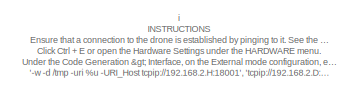
[diagram: root canvas - part 1/3, top left region]
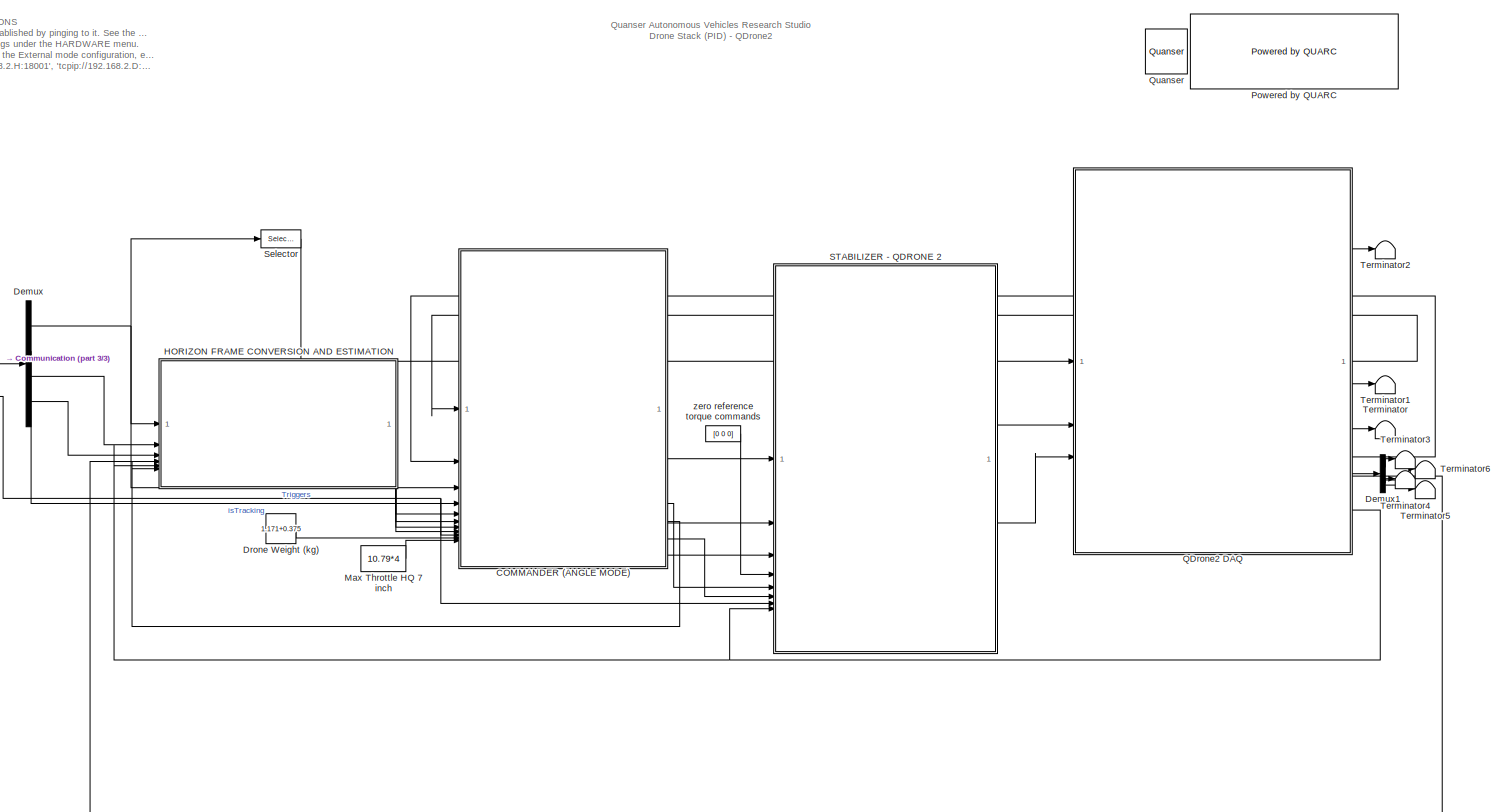
[diagram: root canvas - part 2/3, most of the canvas]
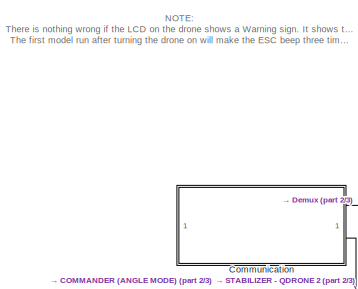
[diagram: root canvas - part 3/3, middle left region]
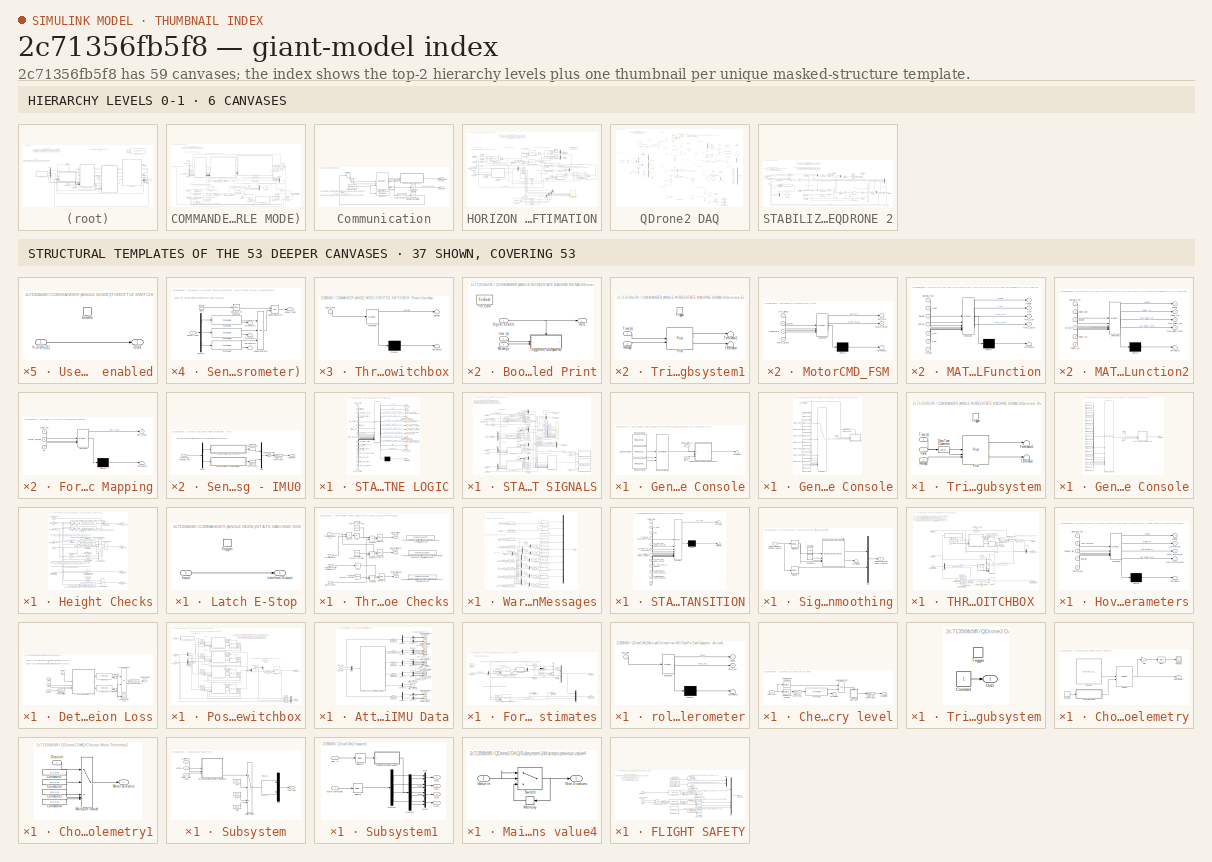
[diagram: thumbnail index - top-2 hierarchy levels (6 canvases) + 37 structural-template representatives of the remaining 53 canvases]
MODEL slx_2c71356fb5f8
KIND model
CONFIG AbsTol = auto
CONFIG EnableMultiTasking = on
CONFIG FixedStep = 1/1000
CONFIG InitFcn = Motor_Mapping_7_Inch
CONFIG MaxStep = auto
CONFIG MinStep = auto
CONFIG RelTol = 1e-3
CONFIG SampleTimeConstraint = Unconstrained
CONFIG SolverName = ode1
CONFIG StartTime = 0.0
CONFIG StopTime = inf
WORKSPACE source: mxarray member
WORKSPACE target_system = 1
BLOCK [SubSystem] COMMANDER (ANGLE MODE)
BLOCK [Product] COMMANDER (ANGLE MODE)/ 
  Multiplication = Matrix(*)
BLOCK [Outport] COMMANDER (ANGLE MODE)/Arm (0,1)
  Port = 5
  VectorParamsAs1DForOutWhenUnconnected = off
BLOCK [Outport] COMMANDER (ANGLE MODE)/Attitude Commands (rad, rad//s) [3]
  Port = 4
  VectorParamsAs1DForOutWhenUnconnected = off
BLOCK [Inport] COMMANDER (ANGLE MODE)/Communication Issue (0,1)
  Port = 9
BLOCK [Constant] COMMANDER (ANGLE MODE)/Constant2
  Value = [0 0 1 0; 0 -1 0 0; 1 0 0 0; 0 0 0 1]
BLOCK [DataTypeConversion] COMMANDER (ANGLE MODE)/Data Type Conversion1
  RndMeth = Floor
  SaturateOnIntegerOverflow = off
BLOCK [DataTypeConversion] COMMANDER (ANGLE MODE)/Data Type Conversion2
  RndMeth = Floor
  SaturateOnIntegerOverflow = off
BLOCK [DataTypeConversion] COMMANDER (ANGLE MODE)/Data Type Conversion3
  RndMeth = Floor
  SaturateOnIntegerOverflow = off
BLOCK [DataTypeConversion] COMMANDER (ANGLE MODE)/Data Type Conversion4
  OutDataTypeStr = double
  RndMeth = Floor
  SaturateOnIntegerOverflow = off
BLOCK [DataTypeConversion] COMMANDER (ANGLE MODE)/Data Type Conversion5
  OutDataTypeStr = double
  RndMeth = Floor
  SaturateOnIntegerOverflow = off
BLOCK [DataTypeConversion] COMMANDER (ANGLE MODE)/Data Type Conversion6
  OutDataTypeStr = double
  RndMeth = Floor
  SaturateOnIntegerOverflow = off
BLOCK [Inport] COMMANDER (ANGLE MODE)/Drone Weight (kg)
  Port = 10
BLOCK [Outport] COMMANDER (ANGLE MODE)/FSM State (1-9)
  Port = 6
  VectorParamsAs1DForOutWhenUnconnected = off
BLOCK [Gain] COMMANDER (ANGLE MODE)/Gain
  Gain = [0.9 0.9 0.9 0.5]
BLOCK [Gain] COMMANDER (ANGLE MODE)/Gain1
  Gain = [ 0.01 0.01 1 0]
BLOCK [Gain] COMMANDER (ANGLE MODE)/Gain2
  Gain = [0.4 0.4 1 0.1]
BLOCK [Scope] COMMANDER (ANGLE MODE)/Generalized commands 
  Floating = off
  NumInputPorts = 1
  ScopeSpecificationString = Simulink.scopes.TimeScopeBlockCfg('CurrentConfiguration', extmgr.ConfigurationSet(extmgr.Configuration('Core','General UI',true),extmgr.Configuration('Core','Source UI',true),extmgr.Configuration('Sources','WiredSimulink',true,'DataLoggingVariableName','ScopeData1'),extmgr.Configuration('Visuals','Time Domain',true,'SerializedDisplays',{struct('MinYLimReal','-5.66904','MaxYLimReal','39.51878','YLa...<+1814ch>
BLOCK [Inport] COMMANDER (ANGLE MODE)/HF Pose Error Estimate (m, rad) [4]
  NameLocation = left
  Port = 6
BLOCK [Inport] COMMANDER (ANGLE MODE)/HF Pose Rate Estimate (m, rad) [4]
  NameLocation = left
  Port = 5
BLOCK [Inport] COMMANDER (ANGLE MODE)/Heigh Signals Check (m) [4]
  Port = 7
BLOCK [Inport] COMMANDER (ANGLE MODE)/IF Pose Info (m,rad)
  Port = 8
BLOCK [Integrator] COMMANDER (ANGLE MODE)/Integrator1
  ExternalReset = rising
  LimitOutput = on
  LowerSaturationLimit = [-0.26 -0.33 -15 -0.05].*0.75
  UpperSaturationLimit = [0.26 0.33 15 0.05].*0.75
BLOCK [Gain] COMMANDER (ANGLE MODE)/Kd (rad // m//s, rad // m//s, N // m//s, rad//s // rad//s)
  Gain = [pi/2 pi/2 28 4]
BLOCK [Gain] COMMANDER (ANGLE MODE)/Ki (rad s // m, rad s // m, N s//m, rad//s // rad//s)
  Gain = [1 1 6 0]
BLOCK [Gain] COMMANDER (ANGLE MODE)/Kp (rad // m, rad // m, N // m, rad//s // rad)
  Gain = [pi/6 pi/6 35.0 15]
BLOCK [Logic] COMMANDER (ANGLE MODE)/Logical Operator1
  AllPortsSameDT = off
  OutDataTypeStr = boolean
BLOCK [Logic] COMMANDER (ANGLE MODE)/Logical Operator2
  AllPortsSameDT = off
  Operator = NOT
  OutDataTypeStr = boolean
BLOCK [Inport] COMMANDER (ANGLE MODE)/Low Battery (0,1)
BLOCK [Inport] COMMANDER (ANGLE MODE)/Max Throttle (N)
  Port = 11
BLOCK [Memory] COMMANDER (ANGLE MODE)/Memory
  InitialCondition = 1
  NameLocation = top
BLOCK [Outport] COMMANDER (ANGLE MODE)/Mode
  VectorParamsAs1DForOutWhenUnconnected = off
BLOCK [Mux] COMMANDER (ANGLE MODE)/Mux
  DisplayOption = bar
BLOCK [Mux] COMMANDER (ANGLE MODE)/Mux8
  DisplayOption = bar
  Inputs = [17 1 1 1]
BLOCK [Product] COMMANDER (ANGLE MODE)/Product
BLOCK [Reference] COMMANDER (ANGLE MODE)/Reset when starting to takeoff  REF=simulink/Logic and Bit
Operations/Compare
To Constant
  SourceBlock = simulink/Logic and Bit\nOperations/Compare\nTo Constant
  SourceType = Compare To Constant
BLOCK [SubSystem] COMMANDER (ANGLE MODE)/STATE MACHINE LOGIC
  ErrorFcn = Stateflow.Translate.translate
  NameLocation = top
  PermitHierarchicalResolution = ExplicitOnly
  SFBlockType = MATLAB Function
  TreatAsAtomicUnit = on
BLOCK [Demux] COMMANDER (ANGLE MODE)/STATE MACHINE LOGIC/ Demux 
  Outputs = 1
BLOCK [S-Function] COMMANDER (ANGLE MODE)/STATE MACHINE LOGIC/ SFunction 
  EnableBusSupport = on
  FunctionName = sf_sfun
  PortCounts = [17 13]
  SFcnIsStateOwnerBlock = off
  SFunctionDeploymentMode = off
  Tag = Stateflow S-Function 11
BLOCK [Terminator] COMMANDER (ANGLE MODE)/STATE MACHINE LOGIC/ Terminator 
BLOCK [Inport] COMMANDER (ANGLE MODE)/STATE MACHINE LOGIC/Communication_Issue
  Port = 4
BLOCK [Outport] COMMANDER (ANGLE MODE)/STATE MACHINE LOGIC/E_Abort
  VectorParamsAs1DForOutWhenUnconnected = off
BLOCK [Inport] COMMANDER (ANGLE MODE)/STATE MACHINE LOGIC/E_abort
  Port = 8
BLOCK [Outport] COMMANDER (ANGLE MODE)/STATE MACHINE LOGIC/Error
  Port = 11
  VectorParamsAs1DForOutWhenUnconnected = off
BLOCK [Inport] COMMANDER (ANGLE MODE)/STATE MACHINE LOGIC/Tracking_Issue
  Port = 3
BLOCK [Inport] COMMANDER (ANGLE MODE)/STATE MACHINE LOGIC/close_to_ground
  Port = 16
BLOCK [Inport] COMMANDER (ANGLE MODE)/STATE MACHINE LOGIC/ctrl_throttle_close_to_zero
  Port = 12
BLOCK [Inport] COMMANDER (ANGLE MODE)/STATE MACHINE LOGIC/current_state
BLOCK [Inport] COMMANDER (ANGLE MODE)/STATE MACHINE LOGIC/flying_too_high
  Port = 15
BLOCK [Inport] COMMANDER (ANGLE MODE)/STATE MACHINE LOGIC/flying_too_low
  Port = 14
BLOCK [Inport] COMMANDER (ANGLE MODE)/STATE MACHINE LOGIC/initializing
  Port = 2
BLOCK [Outport] COMMANDER (ANGLE MODE)/STATE MACHINE LOGIC/isArm
  Port = 2
  VectorParamsAs1DForOutWhenUnconnected = off
BLOCK [Inport] COMMANDER (ANGLE MODE)/STATE MACHINE LOGIC/joystick_issue
  Port = 9
BLOCK [Inport] COMMANDER (ANGLE MODE)/STATE MACHINE LOGIC/low_battery
  Port = 5
BLOCK [Inport] COMMANDER (ANGLE MODE)/STATE MACHINE LOGIC/net_throttle_at_trim
  Port = 10
BLOCK [Inport] COMMANDER (ANGLE MODE)/STATE MACHINE LOGIC/net_throttle_close_to_zero
  Port = 11
BLOCK [Outport] COMMANDER (ANGLE MODE)/STATE MACHINE LOGIC/pt_ARM_to_TAKEOFF_THROTTLE
  Port = 3
  VectorParamsAs1DForOutWhenUnconnected = off
BLOCK [Outport] COMMANDER (ANGLE MODE)/STATE MACHINE LOGIC/pt_AUTOLAND_TO_DISABLE
  Port = 8
  VectorParamsAs1DForOutWhenUnconnected = off
BLOCK [Outport] COMMANDER (ANGLE MODE)/STATE MACHINE LOGIC/pt_EMERGENCY_ABORT_TO_DISABLE
  Port = 10
  VectorParamsAs1DForOutWhenUnconnected = off
BLOCK [Outport] COMMANDER (ANGLE MODE)/STATE MACHINE LOGIC/pt_EMERGENCY_STOP_TO_DISABLE
  Port = 9
  VectorParamsAs1DForOutWhenUnconnected = off
BLOCK [Outport] COMMANDER (ANGLE MODE)/STATE MACHINE LOGIC/pt_FLIGHT_TO_AUTOLAND
  Port = 5
  VectorParamsAs1DForOutWhenUnconnected = off
BLOCK [Outport] COMMANDER (ANGLE MODE)/STATE MACHINE LOGIC/pt_TAKEOFF_THROTTLE_TO_TAKEOFF_HEIGHT
  Port = 6
  VectorParamsAs1DForOutWhenUnconnected = off
BLOCK [Outport] COMMANDER (ANGLE MODE)/STATE MACHINE LOGIC/pt_TAKE_OFF_HEIGHT_TO_AUTOLAND
  Port = 4
  VectorParamsAs1DForOutWhenUnconnected = off
BLOCK [Outport] COMMANDER (ANGLE MODE)/STATE MACHINE LOGIC/pt_TAKE_OFF_HEIGHT_TO_FLIGHT
  Port = 7
  VectorParamsAs1DForOutWhenUnconnected = off
BLOCK [Inport] COMMANDER (ANGLE MODE)/STATE MACHINE LOGIC/sensor_failed
  Port = 17
BLOCK [Outport] COMMANDER (ANGLE MODE)/STATE MACHINE LOGIC/stop_model
  Port = 12
  VectorParamsAs1DForOutWhenUnconnected = off
BLOCK [Inport] COMMANDER (ANGLE MODE)/STATE MACHINE LOGIC/take_off_successful
  Port = 13
BLOCK [Inport] COMMANDER (ANGLE MODE)/STATE MACHINE LOGIC/trigger_1
  Port = 6
BLOCK [Inport] COMMANDER (ANGLE MODE)/STATE MACHINE LOGIC/trigger_2
  Port = 7
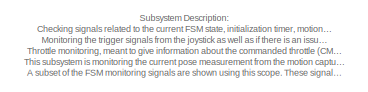
[diagram: COMMANDER (ANGLE MODE)/STATE MACHINE SIGNALS - part 1/3, top left region]
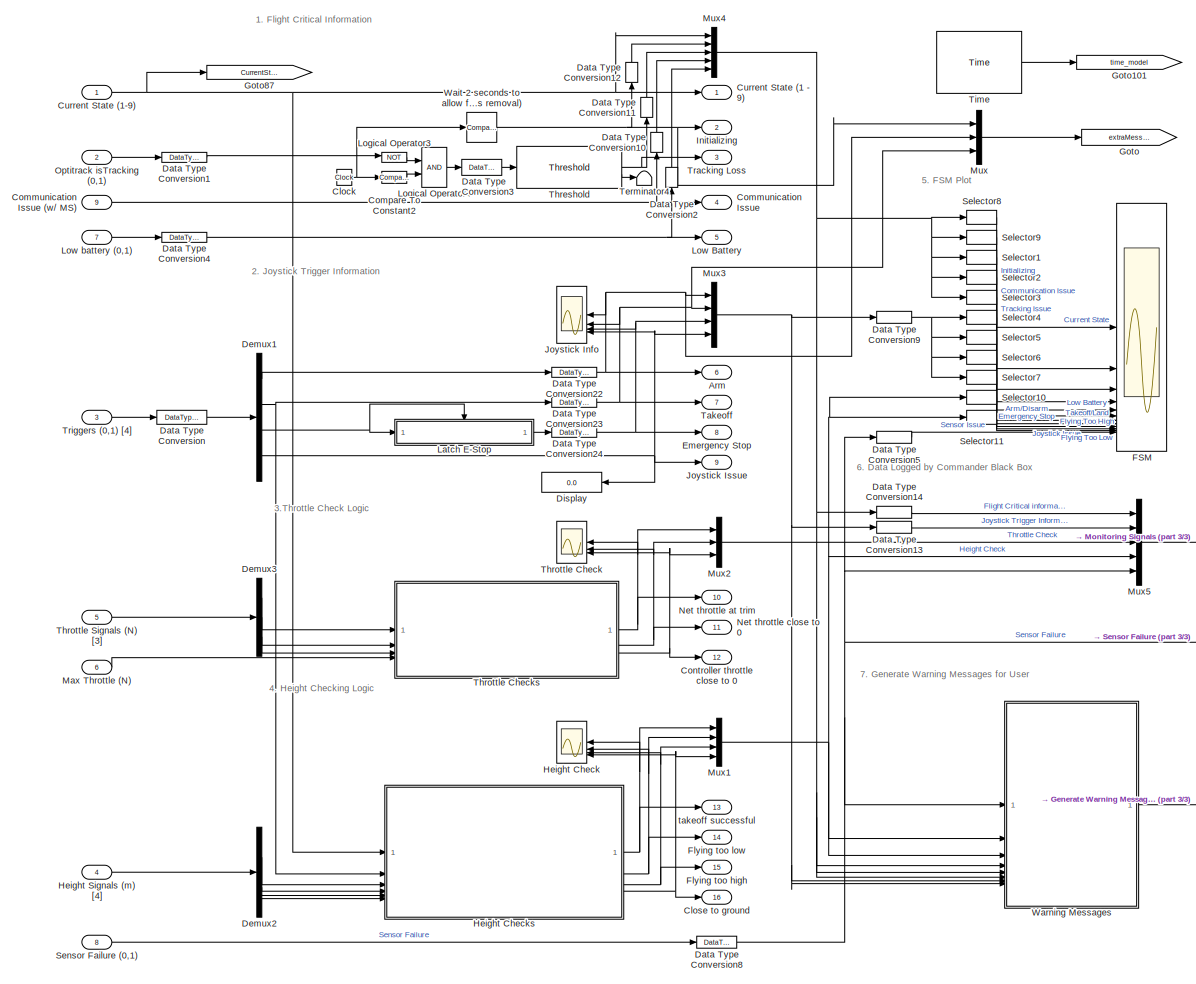
[diagram: COMMANDER (ANGLE MODE)/STATE MACHINE SIGNALS - part 2/3, center side, full height]
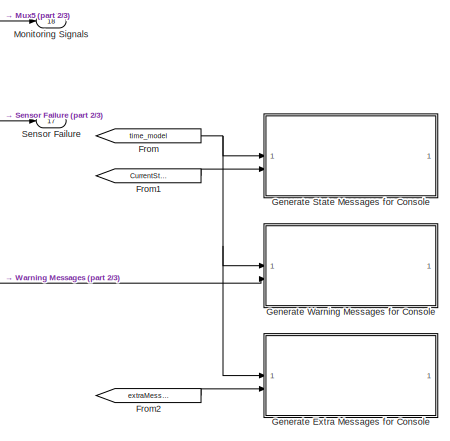
[diagram: COMMANDER (ANGLE MODE)/STATE MACHINE SIGNALS - part 3/3, bottom right region]
BLOCK [SubSystem] COMMANDER (ANGLE MODE)/STATE MACHINE SIGNALS
  NameLocation = top
BLOCK [Outport] COMMANDER (ANGLE MODE)/STATE MACHINE SIGNALS/  Sensor Failure
  Port = 17
  VectorParamsAs1DForOutWhenUnconnected = off
BLOCK [Outport] COMMANDER (ANGLE MODE)/STATE MACHINE SIGNALS/Arm
  Port = 6
  VectorParamsAs1DForOutWhenUnconnected = off
BLOCK [Clock] COMMANDER (ANGLE MODE)/STATE MACHINE SIGNALS/Clock
BLOCK [Outport] COMMANDER (ANGLE MODE)/STATE MACHINE SIGNALS/Close to ground
  Port = 16
  VectorParamsAs1DForOutWhenUnconnected = off
BLOCK [Outport] COMMANDER (ANGLE MODE)/STATE MACHINE SIGNALS/Communication Issue
  Port = 4
  VectorParamsAs1DForOutWhenUnconnected = off
BLOCK [Inport] COMMANDER (ANGLE MODE)/STATE MACHINE SIGNALS/Communication Issue (w// MS)
  Port = 9
BLOCK [Reference] COMMANDER (ANGLE MODE)/STATE MACHINE SIGNALS/Compare To Constant2  REF=simulink/Logic and Bit
Operations/Compare
To Constant
  SourceBlock = simulink/Logic and Bit\nOperations/Compare\nTo Constant
  SourceType = Compare To Constant
BLOCK [Outport] COMMANDER (ANGLE MODE)/STATE MACHINE SIGNALS/Controller throttle close to 0
  Port = 12
  VectorParamsAs1DForOutWhenUnconnected = off
BLOCK [Outport] COMMANDER (ANGLE MODE)/STATE MACHINE SIGNALS/Current State (1 - 9)  
  VectorParamsAs1DForOutWhenUnconnected = off
BLOCK [Inport] COMMANDER (ANGLE MODE)/STATE MACHINE SIGNALS/Current State (1-9)
BLOCK [DataTypeConversion] COMMANDER (ANGLE MODE)/STATE MACHINE SIGNALS/Data Type Conversion
  RndMeth = Floor
  SaturateOnIntegerOverflow = off
BLOCK [DataTypeConversion] COMMANDER (ANGLE MODE)/STATE MACHINE SIGNALS/Data Type Conversion1
  RndMeth = Floor
  SaturateOnIntegerOverflow = off
BLOCK [DataTypeConversion] COMMANDER (ANGLE MODE)/STATE MACHINE SIGNALS/Data Type Conversion10
  NameLocation = right
  RndMeth = Floor
  SaturateOnIntegerOverflow = off
BLOCK [DataTypeConversion] COMMANDER (ANGLE MODE)/STATE MACHINE SIGNALS/Data Type Conversion11
  NameLocation = right
  RndMeth = Floor
  SaturateOnIntegerOverflow = off
BLOCK [DataTypeConversion] COMMANDER (ANGLE MODE)/STATE MACHINE SIGNALS/Data Type Conversion12
  NameLocation = right
  OutDataTypeStr = double
  RndMeth = Floor
  SaturateOnIntegerOverflow = off
BLOCK [DataTypeConversion] COMMANDER (ANGLE MODE)/STATE MACHINE SIGNALS/Data Type Conversion13
  RndMeth = Floor
  SaturateOnIntegerOverflow = off
BLOCK [DataTypeConversion] COMMANDER (ANGLE MODE)/STATE MACHINE SIGNALS/Data Type Conversion14
  RndMeth = Floor
  SaturateOnIntegerOverflow = off
BLOCK [DataTypeConversion] COMMANDER (ANGLE MODE)/STATE MACHINE SIGNALS/Data Type Conversion2
  NameLocation = right
  RndMeth = Floor
  SaturateOnIntegerOverflow = off
BLOCK [DataTypeConversion] COMMANDER (ANGLE MODE)/STATE MACHINE SIGNALS/Data Type Conversion22
  OutDataTypeStr = boolean
  RndMeth = Floor
  SaturateOnIntegerOverflow = off
BLOCK [DataTypeConversion] COMMANDER (ANGLE MODE)/STATE MACHINE SIGNALS/Data Type Conversion23
  OutDataTypeStr = boolean
  RndMeth = Floor
  SaturateOnIntegerOverflow = off
BLOCK [DataTypeConversion] COMMANDER (ANGLE MODE)/STATE MACHINE SIGNALS/Data Type Conversion24
  OutDataTypeStr = boolean
  RndMeth = Floor
  SaturateOnIntegerOverflow = off
BLOCK [DataTypeConversion] COMMANDER (ANGLE MODE)/STATE MACHINE SIGNALS/Data Type Conversion3
  RndMeth = Floor
  SaturateOnIntegerOverflow = off
BLOCK [DataTypeConversion] COMMANDER (ANGLE MODE)/STATE MACHINE SIGNALS/Data Type Conversion4
  OutDataTypeStr = boolean
  RndMeth = Floor
  SaturateOnIntegerOverflow = off
BLOCK [DataTypeConversion] COMMANDER (ANGLE MODE)/STATE MACHINE SIGNALS/Data Type Conversion5
  RndMeth = Floor
  SaturateOnIntegerOverflow = off
BLOCK [DataTypeConversion] COMMANDER (ANGLE MODE)/STATE MACHINE SIGNALS/Data Type Conversion8
  RndMeth = Floor
  SaturateOnIntegerOverflow = off
BLOCK [DataTypeConversion] COMMANDER (ANGLE MODE)/STATE MACHINE SIGNALS/Data Type Conversion9
  RndMeth = Floor
  SaturateOnIntegerOverflow = off
BLOCK [Demux] COMMANDER (ANGLE MODE)/STATE MACHINE SIGNALS/Demux1
  Outputs = [1 1 1 1]
BLOCK [Demux] COMMANDER (ANGLE MODE)/STATE MACHINE SIGNALS/Demux2
BLOCK [Demux] COMMANDER (ANGLE MODE)/STATE MACHINE SIGNALS/Demux3
  Outputs = 3
BLOCK [Display] COMMANDER (ANGLE MODE)/STATE MACHINE SIGNALS/Display
  Decimation = 1
BLOCK [Outport] COMMANDER (ANGLE MODE)/STATE MACHINE SIGNALS/Emergency Stop
  Port = 8
  VectorParamsAs1DForOutWhenUnconnected = off
BLOCK [Scope] COMMANDER (ANGLE MODE)/STATE MACHINE SIGNALS/FSM
  Floating = off
  NumInputPorts = 12
  ScopeSpecificationString = Simulink.scopes.TimeScopeBlockCfg('CurrentConfiguration', extmgr.ConfigurationSet(extmgr.Configuration('Core','General UI',true),extmgr.Configuration('Core','Source UI',true),extmgr.Configuration('Sources','WiredSimulink',true,'DataLoggingVariableName','ScopeData1'),extmgr.Configuration('Visuals','Time Domain',true,'SerializedDisplays',{struct('MinYLimReal','0.00000','MaxYLimReal','10.00000','YLab...<+10691ch>
BLOCK [Outport] COMMANDER (ANGLE MODE)/STATE MACHINE SIGNALS/Flying too high
  Port = 15
  VectorParamsAs1DForOutWhenUnconnected = off
BLOCK [Outport] COMMANDER (ANGLE MODE)/STATE MACHINE SIGNALS/Flying too low
  Port = 14
  VectorParamsAs1DForOutWhenUnconnected = off
BLOCK [From] COMMANDER (ANGLE MODE)/STATE MACHINE SIGNALS/From
  GotoTag = time_model
BLOCK [From] COMMANDER (ANGLE MODE)/STATE MACHINE SIGNALS/From1
  GotoTag = CurrentState
BLOCK [From] COMMANDER (ANGLE MODE)/STATE MACHINE SIGNALS/From2
  GotoTag = extraMessages
BLOCK [SubSystem] COMMANDER (ANGLE MODE)/STATE MACHINE SIGNALS/Generate Extra Messages for Console
BLOCK [SubSystem] COMMANDER (ANGLE MODE)/STATE MACHINE SIGNALS/Generate Extra Messages for Console/Boolean Edge-Based Triggered Print
  TreatAsAtomicUnit = on
BLOCK [ForEach] COMMANDER (ANGLE MODE)/STATE MACHINE SIGNALS/Generate Extra Messages for Console/Boolean Edge-Based Triggered Print/For Each
  DisableCoverage = on
BLOCK [Inport] COMMANDER (ANGLE MODE)/STATE MACHINE SIGNALS/Generate Extra Messages for Console/Boolean Edge-Based Triggered Print/Message
  NameLocation = left
  Partition = on
  PartitionDimension = 2
  PartitionOffset = 0
  PartitionWidth = 1
  Port = 2
BLOCK [Outport] COMMANDER (ANGLE MODE)/STATE MACHINE SIGNALS/Generate Extra Messages for Console/Boolean Edge-Based Triggered Print/Out1
  ConcatenationDimension = 1
BLOCK [Inport] COMMANDER (ANGLE MODE)/STATE MACHINE SIGNALS/Generate Extra Messages for Console/Boolean Edge-Based Triggered Print/Signal Enable
  NameLocation = left
  Partition = on
  PartitionDimension = 1
  PartitionOffset = 0
  PartitionWidth = 1
BLOCK [SubSystem] COMMANDER (ANGLE MODE)/STATE MACHINE SIGNALS/Generate Extra Messages for Console/Boolean Edge-Based Triggered Print/Triggered Subsystem1
  TreatAsAtomicUnit = on
BLOCK [Inport] COMMANDER (ANGLE MODE)/STATE MACHINE SIGNALS/Generate Extra Messages for Console/Boolean Edge-Based Triggered Print/Triggered Subsystem1/Message
  NameLocation = left
  Port = 2
BLOCK [Reference] COMMANDER (ANGLE MODE)/STATE MACHINE SIGNALS/Generate Extra Messages for Console/Boolean Edge-Based Triggered Print/Triggered Subsystem1/Print  REF=quarc_library/User Interface/Standard I//O/Print
  SourceBlock = quarc_library/User Interface/Standard I//O/Print
  SourceProductName = QUARC Targets
  SourceType = Print
BLOCK [Terminator] COMMANDER (ANGLE MODE)/STATE MACHINE SIGNALS/Generate Extra Messages for Console/Boolean Edge-Based Triggered Print/Triggered Subsystem1/Terminator
BLOCK [Terminator] COMMANDER (ANGLE MODE)/STATE MACHINE SIGNALS/Generate Extra Messages for Console/Boolean Edge-Based Triggered Print/Triggered Subsystem1/Terminator1
BLOCK [Inport] COMMANDER (ANGLE MODE)/STATE MACHINE SIGNALS/Generate Extra Messages for Console/Boolean Edge-Based Triggered Print/Triggered Subsystem1/Time (s)
  NameLocation = left
BLOCK [TriggerPort] COMMANDER (ANGLE MODE)/STATE MACHINE SIGNALS/Generate Extra Messages for Console/Boolean Edge-Based Triggered Print/Triggered Subsystem1/Trigger
  StatesWhenEnabling = held
  TriggerType = falling
  VariantControl = (inherit)
BLOCK [Inport] COMMANDER (ANGLE MODE)/STATE MACHINE SIGNALS/Generate Extra Messages for Console/Boolean Edge-Based Triggered Print/time (s)
  NameLocation = left
  Port = 3
BLOCK [Concatenate] COMMANDER (ANGLE MODE)/STATE MACHINE SIGNALS/Generate Extra Messages for Console/Matrix Concatenate
  ConcatenateDimension = 2
  Mode = Multidimensional array
  NumInputs = 3
BLOCK [Inport] COMMANDER (ANGLE MODE)/STATE MACHINE SIGNALS/Generate Extra Messages for Console/Signal Triggers
  NameLocation = left
  Port = 2
BLOCK [Reference] COMMANDER (ANGLE MODE)/STATE MACHINE SIGNALS/Generate Extra Messages for Console/String Constant12  REF=quarc_library/Strings/String Constant
  AttributesFormatString = "DRONE DISARMED"
  NameLocation = left
  SourceBlock = quarc_library/Strings/String Constant
  SourceProductName = QUARC Targets
  SourceType = String Constant
BLOCK [Reference] COMMANDER (ANGLE MODE)/STATE MACHINE SIGNALS/Generate Extra Messages for Console/String Constant13  REF=quarc_library/Strings/String Constant
  AttributesFormatString = "DRONE LANDING"
  NameLocation = left
  SourceBlock = quarc_library/Strings/String Constant
  SourceProductName = QUARC Targets
  SourceType = String Constant
BLOCK [Reference] COMMANDER (ANGLE MODE)/STATE MACHINE SIGNALS/Generate Extra Messages for Console/String Constant16  REF=quarc_library/Strings/String Constant
  AttributesFormatString = "INITIALIZATION FINISHED"
  NameLocation = left
  SourceBlock = quarc_library/Strings/String Constant
  SourceProductName = QUARC Targets
  SourceType = String Constant
BLOCK [Terminator] COMMANDER (ANGLE MODE)/STATE MACHINE SIGNALS/Generate Extra Messages for Console/Terminator
BLOCK [Inport] COMMANDER (ANGLE MODE)/STATE MACHINE SIGNALS/Generate Extra Messages for Console/time (s)
  NameLocation = left
BLOCK [SubSystem] COMMANDER (ANGLE MODE)/STATE MACHINE SIGNALS/Generate State Messages for Console
BLOCK [Reference] COMMANDER (ANGLE MODE)/STATE MACHINE SIGNALS/Generate State Messages for Console/Detect Change  REF=simulink/Logic and Bit
Operations/Detect
Change
  SourceBlock = simulink/Logic and Bit\nOperations/Detect\nChange
  SourceType = Detect Change
BLOCK [Inport] COMMANDER (ANGLE MODE)/STATE MACHINE SIGNALS/Generate State Messages for Console/DroneState [1-9]
  NameLocation = left
  Port = 2
BLOCK [MultiPortSwitch] COMMANDER (ANGLE MODE)/STATE MACHINE SIGNALS/Generate State Messages for Console/Multiport Switch
  InputSameDT = off
  Inputs = 9
  SaturateOnIntegerOverflow = off
BLOCK [Reference] COMMANDER (ANGLE MODE)/STATE MACHINE SIGNALS/Generate State Messages for Console/String Constant1  REF=quarc_library/Strings/String Constant
  AttributesFormatString = "DRONE ARMED"
  NameLocation = left
  SourceBlock = quarc_library/Strings/String Constant
  SourceProductName = QUARC Targets
  SourceType = String Constant
BLOCK [Reference] COMMANDER (ANGLE MODE)/STATE MACHINE SIGNALS/Generate State Messages for Console/String Constant2  REF=quarc_library/Strings/String Constant
  AttributesFormatString = "DRONE TAKEOFF THROTTLE"
  NameLocation = left
  SourceBlock = quarc_library/Strings/String Constant
  SourceProductName = QUARC Targets
  SourceType = String Constant
BLOCK [Reference] COMMANDER (ANGLE MODE)/STATE MACHINE SIGNALS/Generate State Messages for Console/String Constant3  REF=quarc_library/Strings/String Constant
  AttributesFormatString = "DRONE TAKEOFF HEIGHT STATE"
  NameLocation = left
  SourceBlock = quarc_library/Strings/String Constant
  SourceProductName = QUARC Targets
  SourceType = String Constant
BLOCK [Reference] COMMANDER (ANGLE MODE)/STATE MACHINE SIGNALS/Generate State Messages for Console/String Constant4  REF=quarc_library/Strings/String Constant
  AttributesFormatString = "ERROR - DRONE EMERGENCY STOP"
  NameLocation = left
  SourceBlock = quarc_library/Strings/String Constant
  SourceProductName = QUARC Targets
  SourceType = String Constant
BLOCK [Reference] COMMANDER (ANGLE MODE)/STATE MACHINE SIGNALS/Generate State Messages for Console/String Constant5  REF=quarc_library/Strings/String Constant
  AttributesFormatString = "DRONE IDLE - WAITING TO BE ARMED"
  NameLocation = left
  SourceBlock = quarc_library/Strings/String Constant
  SourceProductName = QUARC Targets
  SourceType = String Constant
BLOCK [Reference] COMMANDER (ANGLE MODE)/STATE MACHINE SIGNALS/Generate State Messages for Console/String Constant6  REF=quarc_library/Strings/String Constant
  AttributesFormatString = "DRONE IS IN FLIGHT STATE"
  NameLocation = left
  SourceBlock = quarc_library/Strings/String Constant
  SourceProductName = QUARC Targets
  SourceType = String Constant
BLOCK [Reference] COMMANDER (ANGLE MODE)/STATE MACHINE SIGNALS/Generate State Messages for Console/String Constant7  REF=quarc_library/Strings/String Constant
  AttributesFormatString = "EMERGENCY STOP WAS PRESSED ON JOYSTICK"
  NameLocation = left
  SourceBlock = quarc_library/Strings/String Constant
  SourceProductName = QUARC Targets
  SourceType = String Constant
BLOCK [Reference] COMMANDER (ANGLE MODE)/STATE MACHINE SIGNALS/Generate State Messages for Console/String Constant8  REF=quarc_library/Strings/String Constant
  AttributesFormatString = "FLIGHT FINISHED DRONE IS DISABLED"
  NameLocation = left
  SourceBlock = quarc_library/Strings/String Constant
  SourceProductName = QUARC Targets
  SourceType = String Constant
BLOCK [Reference] COMMANDER (ANGLE MODE)/STATE MACHINE SIGNALS/Generate State Messages for Console/String Constant9  REF=quarc_library/Strings/String Constant
  AttributesFormatString = "DRONE IS AUTO LANDING"
  NameLocation = left
  SourceBlock = quarc_library/Strings/String Constant
  SourceProductName = QUARC Targets
  SourceType = String Constant
BLOCK [SubSystem] COMMANDER (ANGLE MODE)/STATE MACHINE SIGNALS/Generate State Messages for Console/Triggered Subsystem
  TreatAsAtomicUnit = on
BLOCK [DataTypeConversion] COMMANDER (ANGLE MODE)/STATE MACHINE SIGNALS/Generate State Messages for Console/Triggered Subsystem/Data Type Conversion
  OutDataTypeStr = uint8
  RndMeth = Floor
  SaturateOnIntegerOverflow = off
BLOCK [Inport] COMMANDER (ANGLE MODE)/STATE MACHINE SIGNALS/Generate State Messages for Console/Triggered Subsystem/Message
  NameLocation = left
  Port = 3
BLOCK [Reference] COMMANDER (ANGLE MODE)/STATE MACHINE SIGNALS/Generate State Messages for Console/Triggered Subsystem/Print  REF=quarc_library/User Interface/Standard I//O/Print
  SourceBlock = quarc_library/User Interface/Standard I//O/Print
  SourceProductName = QUARC Targets
  SourceType = Print
BLOCK [Terminator] COMMANDER (ANGLE MODE)/STATE MACHINE SIGNALS/Generate State Messages for Console/Triggered Subsystem/Terminator
BLOCK [Terminator] COMMANDER (ANGLE MODE)/STATE MACHINE SIGNALS/Generate State Messages for Console/Triggered Subsystem/Terminator1
BLOCK [Inport] COMMANDER (ANGLE MODE)/STATE MACHINE SIGNALS/Generate State Messages for Console/Triggered Subsystem/Time (s)
  NameLocation = left
  Port = 2
BLOCK [TriggerPort] COMMANDER (ANGLE MODE)/STATE MACHINE SIGNALS/Generate State Messages for Console/Triggered Subsystem/Trigger
  StatesWhenEnabling = held
  VariantControl = (inherit)
BLOCK [Inport] COMMANDER (ANGLE MODE)/STATE MACHINE SIGNALS/Generate State Messages for Console/Triggered Subsystem/Value
  NameLocation = left
BLOCK [Inport] COMMANDER (ANGLE MODE)/STATE MACHINE SIGNALS/Generate State Messages for Console/time (s)
  NameLocation = left
BLOCK [SubSystem] COMMANDER (ANGLE MODE)/STATE MACHINE SIGNALS/Generate Warning Messages for Console
BLOCK [SubSystem] COMMANDER (ANGLE MODE)/STATE MACHINE SIGNALS/Generate Warning Messages for Console/Boolean Value-Based Triggered Print
  TreatAsAtomicUnit = on
BLOCK [ForEach] COMMANDER (ANGLE MODE)/STATE MACHINE SIGNALS/Generate Warning Messages for Console/Boolean Value-Based Triggered Print/For Each
  DisableCoverage = on
BLOCK [Inport] COMMANDER (ANGLE MODE)/STATE MACHINE SIGNALS/Generate Warning Messages for Console/Boolean Value-Based Triggered Print/Message
  NameLocation = left
  Partition = on
  PartitionDimension = 2
  PartitionOffset = 0
  PartitionWidth = 1
  Port = 2
BLOCK [Outport] COMMANDER (ANGLE MODE)/STATE MACHINE SIGNALS/Generate Warning Messages for Console/Boolean Value-Based Triggered Print/Out1
  ConcatenationDimension = 1
BLOCK [Inport] COMMANDER (ANGLE MODE)/STATE MACHINE SIGNALS/Generate Warning Messages for Console/Boolean Value-Based Triggered Print/Signal Enable
  NameLocation = left
  Partition = on
  PartitionDimension = 1
  PartitionOffset = 0
  PartitionWidth = 1
BLOCK [SubSystem] COMMANDER (ANGLE MODE)/STATE MACHINE SIGNALS/Generate Warning Messages for Console/Boolean Value-Based Triggered Print/Triggered Subsystem
  TreatAsAtomicUnit = on
BLOCK [Inport] COMMANDER (ANGLE MODE)/STATE MACHINE SIGNALS/Generate Warning Messages for Console/Boolean Value-Based Triggered Print/Triggered Subsystem/Message
  NameLocation = left
  Port = 2
BLOCK [Reference] COMMANDER (ANGLE MODE)/STATE MACHINE SIGNALS/Generate Warning Messages for Console/Boolean Value-Based Triggered Print/Triggered Subsystem/Print  REF=quarc_library/User Interface/Standard I//O/Print
  SourceBlock = quarc_library/User Interface/Standard I//O/Print
  SourceProductName = QUARC Targets
  SourceType = Print
BLOCK [Terminator] COMMANDER (ANGLE MODE)/STATE MACHINE SIGNALS/Generate Warning Messages for Console/Boolean Value-Based Triggered Print/Triggered Subsystem/Terminator
BLOCK [Terminator] COMMANDER (ANGLE MODE)/STATE MACHINE SIGNALS/Generate Warning Messages for Console/Boolean Value-Based Triggered Print/Triggered Subsystem/Terminator1
BLOCK [Inport] COMMANDER (ANGLE MODE)/STATE MACHINE SIGNALS/Generate Warning Messages for Console/Boolean Value-Based Triggered Print/Triggered Subsystem/Time (s)
  NameLocation = left
BLOCK [TriggerPort] COMMANDER (ANGLE MODE)/STATE MACHINE SIGNALS/Generate Warning Messages for Console/Boolean Value-Based Triggered Print/Triggered Subsystem/Trigger
  StatesWhenEnabling = held
  VariantControl = (inherit)
BLOCK [Inport] COMMANDER (ANGLE MODE)/STATE MACHINE SIGNALS/Generate Warning Messages for Console/Boolean Value-Based Triggered Print/time (s)
  NameLocation = left
  Port = 3
BLOCK [Concatenate] COMMANDER (ANGLE MODE)/STATE MACHINE SIGNALS/Generate Warning Messages for Console/Matrix Concatenate
  ConcatenateDimension = 2
  Mode = Multidimensional array
  NumInputs = 9
BLOCK [Reference] COMMANDER (ANGLE MODE)/STATE MACHINE SIGNALS/Generate Warning Messages for Console/String Constant  REF=quarc_library/Strings/String Constant
  AttributesFormatString = "Commander: Low Battery"
  SourceBlock = quarc_library/Strings/String Constant
  SourceProductName = QUARC Targets
  SourceType = String Constant
BLOCK [Reference] COMMANDER (ANGLE MODE)/STATE MACHINE SIGNALS/Generate Warning Messages for Console/String Constant1  REF=quarc_library/Strings/String Constant
  AttributesFormatString = "Commander: Sensor Failure"
  SourceBlock = quarc_library/Strings/String Constant
  SourceProductName = QUARC Targets
  SourceType = String Constant
BLOCK [Reference] COMMANDER (ANGLE MODE)/STATE MACHINE SIGNALS/Generate Warning Messages for Console/String Constant2  REF=quarc_library/Strings/String Constant
  AttributesFormatString = "Commander: Host Stream Issue / Problem with communication"
  SourceBlock = quarc_library/Strings/String Constant
  SourceProductName = QUARC Targets
  SourceType = String Constant
BLOCK [Reference] COMMANDER (ANGLE MODE)/STATE MACHINE SIGNALS/Generate Warning Messages for Console/String Constant3  REF=quarc_library/Strings/String Constant
  AttributesFormatString = "Commander: Joystick Issue"
  SourceBlock = quarc_library/Strings/String Constant
  SourceProductName = QUARC Targets
  SourceType = String Constant
BLOCK [Reference] COMMANDER (ANGLE MODE)/STATE MACHINE SIGNALS/Generate Warning Messages for Console/String Constant4  REF=quarc_library/Strings/String Constant
  AttributesFormatString = "Commander: Optitrack isn't tracking"
  SourceBlock = quarc_library/Strings/String Constant
  SourceProductName = QUARC Targets
  SourceType = String Constant
BLOCK [Reference] COMMANDER (ANGLE MODE)/STATE MACHINE SIGNALS/Generate Warning Messages for Console/String Constant5  REF=quarc_library/Strings/String Constant
  AttributesFormatString = "Commander: Flying low"
  SourceBlock = quarc_library/Strings/String Constant
  SourceProductName = QUARC Targets
  SourceType = String Constant
BLOCK [Reference] COMMANDER (ANGLE MODE)/STATE MACHINE SIGNALS/Generate Warning Messages for Console/String Constant6  REF=quarc_library/Strings/String Constant
  AttributesFormatString = "Commander: Flying high"
  SourceBlock = quarc_library/Strings/String Constant
  SourceProductName = QUARC Targets
  SourceType = String Constant
BLOCK [Reference] COMMANDER (ANGLE MODE)/STATE MACHINE SIGNALS/Generate Warning Messages for Console/String Constant7  REF=quarc_library/Strings/String Constant
  AttributesFormatString = "Commander: Emergency Stop Triggered"
  SourceBlock = quarc_library/Strings/String Constant
  SourceProductName = QUARC Targets
  SourceType = String Constant
BLOCK [Reference] COMMANDER (ANGLE MODE)/STATE MACHINE SIGNALS/Generate Warning Messages for Console/String Constant8  REF=quarc_library/Strings/String Constant
  AttributesFormatString = "Commander: Takeoff triggered before armed drone"
  SourceBlock = quarc_library/Strings/String Constant
  SourceProductName = QUARC Targets
  SourceType = String Constant
BLOCK [Terminator] COMMANDER (ANGLE MODE)/STATE MACHINE SIGNALS/Generate Warning Messages for Console/Terminator
BLOCK [Inport] COMMANDER (ANGLE MODE)/STATE MACHINE SIGNALS/Generate Warning Messages for Console/errors [8]
  NameLocation = left
  Port = 2
BLOCK [Inport] COMMANDER (ANGLE MODE)/STATE MACHINE SIGNALS/Generate Warning Messages for Console/time (s)
  NameLocation = left
BLOCK [Goto] COMMANDER (ANGLE MODE)/STATE MACHINE SIGNALS/Goto
  GotoTag = extraMessages
BLOCK [Goto] COMMANDER (ANGLE MODE)/STATE MACHINE SIGNALS/Goto101
  GotoTag = time_model
  IconDisplay = Tag and signal name
BLOCK [Goto] COMMANDER (ANGLE MODE)/STATE MACHINE SIGNALS/Goto87
  GotoTag = CurrentState
BLOCK [Scope] COMMANDER (ANGLE MODE)/STATE MACHINE SIGNALS/Height Check 
  Floating = off
  NumInputPorts = 4
  ScopeSpecificationString = Simulink.scopes.TimeScopeBlockCfg('CurrentConfiguration', extmgr.ConfigurationSet(extmgr.Configuration('Core','General UI',true),extmgr.Configuration('Core','Source UI',true),extmgr.Configuration('Sources','WiredSimulink',true,'DataLoggingVariableName','ScopeData3'),extmgr.Configuration('Visuals','Time Domain',true,'SerializedDisplays',{struct('MinYLimReal','-1.00000','MaxYLimReal','1.00000','YLab...<+3457ch>
BLOCK [SubSystem] COMMANDER (ANGLE MODE)/STATE MACHINE SIGNALS/Height Checks
BLOCK [Reference] COMMANDER (ANGLE MODE)/STATE MACHINE SIGNALS/Height Checks/...the measured height is less than 0.15m...  REF=simulink/Logic and Bit
Operations/Compare
To Constant
  SourceBlock = simulink/Logic and Bit\nOperations/Compare\nTo Constant
  SourceType = Compare To Constant
BLOCK [Gain] COMMANDER (ANGLE MODE)/STATE MACHINE SIGNALS/Height Checks/75% of Commanded Height
  Gain = 0.75
  NameLocation = top
BLOCK [Abs] COMMANDER (ANGLE MODE)/STATE MACHINE SIGNALS/Height Checks/Abs
  SaturateOnIntegerOverflow = off
BLOCK [Abs] COMMANDER (ANGLE MODE)/STATE MACHINE SIGNALS/Height Checks/Abs1
  SaturateOnIntegerOverflow = off
BLOCK [Outport] COMMANDER (ANGLE MODE)/STATE MACHINE SIGNALS/Height Checks/Close to ground (0,1)
  Port = 4
  VectorParamsAs1DForOutWhenUnconnected = off
BLOCK [Reference] COMMANDER (ANGLE MODE)/STATE MACHINE SIGNALS/Height Checks/Compare To Constant1  REF=simulink/Logic and Bit
Operations/Compare
To Constant
  SourceBlock = simulink/Logic and Bit\nOperations/Compare\nTo Constant
  SourceType = Compare To Constant
BLOCK [Reference] COMMANDER (ANGLE MODE)/STATE MACHINE SIGNALS/Height Checks/Flight State  REF=simulink/Logic and Bit
Operations/Compare
To Constant
  SourceBlock = simulink/Logic and Bit\nOperations/Compare\nTo Constant
  SourceType = Compare To Constant
BLOCK [Outport] COMMANDER (ANGLE MODE)/STATE MACHINE SIGNALS/Height Checks/Flying too High (0,1)
  Port = 3
  VectorParamsAs1DForOutWhenUnconnected = off
BLOCK [Outport] COMMANDER (ANGLE MODE)/STATE MACHINE SIGNALS/Height Checks/Flying too Low (0,1l)
  Port = 2
  VectorParamsAs1DForOutWhenUnconnected = off
BLOCK [Inport] COMMANDER (ANGLE MODE)/STATE MACHINE SIGNALS/Height Checks/Height Command (m)
  Port = 3
BLOCK [Inport] COMMANDER (ANGLE MODE)/STATE MACHINE SIGNALS/Height Checks/Height Safety Threshold (m)
  Port = 5
BLOCK [Inport] COMMANDER (ANGLE MODE)/STATE MACHINE SIGNALS/Height Checks/Height desired (m)
  Port = 6
BLOCK [Inport] COMMANDER (ANGLE MODE)/STATE MACHINE SIGNALS/Height Checks/Height measured (m)
  Port = 4
BLOCK [Reference] COMMANDER (ANGLE MODE)/STATE MACHINE SIGNALS/Height Checks/If the difference between the measured and commanded height is greater than 75% of the commanded height during...  REF=quarc_library/Logic Operations/Compare
  NameLocation = top
  SourceBlock = quarc_library/Logic Operations/Compare
  SourceProductName = QUARC Targets
  SourceType = Compare
BLOCK [Reference] COMMANDER (ANGLE MODE)/STATE MACHINE SIGNALS/Height Checks/If the drone is at or below this height (m), then the drone has landed NOTE - minimum height to be considered flying is 0.15m     REF=simulink/Logic and Bit
Operations/Compare
To Constant
  SourceBlock = simulink/Logic and Bit\nOperations/Compare\nTo Constant
  SourceType = Compare To Constant
BLOCK [Reference] COMMANDER (ANGLE MODE)/STATE MACHINE SIGNALS/Height Checks/If the measured height is more than 0.2 m below the commanded height and...  REF=simulink/Logic and Bit
Operations/Compare
To Constant
  NameLocation = top
  SourceBlock = simulink/Logic and Bit\nOperations/Compare\nTo Constant
  SourceType = Compare To Constant
BLOCK [Logic] COMMANDER (ANGLE MODE)/STATE MACHINE SIGNALS/Height Checks/Logical Operator
  AllPortsSameDT = off
  Inputs = 3
  OutDataTypeStr = boolean
BLOCK [Logic] COMMANDER (ANGLE MODE)/STATE MACHINE SIGNALS/Height Checks/Logical Operator1
  AllPortsSameDT = off
  Inputs = 3
  OutDataTypeStr = boolean
BLOCK [Logic] COMMANDER (ANGLE MODE)/STATE MACHINE SIGNALS/Height Checks/Logical Operator2
  AllPortsSameDT = off
  Operator = OR
  OutDataTypeStr = boolean
BLOCK [Logic] COMMANDER (ANGLE MODE)/STATE MACHINE SIGNALS/Height Checks/Logical Operator3
  AllPortsSameDT = off
  OutDataTypeStr = boolean
BLOCK [Logic] COMMANDER (ANGLE MODE)/STATE MACHINE SIGNALS/Height Checks/Logical Operator4
  AllPortsSameDT = off
  Inputs = 3
  OutDataTypeStr = boolean
BLOCK [Inport] COMMANDER (ANGLE MODE)/STATE MACHINE SIGNALS/Height Checks/State
BLOCK [Sum] COMMANDER (ANGLE MODE)/STATE MACHINE SIGNALS/Height Checks/Subtract
  IconShape = rectangular
  Inputs = +-
BLOCK [Sum] COMMANDER (ANGLE MODE)/STATE MACHINE SIGNALS/Height Checks/Subtract1
  IconShape = rectangular
  Inputs = +-
BLOCK [Sum] COMMANDER (ANGLE MODE)/STATE MACHINE SIGNALS/Height Checks/Subtract2
  IconShape = rectangular
  Inputs = +-
BLOCK [Inport] COMMANDER (ANGLE MODE)/STATE MACHINE SIGNALS/Height Checks/TAKEOFF//AUTOLAND (0,1)
  Port = 2
BLOCK [Reference] COMMANDER (ANGLE MODE)/STATE MACHINE SIGNALS/Height Checks/Takeoff Throttle Height State  REF=simulink/Logic and Bit
Operations/Compare
To Constant
  SourceBlock = simulink/Logic and Bit\nOperations/Compare\nTo Constant
  SourceType = Compare To Constant
BLOCK [Outport] COMMANDER (ANGLE MODE)/STATE MACHINE SIGNALS/Height Checks/Takeoff successful (0,1)
  VectorParamsAs1DForOutWhenUnconnected = off
BLOCK [Reference] COMMANDER (ANGLE MODE)/STATE MACHINE SIGNALS/Height Checks/Threshold to detect if the commanded height is close to the desired height (m)  REF=simulink/Logic and Bit
Operations/Compare
To Constant
  SourceBlock = simulink/Logic and Bit\nOperations/Compare\nTo Constant
  SourceType = Compare To Constant
BLOCK [Reference] COMMANDER (ANGLE MODE)/STATE MACHINE SIGNALS/Height Checks/Threshold to detect if the drone is close to the commanded height (m)  REF=simulink/Logic and Bit
Operations/Compare
To Constant
  SourceBlock = simulink/Logic and Bit\nOperations/Compare\nTo Constant
  SourceType = Compare To Constant
BLOCK [Reference] COMMANDER (ANGLE MODE)/STATE MACHINE SIGNALS/Height Checks/check if measured height exceeds maximum height safety threshold  REF=quarc_library/Logic Operations/Compare
  SourceBlock = quarc_library/Logic Operations/Compare
  SourceProductName = QUARC Targets
  SourceType = Compare
BLOCK [Inport] COMMANDER (ANGLE MODE)/STATE MACHINE SIGNALS/Height Signals (m) [4]
  Port = 4
BLOCK [Outport] COMMANDER (ANGLE MODE)/STATE MACHINE SIGNALS/Initializing
  Port = 2
  VectorParamsAs1DForOutWhenUnconnected = off
BLOCK [Scope] COMMANDER (ANGLE MODE)/STATE MACHINE SIGNALS/Joystick Info
  Floating = off
  NumInputPorts = 4
  ScopeSpecificationString = Simulink.scopes.TimeScopeBlockCfg('CurrentConfiguration', extmgr.ConfigurationSet(extmgr.Configuration('Core','General UI',true),extmgr.Configuration('Core','Source UI',true),extmgr.Configuration('Sources','WiredSimulink',true,'DataLoggingVariableName','ScopeData1'),extmgr.Configuration('Visuals','Time Domain',true,'SerializedDisplays',{struct('MinYLimReal','-10','MaxYLimReal','10','YLabelReal',''...<+3389ch>
BLOCK [Outport] COMMANDER (ANGLE MODE)/STATE MACHINE SIGNALS/Joystick Issue 
  Port = 9
  VectorParamsAs1DForOutWhenUnconnected = off
BLOCK [SubSystem] COMMANDER (ANGLE MODE)/STATE MACHINE SIGNALS/Latch E-Stop
  TreatAsAtomicUnit = on
BLOCK [Inport] COMMANDER (ANGLE MODE)/STATE MACHINE SIGNALS/Latch E-Stop/Input
BLOCK [Outport] COMMANDER (ANGLE MODE)/STATE MACHINE SIGNALS/Latch E-Stop/Latched Output
  InitialOutput = 0
  VectorParamsAs1DForOutWhenUnconnected = off
BLOCK [TriggerPort] COMMANDER (ANGLE MODE)/STATE MACHINE SIGNALS/Latch E-Stop/Trigger
  StatesWhenEnabling = held
  VariantControl = Variant
BLOCK [Logic] COMMANDER (ANGLE MODE)/STATE MACHINE SIGNALS/Logical Operator3
  AllPortsSameDT = off
  Operator = NOT
  OutDataTypeStr = boolean
BLOCK [Logic] COMMANDER (ANGLE MODE)/STATE MACHINE SIGNALS/Logical Operator4
  AllPortsSameDT = off
  OutDataTypeStr = boolean
BLOCK [Outport] COMMANDER (ANGLE MODE)/STATE MACHINE SIGNALS/Low Battery
  Port = 5
  VectorParamsAs1DForOutWhenUnconnected = off
BLOCK [Inport] COMMANDER (ANGLE MODE)/STATE MACHINE SIGNALS/Low battery (0,1)
  Port = 7
BLOCK [Inport] COMMANDER (ANGLE MODE)/STATE MACHINE SIGNALS/Max Throttle (N) 
  Port = 6
BLOCK [Outport] COMMANDER (ANGLE MODE)/STATE MACHINE SIGNALS/Monitoring Signals
  NameLocation = top
  Port = 18
  VectorParamsAs1DForOutWhenUnconnected = off
BLOCK [Mux] COMMANDER (ANGLE MODE)/STATE MACHINE SIGNALS/Mux
  DisplayOption = bar
  Inputs = 3
BLOCK [Mux] COMMANDER (ANGLE MODE)/STATE MACHINE SIGNALS/Mux1
  DisplayOption = bar
  Inputs = [1 1 1 1]
  NameLocation = top
BLOCK [Mux] COMMANDER (ANGLE MODE)/STATE MACHINE SIGNALS/Mux2
  DisplayOption = bar
  Inputs = [1 1 1]
  NameLocation = top
BLOCK [Mux] COMMANDER (ANGLE MODE)/STATE MACHINE SIGNALS/Mux3
  DisplayOption = bar
  Inputs = [1 1 1 1]
  NameLocation = top
BLOCK [Mux] COMMANDER (ANGLE MODE)/STATE MACHINE SIGNALS/Mux4
  DisplayOption = bar
  Inputs = [1 1 1 1 1]
  NameLocation = top
BLOCK [Mux] COMMANDER (ANGLE MODE)/STATE MACHINE SIGNALS/Mux5
  DisplayOption = bar
  Inputs = [5 4 3 4 1]
  NameLocation = top
BLOCK [Outport] COMMANDER (ANGLE MODE)/STATE MACHINE SIGNALS/Net throttle at trim
  Port = 10
  VectorParamsAs1DForOutWhenUnconnected = off
BLOCK [Outport] COMMANDER (ANGLE MODE)/STATE MACHINE SIGNALS/Net throttle close to 0
  Port = 11
  VectorParamsAs1DForOutWhenUnconnected = off
BLOCK [Inport] COMMANDER (ANGLE MODE)/STATE MACHINE SIGNALS/Optitrack isTracking (0,1)  
  Port = 2
BLOCK [Selector] COMMANDER (ANGLE MODE)/STATE MACHINE SIGNALS/Selector1
  IndexOptions = Index vector (dialog)
  Indices = 4
  InputPortWidth = 5
  OutputSizes = 1
BLOCK [Selector] COMMANDER (ANGLE MODE)/STATE MACHINE SIGNALS/Selector10
  IndexOptions = Index vector (dialog)
  Indices = 3
  InputPortWidth = 4
  OutputSizes = 1
BLOCK [Selector] COMMANDER (ANGLE MODE)/STATE MACHINE SIGNALS/Selector11
  IndexOptions = Index vector (dialog)
  Indices = 2
  InputPortWidth = 4
  OutputSizes = 1
BLOCK [Selector] COMMANDER (ANGLE MODE)/STATE MACHINE SIGNALS/Selector2
  IndexOptions = Index vector (dialog)
  Indices = 3
  InputPortWidth = 5
  OutputSizes = 1
BLOCK [Selector] COMMANDER (ANGLE MODE)/STATE MACHINE SIGNALS/Selector3
  IndexOptions = Index vector (dialog)
  Indices = 5
  InputPortWidth = 5
  OutputSizes = 1
BLOCK [Selector] COMMANDER (ANGLE MODE)/STATE MACHINE SIGNALS/Selector4
  IndexOptions = Index vector (dialog)
  Indices = 1
  InputPortWidth = 4
  OutputSizes = 1
BLOCK [Selector] COMMANDER (ANGLE MODE)/STATE MACHINE SIGNALS/Selector5
  IndexOptions = Index vector (dialog)
  Indices = 2
  InputPortWidth = 4
  OutputSizes = 1
BLOCK [Selector] COMMANDER (ANGLE MODE)/STATE MACHINE SIGNALS/Selector6
  IndexOptions = Index vector (dialog)
  Indices = 3
  InputPortWidth = 4
  OutputSizes = 1
BLOCK [Selector] COMMANDER (ANGLE MODE)/STATE MACHINE SIGNALS/Selector7
  IndexOptions = Index vector (dialog)
  Indices = 4
  InputPortWidth = 4
  OutputSizes = 1
BLOCK [Selector] COMMANDER (ANGLE MODE)/STATE MACHINE SIGNALS/Selector8
  IndexOptions = Index vector (dialog)
  Indices = 1
  InputPortWidth = 5
  OutputSizes = 1
BLOCK [Selector] COMMANDER (ANGLE MODE)/STATE MACHINE SIGNALS/Selector9
  IndexOptions = Index vector (dialog)
  Indices = 2
  InputPortWidth = 5
  OutputSizes = 1
BLOCK [Inport] COMMANDER (ANGLE MODE)/STATE MACHINE SIGNALS/Sensor Failure (0,1)
  Port = 8
BLOCK [Outport] COMMANDER (ANGLE MODE)/STATE MACHINE SIGNALS/Takeoff
  Port = 7
  VectorParamsAs1DForOutWhenUnconnected = off
BLOCK [Terminator] COMMANDER (ANGLE MODE)/STATE MACHINE SIGNALS/Terminator4
BLOCK [Reference] COMMANDER (ANGLE MODE)/STATE MACHINE SIGNALS/Threshold  REF=quarc_library/Discontinuities/Threshold
  SourceBlock = quarc_library/Discontinuities/Threshold
  SourceProductName = QUARC Targets
  SourceType = Threshold
BLOCK [Scope] COMMANDER (ANGLE MODE)/STATE MACHINE SIGNALS/Throttle Check
  Floating = off
  NumInputPorts = 3
  ScopeSpecificationString = Simulink.scopes.TimeScopeBlockCfg('CurrentConfiguration', extmgr.ConfigurationSet(extmgr.Configuration('Core','General UI',true),extmgr.Configuration('Core','Source UI',true),extmgr.Configuration('Sources','WiredSimulink',true,'DataLoggingVariableName','ScopeData2'),extmgr.Configuration('Visuals','Time Domain',true,'SerializedDisplays',{struct('MinYLimReal','-0.125','MaxYLimReal','1.125','YLabelRe...<+2693ch>
BLOCK [SubSystem] COMMANDER (ANGLE MODE)/STATE MACHINE SIGNALS/Throttle Checks
  NameLocation = top
BLOCK [Abs] COMMANDER (ANGLE MODE)/STATE MACHINE SIGNALS/Throttle Checks/Abs
  SaturateOnIntegerOverflow = off
BLOCK [Abs] COMMANDER (ANGLE MODE)/STATE MACHINE SIGNALS/Throttle Checks/Abs1
  SaturateOnIntegerOverflow = off
BLOCK [Outport] COMMANDER (ANGLE MODE)/STATE MACHINE SIGNALS/Throttle Checks/CMD Throttle at Trim (0,1)
  VectorParamsAs1DForOutWhenUnconnected = off
BLOCK [Outport] COMMANDER (ANGLE MODE)/STATE MACHINE SIGNALS/Throttle Checks/CMD Throttle close to 0 (0,1)
  Port = 2
  VectorParamsAs1DForOutWhenUnconnected = off
BLOCK [Reference] COMMANDER (ANGLE MODE)/STATE MACHINE SIGNALS/Throttle Checks/Compare  REF=quarc_library/Logic Operations/Compare
  SourceBlock = quarc_library/Logic Operations/Compare
  SourceProductName = QUARC Targets
  SourceType = Compare
BLOCK [Reference] COMMANDER (ANGLE MODE)/STATE MACHINE SIGNALS/Throttle Checks/Compare1  REF=quarc_library/Logic Operations/Compare
  SourceBlock = quarc_library/Logic Operations/Compare
  SourceProductName = QUARC Targets
  SourceType = Compare
BLOCK [Reference] COMMANDER (ANGLE MODE)/STATE MACHINE SIGNALS/Throttle Checks/Compare2  REF=quarc_library/Logic Operations/Compare
  SourceBlock = quarc_library/Logic Operations/Compare
  SourceProductName = QUARC Targets
  SourceType = Compare
BLOCK [Inport] COMMANDER (ANGLE MODE)/STATE MACHINE SIGNALS/Throttle Checks/Controller Throttle Command (N)
  Port = 2
BLOCK [Outport] COMMANDER (ANGLE MODE)/STATE MACHINE SIGNALS/Throttle Checks/Ctrl Throttle close to 0 (0,1)
  Port = 3
  VectorParamsAs1DForOutWhenUnconnected = off
BLOCK [Constant] COMMANDER (ANGLE MODE)/STATE MACHINE SIGNALS/Throttle Checks/MAX throttle percentage (%) For CMD 
  NameLocation = left
  Value = 0.171
BLOCK [Constant] COMMANDER (ANGLE MODE)/STATE MACHINE SIGNALS/Throttle Checks/MAX throttle percentage (%) For Ctrl 
  NameLocation = left
  Value = 0.068
BLOCK [Constant] COMMANDER (ANGLE MODE)/STATE MACHINE SIGNALS/Throttle Checks/MAX throttle percentage (%) For Trim  
  NameLocation = left
  Value = 0.034
BLOCK [Inport] COMMANDER (ANGLE MODE)/STATE MACHINE SIGNALS/Throttle Checks/Max Thrust (N)
  Port = 4
BLOCK [Product] COMMANDER (ANGLE MODE)/STATE MACHINE SIGNALS/Throttle Checks/Product
BLOCK [Product] COMMANDER (ANGLE MODE)/STATE MACHINE SIGNALS/Throttle Checks/Product1
BLOCK [Product] COMMANDER (ANGLE MODE)/STATE MACHINE SIGNALS/Throttle Checks/Product2
BLOCK [Sum] COMMANDER (ANGLE MODE)/STATE MACHINE SIGNALS/Throttle Checks/Subtract
  IconShape = rectangular
  Inputs = +-
BLOCK [Reference] COMMANDER (ANGLE MODE)/STATE MACHINE SIGNALS/Throttle Checks/Threshold below which throttle can be assumed to be close to zero (N) (17.1% of Max Thrust)  REF=simulink/Logic and Bit
Operations/Compare
To Constant
  Commented = on
  SourceBlock = simulink/Logic and Bit\nOperations/Compare\nTo Constant
  SourceType = Compare To Constant
BLOCK [Reference] COMMANDER (ANGLE MODE)/STATE MACHINE SIGNALS/Throttle Checks/Threshold to determine if the controller throttle is close to zero (N) (6.8% of Max Thrust)  REF=simulink/Logic and Bit
Operations/Compare
To Constant
  Commented = on
  SourceBlock = simulink/Logic and Bit\nOperations/Compare\nTo Constant
  SourceType = Compare To Constant
BLOCK [Reference] COMMANDER (ANGLE MODE)/STATE MACHINE SIGNALS/Throttle Checks/Threshold to determine if throttle is close to the trim value (N) (3.4% of Max Thrust)  REF=simulink/Logic and Bit
Operations/Compare
To Constant
  Commented = on
  SourceBlock = simulink/Logic and Bit\nOperations/Compare\nTo Constant
  SourceType = Compare To Constant
BLOCK [Inport] COMMANDER (ANGLE MODE)/STATE MACHINE SIGNALS/Throttle Checks/Throttle Command (N)
BLOCK [Inport] COMMANDER (ANGLE MODE)/STATE MACHINE SIGNALS/Throttle Checks/Throttle Trim (N)
  Port = 3
BLOCK [Inport] COMMANDER (ANGLE MODE)/STATE MACHINE SIGNALS/Throttle Signals (N) [3]
  Port = 5
BLOCK [Reference] COMMANDER (ANGLE MODE)/STATE MACHINE SIGNALS/Time  REF=quarc_library/Sources/Time/Time
  SourceBlock = quarc_library/Sources/Time/Time
  SourceProductName = QUARC Targets
  SourceType = Time
BLOCK [Outport] COMMANDER (ANGLE MODE)/STATE MACHINE SIGNALS/Tracking Loss
  Port = 3
  VectorParamsAs1DForOutWhenUnconnected = off
BLOCK [Inport] COMMANDER (ANGLE MODE)/STATE MACHINE SIGNALS/Triggers (0,1) [4]
  Port = 3
BLOCK [Reference] COMMANDER (ANGLE MODE)/STATE MACHINE SIGNALS/Wait 2 seconds to allow for initialization (e.g., bias removal)  REF=simulink/Logic and Bit
Operations/Compare
To Constant
  NameLocation = top
  SourceBlock = simulink/Logic and Bit\nOperations/Compare\nTo Constant
  SourceType = Compare To Constant
BLOCK [SubSystem] COMMANDER (ANGLE MODE)/STATE MACHINE SIGNALS/Warning Messages
BLOCK [Logic] COMMANDER (ANGLE MODE)/STATE MACHINE SIGNALS/Warning Messages/AND
  AllPortsSameDT = off
  OutDataTypeStr = boolean
BLOCK [Logic] COMMANDER (ANGLE MODE)/STATE MACHINE SIGNALS/Warning Messages/AND1
  AllPortsSameDT = off
  Inputs = 1
  OutDataTypeStr = boolean
BLOCK [Logic] COMMANDER (ANGLE MODE)/STATE MACHINE SIGNALS/Warning Messages/AND2
  AllPortsSameDT = off
  Inputs = 1
  OutDataTypeStr = boolean
BLOCK [Logic] COMMANDER (ANGLE MODE)/STATE MACHINE SIGNALS/Warning Messages/AND3
  AllPortsSameDT = off
  Inputs = 1
  OutDataTypeStr = boolean
BLOCK [Logic] COMMANDER (ANGLE MODE)/STATE MACHINE SIGNALS/Warning Messages/AND4
  AllPortsSameDT = off
  Inputs = 1
  OutDataTypeStr = boolean
BLOCK [Logic] COMMANDER (ANGLE MODE)/STATE MACHINE SIGNALS/Warning Messages/AND5
  AllPortsSameDT = off
  Inputs = 1
  OutDataTypeStr = boolean
BLOCK [Logic] COMMANDER (ANGLE MODE)/STATE MACHINE SIGNALS/Warning Messages/AND6
  AllPortsSameDT = off
  Inputs = 1
  OutDataTypeStr = boolean
BLOCK [Inport] COMMANDER (ANGLE MODE)/STATE MACHINE SIGNALS/Warning Messages/Communication Issue
  Port = 5
BLOCK [DataTypeConversion] COMMANDER (ANGLE MODE)/STATE MACHINE SIGNALS/Warning Messages/Data Type Conversion
  RndMeth = Floor
  SaturateOnIntegerOverflow = off
BLOCK [DataTypeConversion] COMMANDER (ANGLE MODE)/STATE MACHINE SIGNALS/Warning Messages/Data Type Conversion1
  RndMeth = Floor
  SaturateOnIntegerOverflow = off
BLOCK [DataTypeConversion] COMMANDER (ANGLE MODE)/STATE MACHINE SIGNALS/Warning Messages/Data Type Conversion10
  RndMeth = Floor
  SaturateOnIntegerOverflow = off
BLOCK [DataTypeConversion] COMMANDER (ANGLE MODE)/STATE MACHINE SIGNALS/Warning Messages/Data Type Conversion11
  RndMeth = Floor
  SaturateOnIntegerOverflow = off
BLOCK [DataTypeConversion] COMMANDER (ANGLE MODE)/STATE MACHINE SIGNALS/Warning Messages/Data Type Conversion12
  RndMeth = Floor
  SaturateOnIntegerOverflow = off
BLOCK [DataTypeConversion] COMMANDER (ANGLE MODE)/STATE MACHINE SIGNALS/Warning Messages/Data Type Conversion13
  RndMeth = Floor
  SaturateOnIntegerOverflow = off
BLOCK [DataTypeConversion] COMMANDER (ANGLE MODE)/STATE MACHINE SIGNALS/Warning Messages/Data Type Conversion14
  RndMeth = Floor
  SaturateOnIntegerOverflow = off
BLOCK [DataTypeConversion] COMMANDER (ANGLE MODE)/STATE MACHINE SIGNALS/Warning Messages/Data Type Conversion2
  RndMeth = Floor
  SaturateOnIntegerOverflow = off
BLOCK [DataTypeConversion] COMMANDER (ANGLE MODE)/STATE MACHINE SIGNALS/Warning Messages/Data Type Conversion3
  RndMeth = Floor
  SaturateOnIntegerOverflow = off
BLOCK [DataTypeConversion] COMMANDER (ANGLE MODE)/STATE MACHINE SIGNALS/Warning Messages/Data Type Conversion4
  RndMeth = Floor
  SaturateOnIntegerOverflow = off
BLOCK [DataTypeConversion] COMMANDER (ANGLE MODE)/STATE MACHINE SIGNALS/Warning Messages/Data Type Conversion5
  RndMeth = Floor
  SaturateOnIntegerOverflow = off
BLOCK [DataTypeConversion] COMMANDER (ANGLE MODE)/STATE MACHINE SIGNALS/Warning Messages/Data Type Conversion6
  RndMeth = Floor
  SaturateOnIntegerOverflow = off
BLOCK [DataTypeConversion] COMMANDER (ANGLE MODE)/STATE MACHINE SIGNALS/Warning Messages/Data Type Conversion7
  RndMeth = Floor
  SaturateOnIntegerOverflow = off
BLOCK [DataTypeConversion] COMMANDER (ANGLE MODE)/STATE MACHINE SIGNALS/Warning Messages/Data Type Conversion8
  RndMeth = Floor
  SaturateOnIntegerOverflow = off
BLOCK [DataTypeConversion] COMMANDER (ANGLE MODE)/STATE MACHINE SIGNALS/Warning Messages/Data Type Conversion9
  RndMeth = Floor
  SaturateOnIntegerOverflow = off
BLOCK [Demux] COMMANDER (ANGLE MODE)/STATE MACHINE SIGNALS/Warning Messages/Demux
  Outputs = 2
BLOCK [Inport] COMMANDER (ANGLE MODE)/STATE MACHINE SIGNALS/Warning Messages/Emergency Stop 
  Port = 7
BLOCK [Outport] COMMANDER (ANGLE MODE)/STATE MACHINE SIGNALS/Warning Messages/Errors
BLOCK [Inport] COMMANDER (ANGLE MODE)/STATE MACHINE SIGNALS/Warning Messages/Flying High
  Port = 2
BLOCK [Inport] COMMANDER (ANGLE MODE)/STATE MACHINE SIGNALS/Warning Messages/Flying Low
  Port = 3
BLOCK [Inport] COMMANDER (ANGLE MODE)/STATE MACHINE SIGNALS/Warning Messages/Joystick Issue
  Port = 8
BLOCK [Inport] COMMANDER (ANGLE MODE)/STATE MACHINE SIGNALS/Warning Messages/Low Battery
  Port = 4
BLOCK [Mux] COMMANDER (ANGLE MODE)/STATE MACHINE SIGNALS/Warning Messages/Mux
  DisplayOption = bar
  Inputs = 9
BLOCK [Mux] COMMANDER (ANGLE MODE)/STATE MACHINE SIGNALS/Warning Messages/Mux1
  DisplayOption = bar
  Inputs = [1 1]
BLOCK [Mux] COMMANDER (ANGLE MODE)/STATE MACHINE SIGNALS/Warning Messages/Mux10
  DisplayOption = bar
  Inputs = 2
BLOCK [Mux] COMMANDER (ANGLE MODE)/STATE MACHINE SIGNALS/Warning Messages/Mux11
  DisplayOption = bar
  Inputs = 2
BLOCK [Mux] COMMANDER (ANGLE MODE)/STATE MACHINE SIGNALS/Warning Messages/Mux2
  DisplayOption = bar
  Inputs = [1 1 1 1 1 1]
BLOCK [Mux] COMMANDER (ANGLE MODE)/STATE MACHINE SIGNALS/Warning Messages/Mux3
  DisplayOption = bar
  Inputs = [ 1 1 1 1 1]
BLOCK [Mux] COMMANDER (ANGLE MODE)/STATE MACHINE SIGNALS/Warning Messages/Mux4
  DisplayOption = bar
  Inputs = [1 1 1 1]
BLOCK [Mux] COMMANDER (ANGLE MODE)/STATE MACHINE SIGNALS/Warning Messages/Mux5
  DisplayOption = bar
  Inputs = [1 1 1]
BLOCK [Mux] COMMANDER (ANGLE MODE)/STATE MACHINE SIGNALS/Warning Messages/Mux6
  DisplayOption = bar
  Inputs = 2
BLOCK [Mux] COMMANDER (ANGLE MODE)/STATE MACHINE SIGNALS/Warning Messages/Mux7
  DisplayOption = bar
  Inputs = 2
BLOCK [Mux] COMMANDER (ANGLE MODE)/STATE MACHINE SIGNALS/Warning Messages/Mux8
  DisplayOption = bar
  Inputs = 2
BLOCK [Mux] COMMANDER (ANGLE MODE)/STATE MACHINE SIGNALS/Warning Messages/Mux9
  DisplayOption = bar
  Inputs = 2
BLOCK [Logic] COMMANDER (ANGLE MODE)/STATE MACHINE SIGNALS/Warning Messages/NOT1
  AllPortsSameDT = off
  IconShape = distinctive
  Operator = NOT
  OutDataTypeStr = boolean
BLOCK [Logic] COMMANDER (ANGLE MODE)/STATE MACHINE SIGNALS/Warning Messages/NOT2
  AllPortsSameDT = off
  IconShape = distinctive
  Operator = NOT
  OutDataTypeStr = boolean
BLOCK [Logic] COMMANDER (ANGLE MODE)/STATE MACHINE SIGNALS/Warning Messages/NOT3
  AllPortsSameDT = off
  IconShape = distinctive
  Operator = NOT
  OutDataTypeStr = boolean
BLOCK [Logic] COMMANDER (ANGLE MODE)/STATE MACHINE SIGNALS/Warning Messages/NOT4
  AllPortsSameDT = off
  IconShape = distinctive
  Operator = NOT
  OutDataTypeStr = boolean
BLOCK [Logic] COMMANDER (ANGLE MODE)/STATE MACHINE SIGNALS/Warning Messages/NOT5
  AllPortsSameDT = off
  IconShape = distinctive
  Operator = NOT
  OutDataTypeStr = boolean
BLOCK [Logic] COMMANDER (ANGLE MODE)/STATE MACHINE SIGNALS/Warning Messages/NOT6
  AllPortsSameDT = off
  IconShape = distinctive
  Operator = NOT
  OutDataTypeStr = boolean
BLOCK [Logic] COMMANDER (ANGLE MODE)/STATE MACHINE SIGNALS/Warning Messages/NOT7
  AllPortsSameDT = off
  IconShape = distinctive
  Operator = NOT
  OutDataTypeStr = boolean
BLOCK [Selector] COMMANDER (ANGLE MODE)/STATE MACHINE SIGNALS/Warning Messages/Selector1
  IndexOptions = Index vector (dialog)
  Indices = 3
  InputPortWidth = 4
  OutputSizes = 1
BLOCK [Selector] COMMANDER (ANGLE MODE)/STATE MACHINE SIGNALS/Warning Messages/Selector2
  IndexOptions = Index vector (dialog)
  Indices = 5
  InputPortWidth = 5
  OutputSizes = 1
BLOCK [Selector] COMMANDER (ANGLE MODE)/STATE MACHINE SIGNALS/Warning Messages/Selector3
  IndexOptions = Index vector (dialog)
  Indices = 4
  InputPortWidth = 4
  OutputSizes = 1
BLOCK [Selector] COMMANDER (ANGLE MODE)/STATE MACHINE SIGNALS/Warning Messages/Selector4
  IndexOptions = Index vector (dialog)
  Indices = 4
  InputPortWidth = 5
  OutputSizes = 1
BLOCK [Selector] COMMANDER (ANGLE MODE)/STATE MACHINE SIGNALS/Warning Messages/Selector5
  IndexOptions = Index vector (dialog)
  Indices = 3
  InputPortWidth = 5
  OutputSizes = 1
BLOCK [Selector] COMMANDER (ANGLE MODE)/STATE MACHINE SIGNALS/Warning Messages/Selector6
  IndexOptions = Index vector (dialog)
  Indices = 3
  InputPortWidth = 4
  OutputSizes = 1
BLOCK [Selector] COMMANDER (ANGLE MODE)/STATE MACHINE SIGNALS/Warning Messages/Selector7
  IndexOptions = Index vector (dialog)
  Indices = 2
  InputPortWidth = 4
  OutputSizes = 1
BLOCK [Selector] COMMANDER (ANGLE MODE)/STATE MACHINE SIGNALS/Warning Messages/Selector8
  IndexOptions = Index vector (dialog)
  Indices = [1:2]
  InputPortWidth = 4
  OutputSizes = 1
BLOCK [Inport] COMMANDER (ANGLE MODE)/STATE MACHINE SIGNALS/Warning Messages/Sensor Failed
BLOCK [Reference] COMMANDER (ANGLE MODE)/STATE MACHINE SIGNALS/Warning Messages/Show Message on Host  REF=quarc_library/Sinks/Error Handling/Show Message on Host
  AttributesFormatString = "%<message>"
  SourceBlock = quarc_library/Sinks/Error Handling/Show Message on Host
  SourceProductName = QUARC Targets
  SourceType = Host Show Message
BLOCK [Reference] COMMANDER (ANGLE MODE)/STATE MACHINE SIGNALS/Warning Messages/Show Message on Host1  REF=quarc_library/Sinks/Error Handling/Show Message on Host
  AttributesFormatString = "%<message>"
  SourceBlock = quarc_library/Sinks/Error Handling/Show Message on Host
  SourceProductName = QUARC Targets
  SourceType = Host Show Message
BLOCK [Reference] COMMANDER (ANGLE MODE)/STATE MACHINE SIGNALS/Warning Messages/Show Message on Host2  REF=quarc_library/Sinks/Error Handling/Show Message on Host
  AttributesFormatString = "%<message>"
  SourceBlock = quarc_library/Sinks/Error Handling/Show Message on Host
  SourceProductName = QUARC Targets
  SourceType = Host Show Message
BLOCK [Reference] COMMANDER (ANGLE MODE)/STATE MACHINE SIGNALS/Warning Messages/Show Message on Host3  REF=quarc_library/Sinks/Error Handling/Show Message on Host
  AttributesFormatString = "%<message>"
  SourceBlock = quarc_library/Sinks/Error Handling/Show Message on Host
  SourceProductName = QUARC Targets
  SourceType = Host Show Message
BLOCK [Reference] COMMANDER (ANGLE MODE)/STATE MACHINE SIGNALS/Warning Messages/Show Message on Host4  REF=quarc_library/Sinks/Error Handling/Show Message on Host
  AttributesFormatString = "%<message>"
  SourceBlock = quarc_library/Sinks/Error Handling/Show Message on Host
  SourceProductName = QUARC Targets
  SourceType = Host Show Message
BLOCK [Reference] COMMANDER (ANGLE MODE)/STATE MACHINE SIGNALS/Warning Messages/Show Message on Host5  REF=quarc_library/Sinks/Error Handling/Show Message on Host
  AttributesFormatString = "%<message>"
  SourceBlock = quarc_library/Sinks/Error Handling/Show Message on Host
  SourceProductName = QUARC Targets
  SourceType = Host Show Message
BLOCK [Reference] COMMANDER (ANGLE MODE)/STATE MACHINE SIGNALS/Warning Messages/Show Message on Host6  REF=quarc_library/Sinks/Error Handling/Show Message on Host
  AttributesFormatString = "%<message>"
  SourceBlock = quarc_library/Sinks/Error Handling/Show Message on Host
  SourceProductName = QUARC Targets
  SourceType = Host Show Message
BLOCK [Reference] COMMANDER (ANGLE MODE)/STATE MACHINE SIGNALS/Warning Messages/Show Message on Host7  REF=quarc_library/Sinks/Error Handling/Show Message on Host
  AttributesFormatString = "%<message>"
  SourceBlock = quarc_library/Sinks/Error Handling/Show Message on Host
  SourceProductName = QUARC Targets
  SourceType = Host Show Message
BLOCK [Reference] COMMANDER (ANGLE MODE)/STATE MACHINE SIGNALS/Warning Messages/Show Message on Host8  REF=quarc_library/Sinks/Error Handling/Show Message on Host
  AttributesFormatString = "%<message>"
  SourceBlock = quarc_library/Sinks/Error Handling/Show Message on Host
  SourceProductName = QUARC Targets
  SourceType = Host Show Message
BLOCK [Inport] COMMANDER (ANGLE MODE)/STATE MACHINE SIGNALS/Warning Messages/Tracking Loss
  Port = 6
BLOCK [Outport] COMMANDER (ANGLE MODE)/STATE MACHINE SIGNALS/takeoff successful
  Port = 13
  VectorParamsAs1DForOutWhenUnconnected = off
BLOCK [SubSystem] COMMANDER (ANGLE MODE)/STATE MACHINE TRANSITION
  ErrorFcn = Stateflow.Translate.translate
  PermitHierarchicalResolution = ExplicitOnly
  SFBlockType = MATLAB Function
  TreatAsAtomicUnit = on
BLOCK [Demux] COMMANDER (ANGLE MODE)/STATE MACHINE TRANSITION/ Demux 
  Outputs = 1
BLOCK [S-Function] COMMANDER (ANGLE MODE)/STATE MACHINE TRANSITION/ SFunction 
  EnableBusSupport = on
  FunctionName = sf_sfun
  PortCounts = [12 2]
  SFcnIsStateOwnerBlock = off
  SFunctionDeploymentMode = off
  Tag = Stateflow S-Function 13
BLOCK [Terminator] COMMANDER (ANGLE MODE)/STATE MACHINE TRANSITION/ Terminator 
BLOCK [Inport] COMMANDER (ANGLE MODE)/STATE MACHINE TRANSITION/E_Abort
  Port = 2
BLOCK [Inport] COMMANDER (ANGLE MODE)/STATE MACHINE TRANSITION/Error
  Port = 12
BLOCK [Outport] COMMANDER (ANGLE MODE)/STATE MACHINE TRANSITION/Next_state
  VectorParamsAs1DForOutWhenUnconnected = off
BLOCK [Inport] COMMANDER (ANGLE MODE)/STATE MACHINE TRANSITION/current_state
BLOCK [Inport] COMMANDER (ANGLE MODE)/STATE MACHINE TRANSITION/isArm
  Port = 3
BLOCK [Inport] COMMANDER (ANGLE MODE)/STATE MACHINE TRANSITION/pt_ARM_to_TAKEOFF_THROTTLE
  Port = 4
BLOCK [Inport] COMMANDER (ANGLE MODE)/STATE MACHINE TRANSITION/pt_AUTOLAND_TO_DISABLE
  Port = 9
BLOCK [Inport] COMMANDER (ANGLE MODE)/STATE MACHINE TRANSITION/pt_EMERGENCY_ABORT_TO_DISABLE
  Port = 11
BLOCK [Inport] COMMANDER (ANGLE MODE)/STATE MACHINE TRANSITION/pt_EMERGENCY_STOP_TO_DISABLE
  Port = 10
BLOCK [Inport] COMMANDER (ANGLE MODE)/STATE MACHINE TRANSITION/pt_FLIGHT_TO_AUTOLAND
  Port = 6
BLOCK [Inport] COMMANDER (ANGLE MODE)/STATE MACHINE TRANSITION/pt_TAKEOFF_THROTTLE_TO_TAKEOFF_HEIGHT
  Port = 7
BLOCK [Inport] COMMANDER (ANGLE MODE)/STATE MACHINE TRANSITION/pt_TAKE_OFF_HEIGHT_TO_AUTOLAND
  Port = 5
BLOCK [Inport] COMMANDER (ANGLE MODE)/STATE MACHINE TRANSITION/pt_TAKE_OFF_HEIGHT_TO_FLIGHT
  Port = 8
BLOCK [Saturate] COMMANDER (ANGLE MODE)/Saturate Stabilization Command
  LowerLimit = [-pi/4 -pi/4 -35 -100*pi/180]
  UpperLimit = [pi/4 pi/4 35 100*pi/180]
BLOCK [Scope] COMMANDER (ANGLE MODE)/Scope
  Floating = off
  NumInputPorts = 4
  ScopeSpecificationString = Simulink.scopes.TimeScopeBlockCfg('CurrentConfiguration', extmgr.ConfigurationSet(extmgr.Configuration('Core','General UI',true),extmgr.Configuration('Core','Source UI',true),extmgr.Configuration('Sources','WiredSimulink',true,'DataLoggingVariableName','ScopeData1'),extmgr.Configuration('Visuals','Time Domain',true,'SerializedDisplays',{struct('MinYLimReal','-6.03553','MaxYLimReal','18.23547','YLa...<+1684ch>
BLOCK [Selector] COMMANDER (ANGLE MODE)/Selector
  IndexOptions = Index vector (dialog)
  Indices = 3
  InputPortWidth = 4
  OutputSizes = 1
BLOCK [Selector] COMMANDER (ANGLE MODE)/Selector1
  IndexOptions = Index vector (dialog)
  Indices = 3
  InputPortWidth = 4
  OutputSizes = 1
BLOCK [Selector] COMMANDER (ANGLE MODE)/Selector2
  IndexOptions = Index vector (dialog)
  Indices = 3
  InputPortWidth = 4
  OutputSizes = 1
BLOCK [Inport] COMMANDER (ANGLE MODE)/Sensor Failure (0,1)
  Port = 2
BLOCK [SubSystem] COMMANDER (ANGLE MODE)/Signal Smoothing
  ShowPortLabels = none
BLOCK [Constant] COMMANDER (ANGLE MODE)/Signal Smoothing/Constant4
BLOCK [Constant] COMMANDER (ANGLE MODE)/Signal Smoothing/Constant5
  Value = 100
BLOCK [Inport] COMMANDER (ANGLE MODE)/Signal Smoothing/High Frequency Controller Commands (N,rad, rad//s)[4]
BLOCK [Mux] COMMANDER (ANGLE MODE)/Signal Smoothing/Mux
  DisplayOption = bar
  Inputs = 2
BLOCK [Reference] COMMANDER (ANGLE MODE)/Signal Smoothing/Second-Order Low-Pass Filter  REF=quarc_library/Continuous/Second-Order
Low-Pass Filter
  SourceBlock = quarc_library/Continuous/Second-Order\nLow-Pass Filter
  SourceProductName = QUARC Targets
  SourceType = Second-Order Low-Pass Filter
BLOCK [Selector] COMMANDER (ANGLE MODE)/Signal Smoothing/Selector1
  IndexOptions = Index vector (dialog)
  Indices = [3:4]
  InputPortWidth = 4
  OutputSizes = 1
BLOCK [Selector] COMMANDER (ANGLE MODE)/Signal Smoothing/Selector3
  IndexOptions = Index vector (dialog)
  Indices = [1:2]
  InputPortWidth = 4
  OutputSizes = 1
BLOCK [Outport] COMMANDER (ANGLE MODE)/Signal Smoothing/Smoothed Controller Commands (N,rad, rad//s)[4]
  NameLocation = right
BLOCK [Terminator] COMMANDER (ANGLE MODE)/Signal Smoothing/Terminator
BLOCK [Constant] COMMANDER (ANGLE MODE)/Specify Angle Mode for Stabilizer (DO NOT CHANGE)
  Value = 0
BLOCK [Outport] COMMANDER (ANGLE MODE)/Stop Model (0,1)
  NameLocation = right
  Port = 2
  VectorParamsAs1DForOutWhenUnconnected = off
BLOCK [Stop] COMMANDER (ANGLE MODE)/Stop Simulation
BLOCK [Sum] COMMANDER (ANGLE MODE)/Sum2
  IconShape = rectangular
  Inputs = ++-
BLOCK [SubSystem] COMMANDER (ANGLE MODE)/THROTTLE SWITCHBOX 
BLOCK [Saturate] COMMANDER (ANGLE MODE)/THROTTLE SWITCHBOX /(N)
  LowerLimit = 0
  UpperLimit = 58
BLOCK [MultiPortSwitch] COMMANDER (ANGLE MODE)/THROTTLE SWITCHBOX /Actual height
  InputSameDT = off
  Inputs = 9
  SaturateOnIntegerOverflow = off
BLOCK [Sum] COMMANDER (ANGLE MODE)/THROTTLE SWITCHBOX /Add
  IconShape = rectangular
BLOCK [Outport] COMMANDER (ANGLE MODE)/THROTTLE SWITCHBOX /Attitude Command (rad, rad, rad//s) [3]
  NameLocation = right
  Port = 2
  VectorParamsAs1DForOutWhenUnconnected = off
BLOCK [Constant] COMMANDER (ANGLE MODE)/THROTTLE SWITCHBOX /Constant1
  Value = 0
BLOCK [Constant] COMMANDER (ANGLE MODE)/THROTTLE SWITCHBOX /Constant2
  Value = [2.33 46600]
BLOCK [Constant] COMMANDER (ANGLE MODE)/THROTTLE SWITCHBOX /Constant3
  Value = [1.7475 17.475]
BLOCK [Constant] COMMANDER (ANGLE MODE)/THROTTLE SWITCHBOX /Constant4
  Value = 0
BLOCK [Constant] COMMANDER (ANGLE MODE)/THROTTLE SWITCHBOX /Constant5
  Value = 0
BLOCK [Reference] COMMANDER (ANGLE MODE)/THROTTLE SWITCHBOX /Continuous Sigmoid  REF=quarc_library/Sources/Sigmoids/Continuous Sigmoid
  SourceBlock = quarc_library/Sources/Sigmoids/Continuous Sigmoid
  SourceProductName = QUARC Targets
  SourceType = Continuous Sigmoid
BLOCK [DataTypeConversion] COMMANDER (ANGLE MODE)/THROTTLE SWITCHBOX /Data Type Conversion
  RndMeth = Floor
  SaturateOnIntegerOverflow = off
BLOCK [DataTypeConversion] COMMANDER (ANGLE MODE)/THROTTLE SWITCHBOX /Data Type Conversion1
  RndMeth = Floor
  SaturateOnIntegerOverflow = off
BLOCK [Demux] COMMANDER (ANGLE MODE)/THROTTLE SWITCHBOX /Demux
  Outputs = [1 3]
BLOCK [Inport] COMMANDER (ANGLE MODE)/THROTTLE SWITCHBOX /FSM State (0-9)
  Port = 3
BLOCK [Inport] COMMANDER (ANGLE MODE)/THROTTLE SWITCHBOX /Generalized Command (N, rad, rad, rad//s) [4]
BLOCK [SubSystem] COMMANDER (ANGLE MODE)/THROTTLE SWITCHBOX /Hover Throttle Sigmoid Parameters
  ErrorFcn = Stateflow.Translate.translate
  PermitHierarchicalResolution = ExplicitOnly
  SFBlockType = MATLAB Function
  TreatAsAtomicUnit = on
BLOCK [Demux] COMMANDER (ANGLE MODE)/THROTTLE SWITCHBOX /Hover Throttle Sigmoid Parameters/ Demux 
  Outputs = 1
BLOCK [S-Function] COMMANDER (ANGLE MODE)/THROTTLE SWITCHBOX /Hover Throttle Sigmoid Parameters/ SFunction 
  EnableBusSupport = on
  FunctionName = sf_sfun
  PortCounts = [5 5]
  SFcnIsStateOwnerBlock = off
  SFunctionDeploymentMode = off
  Tag = Stateflow S-Function 10
BLOCK [Terminator] COMMANDER (ANGLE MODE)/THROTTLE SWITCHBOX /Hover Throttle Sigmoid Parameters/ Terminator 
BLOCK [Outport] COMMANDER (ANGLE MODE)/THROTTLE SWITCHBOX /Hover Throttle Sigmoid Parameters/enable
  VectorParamsAs1DForOutWhenUnconnected = off
BLOCK [Inport] COMMANDER (ANGLE MODE)/THROTTLE SWITCHBOX /Hover Throttle Sigmoid Parameters/land_lim
  Port = 4
BLOCK [Outport] COMMANDER (ANGLE MODE)/THROTTLE SWITCHBOX /Hover Throttle Sigmoid Parameters/max_throttle_accel
  Port = 4
  VectorParamsAs1DForOutWhenUnconnected = off
BLOCK [Outport] COMMANDER (ANGLE MODE)/THROTTLE SWITCHBOX /Hover Throttle Sigmoid Parameters/max_throttle_vel
  Port = 3
  VectorParamsAs1DForOutWhenUnconnected = off
BLOCK [Inport] COMMANDER (ANGLE MODE)/THROTTLE SWITCHBOX /Hover Throttle Sigmoid Parameters/sigmoid_type
BLOCK [Inport] COMMANDER (ANGLE MODE)/THROTTLE SWITCHBOX /Hover Throttle Sigmoid Parameters/takeoff_lim
  Port = 3
BLOCK [Outport] COMMANDER (ANGLE MODE)/THROTTLE SWITCHBOX /Hover Throttle Sigmoid Parameters/throttle_ref
  Port = 2
  VectorParamsAs1DForOutWhenUnconnected = off
BLOCK [Inport] COMMANDER (ANGLE MODE)/THROTTLE SWITCHBOX /Hover Throttle Sigmoid Parameters/throttle_vel
  Port = 5
BLOCK [Inport] COMMANDER (ANGLE MODE)/THROTTLE SWITCHBOX /Hover Throttle Sigmoid Parameters/trim_throttle
  Port = 2
BLOCK [Reference] COMMANDER (ANGLE MODE)/THROTTLE SWITCHBOX /Ignore Controller unless in Takeoff, Flight or Landing  REF=simulink/Logic and Bit
Operations/Compare
To Constant
  SourceBlock = simulink/Logic and Bit\nOperations/Compare\nTo Constant
  SourceType = Compare To Constant
BLOCK [Reference] COMMANDER (ANGLE MODE)/THROTTLE SWITCHBOX /Ignore Yaw Controller unless in Flight1  REF=simulink/Logic and Bit
Operations/Compare
To Constant
  SourceBlock = simulink/Logic and Bit\nOperations/Compare\nTo Constant
  SourceType = Compare To Constant
BLOCK [Reference] COMMANDER (ANGLE MODE)/THROTTLE SWITCHBOX /Ignore Yaw Controller unless in Flight2  REF=simulink/Logic and Bit
Operations/Compare
To Constant
  SourceBlock = simulink/Logic and Bit\nOperations/Compare\nTo Constant
  SourceType = Compare To Constant
BLOCK [Logic] COMMANDER (ANGLE MODE)/THROTTLE SWITCHBOX /Logical Operator
  AllPortsSameDT = off
  Inputs = 3
  Operator = OR
  OutDataTypeStr = boolean
BLOCK [Mux] COMMANDER (ANGLE MODE)/THROTTLE SWITCHBOX /Mux2
  DisplayOption = bar
  Inputs = 3
BLOCK [Constant] COMMANDER (ANGLE MODE)/THROTTLE SWITCHBOX /Null Attitude Command (rad, rad, rad//s)
  Value = [0 0 0]
BLOCK [RateLimiter] COMMANDER (ANGLE MODE)/THROTTLE SWITCHBOX /Rate Limiter (N//s)
  FallingSlewLimit = -100
  RisingSlewLimit = 100
  SampleTimeMode = inherited
BLOCK [Reference] COMMANDER (ANGLE MODE)/THROTTLE SWITCHBOX /Saturation Dynamic  REF=simulink/Discontinuities/Saturation
Dynamic
  SourceBlock = simulink/Discontinuities/Saturation\nDynamic
  SourceType = Saturation Dynamic
BLOCK [Gain] COMMANDER (ANGLE MODE)/THROTTLE SWITCHBOX /Saturation Upper Limit Gain
  Gain = 1.05
  NameLocation = top
BLOCK [Switch] COMMANDER (ANGLE MODE)/THROTTLE SWITCHBOX /Switch
  Criteria = u2 > Threshold
  InputSameDT = off
  SaturateOnIntegerOverflow = off
  Threshold = 0.5
BLOCK [Switch] COMMANDER (ANGLE MODE)/THROTTLE SWITCHBOX /Switch1
  Criteria = u2 > Threshold
  InputSameDT = off
  SaturateOnIntegerOverflow = off
  Threshold = 0.5
BLOCK [Terminator] COMMANDER (ANGLE MODE)/THROTTLE SWITCHBOX /Terminator1
BLOCK [Terminator] COMMANDER (ANGLE MODE)/THROTTLE SWITCHBOX /Terminator3
BLOCK [Outport] COMMANDER (ANGLE MODE)/THROTTLE SWITCHBOX /Throttle (N)
  NameLocation = right
  VectorParamsAs1DForOutWhenUnconnected = off
BLOCK [Outport] COMMANDER (ANGLE MODE)/THROTTLE SWITCHBOX /Throttle Signals (N) [3]
  NameLocation = right
  Port = 3
  VectorParamsAs1DForOutWhenUnconnected = off
BLOCK [SubSystem] COMMANDER (ANGLE MODE)/THROTTLE SWITCHBOX /Throttle Switchbox
  ErrorFcn = Stateflow.Translate.translate
  NameLocation = top
  PermitHierarchicalResolution = ExplicitOnly
  SFBlockType = MATLAB Function
  TreatAsAtomicUnit = on
BLOCK [Demux] COMMANDER (ANGLE MODE)/THROTTLE SWITCHBOX /Throttle Switchbox/ Demux 
  Outputs = 1
BLOCK [S-Function] COMMANDER (ANGLE MODE)/THROTTLE SWITCHBOX /Throttle Switchbox/ SFunction 
  EnableBusSupport = on
  FunctionName = sf_sfun
  PortCounts = [1 2]
  SFcnIsStateOwnerBlock = off
  SFunctionDeploymentMode = off
  Tag = Stateflow S-Function 3
BLOCK [Terminator] COMMANDER (ANGLE MODE)/THROTTLE SWITCHBOX /Throttle Switchbox/ Terminator 
BLOCK [Inport] COMMANDER (ANGLE MODE)/THROTTLE SWITCHBOX /Throttle Switchbox/FSM_state
BLOCK [Outport] COMMANDER (ANGLE MODE)/THROTTLE SWITCHBOX /Throttle Switchbox/sigmoid
  VectorParamsAs1DForOutWhenUnconnected = off
BLOCK [Inport] COMMANDER (ANGLE MODE)/THROTTLE SWITCHBOX /Trim throttle (N) [1]
  Port = 2
BLOCK [SubSystem] COMMANDER (ANGLE MODE)/THROTTLE SWITCHBOX /Use desired height when enabled
  TreatAsAtomicUnit = on
BLOCK [EnablePort] COMMANDER (ANGLE MODE)/THROTTLE SWITCHBOX /Use desired height when enabled/Enable
BLOCK [Outport] COMMANDER (ANGLE MODE)/THROTTLE SWITCHBOX /Use desired height when enabled/Out1
  InitialOutput = 0
  OutputWhenDisabled = reset
  VectorParamsAs1DForOutWhenUnconnected = off
BLOCK [Inport] COMMANDER (ANGLE MODE)/THROTTLE SWITCHBOX /Use desired height when enabled/h_d (m) [1]
BLOCK [Terminator] COMMANDER (ANGLE MODE)/Terminator
BLOCK [Reference] COMMANDER (ANGLE MODE)/Threshold  REF=quarc_library/Discontinuities/Threshold
  SourceBlock = quarc_library/Discontinuities/Threshold
  SourceProductName = QUARC Targets
  SourceType = Threshold
BLOCK [Outport] COMMANDER (ANGLE MODE)/Throttle (N)
  Port = 3
  VectorParamsAs1DForOutWhenUnconnected = off
BLOCK [Reference] COMMANDER (ANGLE MODE)/To Host File  REF=quarc_library/Sinks/To Host/To Host File
  AttributesFormatString = %<final_file_name>
  NameLocation = right
  SourceBlock = quarc_library/Sinks/To Host/To Host File
  SourceProductName = QUARC Targets
  SourceType = To Host File
BLOCK [Inport] COMMANDER (ANGLE MODE)/Triggers (0,1) [4]
  Port = 3
BLOCK [Constant] COMMANDER (ANGLE MODE)/gravity (m//s^2)
  NameLocation = top
  Value = 9.81
BLOCK [Inport] COMMANDER (ANGLE MODE)/isTracking (0,1)
  Port = 4
BLOCK [SubSystem] Communication
BLOCK [Outport] Communication/Communication Issue (0,1)
  NameLocation = right
  Port = 2
  VectorParamsAs1DForOutWhenUnconnected = off
BLOCK [Constant] Communication/Constant
BLOCK [Outport] Communication/Data Out [13]
  NameLocation = right
  VectorParamsAs1DForOutWhenUnconnected = off
BLOCK [DataTypeConversion] Communication/Data Type Conversion
  RndMeth = Floor
  SaturateOnIntegerOverflow = off
BLOCK [SubSystem] Communication/Detect Communication Loss
BLOCK [Clock] Communication/Detect Communication Loss/Clock1
  NameLocation = top
BLOCK [Outport] Communication/Detect Communication Loss/Communication Issue
  VectorParamsAs1DForOutWhenUnconnected = off
BLOCK [Scope] Communication/Detect Communication Loss/Communication Loss
  Floating = off
  NumInputPorts = 2
  ScopeSpecificationString = Simulink.scopes.TimeScopeBlockCfg('CurrentConfiguration', extmgr.ConfigurationSet(extmgr.Configuration('Core','General UI',true),extmgr.Configuration('Core','Source UI',true),extmgr.Configuration('Sources','WiredSimulink',true,'DataLoggingVariableName','ScopeData1'),extmgr.Configuration('Visuals','Time Domain',true,'SerializedDisplays',{struct('MinYLimReal','-0.1','MaxYLimReal','1.1','YLabelReal',...<+1946ch>
BLOCK [Inport] Communication/Detect Communication Loss/Data Out
  Port = 3
BLOCK [DataTypeConversion] Communication/Detect Communication Loss/Data Type Conversion4
  RndMeth = Floor
  SaturateOnIntegerOverflow = off
BLOCK [Inport] Communication/Detect Communication Loss/Error
  Port = 2
BLOCK [Selector] Communication/Detect Communication Loss/Grab mission server time to detect flat lines
  IndexOptions = Index vector (dialog)
  Indices = [16]
  InputPortWidth = 16
  OutputSizes = 1
BLOCK [Logic] Communication/Detect Communication Loss/Logical Operator4
  AllPortsSameDT = off
  Operator = OR
  OutDataTypeStr = boolean
BLOCK [SubSystem] Communication/Detect Communication Loss/MATLAB Function
  ErrorFcn = Stateflow.Translate.translate
  PermitHierarchicalResolution = ExplicitOnly
  SFBlockType = MATLAB Function
  TreatAsAtomicUnit = on
BLOCK [Demux] Communication/Detect Communication Loss/MATLAB Function/ Demux 
  Outputs = 1
BLOCK [S-Function] Communication/Detect Communication Loss/MATLAB Function/ SFunction 
  EnableBusSupport = on
  FunctionName = sf_sfun
  PortCounts = [4 3]
  SFcnIsStateOwnerBlock = off
  SFunctionDeploymentMode = off
  Tag = Stateflow S-Function 16
BLOCK [Terminator] Communication/Detect Communication Loss/MATLAB Function/ Terminator 
BLOCK [Outport] Communication/Detect Communication Loss/MATLAB Function/data_loss
  Port = 2
  VectorParamsAs1DForOutWhenUnconnected = off
BLOCK [Inport] Communication/Detect Communication Loss/MATLAB Function/error
  Port = 3
BLOCK [Inport] Communication/Detect Communication Loss/MATLAB Function/ms_time
  Port = 4
BLOCK [Inport] Communication/Detect Communication Loss/MATLAB Function/state
  Port = 2
BLOCK [Outport] Communication/Detect Communication Loss/MATLAB Function/stream_connection_loss
  VectorParamsAs1DForOutWhenUnconnected = off
BLOCK [Inport] Communication/Detect Communication Loss/MATLAB Function/time
BLOCK [Inport] Communication/Detect Communication Loss/State
BLOCK [Terminator] Communication/Detect Communication Loss/Terminator3
BLOCK [Terminator] Communication/Detect Communication Loss/Terminator5
BLOCK [Reference] Communication/Detect Communication Loss/Threshold1  REF=quarc_library/Discontinuities/Threshold
  SourceBlock = quarc_library/Discontinuities/Threshold
  SourceProductName = QUARC Targets
  SourceType = Threshold
BLOCK [Reference] Communication/Detect Communication Loss/Threshold2  REF=quarc_library/Discontinuities/Threshold
  SourceBlock = quarc_library/Discontinuities/Threshold
  SourceProductName = QUARC Targets
  SourceType = Threshold
BLOCK [Memory] Communication/Memory
  InheritSampleTime = on
  LinearizeAsDelay = on
  LinearizeMemory = on
BLOCK [Reference] Communication/Model Argument  REF=quarc_library/Sources/Signals/Model Argument
  AttributesFormatString = (-%<argument_name>)
  SourceBlock = quarc_library/Sources/Signals/Model Argument
  SourceProductName = QUARC Targets
  SourceType = Model Argument
BLOCK [Selector] Communication/Select Timestamp received and send back immediately (for calculating loopback time)
  IndexOptions = Index vector (dialog)
  Indices = [16]
  InputPortWidth = 16
  OutputSizes = 1
BLOCK [Selector] Communication/Select the rest of the data
  IndexOptions = Index vector (dialog)
  Indices = [1:15]
  InputPortWidth = 16
  OutputSizes = 1
BLOCK [Reference] Communication/Stream Client  REF=quarc_library/Communications/Basic/Stream Client
  SourceBlock = quarc_library/Communications/Basic/Stream Client
  SourceProductName = QUARC Targets
  SourceType = Stream Client
BLOCK [Reference] Communication/String Display  REF=quarc_library/Strings/String Display
  SourceBlock = quarc_library/Strings/String Display
  SourceProductName = QUARC Targets
  SourceType = String Display
BLOCK [Terminator] Communication/Terminator1
BLOCK [Terminator] Communication/Terminator2
BLOCK [Demux] Demux
  Outputs = [4 1 6 4]
BLOCK [Demux] Demux1
BLOCK [Constant] Drone Weight (kg)
  Value = 1.171+0.375
BLOCK [SubSystem] HORIZON FRAME CONVERSION AND ESTIMATION
BLOCK [Selector] HORIZON FRAME CONVERSION AND ESTIMATION/BF Gyro rates
  IndexOptions = Index vector (dialog)
  Indices = [1:3]
  InputPortWidth = 6
  OutputSizes = 1
BLOCK [Inport] HORIZON FRAME CONVERSION AND ESTIMATION/BF IMU Data (rad//s, m//s^2) [6]
  NameLocation = left
  Port = 4
BLOCK [Selector] HORIZON FRAME CONVERSION AND ESTIMATION/BF Linear Acceleration
  IndexOptions = Index vector (dialog)
  Indices = [4:6]
  InputPortWidth = 6
  OutputSizes = 1
BLOCK [Constant] HORIZON FRAME CONVERSION AND ESTIMATION/Constant
  Value = 0
BLOCK [Display] HORIZON FRAME CONVERSION AND ESTIMATION/Display
  Decimation = 1
BLOCK [Display] HORIZON FRAME CONVERSION AND ESTIMATION/Display1
  Decimation = 1
BLOCK [Inport] HORIZON FRAME CONVERSION AND ESTIMATION/Estimated Attitude (rad, rad//s, rad//s^2) [9]
  Port = 5
BLOCK [Reference] HORIZON FRAME CONVERSION AND ESTIMATION/Euler Angles to Rotation Matrix1  REF=quarc_library/Math Operations/Matrices/Euler Angles to
Rotation Matrix
  SourceBlock = quarc_library/Math Operations/Matrices/Euler Angles to\nRotation Matrix
  SourceProductName = QUARC Targets
  SourceType = Euler Angles to Rotation Matrix
BLOCK [Reference] HORIZON FRAME CONVERSION AND ESTIMATION/Euler Angles to Rotation Matrix2  REF=quarc_library/Math Operations/Matrices/Euler Angles to
Rotation Matrix
  SourceBlock = quarc_library/Math Operations/Matrices/Euler Angles to\nRotation Matrix
  SourceProductName = QUARC Targets
  SourceType = Euler Angles to Rotation Matrix
BLOCK [Inport] HORIZON FRAME CONVERSION AND ESTIMATION/FSM State(0-9)
  NameLocation = left
  Port = 6
BLOCK [Outport] HORIZON FRAME CONVERSION AND ESTIMATION/HF Pose Rate Estimate (m//s, rad//s) [4]
  NameLocation = top
  VectorParamsAs1DForOutWhenUnconnected = off
BLOCK [Outport] HORIZON FRAME CONVERSION AND ESTIMATION/HF Pose error (m, rad) [4]
  Port = 2
  VectorParamsAs1DForOutWhenUnconnected = off
BLOCK [Outport] HORIZON FRAME CONVERSION AND ESTIMATION/Height Signals (Mixed) [4]
  NameLocation = left
  Port = 3
  VectorParamsAs1DForOutWhenUnconnected = off
BLOCK [Inport] HORIZON FRAME CONVERSION AND ESTIMATION/IF Desired Pose (m, rad) [4]
  NameLocation = left
  Port = 3
BLOCK [Inport] HORIZON FRAME CONVERSION AND ESTIMATION/IF Measured Pose (m, rad) [6]
  NameLocation = left
  Port = 2
BLOCK [Outport] HORIZON FRAME CONVERSION AND ESTIMATION/IF Pose Info (m,rad) [8]
  Port = 4
  VectorParamsAs1DForOutWhenUnconnected = off
BLOCK [Scope] HORIZON FRAME CONVERSION AND ESTIMATION/IF Pose Tracking (Performance Tracking)
  Floating = off
  NumInputPorts = 4
  ScopeSpecificationString = Simulink.scopes.TimeScopeBlockCfg('CurrentConfiguration', extmgr.ConfigurationSet(extmgr.Configuration('Core','General UI',true),extmgr.Configuration('Core','Source UI',true),extmgr.Configuration('Sources','WiredSimulink',true,'DataLoggingVariableName','ScopeData1'),extmgr.Configuration('Visuals','Time Domain',true,'SerializedDisplays',{struct('MinYLimReal','-0.12053','MaxYLimReal','0.12509','YLab...<+3971ch>
BLOCK [Integrator] HORIZON FRAME CONVERSION AND ESTIMATION/Integrator1
BLOCK [Integrator] HORIZON FRAME CONVERSION AND ESTIMATION/Integrator2
  ExternalReset = rising
BLOCK [Integrator] HORIZON FRAME CONVERSION AND ESTIMATION/Integrator6
BLOCK [Integrator] HORIZON FRAME CONVERSION AND ESTIMATION/Integrator7
  ExternalReset = rising
BLOCK [Gain] HORIZON FRAME CONVERSION AND ESTIMATION/Ki1
  Gain = 0.1
BLOCK [Gain] HORIZON FRAME CONVERSION AND ESTIMATION/Ki3
  Gain = 0.1
BLOCK [Gain] HORIZON FRAME CONVERSION AND ESTIMATION/Kp1
  NameLocation = top
BLOCK [Gain] HORIZON FRAME CONVERSION AND ESTIMATION/Kp3
  Gain = 4
  NameLocation = top
BLOCK [Product] HORIZON FRAME CONVERSION AND ESTIMATION/Matrix Multiply
  Multiplication = Matrix(*)
BLOCK [Product] HORIZON FRAME CONVERSION AND ESTIMATION/Matrix Multiply1
  Multiplication = Matrix(*)
BLOCK [Mux] HORIZON FRAME CONVERSION AND ESTIMATION/Mux
  DisplayOption = bar
  Inputs = 2
BLOCK [Mux] HORIZON FRAME CONVERSION AND ESTIMATION/Mux1
  DisplayOption = bar
  Inputs = 2
BLOCK [Mux] HORIZON FRAME CONVERSION AND ESTIMATION/Mux2
  DisplayOption = bar
  Inputs = 2
BLOCK [Mux] HORIZON FRAME CONVERSION AND ESTIMATION/Mux3
  DisplayOption = bar
  Inputs = 2
BLOCK [Mux] HORIZON FRAME CONVERSION AND ESTIMATION/Mux4
  DisplayOption = bar
  Inputs = 2
BLOCK [Mux] HORIZON FRAME CONVERSION AND ESTIMATION/Mux5
  DisplayOption = bar
  Inputs = 2
BLOCK [Mux] HORIZON FRAME CONVERSION AND ESTIMATION/Mux6
  DisplayOption = bar
  Inputs = 2
BLOCK [Mux] HORIZON FRAME CONVERSION AND ESTIMATION/Mux7
  DisplayOption = bar
  Inputs = 2
BLOCK [Selector] HORIZON FRAME CONVERSION AND ESTIMATION/Pitch
  IndexOptions = Index vector (dialog)
  Indices = [2]
  InputPortWidth = 3
  NameLocation = top
  OutputSizes = 1
BLOCK [SubSystem] HORIZON FRAME CONVERSION AND ESTIMATION/Pose Switchbox
BLOCK [Constant] HORIZON FRAME CONVERSION AND ESTIMATION/Pose Switchbox/Constant1
  Value = Inf
BLOCK [Constant] HORIZON FRAME CONVERSION AND ESTIMATION/Pose Switchbox/Constant2
  Value = [2 0.2]
BLOCK [Constant] HORIZON FRAME CONVERSION AND ESTIMATION/Pose Switchbox/Constant3
  Value = [3 10]
BLOCK [Constant] HORIZON FRAME CONVERSION AND ESTIMATION/Pose Switchbox/Constant4
  Value = [3 4.5]
BLOCK [Constant] HORIZON FRAME CONVERSION AND ESTIMATION/Pose Switchbox/Constant5
  Value = [2 10]
BLOCK [Constant] HORIZON FRAME CONVERSION AND ESTIMATION/Pose Switchbox/Constant6
  Value = [2 0.5]
BLOCK [Constant] HORIZON FRAME CONVERSION AND ESTIMATION/Pose Switchbox/Constant7
  Value = [2 2]
BLOCK [Constant] HORIZON FRAME CONVERSION AND ESTIMATION/Pose Switchbox/Constant8
  Value = [2 10]
BLOCK [Constant] HORIZON FRAME CONVERSION AND ESTIMATION/Pose Switchbox/Constant9
  Value = [2 0.2]
BLOCK [Reference] HORIZON FRAME CONVERSION AND ESTIMATION/Pose Switchbox/Continuous Sigmoid  REF=quarc_library/Sources/Sigmoids/Continuous Sigmoid
  SourceBlock = quarc_library/Sources/Sigmoids/Continuous Sigmoid
  SourceProductName = QUARC Targets
  SourceType = Continuous Sigmoid
BLOCK [Reference] HORIZON FRAME CONVERSION AND ESTIMATION/Pose Switchbox/Continuous Sigmoid1  REF=quarc_library/Sources/Sigmoids/Continuous Sigmoid
  SourceBlock = quarc_library/Sources/Sigmoids/Continuous Sigmoid
  SourceProductName = QUARC Targets
  SourceType = Continuous Sigmoid
BLOCK [Reference] HORIZON FRAME CONVERSION AND ESTIMATION/Pose Switchbox/Continuous Sigmoid2  REF=quarc_library/Sources/Sigmoids/Continuous Sigmoid
  SourceBlock = quarc_library/Sources/Sigmoids/Continuous Sigmoid
  SourceProductName = QUARC Targets
  SourceType = Continuous Sigmoid
BLOCK [Reference] HORIZON FRAME CONVERSION AND ESTIMATION/Pose Switchbox/Continuous Sigmoid3  REF=quarc_library/Sources/Sigmoids/Continuous Sigmoid
  SourceBlock = quarc_library/Sources/Sigmoids/Continuous Sigmoid
  SourceProductName = QUARC Targets
  SourceType = Continuous Sigmoid
BLOCK [Demux] HORIZON FRAME CONVERSION AND ESTIMATION/Pose Switchbox/Demux
BLOCK [Demux] HORIZON FRAME CONVERSION AND ESTIMATION/Pose Switchbox/Demux1
BLOCK [Inport] HORIZON FRAME CONVERSION AND ESTIMATION/Pose Switchbox/FSM State (0,9)
  Port = 2
BLOCK [Gain] HORIZON FRAME CONVERSION AND ESTIMATION/Pose Switchbox/Gain
  Gain = [-1 -1 0 -1]
BLOCK [Outport] HORIZON FRAME CONVERSION AND ESTIMATION/Pose Switchbox/Height Signals - Mixed (m) [4]
  Port = 2
  VectorParamsAs1DForOutWhenUnconnected = off
BLOCK [Inport] HORIZON FRAME CONVERSION AND ESTIMATION/Pose Switchbox/IF Desired Pose (m, rad) [4]
  Port = 3
BLOCK [Inport] HORIZON FRAME CONVERSION AND ESTIMATION/Pose Switchbox/IF Measured Pose (m, rad) [4]
BLOCK [Outport] HORIZON FRAME CONVERSION AND ESTIMATION/Pose Switchbox/IF Pose Commands (m, rad) [4]
  VectorParamsAs1DForOutWhenUnconnected = off
BLOCK [SubSystem] HORIZON FRAME CONVERSION AND ESTIMATION/Pose Switchbox/MATLAB Function
  ErrorFcn = Stateflow.Translate.translate
  PermitHierarchicalResolution = ExplicitOnly
  SFBlockType = MATLAB Function
  TreatAsAtomicUnit = on
BLOCK [Demux] HORIZON FRAME CONVERSION AND ESTIMATION/Pose Switchbox/MATLAB Function/ Demux 
  Outputs = 1
BLOCK [S-Function] HORIZON FRAME CONVERSION AND ESTIMATION/Pose Switchbox/MATLAB Function/ SFunction 
  EnableBusSupport = on
  FunctionName = sf_sfun
  PortCounts = [7 5]
  SFcnIsStateOwnerBlock = off
  SFunctionDeploymentMode = off
  Tag = Stateflow S-Function 5
BLOCK [Terminator] HORIZON FRAME CONVERSION AND ESTIMATION/Pose Switchbox/MATLAB Function/ Terminator 
BLOCK [Outport] HORIZON FRAME CONVERSION AND ESTIMATION/Pose Switchbox/MATLAB Function/enable
  VectorParamsAs1DForOutWhenUnconnected = off
BLOCK [Inport] HORIZON FRAME CONVERSION AND ESTIMATION/Pose Switchbox/MATLAB Function/fast_lim
  Port = 4
BLOCK [Outport] HORIZON FRAME CONVERSION AND ESTIMATION/Pose Switchbox/MATLAB Function/max_x_accel
  Port = 4
  VectorParamsAs1DForOutWhenUnconnected = off
BLOCK [Outport] HORIZON FRAME CONVERSION AND ESTIMATION/Pose Switchbox/MATLAB Function/max_x_vel
  Port = 3
  VectorParamsAs1DForOutWhenUnconnected = off
BLOCK [Inport] HORIZON FRAME CONVERSION AND ESTIMATION/Pose Switchbox/MATLAB Function/sigmoid_type
BLOCK [Inport] HORIZON FRAME CONVERSION AND ESTIMATION/Pose Switchbox/MATLAB Function/slow_lim
  Port = 3
BLOCK [Inport] HORIZON FRAME CONVERSION AND ESTIMATION/Pose Switchbox/MATLAB Function/x_cur
  Port = 5
BLOCK [Inport] HORIZON FRAME CONVERSION AND ESTIMATION/Pose Switchbox/MATLAB Function/x_des
  Port = 2
BLOCK [Inport] HORIZON FRAME CONVERSION AND ESTIMATION/Pose Switchbox/MATLAB Function/x_meas
  Port = 7
BLOCK [Outport] HORIZON FRAME CONVERSION AND ESTIMATION/Pose Switchbox/MATLAB Function/x_ref
  Port = 2
  VectorParamsAs1DForOutWhenUnconnected = off
BLOCK [Inport] HORIZON FRAME CONVERSION AND ESTIMATION/Pose Switchbox/MATLAB Function/x_vel
  Port = 6
BLOCK [SubSystem] HORIZON FRAME CONVERSION AND ESTIMATION/Pose Switchbox/MATLAB Function1
  ErrorFcn = Stateflow.Translate.translate
  PermitHierarchicalResolution = ExplicitOnly
  SFBlockType = MATLAB Function
  TreatAsAtomicUnit = on
BLOCK [Demux] HORIZON FRAME CONVERSION AND ESTIMATION/Pose Switchbox/MATLAB Function1/ Demux 
  Outputs = 1
BLOCK [S-Function] HORIZON FRAME CONVERSION AND ESTIMATION/Pose Switchbox/MATLAB Function1/ SFunction 
  EnableBusSupport = on
  FunctionName = sf_sfun
  PortCounts = [7 5]
  SFcnIsStateOwnerBlock = off
  SFunctionDeploymentMode = off
  Tag = Stateflow S-Function 6
BLOCK [Terminator] HORIZON FRAME CONVERSION AND ESTIMATION/Pose Switchbox/MATLAB Function1/ Terminator 
BLOCK [Outport] HORIZON FRAME CONVERSION AND ESTIMATION/Pose Switchbox/MATLAB Function1/enable
  VectorParamsAs1DForOutWhenUnconnected = off
BLOCK [Inport] HORIZON FRAME CONVERSION AND ESTIMATION/Pose Switchbox/MATLAB Function1/fast_lim
  Port = 4
BLOCK [Outport] HORIZON FRAME CONVERSION AND ESTIMATION/Pose Switchbox/MATLAB Function1/max_y_accel
  Port = 4
  VectorParamsAs1DForOutWhenUnconnected = off
BLOCK [Outport] HORIZON FRAME CONVERSION AND ESTIMATION/Pose Switchbox/MATLAB Function1/max_y_vel
  Port = 3
  VectorParamsAs1DForOutWhenUnconnected = off
BLOCK [Inport] HORIZON FRAME CONVERSION AND ESTIMATION/Pose Switchbox/MATLAB Function1/sigmoid_type
BLOCK [Inport] HORIZON FRAME CONVERSION AND ESTIMATION/Pose Switchbox/MATLAB Function1/slow_lim
  Port = 3
BLOCK [Inport] HORIZON FRAME CONVERSION AND ESTIMATION/Pose Switchbox/MATLAB Function1/y_cur
  Port = 5
BLOCK [Inport] HORIZON FRAME CONVERSION AND ESTIMATION/Pose Switchbox/MATLAB Function1/y_des
  Port = 2
BLOCK [Inport] HORIZON FRAME CONVERSION AND ESTIMATION/Pose Switchbox/MATLAB Function1/y_meas
  Port = 7
BLOCK [Outport] HORIZON FRAME CONVERSION AND ESTIMATION/Pose Switchbox/MATLAB Function1/y_ref
  Port = 2
  VectorParamsAs1DForOutWhenUnconnected = off
BLOCK [Inport] HORIZON FRAME CONVERSION AND ESTIMATION/Pose Switchbox/MATLAB Function1/y_vel
  Port = 6
BLOCK [SubSystem] HORIZON FRAME CONVERSION AND ESTIMATION/Pose Switchbox/MATLAB Function2
  ErrorFcn = Stateflow.Translate.translate
  PermitHierarchicalResolution = ExplicitOnly
  SFBlockType = MATLAB Function
  TreatAsAtomicUnit = on
BLOCK [Demux] HORIZON FRAME CONVERSION AND ESTIMATION/Pose Switchbox/MATLAB Function2/ Demux 
  Outputs = 1
BLOCK [S-Function] HORIZON FRAME CONVERSION AND ESTIMATION/Pose Switchbox/MATLAB Function2/ SFunction 
  EnableBusSupport = on
  FunctionName = sf_sfun
  PortCounts = [6 5]
  SFcnIsStateOwnerBlock = off
  SFunctionDeploymentMode = off
  Tag = Stateflow S-Function 7
BLOCK [Terminator] HORIZON FRAME CONVERSION AND ESTIMATION/Pose Switchbox/MATLAB Function2/ Terminator 
BLOCK [Outport] HORIZON FRAME CONVERSION AND ESTIMATION/Pose Switchbox/MATLAB Function2/enable
  VectorParamsAs1DForOutWhenUnconnected = off
BLOCK [Inport] HORIZON FRAME CONVERSION AND ESTIMATION/Pose Switchbox/MATLAB Function2/fast_lim
  Port = 4
BLOCK [Inport] HORIZON FRAME CONVERSION AND ESTIMATION/Pose Switchbox/MATLAB Function2/height_cur
  Port = 5
BLOCK [Inport] HORIZON FRAME CONVERSION AND ESTIMATION/Pose Switchbox/MATLAB Function2/height_des
  Port = 2
BLOCK [Outport] HORIZON FRAME CONVERSION AND ESTIMATION/Pose Switchbox/MATLAB Function2/height_ref
  Port = 2
  VectorParamsAs1DForOutWhenUnconnected = off
BLOCK [Inport] HORIZON FRAME CONVERSION AND ESTIMATION/Pose Switchbox/MATLAB Function2/height_vel
  Port = 6
BLOCK [Outport] HORIZON FRAME CONVERSION AND ESTIMATION/Pose Switchbox/MATLAB Function2/max_height_accel
  Port = 4
  VectorParamsAs1DForOutWhenUnconnected = off
BLOCK [Outport] HORIZON FRAME CONVERSION AND ESTIMATION/Pose Switchbox/MATLAB Function2/max_height_vel
  Port = 3
  VectorParamsAs1DForOutWhenUnconnected = off
BLOCK [Inport] HORIZON FRAME CONVERSION AND ESTIMATION/Pose Switchbox/MATLAB Function2/sigmoid_type
BLOCK [Inport] HORIZON FRAME CONVERSION AND ESTIMATION/Pose Switchbox/MATLAB Function2/slow_lim
  Port = 3
BLOCK [SubSystem] HORIZON FRAME CONVERSION AND ESTIMATION/Pose Switchbox/MATLAB Function4
  ErrorFcn = Stateflow.Translate.translate
  PermitHierarchicalResolution = ExplicitOnly
  SFBlockType = MATLAB Function
  TreatAsAtomicUnit = on
BLOCK [Demux] HORIZON FRAME CONVERSION AND ESTIMATION/Pose Switchbox/MATLAB Function4/ Demux 
  Outputs = 1
BLOCK [S-Function] HORIZON FRAME CONVERSION AND ESTIMATION/Pose Switchbox/MATLAB Function4/ SFunction 
  EnableBusSupport = on
  FunctionName = sf_sfun
  PortCounts = [6 5]
  SFcnIsStateOwnerBlock = off
  SFunctionDeploymentMode = off
  Tag = Stateflow S-Function 8
BLOCK [Terminator] HORIZON FRAME CONVERSION AND ESTIMATION/Pose Switchbox/MATLAB Function4/ Terminator 
BLOCK [Outport] HORIZON FRAME CONVERSION AND ESTIMATION/Pose Switchbox/MATLAB Function4/enable
  VectorParamsAs1DForOutWhenUnconnected = off
BLOCK [Inport] HORIZON FRAME CONVERSION AND ESTIMATION/Pose Switchbox/MATLAB Function4/fast_lim
  Port = 4
BLOCK [Outport] HORIZON FRAME CONVERSION AND ESTIMATION/Pose Switchbox/MATLAB Function4/max_yaw_accel
  Port = 4
  VectorParamsAs1DForOutWhenUnconnected = off
BLOCK [Outport] HORIZON FRAME CONVERSION AND ESTIMATION/Pose Switchbox/MATLAB Function4/max_yaw_vel
  Port = 3
  VectorParamsAs1DForOutWhenUnconnected = off
BLOCK [Inport] HORIZON FRAME CONVERSION AND ESTIMATION/Pose Switchbox/MATLAB Function4/sigmoid_type
BLOCK [Inport] HORIZON FRAME CONVERSION AND ESTIMATION/Pose Switchbox/MATLAB Function4/slow_lim
  Port = 3
BLOCK [Inport] HORIZON FRAME CONVERSION AND ESTIMATION/Pose Switchbox/MATLAB Function4/yaw_cur
  Port = 5
BLOCK [Inport] HORIZON FRAME CONVERSION AND ESTIMATION/Pose Switchbox/MATLAB Function4/yaw_des
  Port = 2
BLOCK [Outport] HORIZON FRAME CONVERSION AND ESTIMATION/Pose Switchbox/MATLAB Function4/yaw_ref
  Port = 2
  VectorParamsAs1DForOutWhenUnconnected = off
BLOCK [Inport] HORIZON FRAME CONVERSION AND ESTIMATION/Pose Switchbox/MATLAB Function4/yaw_vel
  Port = 6
BLOCK [Mux] HORIZON FRAME CONVERSION AND ESTIMATION/Pose Switchbox/Mux
  DisplayOption = bar
  Inputs = 2
BLOCK [Mux] HORIZON FRAME CONVERSION AND ESTIMATION/Pose Switchbox/Mux2
  DisplayOption = bar
BLOCK [Mux] HORIZON FRAME CONVERSION AND ESTIMATION/Pose Switchbox/Mux4
  DisplayOption = bar
BLOCK [Inport] HORIZON FRAME CONVERSION AND ESTIMATION/Pose Switchbox/Safety Threshold
  NameLocation = top
  Port = 4
BLOCK [Reference] HORIZON FRAME CONVERSION AND ESTIMATION/Pose Switchbox/Saturation Dynamic  REF=simulink/Discontinuities/Saturation
Dynamic
  SourceBlock = simulink/Discontinuities/Saturation\nDynamic
  SourceType = Saturation Dynamic
BLOCK [Selector] HORIZON FRAME CONVERSION AND ESTIMATION/Pose Switchbox/Selector
  IndexOptions = Index vector (dialog)
  Indices = [3]
  InputPortWidth = 4
  OutputSizes = 1
BLOCK [Selector] HORIZON FRAME CONVERSION AND ESTIMATION/Pose Switchbox/Selector1
  IndexOptions = Index vector (dialog)
  Indices = [3]
  InputPortWidth = 4
  OutputSizes = 1
BLOCK [Selector] HORIZON FRAME CONVERSION AND ESTIMATION/Pose Switchbox/Selector2
  IndexOptions = Index vector (dialog)
  Indices = [3]
  InputPortWidth = 4
  OutputSizes = 1
BLOCK [Selector] HORIZON FRAME CONVERSION AND ESTIMATION/Pose Switchbox/Selector3
  IndexOptions = Index vector (dialog)
  Indices = [3]
  InputPortWidth = 3
  OutputSizes = 1
BLOCK [SubSystem] HORIZON FRAME CONVERSION AND ESTIMATION/Pose Switchbox/Signmoid Type
  ErrorFcn = Stateflow.Translate.translate
  PermitHierarchicalResolution = ExplicitOnly
  SFBlockType = MATLAB Function
  TreatAsAtomicUnit = on
BLOCK [Demux] HORIZON FRAME CONVERSION AND ESTIMATION/Pose Switchbox/Signmoid Type/ Demux 
  Outputs = 1
BLOCK [S-Function] HORIZON FRAME CONVERSION AND ESTIMATION/Pose Switchbox/Signmoid Type/ SFunction 
  EnableBusSupport = on
  FunctionName = sf_sfun
  PortCounts = [1 2]
  SFcnIsStateOwnerBlock = off
  SFunctionDeploymentMode = off
  Tag = Stateflow S-Function 9
BLOCK [Terminator] HORIZON FRAME CONVERSION AND ESTIMATION/Pose Switchbox/Signmoid Type/ Terminator 
BLOCK [Inport] HORIZON FRAME CONVERSION AND ESTIMATION/Pose Switchbox/Signmoid Type/FSM_state
BLOCK [Outport] HORIZON FRAME CONVERSION AND ESTIMATION/Pose Switchbox/Signmoid Type/sigmoid_type
  VectorParamsAs1DForOutWhenUnconnected = off
BLOCK [Terminator] HORIZON FRAME CONVERSION AND ESTIMATION/Pose Switchbox/Terminator
BLOCK [Terminator] HORIZON FRAME CONVERSION AND ESTIMATION/Pose Switchbox/Terminator1
BLOCK [Terminator] HORIZON FRAME CONVERSION AND ESTIMATION/Pose Switchbox/Terminator2
BLOCK [Terminator] HORIZON FRAME CONVERSION AND ESTIMATION/Pose Switchbox/Terminator3
BLOCK [Terminator] HORIZON FRAME CONVERSION AND ESTIMATION/Pose Switchbox/Terminator4
BLOCK [Terminator] HORIZON FRAME CONVERSION AND ESTIMATION/Pose Switchbox/Terminator5
BLOCK [Terminator] HORIZON FRAME CONVERSION AND ESTIMATION/Pose Switchbox/Terminator6
BLOCK [Terminator] HORIZON FRAME CONVERSION AND ESTIMATION/Pose Switchbox/Terminator7
BLOCK [Terminator] HORIZON FRAME CONVERSION AND ESTIMATION/Pose Switchbox/Terminator8
BLOCK [Terminator] HORIZON FRAME CONVERSION AND ESTIMATION/Pose Switchbox/Terminator9
BLOCK [SubSystem] HORIZON FRAME CONVERSION AND ESTIMATION/Pose Switchbox/Use des height when enabled
  TreatAsAtomicUnit = on
BLOCK [EnablePort] HORIZON FRAME CONVERSION AND ESTIMATION/Pose Switchbox/Use des height when enabled/Enable
BLOCK [Outport] HORIZON FRAME CONVERSION AND ESTIMATION/Pose Switchbox/Use des height when enabled/Out1
  InitialOutput = 0
  OutputWhenDisabled = reset
  VectorParamsAs1DForOutWhenUnconnected = off
BLOCK [Inport] HORIZON FRAME CONVERSION AND ESTIMATION/Pose Switchbox/Use des height when enabled/h_d (m) [1]
BLOCK [SubSystem] HORIZON FRAME CONVERSION AND ESTIMATION/Pose Switchbox/Use des yaw when enabled
  TreatAsAtomicUnit = on
BLOCK [EnablePort] HORIZON FRAME CONVERSION AND ESTIMATION/Pose Switchbox/Use des yaw when enabled/Enable
BLOCK [Outport] HORIZON FRAME CONVERSION AND ESTIMATION/Pose Switchbox/Use des yaw when enabled/Out1
  InitialOutput = 0
  OutputWhenDisabled = reset
  VectorParamsAs1DForOutWhenUnconnected = off
BLOCK [Inport] HORIZON FRAME CONVERSION AND ESTIMATION/Pose Switchbox/Use des yaw when enabled/h_d (m) [1]
BLOCK [SubSystem] HORIZON FRAME CONVERSION AND ESTIMATION/Pose Switchbox/Use desired X when enabled
  TreatAsAtomicUnit = on
BLOCK [EnablePort] HORIZON FRAME CONVERSION AND ESTIMATION/Pose Switchbox/Use desired X when enabled/Enable
BLOCK [Outport] HORIZON FRAME CONVERSION AND ESTIMATION/Pose Switchbox/Use desired X when enabled/Out1
  InitialOutput = 0
  OutputWhenDisabled = reset
  VectorParamsAs1DForOutWhenUnconnected = off
BLOCK [Inport] HORIZON FRAME CONVERSION AND ESTIMATION/Pose Switchbox/Use desired X when enabled/h_d (m) [1]
BLOCK [SubSystem] HORIZON FRAME CONVERSION AND ESTIMATION/Pose Switchbox/Use desired Y when enabled
  TreatAsAtomicUnit = on
BLOCK [EnablePort] HORIZON FRAME CONVERSION AND ESTIMATION/Pose Switchbox/Use desired Y when enabled/Enable
BLOCK [Outport] HORIZON FRAME CONVERSION AND ESTIMATION/Pose Switchbox/Use desired Y when enabled/Out1
  InitialOutput = 0
  OutputWhenDisabled = reset
  VectorParamsAs1DForOutWhenUnconnected = off
BLOCK [Inport] HORIZON FRAME CONVERSION AND ESTIMATION/Pose Switchbox/Use desired Y when enabled/h_d (m) [1]
BLOCK [Constant] HORIZON FRAME CONVERSION AND ESTIMATION/Position Safety Threshold (m) [3]
  Value = [2 2 2.5]
BLOCK [Product] HORIZON FRAME CONVERSION AND ESTIMATION/Product
  Multiplication = Matrix(*)
BLOCK [Product] HORIZON FRAME CONVERSION AND ESTIMATION/Product1
  Multiplication = Matrix(*)
BLOCK [Selector] HORIZON FRAME CONVERSION AND ESTIMATION/Roll
  IndexOptions = Index vector (dialog)
  Indices = [1]
  InputPortWidth = 3
  OutputSizes = 1
BLOCK [Reference] HORIZON FRAME CONVERSION AND ESTIMATION/Second-Order Low-Pass Filter  REF=quarc_library/Continuous/Second-Order
Low-Pass Filter
  SourceBlock = quarc_library/Continuous/Second-Order\nLow-Pass Filter
  SourceProductName = QUARC Targets
  SourceType = Second-Order Low-Pass Filter
BLOCK [Selector] HORIZON FRAME CONVERSION AND ESTIMATION/Select Angular Position
  IndexOptions = Index vector (dialog)
  Indices = [1:3]
  InputPortWidth = 9
  OutputSizes = 1
BLOCK [Selector] HORIZON FRAME CONVERSION AND ESTIMATION/Select Gyro Yaw Rate (rad//s)
  IndexOptions = Index vector (dialog)
  Indices = [3]
  InputPortWidth = 6
  NameLocation = top
  OutputSizes = 1
BLOCK [Selector] HORIZON FRAME CONVERSION AND ESTIMATION/Select Yaw Estimate
  IndexOptions = Index vector (dialog)
  Indices = 4
  InputPortWidth = 4
  OutputSizes = 1
BLOCK [Selector] HORIZON FRAME CONVERSION AND ESTIMATION/Selector
  IndexOptions = Index vector (dialog)
  Indices = [2]
  InputPortWidth = 4
  OutputSizes = 1
BLOCK [Selector] HORIZON FRAME CONVERSION AND ESTIMATION/Selector1
  IndexOptions = Index vector (dialog)
  Indices = [1:3]
  InputPortWidth = 4
  OutputSizes = 1
BLOCK [Selector] HORIZON FRAME CONVERSION AND ESTIMATION/Selector10
  IndexOptions = Index vector (dialog)
  Indices = [1:3]
  InputPortWidth = 4
  OutputSizes = 1
BLOCK [Selector] HORIZON FRAME CONVERSION AND ESTIMATION/Selector11
  IndexOptions = Index vector (dialog)
  Indices = [1:3,6]
  InputPortWidth = 6
  OutputSizes = 1
BLOCK [Selector] HORIZON FRAME CONVERSION AND ESTIMATION/Selector12
  IndexOptions = Index vector (dialog)
  Indices = [1 5]
  InputPortWidth = 8
  OutputSizes = 1
BLOCK [Selector] HORIZON FRAME CONVERSION AND ESTIMATION/Selector13
  IndexOptions = Index vector (dialog)
  Indices = [2 6]
  InputPortWidth = 8
  OutputSizes = 1
BLOCK [Selector] HORIZON FRAME CONVERSION AND ESTIMATION/Selector14
  IndexOptions = Index vector (dialog)
  Indices = [3 7]
  InputPortWidth = 8
  OutputSizes = 1
BLOCK [Selector] HORIZON FRAME CONVERSION AND ESTIMATION/Selector15
  IndexOptions = Index vector (dialog)
  Indices = [4 8]
  InputPortWidth = 8
  OutputSizes = 1
BLOCK [Selector] HORIZON FRAME CONVERSION AND ESTIMATION/Selector2
  IndexOptions = Index vector (dialog)
  Indices = [4]
  InputPortWidth = 4
  OutputSizes = 1
BLOCK [Selector] HORIZON FRAME CONVERSION AND ESTIMATION/Selector3
  IndexOptions = Index vector (dialog)
  Indices = [1:3]
  InputPortWidth = 4
  OutputSizes = 1
BLOCK [Selector] HORIZON FRAME CONVERSION AND ESTIMATION/Selector4
  IndexOptions = Index vector (dialog)
  Indices = [4]
  InputPortWidth = 4
  OutputSizes = 1
BLOCK [Selector] HORIZON FRAME CONVERSION AND ESTIMATION/Selector5
  IndexOptions = Index vector (dialog)
  Indices = [1 5]
  InputPortWidth = 8
  OutputSizes = 1
BLOCK [Selector] HORIZON FRAME CONVERSION AND ESTIMATION/Selector6
  IndexOptions = Index vector (dialog)
  Indices = [2 6]
  InputPortWidth = 8
  OutputSizes = 1
BLOCK [Selector] HORIZON FRAME CONVERSION AND ESTIMATION/Selector7
  IndexOptions = Index vector (dialog)
  Indices = [3 7]
  InputPortWidth = 8
  OutputSizes = 1
BLOCK [Selector] HORIZON FRAME CONVERSION AND ESTIMATION/Selector8
  IndexOptions = Index vector (dialog)
  Indices = [4 8]
  InputPortWidth = 8
  OutputSizes = 1
BLOCK [Selector] HORIZON FRAME CONVERSION AND ESTIMATION/Selector9
  IndexOptions = Index vector (dialog)
  Indices = [3]
  InputPortWidth = 3
  OutputSizes = 1
BLOCK [Reference] HORIZON FRAME CONVERSION AND ESTIMATION/Stream Server  REF=quarc_library/Communications/Basic/Stream Server
  AttributesFormatString = "tcpip://localhost:18798"
  SourceBlock = quarc_library/Communications/Basic/Stream Server
  SourceProductName = QUARC Targets
  SourceType = Stream Server
BLOCK [Sum] HORIZON FRAME CONVERSION AND ESTIMATION/Sum
  Inputs = |+-
BLOCK [Sum] HORIZON FRAME CONVERSION AND ESTIMATION/Sum1
  Inputs = |-+
BLOCK [Sum] HORIZON FRAME CONVERSION AND ESTIMATION/Sum2
  IconShape = rectangular
  Inputs = +--
BLOCK [Sum] HORIZON FRAME CONVERSION AND ESTIMATION/Sum8
  Inputs = |-+
BLOCK [Sum] HORIZON FRAME CONVERSION AND ESTIMATION/Sum9
  IconShape = rectangular
  Inputs = +--
BLOCK [Terminator] HORIZON FRAME CONVERSION AND ESTIMATION/Terminator1
BLOCK [Math] HORIZON FRAME CONVERSION AND ESTIMATION/Transpose
  Operator = transpose
  SignedPower = on
BLOCK [Inport] HORIZON FRAME CONVERSION AND ESTIMATION/Triggers (0,1) [4]
  NameLocation = left
BLOCK [Bias] HORIZON FRAME CONVERSION AND ESTIMATION/gravity correction
  Bias = [0 0 -9.81]
  SaturateOnIntegerOverflow = off
BLOCK [Constant] HORIZON FRAME CONVERSION AND ESTIMATION/wn
  Value = 50
BLOCK [Constant] HORIZON FRAME CONVERSION AND ESTIMATION/zt
BLOCK [Constant] Max Throttle HQ 7 inch
  Value = 10.79*4
BLOCK [Reference] Powered by QUARC  REF=quarc_library/Logos/Powered by QUARC
  SourceBlock = quarc_library/Logos/Powered by QUARC
  SourceProductName = QUARC Targets
  SourceType = Powered by QUARC
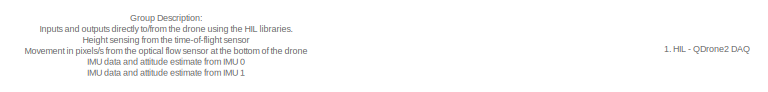
[diagram: QDrone2 DAQ - part 1/5, top left region]
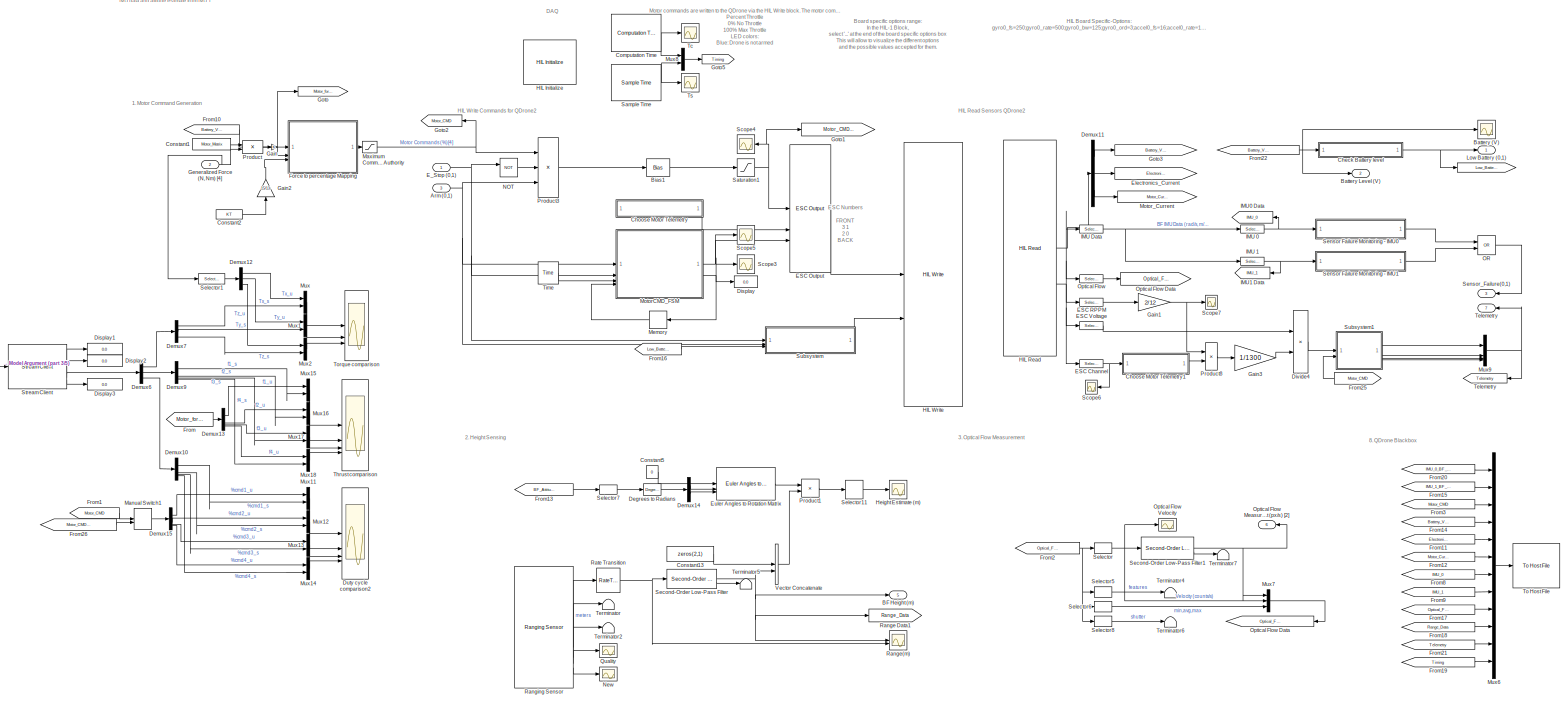
[diagram: QDrone2 DAQ - part 2/5, full width, middle band]
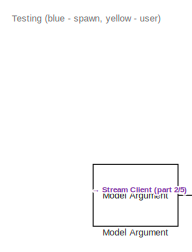
[diagram: QDrone2 DAQ - part 3/5, middle left region]
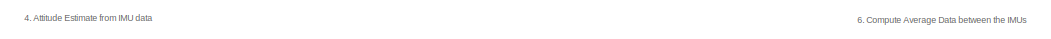
[diagram: QDrone2 DAQ - part 4/5, bottom center region]
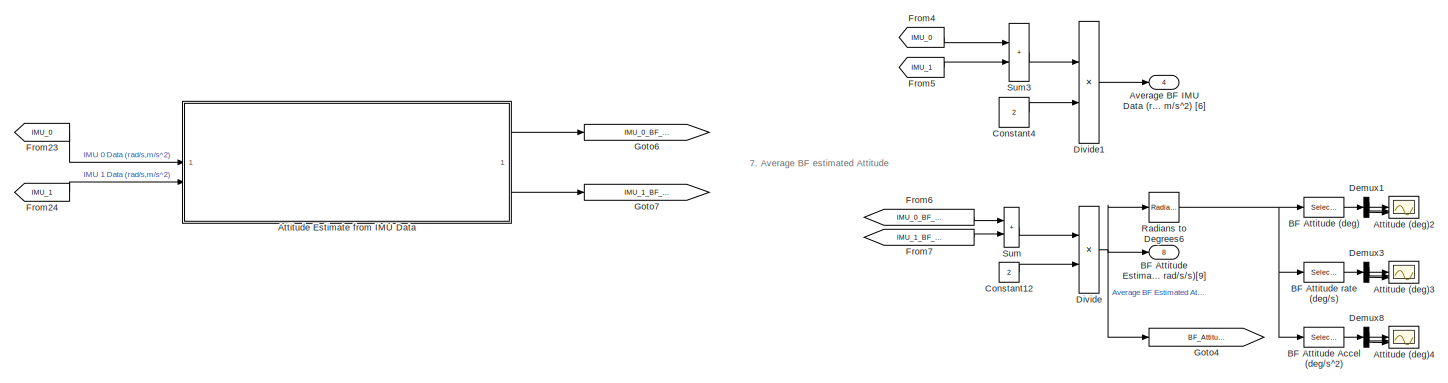
[diagram: QDrone2 DAQ - part 5/5, bottom center region]
BLOCK [SubSystem] QDrone2 DAQ
BLOCK [Goto] QDrone2 DAQ/ 
  GotoTag = Low_Battery
BLOCK [Goto] QDrone2 DAQ/ Telemetry
  GotoTag = Telemetry
BLOCK [Inport] QDrone2 DAQ/Arm (0,1)
  Port = 3
BLOCK [Scope] QDrone2 DAQ/Attitude (deg)2
  Floating = off
  NumInputPorts = 3
  ScopeSpecificationString = Simulink.scopes.TimeScopeBlockCfg('CurrentConfiguration', extmgr.ConfigurationSet(extmgr.Configuration('Core','General UI',true),extmgr.Configuration('Core','Source UI',true),extmgr.Configuration('Sources','WiredSimulink',true,'DataLoggingVariableName','ScopeData7','DataLoggingSaveFormat','Array','DataLoggingDecimation','1','DataLoggingDecimateData',true),extmgr.Configuration('Visuals','Time Domai...<+2843ch>
BLOCK [Scope] QDrone2 DAQ/Attitude (deg)3
  Floating = off
  NumInputPorts = 3
  ScopeSpecificationString = Simulink.scopes.TimeScopeBlockCfg('CurrentConfiguration', extmgr.ConfigurationSet(extmgr.Configuration('Core','General UI',true),extmgr.Configuration('Core','Source UI',true),extmgr.Configuration('Sources','WiredSimulink',true,'DataLoggingVariableName','ScopeData8','DataLoggingSaveFormat','Array','DataLoggingDecimation','1','DataLoggingDecimateData',true),extmgr.Configuration('Visuals','Time Domai...<+2867ch>
BLOCK [Scope] QDrone2 DAQ/Attitude (deg)4
  Floating = off
  NumInputPorts = 3
  ScopeSpecificationString = Simulink.scopes.TimeScopeBlockCfg('CurrentConfiguration', extmgr.ConfigurationSet(extmgr.Configuration('Core','General UI',true),extmgr.Configuration('Core','Source UI',true),extmgr.Configuration('Sources','WiredSimulink',true,'DataLoggingVariableName','ScopeData9','DataLoggingSaveFormat','Array','DataLoggingDecimation','1','DataLoggingDecimateData',true),extmgr.Configuration('Visuals','Time Domai...<+2873ch>
BLOCK [SubSystem] QDrone2 DAQ/Attitude Estimate from IMU Data
BLOCK [Scope] QDrone2 DAQ/Attitude Estimate from IMU Data/Angular Acceleration Estimate - IMU 0 (deg//s//s)
  Floating = off
  NameLocation = right
  NumInputPorts = 3
  ScopeSpecificationString = Simulink.scopes.TimeScopeBlockCfg('CurrentConfiguration', extmgr.ConfigurationSet(extmgr.Configuration('Core','General UI',true),extmgr.Configuration('Core','Source UI',true),extmgr.Configuration('Sources','WiredSimulink',true,'DataLoggingVariableName','ScopeData3','DataLoggingLimitDataPoints',true,'DataLoggingSaveFormat','Array','DataLoggingDecimation','1','DataLoggingDecimateData',true),extmgr.C...<+2837ch>
BLOCK [Scope] QDrone2 DAQ/Attitude Estimate from IMU Data/Angular Acceleration Estimate IMU 1 (deg//s//s)
  Floating = off
  NameLocation = right
  NumInputPorts = 3
  ScopeSpecificationString = Simulink.scopes.TimeScopeBlockCfg('CurrentConfiguration', extmgr.ConfigurationSet(extmgr.Configuration('Core','General UI',true),extmgr.Configuration('Core','Source UI',true),extmgr.Configuration('Sources','WiredSimulink',true,'DataLoggingVariableName','ScopeData4','DataLoggingLimitDataPoints',true,'DataLoggingSaveFormat','Array','DataLoggingDecimation','1','DataLoggingDecimateData',true),extmgr.C...<+2837ch>
BLOCK [Scope] QDrone2 DAQ/Attitude Estimate from IMU Data/Angular Rate Estimate - IMU 0 (deg//s//s)
  Floating = off
  NameLocation = right
  NumInputPorts = 3
  ScopeSpecificationString = Simulink.scopes.TimeScopeBlockCfg('CurrentConfiguration', extmgr.ConfigurationSet(extmgr.Configuration('Core','General UI',true),extmgr.Configuration('Core','Source UI',true),extmgr.Configuration('Sources','WiredSimulink',true,'DataLoggingVariableName','ScopeData9','DataLoggingLimitDataPoints',true,'DataLoggingSaveFormat','Array','DataLoggingDecimation','1','DataLoggingDecimateData',true),extmgr.C...<+2837ch>
BLOCK [Scope] QDrone2 DAQ/Attitude Estimate from IMU Data/Angular Rate Estimate IMU 1 (deg//s//s)
  Floating = off
  NameLocation = right
  NumInputPorts = 3
  ScopeSpecificationString = Simulink.scopes.TimeScopeBlockCfg('CurrentConfiguration', extmgr.ConfigurationSet(extmgr.Configuration('Core','General UI',true),extmgr.Configuration('Core','Source UI',true),extmgr.Configuration('Sources','WiredSimulink',true,'DataLoggingVariableName','ScopeData10','DataLoggingLimitDataPoints',true,'DataLoggingSaveFormat','Array','DataLoggingDecimation','1','DataLoggingDecimateData',true),extmgr....<+2838ch>
BLOCK [Scope] QDrone2 DAQ/Attitude Estimate from IMU Data/Attitude - IMU 0 (deg)
  Floating = off
  NameLocation = right
  NumInputPorts = 3
  ScopeSpecificationString = Simulink.scopes.TimeScopeBlockCfg('CurrentConfiguration', extmgr.ConfigurationSet(extmgr.Configuration('Core','General UI',true),extmgr.Configuration('Core','Source UI',true),extmgr.Configuration('Sources','WiredSimulink',true,'DataLoggingVariableName','ScopeData1','DataLoggingSaveFormat','Array','DataLoggingDecimation','1','DataLoggingDecimateData',true),extmgr.Configuration('Visuals','Time Domai...<+2826ch>
BLOCK [Scope] QDrone2 DAQ/Attitude Estimate from IMU Data/Attitude - IMU 1 (deg)
  Floating = off
  NameLocation = right
  NumInputPorts = 3
  ScopeSpecificationString = Simulink.scopes.TimeScopeBlockCfg('CurrentConfiguration', extmgr.ConfigurationSet(extmgr.Configuration('Core','General UI',true),extmgr.Configuration('Core','Source UI',true),extmgr.Configuration('Sources','WiredSimulink',true,'DataLoggingVariableName','ScopeData2','DataLoggingSaveFormat','Array','DataLoggingDecimation','1','DataLoggingDecimateData',true),extmgr.Configuration('Visuals','Time Domai...<+2824ch>
BLOCK [Outport] QDrone2 DAQ/Attitude Estimate from IMU Data/BF Estimated Attitude from IMU 0 (rad, rad//s, rad//s^2) [9]
  NameLocation = right
BLOCK [Outport] QDrone2 DAQ/Attitude Estimate from IMU Data/BF Estimated Attitude from IMU 1 (rad, rad//s, rad//s^2) [9]
  NameLocation = right
  Port = 2
BLOCK [Demux] QDrone2 DAQ/Attitude Estimate from IMU Data/Demux1
  Outputs = [3, 3]
BLOCK [Demux] QDrone2 DAQ/Attitude Estimate from IMU Data/Demux10
  Outputs = 3
BLOCK [Demux] QDrone2 DAQ/Attitude Estimate from IMU Data/Demux11
  Outputs = 3
BLOCK [Demux] QDrone2 DAQ/Attitude Estimate from IMU Data/Demux12
  Outputs = 3
BLOCK [Demux] QDrone2 DAQ/Attitude Estimate from IMU Data/Demux13
  Outputs = 3
BLOCK [Demux] QDrone2 DAQ/Attitude Estimate from IMU Data/Demux14
  Outputs = 3
BLOCK [Demux] QDrone2 DAQ/Attitude Estimate from IMU Data/Demux15
  Outputs = [9, 9]
BLOCK [Demux] QDrone2 DAQ/Attitude Estimate from IMU Data/Demux16
  Outputs = 3
BLOCK [Demux] QDrone2 DAQ/Attitude Estimate from IMU Data/Demux2
  Outputs = [3, 3]
BLOCK [Demux] QDrone2 DAQ/Attitude Estimate from IMU Data/Demux3
  Outputs = [3, 3]
BLOCK [Demux] QDrone2 DAQ/Attitude Estimate from IMU Data/Demux4
  Outputs = 3
BLOCK [Demux] QDrone2 DAQ/Attitude Estimate from IMU Data/Demux5
  Outputs = 3
BLOCK [Demux] QDrone2 DAQ/Attitude Estimate from IMU Data/Demux6
  Outputs = [3, 3]
BLOCK [Demux] QDrone2 DAQ/Attitude Estimate from IMU Data/Demux7
  Outputs = 3
BLOCK [Demux] QDrone2 DAQ/Attitude Estimate from IMU Data/Demux8
  Outputs = [3, 3]
BLOCK [Demux] QDrone2 DAQ/Attitude Estimate from IMU Data/Demux9
  Outputs = 3
BLOCK [SubSystem] QDrone2 DAQ/Attitude Estimate from IMU Data/For Each Subsystem - Attitutde Estimates
  TreatAsAtomicUnit = on
BLOCK [Outport] QDrone2 DAQ/Attitude Estimate from IMU Data/For Each Subsystem - Attitutde Estimates/BF Att (rad) [3n]
  ConcatenationDimension = 1
  NameLocation = right
BLOCK [Outport] QDrone2 DAQ/Attitude Estimate from IMU Data/For Each Subsystem - Attitutde Estimates/BF Att Accel (rad//s^2) [3n]
  ConcatenationDimension = 1
  NameLocation = right
  Port = 3
BLOCK [Outport] QDrone2 DAQ/Attitude Estimate from IMU Data/For Each Subsystem - Attitutde Estimates/BF Att Rate (rad//s) [3n]
  ConcatenationDimension = 1
  NameLocation = right
  Port = 2
BLOCK [Outport] QDrone2 DAQ/Attitude Estimate from IMU Data/For Each Subsystem - Attitutde Estimates/BF Estimated Att (rad, rad//s, rad//s^2) [9n] 
  ConcatenationDimension = 1
  NameLocation = right
  Port = 4
BLOCK [Constant] QDrone2 DAQ/Attitude Estimate from IMU Data/For Each Subsystem - Attitutde Estimates/Constant
  Value = 120
BLOCK [Constant] QDrone2 DAQ/Attitude Estimate from IMU Data/For Each Subsystem - Attitutde Estimates/Constant10
  Value = 0.7
BLOCK [Constant] QDrone2 DAQ/Attitude Estimate from IMU Data/For Each Subsystem - Attitutde Estimates/Constant3
BLOCK [Constant] QDrone2 DAQ/Attitude Estimate from IMU Data/For Each Subsystem - Attitutde Estimates/Constant9
  Value = 100
BLOCK [Demux] QDrone2 DAQ/Attitude Estimate from IMU Data/For Each Subsystem - Attitutde Estimates/Demux
  Outputs = [3,3]
BLOCK [ForEach] QDrone2 DAQ/Attitude Estimate from IMU Data/For Each Subsystem - Attitutde Estimates/For Each
  DisableCoverage = on
BLOCK [Inport] QDrone2 DAQ/Attitude Estimate from IMU Data/For Each Subsystem - Attitutde Estimates/IMU (rad//s, m//s^2) [6n]
  NameLocation = left
  Partition = on
  PartitionDimension = 1
  PartitionOffset = 0
  PartitionWidth = 6
BLOCK [Integrator] QDrone2 DAQ/Attitude Estimate from IMU Data/For Each Subsystem - Attitutde Estimates/Integrator2
BLOCK [Integrator] QDrone2 DAQ/Attitude Estimate from IMU Data/For Each Subsystem - Attitutde Estimates/Integrator3
BLOCK [Integrator] QDrone2 DAQ/Attitude Estimate from IMU Data/For Each Subsystem - Attitutde Estimates/Integrator4
BLOCK [Gain] QDrone2 DAQ/Attitude Estimate from IMU Data/For Each Subsystem - Attitutde Estimates/Ki1
  Gain = [0.1 0.1]
BLOCK [Gain] QDrone2 DAQ/Attitude Estimate from IMU Data/For Each Subsystem - Attitutde Estimates/Kp1
  Gain = [0.25 0.25]
  NameLocation = top
BLOCK [Mux] QDrone2 DAQ/Attitude Estimate from IMU Data/For Each Subsystem - Attitutde Estimates/Mux
  DisplayOption = bar
  Inputs = 3
BLOCK [Mux] QDrone2 DAQ/Attitude Estimate from IMU Data/For Each Subsystem - Attitutde Estimates/Mux4
  DisplayOption = bar
  Inputs = 2
BLOCK [Mux] QDrone2 DAQ/Attitude Estimate from IMU Data/For Each Subsystem - Attitutde Estimates/Mux5
  DisplayOption = bar
  Inputs = 2
BLOCK [Reference] QDrone2 DAQ/Attitude Estimate from IMU Data/For Each Subsystem - Attitutde Estimates/Second-Order Low-Pass Filter (Roll and Pitch Rate)  REF=quarc_library/Continuous/Second-Order
Low-Pass Filter
  SourceBlock = quarc_library/Continuous/Second-Order\nLow-Pass Filter
  SourceProductName = QUARC Targets
  SourceType = Second-Order Low-Pass Filter
BLOCK [Reference] QDrone2 DAQ/Attitude Estimate from IMU Data/For Each Subsystem - Attitutde Estimates/Second-Order Low-Pass Filter (Yaw Rate)  REF=quarc_library/Continuous/Second-Order
Low-Pass Filter
  SourceBlock = quarc_library/Continuous/Second-Order\nLow-Pass Filter
  SourceProductName = QUARC Targets
  SourceType = Second-Order Low-Pass Filter
BLOCK [Selector] QDrone2 DAQ/Attitude Estimate from IMU Data/For Each Subsystem - Attitutde Estimates/Selector2
  IndexOptions = Index vector (dialog)
  Indices = [1,2]
  InputPortWidth = 3
  OutputSizes = 1
BLOCK [Selector] QDrone2 DAQ/Attitude Estimate from IMU Data/For Each Subsystem - Attitutde Estimates/Selector3
  IndexOptions = Index vector (dialog)
  Indices = [3]
  InputPortWidth = 3
  OutputSizes = 1
BLOCK [Sum] QDrone2 DAQ/Attitude Estimate from IMU Data/For Each Subsystem - Attitutde Estimates/Sum1
  IconShape = rectangular
  Inputs = +--
BLOCK [Sum] QDrone2 DAQ/Attitude Estimate from IMU Data/For Each Subsystem - Attitutde Estimates/Sum4
  Inputs = |-+
BLOCK [Terminator] QDrone2 DAQ/Attitude Estimate from IMU Data/For Each Subsystem - Attitutde Estimates/Terminator1
BLOCK [SubSystem] QDrone2 DAQ/Attitude Estimate from IMU Data/For Each Subsystem - Attitutde Estimates/roll and pitch approximation from accelerometer
  ErrorFcn = Stateflow.Translate.translate
  PermitHierarchicalResolution = ExplicitOnly
  SFBlockType = MATLAB Function
  TreatAsAtomicUnit = on
BLOCK [Demux] QDrone2 DAQ/Attitude Estimate from IMU Data/For Each Subsystem - Attitutde Estimates/roll and pitch approximation from accelerometer/ Demux 
  Outputs = 1
BLOCK [S-Function] QDrone2 DAQ/Attitude Estimate from IMU Data/For Each Subsystem - Attitutde Estimates/roll and pitch approximation from accelerometer/ SFunction 
  EnableBusSupport = on
  FunctionName = sf_sfun
  PortCounts = [1 3]
  SFcnIsStateOwnerBlock = off
  SFunctionDeploymentMode = off
  Tag = Stateflow S-Function 1
BLOCK [Terminator] QDrone2 DAQ/Attitude Estimate from IMU Data/For Each Subsystem - Attitutde Estimates/roll and pitch approximation from accelerometer/ Terminator 
BLOCK [Inport] QDrone2 DAQ/Attitude Estimate from IMU Data/For Each Subsystem - Attitutde Estimates/roll and pitch approximation from accelerometer/acc_body
BLOCK [Outport] QDrone2 DAQ/Attitude Estimate from IMU Data/For Each Subsystem - Attitutde Estimates/roll and pitch approximation from accelerometer/pitch_acc
  Port = 2
  VectorParamsAs1DForOutWhenUnconnected = off
BLOCK [Outport] QDrone2 DAQ/Attitude Estimate from IMU Data/For Each Subsystem - Attitutde Estimates/roll and pitch approximation from accelerometer/roll_acc
  VectorParamsAs1DForOutWhenUnconnected = off
BLOCK [Inport] QDrone2 DAQ/Attitude Estimate from IMU Data/IMU_0 [6]
  NameLocation = left
BLOCK [Inport] QDrone2 DAQ/Attitude Estimate from IMU Data/IMU_1 [6]
  NameLocation = left
  Port = 2
BLOCK [Mux] QDrone2 DAQ/Attitude Estimate from IMU Data/Mux
  DisplayOption = bar
  Inputs = 2
BLOCK [Reference] QDrone2 DAQ/Attitude Estimate from IMU Data/Radians to Degrees  REF=simulink_extras/Transformations/Radians
to Degrees
  SourceBlock = simulink_extras/Transformations/Radians\nto Degrees
  SourceType = RadiansToDegrees
BLOCK [Reference] QDrone2 DAQ/Attitude Estimate from IMU Data/Radians to Degrees1  REF=simulink_extras/Transformations/Radians
to Degrees
  SourceBlock = simulink_extras/Transformations/Radians\nto Degrees
  SourceType = RadiansToDegrees
BLOCK [Reference] QDrone2 DAQ/Attitude Estimate from IMU Data/Radians to Degrees2  REF=simulink_extras/Transformations/Radians
to Degrees
  SourceBlock = simulink_extras/Transformations/Radians\nto Degrees
  SourceType = RadiansToDegrees
BLOCK [Reference] QDrone2 DAQ/Attitude Estimate from IMU Data/Radians to Degrees3  REF=simulink_extras/Transformations/Radians
to Degrees
  SourceBlock = simulink_extras/Transformations/Radians\nto Degrees
  SourceType = RadiansToDegrees
BLOCK [Reference] QDrone2 DAQ/Attitude Estimate from IMU Data/Radians to Degrees4  REF=simulink_extras/Transformations/Radians
to Degrees
  SourceBlock = simulink_extras/Transformations/Radians\nto Degrees
  SourceType = RadiansToDegrees
BLOCK [Scope] QDrone2 DAQ/Attitude Estimate from IMU Data/Raw Acceleration Estimate - IMU 0 (m//s^2)
  Floating = off
  NameLocation = right
  NumInputPorts = 3
  ScopeSpecificationString = Simulink.scopes.TimeScopeBlockCfg('CurrentConfiguration', extmgr.ConfigurationSet(extmgr.Configuration('Core','General UI',true),extmgr.Configuration('Core','Source UI',true),extmgr.Configuration('Sources','WiredSimulink',true,'DataLoggingVariableName','ScopeData5','DataLoggingSaveFormat','Array','DataLoggingDecimation','1'),extmgr.Configuration('Visuals','Time Domain',true,'SerializedDisplays',{s...<+3028ch>
BLOCK [Scope] QDrone2 DAQ/Attitude Estimate from IMU Data/Raw Acceleration Estimate - IMU 1 (m//s^2)
  Floating = off
  NameLocation = right
  NumInputPorts = 3
  ScopeSpecificationString = Simulink.scopes.TimeScopeBlockCfg('CurrentConfiguration', extmgr.ConfigurationSet(extmgr.Configuration('Core','General UI',true),extmgr.Configuration('Core','Source UI',true),extmgr.Configuration('Sources','WiredSimulink',true,'DataLoggingVariableName','ScopeData6','DataLoggingSaveFormat','Array','DataLoggingDecimation','1'),extmgr.Configuration('Visuals','Time Domain',true,'SerializedDisplays',{s...<+2763ch>
BLOCK [Scope] QDrone2 DAQ/Attitude Estimate from IMU Data/Raw Rate Estimate - IMU 0  (deg//s)
  Floating = off
  NameLocation = right
  NumInputPorts = 3
  ScopeSpecificationString = Simulink.scopes.TimeScopeBlockCfg('CurrentConfiguration', extmgr.ConfigurationSet(extmgr.Configuration('Core','General UI',true),extmgr.Configuration('Core','Source UI',true),extmgr.Configuration('Sources','WiredSimulink',true,'DataLoggingVariableName','ScopeData7','DataLoggingLimitDataPoints',true,'DataLoggingSaveFormat','Array','DataLoggingDecimation','1','DataLoggingDecimateData',true),extmgr.C...<+3114ch>
BLOCK [Scope] QDrone2 DAQ/Attitude Estimate from IMU Data/Raw Rate Estimate - IMU 1 (deg//s)
  Floating = off
  NameLocation = right
  NumInputPorts = 3
  ScopeSpecificationString = Simulink.scopes.TimeScopeBlockCfg('CurrentConfiguration', extmgr.ConfigurationSet(extmgr.Configuration('Core','General UI',true),extmgr.Configuration('Core','Source UI',true),extmgr.Configuration('Sources','WiredSimulink',true,'DataLoggingVariableName','ScopeData8','DataLoggingLimitDataPoints',true,'DataLoggingSaveFormat','Array','DataLoggingDecimation','1','DataLoggingDecimateData',true),extmgr.C...<+2805ch>
BLOCK [Outport] QDrone2 DAQ/Average BF IMU Data (rad//s, m//s^2) [6]
  NameLocation = right
  Port = 4
BLOCK [Selector] QDrone2 DAQ/BF Attitude (deg)
  IndexOptions = Index vector (dialog)
  Indices = [1:3]
  InputPortWidth = 9
  OutputSizes = 1
BLOCK [Selector] QDrone2 DAQ/BF Attitude Accel (deg//s^2)
  IndexOptions = Index vector (dialog)
  Indices = [7:9]
  InputPortWidth = 9
  OutputSizes = 1
BLOCK [Outport] QDrone2 DAQ/BF Attitude Estimate (rad, rad//s, rad//s//s)[9]
  NameLocation = right
  Port = 8
BLOCK [Selector] QDrone2 DAQ/BF Attitude rate (deg//s)
  IndexOptions = Index vector (dialog)
  Indices = [4:6]
  InputPortWidth = 9
  OutputSizes = 1
BLOCK [Outport] QDrone2 DAQ/BF Height (m) 
  NameLocation = right
  Port = 5
BLOCK [Scope] QDrone2 DAQ/Battery (V)
  Floating = off
  NameLocation = right
  NumInputPorts = 1
  ScopeSpecificationString = Simulink.scopes.TimeScopeBlockCfg('CurrentConfiguration', extmgr.ConfigurationSet(extmgr.Configuration('Core','General UI',true),extmgr.Configuration('Core','Source UI',true),extmgr.Configuration('Sources','WiredSimulink',true,'DataLoggingVariableName','ScopeData8'),extmgr.Configuration('Visuals','Time Domain',true,'SerializedDisplays',{struct('MinYLimReal','13.04642','MaxYLimReal','18.70722','YLa...<+1438ch>
BLOCK [Outport] QDrone2 DAQ/Battery Level (V)
  NameLocation = right
  Port = 2
BLOCK [Bias] QDrone2 DAQ/Bias1
  Bias = 0.02
  SaturateOnIntegerOverflow = off
BLOCK [SubSystem] QDrone2 DAQ/Check Battery level
BLOCK [Inport] QDrone2 DAQ/Check Battery level/Battery level
BLOCK [Reference] QDrone2 DAQ/Check Battery level/Compare To Constant  REF=simulink/Logic and Bit
Operations/Compare
To Constant
  SourceBlock = simulink/Logic and Bit\nOperations/Compare\nTo Constant
  SourceType = Compare To Constant
BLOCK [Reference] QDrone2 DAQ/Check Battery level/Compare To Constant1  REF=simulink/Logic and Bit
Operations/Compare
To Constant
  SourceBlock = simulink/Logic and Bit\nOperations/Compare\nTo Constant
  SourceType = Compare To Constant
BLOCK [DataTypeConversion] QDrone2 DAQ/Check Battery level/Data Type Conversion
  RndMeth = Floor
  SaturateOnIntegerOverflow = off
BLOCK [DataTypeConversion] QDrone2 DAQ/Check Battery level/Data Type Conversion1
  RndMeth = Floor
  SaturateOnIntegerOverflow = off
BLOCK [Logic] QDrone2 DAQ/Check Battery level/Logical Operator
  AllPortsSameDT = off
  OutDataTypeStr = boolean
BLOCK [Outport] QDrone2 DAQ/Check Battery level/Low Battery
  VectorParamsAs1DForOutWhenUnconnected = off
BLOCK [Terminator] QDrone2 DAQ/Check Battery level/Terminator
BLOCK [Reference] QDrone2 DAQ/Check Battery level/Threshold  REF=quarc_library/Discontinuities/Threshold
  SourceBlock = quarc_library/Discontinuities/Threshold
  SourceProductName = QUARC Targets
  SourceType = Threshold
BLOCK [SubSystem] QDrone2 DAQ/Check Battery level/Triggered Subsystem
  TreatAsAtomicUnit = on
BLOCK [Constant] QDrone2 DAQ/Check Battery level/Triggered Subsystem/Constant
BLOCK [Outport] QDrone2 DAQ/Check Battery level/Triggered Subsystem/Out1
  InitialOutput = [0]
BLOCK [TriggerPort] QDrone2 DAQ/Check Battery level/Triggered Subsystem/Trigger
  StatesWhenEnabling = held
  VariantControl = (inherit)
BLOCK [SubSystem] QDrone2 DAQ/Choose Motor Telemetry
BLOCK [Bias] QDrone2 DAQ/Choose Motor Telemetry/Bias1
  Bias = 0:3
  SaturateOnIntegerOverflow = off
BLOCK [Constant] QDrone2 DAQ/Choose Motor Telemetry/Constant
  Value = [0 0 0 0; 0 0 0 1; 0 0 0 0; 0 0 1 0; 0 0 0 0; 0 1 0 0; 0 0 0 0; 1 0 0 0]
BLOCK [Constant] QDrone2 DAQ/Choose Motor Telemetry/Constant1
  Value = 3
BLOCK [Gain] QDrone2 DAQ/Choose Motor Telemetry/Gain
  Gain = .7
BLOCK [SubSystem] QDrone2 DAQ/Choose Motor Telemetry/MATLAB Function
  ErrorFcn = Stateflow.Translate.translate
  PermitHierarchicalResolution = ExplicitOnly
  SFBlockType = MATLAB Function
  TreatAsAtomicUnit = on
BLOCK [Demux] QDrone2 DAQ/Choose Motor Telemetry/MATLAB Function/ Demux 
  Outputs = 1
BLOCK [S-Function] QDrone2 DAQ/Choose Motor Telemetry/MATLAB Function/ SFunction 
  EnableBusSupport = on
  FunctionName = sf_sfun
  PortCounts = [1 2]
  SFcnIsStateOwnerBlock = off
  SFunctionDeploymentMode = off
  Tag = Stateflow S-Function 12
BLOCK [Terminator] QDrone2 DAQ/Choose Motor Telemetry/MATLAB Function/ Terminator 
BLOCK [Inport] QDrone2 DAQ/Choose Motor Telemetry/MATLAB Function/bits
BLOCK [Outport] QDrone2 DAQ/Choose Motor Telemetry/MATLAB Function/y
BLOCK [Outport] QDrone2 DAQ/Choose Motor Telemetry/Motor telemetry
BLOCK [Selector] QDrone2 DAQ/Choose Motor Telemetry/Selector
  IndexMode = Zero-based
  IndexOptions = Index vector (port),Select all
  Indices = [1 3],1
  InputPortWidth = 3
  NumberOfDimensions = 2
  OutputSizes = 1,1
BLOCK [Scope] QDrone2 DAQ/Choose Motor Telemetry/Telemetry
  Floating = off
  NumInputPorts = 1
  ScopeSpecificationString = Simulink.scopes.TimeScopeBlockCfg('CurrentConfiguration', extmgr.ConfigurationSet(extmgr.Configuration('Core','General UI',true),extmgr.Configuration('Core','Source UI',true),extmgr.Configuration('Sources','WiredSimulink',true,'DataLoggingVariableName','ScopeData2'),extmgr.Configuration('Visuals','Time Domain',true,'SerializedDisplays',{struct('MinYLimReal','-0.4625','MaxYLimReal','4.1625','YLabel...<+1629ch>
BLOCK [SubSystem] QDrone2 DAQ/Choose Motor Telemetry1
BLOCK [Inport] QDrone2 DAQ/Choose Motor Telemetry1/Channel
BLOCK [Constant] QDrone2 DAQ/Choose Motor Telemetry1/Constant1
  Value = [1 0 0 0]
BLOCK [Constant] QDrone2 DAQ/Choose Motor Telemetry1/Constant2
  Value = [0 1 0 0]
BLOCK [Constant] QDrone2 DAQ/Choose Motor Telemetry1/Constant3
  Value = [0 0 1 0]
BLOCK [Constant] QDrone2 DAQ/Choose Motor Telemetry1/Constant4
  Value = [0 0 0 1]
BLOCK [Outport] QDrone2 DAQ/Choose Motor Telemetry1/Motor selection
BLOCK [MultiPortSwitch] QDrone2 DAQ/Choose Motor Telemetry1/Multiport Switch
  DataPortOrder = Zero-based contiguous
  InputSameDT = off
  Inputs = 4
  SaturateOnIntegerOverflow = off
  zeroidx = on
BLOCK [Reference] QDrone2 DAQ/Computation Time  REF=quarc_library/Sources/Time/Computation Time
  SourceBlock = quarc_library/Sources/Time/Computation Time
  SourceProductName = QUARC Targets
  SourceType = Computation Time
BLOCK [Constant] QDrone2 DAQ/Constant1
  OutDataTypeStr = double
  Value = Motor_Matrix
BLOCK [Constant] QDrone2 DAQ/Constant12
  Value = 2
BLOCK [Constant] QDrone2 DAQ/Constant13
  Value = zeros(2,1)
BLOCK [Constant] QDrone2 DAQ/Constant2
  OutDataTypeStr = double
  Value = KT
BLOCK [Constant] QDrone2 DAQ/Constant4
  Value = 2
BLOCK [Constant] QDrone2 DAQ/Constant5
  Value = 0
BLOCK [Reference] QDrone2 DAQ/Degrees to Radians  REF=simulink_extras/Transformations/Degrees to
Radians
  SourceBlock = simulink_extras/Transformations/Degrees to\nRadians
  SourceType = DegreesToRadians
BLOCK [Demux] QDrone2 DAQ/Demux1
  Outputs = 3
BLOCK [Demux] QDrone2 DAQ/Demux10
BLOCK [Demux] QDrone2 DAQ/Demux11
  Outputs = 3
BLOCK [Demux] QDrone2 DAQ/Demux12
  Outputs = 3
BLOCK [Demux] QDrone2 DAQ/Demux13
BLOCK [Demux] QDrone2 DAQ/Demux14
  Outputs = 2
BLOCK [Demux] QDrone2 DAQ/Demux15
BLOCK [Demux] QDrone2 DAQ/Demux3
  Outputs = 3
BLOCK [Demux] QDrone2 DAQ/Demux6
  Outputs = [3, 4, 4]
BLOCK [Demux] QDrone2 DAQ/Demux7
  Outputs = 3
BLOCK [Demux] QDrone2 DAQ/Demux8
  Outputs = 3
BLOCK [Demux] QDrone2 DAQ/Demux9
BLOCK [Display] QDrone2 DAQ/Display
  Decimation = 1
BLOCK [Display] QDrone2 DAQ/Display1
  Decimation = 1
BLOCK [Display] QDrone2 DAQ/Display2
  Decimation = 1
BLOCK [Display] QDrone2 DAQ/Display3
  Decimation = 1
BLOCK [Product] QDrone2 DAQ/Divide
  Inputs = */
BLOCK [Product] QDrone2 DAQ/Divide1
  Inputs = */
BLOCK [Product] QDrone2 DAQ/Divide4
  Inputs = /*
BLOCK [Scope] QDrone2 DAQ/Duty cycle comparison2
  Floating = off
  NumInputPorts = 4
  ScopeSpecificationString = Simulink.scopes.TimeScopeBlockCfg('CurrentConfiguration', extmgr.ConfigurationSet(extmgr.Configuration('Core','General UI',true),extmgr.Configuration('Core','Source UI',true),extmgr.Configuration('Sources','WiredSimulink',true,'DataLoggingVariableName','ScopeData3'),extmgr.Configuration('Visuals','Time Domain',true,'SerializedDisplays',{struct('MinYLimReal','0.51435','MaxYLimReal','0.57646','YLabe...<+3813ch>
BLOCK [Selector] QDrone2 DAQ/ESC Channel
  IndexOptions = Index vector (dialog)
  Indices = [22]
  InputPortWidth = 22
  OutputSizes = 1
BLOCK [Reference] QDrone2 DAQ/ESC Output  REF=quarc_library/Data Acquisition/Generic/Transformations/ESC Output
  AttributesFormatString = %<protocol>
  SourceBlock = quarc_library/Data Acquisition/Generic/Transformations/ESC Output
  SourceProductName = QUARC Targets
  SourceType = ESC Output
  UserDataPersistent = on
BLOCK [Selector] QDrone2 DAQ/ESC RPPM
  IndexOptions = Index vector (dialog)
  Indices = [20]
  InputPortWidth = 22
  OutputSizes = 1
BLOCK [Selector] QDrone2 DAQ/ESC Voltage
  IndexOptions = Index vector (dialog)
  Indices = [21]
  InputPortWidth = 22
  OutputSizes = 1
BLOCK [Inport] QDrone2 DAQ/E_Stop (0,1)
BLOCK [Goto] QDrone2 DAQ/Electronics_Current
  GotoTag = Electronics_Current
BLOCK [Reference] QDrone2 DAQ/Euler Angles to Rotation Matrix  REF=quarc_library/Math Operations/Matrices/Euler Angles to
Rotation Matrix
  SourceBlock = quarc_library/Math Operations/Matrices/Euler Angles to\nRotation Matrix
  SourceProductName = QUARC Targets
  SourceType = Euler Angles to Rotation Matrix
BLOCK [SubSystem] QDrone2 DAQ/Force to percentage Mapping
  ErrorFcn = Stateflow.Translate.translate
  PermitHierarchicalResolution = ExplicitOnly
  SFBlockType = MATLAB Function
  TreatAsAtomicUnit = on
BLOCK [Demux] QDrone2 DAQ/Force to percentage Mapping/ Demux 
  Outputs = 1
BLOCK [S-Function] QDrone2 DAQ/Force to percentage Mapping/ SFunction 
  EnableBusSupport = on
  FunctionName = sf_sfun
  PortCounts = [3 2]
  SFcnIsStateOwnerBlock = off
  SFunctionDeploymentMode = off
  Tag = Stateflow S-Function 17
BLOCK [Terminator] QDrone2 DAQ/Force to percentage Mapping/ Terminator 
BLOCK [Outport] QDrone2 DAQ/Force to percentage Mapping/Duty_Cycle
BLOCK [Inport] QDrone2 DAQ/Force to percentage Mapping/KT
  Port = 3
BLOCK [Inport] QDrone2 DAQ/Force to percentage Mapping/Motor_Forces
  Port = 2
BLOCK [Inport] QDrone2 DAQ/Force to percentage Mapping/V_Bat_Act
BLOCK [From] QDrone2 DAQ/From
  GotoTag = Motor_forces
BLOCK [From] QDrone2 DAQ/From1
  GotoTag = Motor_CMD
BLOCK [From] QDrone2 DAQ/From10
  GotoTag = Battery_Voltage
BLOCK [From] QDrone2 DAQ/From11
  GotoTag = Electronics_Current
BLOCK [From] QDrone2 DAQ/From12
  GotoTag = Motor_Current
BLOCK [From] QDrone2 DAQ/From13
  GotoTag = BF_Attitude_Est
BLOCK [From] QDrone2 DAQ/From14
  GotoTag = Battery_Voltage
BLOCK [From] QDrone2 DAQ/From15
  GotoTag = IMU_1_BF_Est_Att
BLOCK [From] QDrone2 DAQ/From16
  GotoTag = Low_Battery
BLOCK [From] QDrone2 DAQ/From17
  GotoTag = Optical_Flow_X_Y_Est
BLOCK [From] QDrone2 DAQ/From18
  GotoTag = Range_Data
BLOCK [From] QDrone2 DAQ/From19
  GotoTag = Timing
BLOCK [From] QDrone2 DAQ/From2
  GotoTag = Optical_Flow_Data
BLOCK [From] QDrone2 DAQ/From20
  GotoTag = IMU_0_BF_Est_Att
BLOCK [From] QDrone2 DAQ/From21
  GotoTag = Telemetry
BLOCK [From] QDrone2 DAQ/From22
  GotoTag = Battery_Voltage
BLOCK [From] QDrone2 DAQ/From23
  GotoTag = IMU_0
BLOCK [From] QDrone2 DAQ/From24
  GotoTag = IMU_1
BLOCK [From] QDrone2 DAQ/From25
  GotoTag = Motor_CMD
BLOCK [From] QDrone2 DAQ/From26
  GotoTag = Motor_CMD_actual
BLOCK [From] QDrone2 DAQ/From3
  GotoTag = Motor_CMD
BLOCK [From] QDrone2 DAQ/From4
  GotoTag = IMU_0
BLOCK [From] QDrone2 DAQ/From5
  GotoTag = IMU_1
BLOCK [From] QDrone2 DAQ/From6
  GotoTag = IMU_0_BF_Est_Att
BLOCK [From] QDrone2 DAQ/From7
  GotoTag = IMU_1_BF_Est_Att
BLOCK [From] QDrone2 DAQ/From8
  GotoTag = IMU_0
BLOCK [From] QDrone2 DAQ/From9
  GotoTag = IMU_1
BLOCK [Gain] QDrone2 DAQ/Gain
BLOCK [Gain] QDrone2 DAQ/Gain1
  Gain = 2/12
BLOCK [Gain] QDrone2 DAQ/Gain2
  Gain = 15/13
  NameLocation = right
BLOCK [Gain] QDrone2 DAQ/Gain3
  Gain = 1/1300
BLOCK [Inport] QDrone2 DAQ/Generalized Force (N, Nm) [4]
  Port = 2
BLOCK [Goto] QDrone2 DAQ/Goto
  GotoTag = Motor_forces
BLOCK [Goto] QDrone2 DAQ/Goto1
  GotoTag = Motor_CMD_actual
BLOCK [Goto] QDrone2 DAQ/Goto2
  GotoTag = Motor_CMD
  NameLocation = top
BLOCK [Goto] QDrone2 DAQ/Goto3
  GotoTag = Battery_Voltage
BLOCK [Goto] QDrone2 DAQ/Goto4
  GotoTag = BF_Attitude_Est
BLOCK [Goto] QDrone2 DAQ/Goto5
  GotoTag = Timing
BLOCK [Goto] QDrone2 DAQ/Goto6
  GotoTag = IMU_0_BF_Est_Att
BLOCK [Goto] QDrone2 DAQ/Goto7
  GotoTag = IMU_1_BF_Est_Att
BLOCK [Reference] QDrone2 DAQ/HIL Initialize  REF=quarc_library/Data Acquisition/Generic/Configuration/HIL Initialize
  AttributesFormatString = %<object_name> (%<board_type>-%<board_number>)
  SourceBlock = quarc_library/Data Acquisition/Generic/Configuration/HIL Initialize
  SourceProductName = QUARC Targets
  SourceType = HIL Initialize
  UserDataPersistent = on
BLOCK [Reference] QDrone2 DAQ/HIL Read  REF=quarc_library/Data Acquisition/Generic/Immediate I//O/HIL Read
  AttributesFormatString = (%<object_name>)
  SourceBlock = quarc_library/Data Acquisition/Generic/Immediate I//O/HIL Read
  SourceProductName = QUARC Targets
  SourceType = HIL Read
  UserDataPersistent = on
BLOCK [Reference] QDrone2 DAQ/HIL Write  REF=quarc_library/Data Acquisition/Generic/Immediate I//O/HIL Write
  AttributesFormatString = (%<object_name>)
  SourceBlock = quarc_library/Data Acquisition/Generic/Immediate I//O/HIL Write
  SourceProductName = QUARC Targets
  SourceType = HIL Write
  UserDataPersistent = on
BLOCK [Scope] QDrone2 DAQ/Height Estimate (m)
  Floating = off
  NumInputPorts = 1
  ScopeSpecificationString = Simulink.scopes.TimeScopeBlockCfg('CurrentConfiguration', extmgr.ConfigurationSet(extmgr.Configuration('Core','General UI',true),extmgr.Configuration('Core','Source UI',true),extmgr.Configuration('Sources','WiredSimulink',true,'DataLoggingVariableName','ScopeData10'),extmgr.Configuration('Visuals','Time Domain',true,'SerializedDisplays',{struct('MinYLimReal','-0.22545','MaxYLimReal','2.40133','YLa...<+1439ch>
BLOCK [Selector] QDrone2 DAQ/IMU 0
  IndexOptions = Index vector (dialog)
  Indices = [1:6]
  InputPortWidth = 12
  OutputSizes = 1
BLOCK [Selector] QDrone2 DAQ/IMU 1
  IndexOptions = Index vector (dialog)
  Indices = [7:12]
  InputPortWidth = 12
  NameLocation = top
  OutputSizes = 1
BLOCK [Selector] QDrone2 DAQ/IMU Data
  IndexOptions = Index vector (dialog)
  Indices = [1:12]
  InputPortWidth = 22
  OutputSizes = 1
BLOCK [Goto] QDrone2 DAQ/IMU0 Data
  GotoTag = IMU_0
  NameLocation = top
BLOCK [Goto] QDrone2 DAQ/IMU1 Data
  GotoTag = IMU_1
BLOCK [Outport] QDrone2 DAQ/Low Battery (0,1)
  NameLocation = right
BLOCK [ManualSwitch] QDrone2 DAQ/Manual Switch1
  CurrentSetting = 0
BLOCK [Saturate] QDrone2 DAQ/Maximum Command Authority 
  LowerLimit = [0 0 0 0]
  UpperLimit = [1 1 1 1]
BLOCK [Memory] QDrone2 DAQ/Memory
  NameLocation = top
BLOCK [Reference] QDrone2 DAQ/Model Argument  REF=quarc_library/Sources/Signals/Model Argument
  AttributesFormatString = (-%<argument_name>)
  SourceBlock = quarc_library/Sources/Signals/Model Argument
  SourceProductName = QUARC Targets
  SourceType = Model Argument
BLOCK [SubSystem] QDrone2 DAQ/MotorCMD_FSM
  ErrorFcn = Stateflow.Translate.translate
  PermitHierarchicalResolution = ExplicitOnly
  SFBlockType = MATLAB Function
  TreatAsAtomicUnit = on
BLOCK [Demux] QDrone2 DAQ/MotorCMD_FSM/ Demux 
  Outputs = 1
BLOCK [S-Function] QDrone2 DAQ/MotorCMD_FSM/ SFunction 
  EnableBusSupport = on
  FunctionName = sf_sfun
  PortCounts = [4 3]
  SFcnIsStateOwnerBlock = off
  SFunctionDeploymentMode = off
  Tag = Stateflow S-Function 4
BLOCK [Terminator] QDrone2 DAQ/MotorCMD_FSM/ Terminator 
BLOCK [Inport] QDrone2 DAQ/MotorCMD_FSM/Arm_Signal
BLOCK [Outport] QDrone2 DAQ/MotorCMD_FSM/ESC_cmd
BLOCK [Inport] QDrone2 DAQ/MotorCMD_FSM/E_Stop
  Port = 2
BLOCK [Inport] QDrone2 DAQ/MotorCMD_FSM/Model_Time
  Port = 3
BLOCK [Outport] QDrone2 DAQ/MotorCMD_FSM/Motor_State
  Port = 2
BLOCK [Inport] QDrone2 DAQ/MotorCMD_FSM/Motor_State 
  Port = 4
BLOCK [Goto] QDrone2 DAQ/Motor_Current
  GotoTag = Motor_Current
BLOCK [Mux] QDrone2 DAQ/Mux
  DisplayOption = bar
  Inputs = 2
BLOCK [Mux] QDrone2 DAQ/Mux1
  DisplayOption = bar
  Inputs = 2
BLOCK [Mux] QDrone2 DAQ/Mux11
  DisplayOption = bar
  Inputs = 2
BLOCK [Mux] QDrone2 DAQ/Mux12
  DisplayOption = bar
  Inputs = 2
BLOCK [Mux] QDrone2 DAQ/Mux13
  DisplayOption = bar
  Inputs = 2
BLOCK [Mux] QDrone2 DAQ/Mux14
  DisplayOption = bar
  Inputs = 2
BLOCK [Mux] QDrone2 DAQ/Mux15
  DisplayOption = bar
  Inputs = 2
BLOCK [Mux] QDrone2 DAQ/Mux16
  DisplayOption = bar
  Inputs = 2
BLOCK [Mux] QDrone2 DAQ/Mux17
  DisplayOption = bar
  Inputs = 2
BLOCK [Mux] QDrone2 DAQ/Mux18
  DisplayOption = bar
  Inputs = 2
BLOCK [Mux] QDrone2 DAQ/Mux2
  DisplayOption = bar
  Inputs = 2
BLOCK [Mux] QDrone2 DAQ/Mux6
  DisplayOption = bar
  Inputs = 12
BLOCK [Mux] QDrone2 DAQ/Mux7
  DisplayOption = bar
  Inputs = 3
BLOCK [Mux] QDrone2 DAQ/Mux8
  DisplayOption = bar
  Inputs = 2
BLOCK [Mux] QDrone2 DAQ/Mux9
  DisplayOption = bar
BLOCK [Logic] QDrone2 DAQ/NOT
  AllPortsSameDT = off
  IconShape = distinctive
  Operator = NOT
  OutDataTypeStr = boolean
BLOCK [Scope] QDrone2 DAQ/New
  Floating = off
  NameLocation = right
  NumInputPorts = 1
  ScopeSpecificationString = Simulink.scopes.TimeScopeBlockCfg('CurrentConfiguration', extmgr.ConfigurationSet(extmgr.Configuration('Core','General UI',true),extmgr.Configuration('Core','Source UI',true),extmgr.Configuration('Sources','WiredSimulink',true,'DataLoggingVariableName','ScopeData11'),extmgr.Configuration('Visuals','Time Domain',true,'SerializedDisplays',{struct('MinYLimReal','-0.125','MaxYLimReal','1.125','YLabelR...<+1393ch>
BLOCK [Logic] QDrone2 DAQ/OR
  AllPortsSameDT = off
  Operator = OR
  OutDataTypeStr = boolean
BLOCK [Selector] QDrone2 DAQ/Optical Flow
  IndexOptions = Index vector (dialog)
  Indices = [13:19]
  InputPortWidth = 22
  OutputSizes = 1
BLOCK [Goto] QDrone2 DAQ/Optical Flow Data
  GotoTag = Optical_Flow_X_Y_Est
BLOCK [Goto] QDrone2 DAQ/Optical Flow Data 
  GotoTag = Optical_Flow_Data
  NameLocation = top
BLOCK [Outport] QDrone2 DAQ/Optical Flow Measurement (px//s) [2]
  NameLocation = top
  Port = 6
BLOCK [Scope] QDrone2 DAQ/Optical Flow Velocity
  Floating = off
  NameLocation = top
  NumInputPorts = 1
  ScopeSpecificationString = Simulink.scopes.TimeScopeBlockCfg('CurrentConfiguration', extmgr.ConfigurationSet(extmgr.Configuration('Core','General UI',true),extmgr.Configuration('Core','Source UI',true),extmgr.Configuration('Sources','WiredSimulink',true,'DataLoggingVariableName','ScopeData12'),extmgr.Configuration('Visuals','Time Domain',true,'SerializedDisplays',{struct('MinYLimReal','-438.50806','MaxYLimReal','317.54032',...<+1501ch>
BLOCK [Product] QDrone2 DAQ/Product
  Multiplication = Matrix(*)
BLOCK [Product] QDrone2 DAQ/Product1
  Multiplication = Matrix(*)
BLOCK [Product] QDrone2 DAQ/Product3
  Inputs = 3
BLOCK [Product] QDrone2 DAQ/Product8
BLOCK [Scope] QDrone2 DAQ/Quality
  Floating = off
  NameLocation = right
  NumInputPorts = 1
  ScopeSpecificationString = Simulink.scopes.TimeScopeBlockCfg('CurrentConfiguration', extmgr.ConfigurationSet(extmgr.Configuration('Core','General UI',true),extmgr.Configuration('Core','Source UI',true),extmgr.Configuration('Sources','WiredSimulink',true,'DataLoggingVariableName','ScopeData13'),extmgr.Configuration('Visuals','Time Domain',true,'SerializedDisplays',{struct('MinYLimReal','0','MaxYLimReal','1','YLabelReal','','...<+1366ch>
BLOCK [Reference] QDrone2 DAQ/Radians to Degrees6  REF=simulink_extras/Transformations/Radians
to Degrees
  SourceBlock = simulink_extras/Transformations/Radians\nto Degrees
  SourceType = RadiansToDegrees
BLOCK [Goto] QDrone2 DAQ/Range Data1
  GotoTag = Range_Data
  NameLocation = right
BLOCK [Scope] QDrone2 DAQ/Range(m)
  Floating = off
  NumInputPorts = 2
  ScopeSpecificationString = Simulink.scopes.TimeScopeBlockCfg('CurrentConfiguration', extmgr.ConfigurationSet(extmgr.Configuration('Core','General UI',true),extmgr.Configuration('Core','Source UI',true),extmgr.Configuration('Sources','WiredSimulink',true,'DataLoggingVariableName','ScopeData14'),extmgr.Configuration('Visuals','Time Domain',true,'SerializedDisplays',{struct('MinYLimReal','-0.33759','MaxYLimReal','3.03835','YLa...<+1461ch>
BLOCK [Reference] QDrone2 DAQ/Ranging Sensor  REF=quarc_library/Devices/Third-Party/Sensors/Ranging Sensor
  Commented = on
  SourceBlock = quarc_library/Devices/Third-Party/Sensors/Ranging Sensor
  SourceProductName = QUARC Targets
  SourceType = Ranging Sensor
BLOCK [RateTransition] QDrone2 DAQ/Rate Transition
BLOCK [Reference] QDrone2 DAQ/Sample Time  REF=quarc_library/Sources/Time/Sample Time
  Priority = -99
  SourceBlock = quarc_library/Sources/Time/Sample Time
  SourceProductName = QUARC Targets
  SourceType = Sample Time
BLOCK [Saturate] QDrone2 DAQ/Saturation1
  LowerLimit = 0
  UpperLimit = 1
BLOCK [Scope] QDrone2 DAQ/Scope3
  Floating = off
  NumInputPorts = 1
  ScopeSpecificationString = Simulink.scopes.TimeScopeBlockCfg('CurrentConfiguration', extmgr.ConfigurationSet(extmgr.Configuration('Core','General UI',true),extmgr.Configuration('Core','Source UI',true),extmgr.Configuration('Sources','WiredSimulink',true,'DataLoggingVariableName','ScopeData16'),extmgr.Configuration('Visuals','Time Domain',true,'SerializedDisplays',{struct('MinYLimReal','-0.25','MaxYLimReal','2.25','YLabelRea...<+1421ch>
BLOCK [Scope] QDrone2 DAQ/Scope4
  Floating = off
  NumInputPorts = 1
  ScopeSpecificationString = Simulink.scopes.TimeScopeBlockCfg('CurrentConfiguration', extmgr.ConfigurationSet(extmgr.Configuration('Core','General UI',true),extmgr.Configuration('Core','Source UI',true),extmgr.Configuration('Sources','WiredSimulink',true,'DataLoggingVariableName','ScopeData17'),extmgr.Configuration('Visuals','Time Domain',true,'SerializedDisplays',{struct('MinYLimReal','-0.005','MaxYLimReal','0.045','YLabelR...<+1511ch>
BLOCK [Scope] QDrone2 DAQ/Scope5
  Floating = off
  NumInputPorts = 1
  ScopeSpecificationString = Simulink.scopes.TimeScopeBlockCfg('CurrentConfiguration', extmgr.ConfigurationSet(extmgr.Configuration('Core','General UI',true),extmgr.Configuration('Core','Source UI',true),extmgr.Configuration('Sources','WiredSimulink',true,'DataLoggingVariableName','ScopeData18'),extmgr.Configuration('Visuals','Time Domain',true,'SerializedDisplays',{struct('MinYLimReal','-2.625','MaxYLimReal','23.625','YLabel...<+1513ch>
BLOCK [Scope] QDrone2 DAQ/Scope6
  Floating = off
  NumInputPorts = 1
  ScopeSpecificationString = Simulink.scopes.TimeScopeBlockCfg('CurrentConfiguration', extmgr.ConfigurationSet(extmgr.Configuration('Core','General UI',true),extmgr.Configuration('Core','Source UI',true),extmgr.Configuration('Sources','WiredSimulink',true,'DataLoggingVariableName','ScopeData19'),extmgr.Configuration('Visuals','Time Domain',true,'SerializedDisplays',{struct('MinYLimReal','1.875','MaxYLimReal','3.125','YLabelRe...<+1429ch>
BLOCK [Scope] QDrone2 DAQ/Scope7
  Floating = off
  NumInputPorts = 1
  ScopeSpecificationString = Simulink.scopes.TimeScopeBlockCfg('CurrentConfiguration', extmgr.ConfigurationSet(extmgr.Configuration('Core','General UI',true),extmgr.Configuration('Core','Source UI',true),extmgr.Configuration('Sources','WiredSimulink',true,'DataLoggingVariableName','ScopeData20'),extmgr.Configuration('Visuals','Time Domain',true,'SerializedDisplays',{struct('MinYLimReal','-209.07448','MaxYLimReal','2058.33985'...<+1459ch>
BLOCK [Reference] QDrone2 DAQ/Second-Order Low-Pass Filter  REF=quarc_library/Continuous/Second-Order
Low-Pass Filter
  SourceBlock = quarc_library/Continuous/Second-Order\nLow-Pass Filter
  SourceProductName = QUARC Targets
  SourceType = Second-Order Low-Pass Filter
BLOCK [Reference] QDrone2 DAQ/Second-Order Low-Pass Filter1  REF=quarc_library/Continuous/Second-Order
Low-Pass Filter
  SourceBlock = quarc_library/Continuous/Second-Order\nLow-Pass Filter
  SourceProductName = QUARC Targets
  SourceType = Second-Order Low-Pass Filter
BLOCK [Selector] QDrone2 DAQ/Selector
  IndexOptions = Index vector (dialog)
  Indices = [1 2]
  InputPortWidth = 7
  OutputSizes = 1
BLOCK [Selector] QDrone2 DAQ/Selector1
  IndexOptions = Index vector (dialog)
  Indices = [2:4]
  InputPortWidth = 4
  OutputSizes = 1
BLOCK [Selector] QDrone2 DAQ/Selector11
  IndexOptions = Index vector (dialog)
  Indices = [3]
  InputPortWidth = 3
  OutputSizes = 1
BLOCK [Selector] QDrone2 DAQ/Selector5
  IndexOptions = Index vector (dialog)
  Indices = [3]
  InputPortWidth = 7
  OutputSizes = 1
BLOCK [Selector] QDrone2 DAQ/Selector6
  IndexOptions = Index vector (dialog)
  Indices = [4 5 6]
  InputPortWidth = 7
  OutputSizes = 1
BLOCK [Selector] QDrone2 DAQ/Selector7
  IndexOptions = Index vector (dialog)
  Indices = [1,2]
  InputPortWidth = 9
  OutputSizes = 1
BLOCK [Selector] QDrone2 DAQ/Selector8
  IndexOptions = Index vector (dialog)
  Indices = [7]
  InputPortWidth = 7
  OutputSizes = 1
BLOCK [SubSystem] QDrone2 DAQ/Sensor Failure Monitoring - IMU0
BLOCK [DataTypeConversion] QDrone2 DAQ/Sensor Failure Monitoring - IMU0/Data Type Conversion1
  RndMeth = Floor
  SaturateOnIntegerOverflow = off
BLOCK [DataTypeConversion] QDrone2 DAQ/Sensor Failure Monitoring - IMU0/Data Type Conversion2
  RndMeth = Floor
  SaturateOnIntegerOverflow = off
BLOCK [DataTypeConversion] QDrone2 DAQ/Sensor Failure Monitoring - IMU0/Data Type Conversion4
  RndMeth = Floor
  SaturateOnIntegerOverflow = off
BLOCK [Demux] QDrone2 DAQ/Sensor Failure Monitoring - IMU0/Demux
  Outputs = [3 3]
BLOCK [Outport] QDrone2 DAQ/Sensor Failure Monitoring - IMU0/IMU Failure
  VectorParamsAs1DForOutWhenUnconnected = off
BLOCK [Logic] QDrone2 DAQ/Sensor Failure Monitoring - IMU0/Logical Operator
  AllPortsSameDT = off
  Inputs = 1
  Operator = OR
  OutDataTypeStr = boolean
BLOCK [Mux] QDrone2 DAQ/Sensor Failure Monitoring - IMU0/Mux
  DisplayOption = bar
  Inputs = 2
BLOCK [Inport] QDrone2 DAQ/Sensor Failure Monitoring - IMU0/Sensor Data (rad//s,m//s^2)  [6]
BLOCK [SubSystem] QDrone2 DAQ/Sensor Failure Monitoring - IMU0/Sensor Failure (Accelerometer)
BLOCK [Clock] QDrone2 DAQ/Sensor Failure Monitoring - IMU0/Sensor Failure (Accelerometer)/Clock
BLOCK [Reference] QDrone2 DAQ/Sensor Failure Monitoring - IMU0/Sensor Failure (Accelerometer)/Compare To Constant  REF=simulink/Logic and Bit
Operations/Compare
To Constant
  SourceBlock = simulink/Logic and Bit\nOperations/Compare\nTo Constant
  SourceType = Compare To Constant
BLOCK [Demux] QDrone2 DAQ/Sensor Failure Monitoring - IMU0/Sensor Failure (Accelerometer)/Demux1
  Outputs = 3
BLOCK [Logic] QDrone2 DAQ/Sensor Failure Monitoring - IMU0/Sensor Failure (Accelerometer)/Logical Operator
  AllPortsSameDT = off
  Inputs = 3
  Operator = OR
  OutDataTypeStr = boolean
BLOCK [Logic] QDrone2 DAQ/Sensor Failure Monitoring - IMU0/Sensor Failure (Accelerometer)/Logical Operator1
  AllPortsSameDT = off
  OutDataTypeStr = boolean
BLOCK [Outport] QDrone2 DAQ/Sensor Failure Monitoring - IMU0/Sensor Failure (Accelerometer)/Sensor Fault
  VectorParamsAs1DForOutWhenUnconnected = off
BLOCK [Inport] QDrone2 DAQ/Sensor Failure Monitoring - IMU0/Sensor Failure (Accelerometer)/Sensor Input
BLOCK [Terminator] QDrone2 DAQ/Sensor Failure Monitoring - IMU0/Sensor Failure (Accelerometer)/Terminator1
BLOCK [Terminator] QDrone2 DAQ/Sensor Failure Monitoring - IMU0/Sensor Failure (Accelerometer)/Terminator3
BLOCK [Terminator] QDrone2 DAQ/Sensor Failure Monitoring - IMU0/Sensor Failure (Accelerometer)/Terminator4
BLOCK [Reference] QDrone2 DAQ/Sensor Failure Monitoring - IMU0/Sensor Failure (Accelerometer)/Threshold  REF=quarc_library/Discontinuities/Threshold
  SourceBlock = quarc_library/Discontinuities/Threshold
  SourceProductName = QUARC Targets
  SourceType = Threshold
BLOCK [Reference] QDrone2 DAQ/Sensor Failure Monitoring - IMU0/Sensor Failure (Accelerometer)/Threshold1  REF=quarc_library/Discontinuities/Threshold
  SourceBlock = quarc_library/Discontinuities/Threshold
  SourceProductName = QUARC Targets
  SourceType = Threshold
BLOCK [Reference] QDrone2 DAQ/Sensor Failure Monitoring - IMU0/Sensor Failure (Accelerometer)/Threshold2  REF=quarc_library/Discontinuities/Threshold
  SourceBlock = quarc_library/Discontinuities/Threshold
  SourceProductName = QUARC Targets
  SourceType = Threshold
BLOCK [SubSystem] QDrone2 DAQ/Sensor Failure Monitoring - IMU0/Sensor Failure (Gyroscope)
BLOCK [Clock] QDrone2 DAQ/Sensor Failure Monitoring - IMU0/Sensor Failure (Gyroscope)/Clock
BLOCK [Reference] QDrone2 DAQ/Sensor Failure Monitoring - IMU0/Sensor Failure (Gyroscope)/Compare To Constant  REF=simulink/Logic and Bit
Operations/Compare
To Constant
  SourceBlock = simulink/Logic and Bit\nOperations/Compare\nTo Constant
  SourceType = Compare To Constant
BLOCK [Demux] QDrone2 DAQ/Sensor Failure Monitoring - IMU0/Sensor Failure (Gyroscope)/Demux1
  Outputs = 3
BLOCK [Logic] QDrone2 DAQ/Sensor Failure Monitoring - IMU0/Sensor Failure (Gyroscope)/Logical Operator
  AllPortsSameDT = off
  Inputs = 3
  Operator = OR
  OutDataTypeStr = boolean
BLOCK [Logic] QDrone2 DAQ/Sensor Failure Monitoring - IMU0/Sensor Failure (Gyroscope)/Logical Operator1
  AllPortsSameDT = off
  OutDataTypeStr = boolean
BLOCK [Outport] QDrone2 DAQ/Sensor Failure Monitoring - IMU0/Sensor Failure (Gyroscope)/Sensor Fault
  VectorParamsAs1DForOutWhenUnconnected = off
BLOCK [Inport] QDrone2 DAQ/Sensor Failure Monitoring - IMU0/Sensor Failure (Gyroscope)/Sensor Input
BLOCK [Terminator] QDrone2 DAQ/Sensor Failure Monitoring - IMU0/Sensor Failure (Gyroscope)/Terminator1
BLOCK [Terminator] QDrone2 DAQ/Sensor Failure Monitoring - IMU0/Sensor Failure (Gyroscope)/Terminator3
BLOCK [Terminator] QDrone2 DAQ/Sensor Failure Monitoring - IMU0/Sensor Failure (Gyroscope)/Terminator4
BLOCK [Reference] QDrone2 DAQ/Sensor Failure Monitoring - IMU0/Sensor Failure (Gyroscope)/Threshold  REF=quarc_library/Discontinuities/Threshold
  SourceBlock = quarc_library/Discontinuities/Threshold
  SourceProductName = QUARC Targets
  SourceType = Threshold
BLOCK [Reference] QDrone2 DAQ/Sensor Failure Monitoring - IMU0/Sensor Failure (Gyroscope)/Threshold1  REF=quarc_library/Discontinuities/Threshold
  SourceBlock = quarc_library/Discontinuities/Threshold
  SourceProductName = QUARC Targets
  SourceType = Threshold
BLOCK [Reference] QDrone2 DAQ/Sensor Failure Monitoring - IMU0/Sensor Failure (Gyroscope)/Threshold2  REF=quarc_library/Discontinuities/Threshold
  SourceBlock = quarc_library/Discontinuities/Threshold
  SourceProductName = QUARC Targets
  SourceType = Threshold
BLOCK [SubSystem] QDrone2 DAQ/Sensor Failure Monitoring - IMU1
BLOCK [DataTypeConversion] QDrone2 DAQ/Sensor Failure Monitoring - IMU1/Data Type Conversion1
  RndMeth = Floor
  SaturateOnIntegerOverflow = off
BLOCK [DataTypeConversion] QDrone2 DAQ/Sensor Failure Monitoring - IMU1/Data Type Conversion2
  RndMeth = Floor
  SaturateOnIntegerOverflow = off
BLOCK [DataTypeConversion] QDrone2 DAQ/Sensor Failure Monitoring - IMU1/Data Type Conversion4
  RndMeth = Floor
  SaturateOnIntegerOverflow = off
BLOCK [Demux] QDrone2 DAQ/Sensor Failure Monitoring - IMU1/Demux
  Outputs = [3 3]
BLOCK [Outport] QDrone2 DAQ/Sensor Failure Monitoring - IMU1/IMU Failure
  VectorParamsAs1DForOutWhenUnconnected = off
BLOCK [Logic] QDrone2 DAQ/Sensor Failure Monitoring - IMU1/Logical Operator
  AllPortsSameDT = off
  Inputs = 1
  Operator = OR
  OutDataTypeStr = boolean
BLOCK [Mux] QDrone2 DAQ/Sensor Failure Monitoring - IMU1/Mux
  DisplayOption = bar
  Inputs = 2
BLOCK [Inport] QDrone2 DAQ/Sensor Failure Monitoring - IMU1/Sensor Data (rad//s,m//s^2)  [6]
BLOCK [SubSystem] QDrone2 DAQ/Sensor Failure Monitoring - IMU1/Sensor Failure (Accelerometer)
BLOCK [Clock] QDrone2 DAQ/Sensor Failure Monitoring - IMU1/Sensor Failure (Accelerometer)/Clock
BLOCK [Reference] QDrone2 DAQ/Sensor Failure Monitoring - IMU1/Sensor Failure (Accelerometer)/Compare To Constant  REF=simulink/Logic and Bit
Operations/Compare
To Constant
  SourceBlock = simulink/Logic and Bit\nOperations/Compare\nTo Constant
  SourceType = Compare To Constant
BLOCK [Demux] QDrone2 DAQ/Sensor Failure Monitoring - IMU1/Sensor Failure (Accelerometer)/Demux1
  Outputs = 3
BLOCK [Logic] QDrone2 DAQ/Sensor Failure Monitoring - IMU1/Sensor Failure (Accelerometer)/Logical Operator
  AllPortsSameDT = off
  Inputs = 3
  Operator = OR
  OutDataTypeStr = boolean
BLOCK [Logic] QDrone2 DAQ/Sensor Failure Monitoring - IMU1/Sensor Failure (Accelerometer)/Logical Operator1
  AllPortsSameDT = off
  OutDataTypeStr = boolean
BLOCK [Outport] QDrone2 DAQ/Sensor Failure Monitoring - IMU1/Sensor Failure (Accelerometer)/Sensor Fault
  VectorParamsAs1DForOutWhenUnconnected = off
BLOCK [Inport] QDrone2 DAQ/Sensor Failure Monitoring - IMU1/Sensor Failure (Accelerometer)/Sensor Input
BLOCK [Terminator] QDrone2 DAQ/Sensor Failure Monitoring - IMU1/Sensor Failure (Accelerometer)/Terminator1
BLOCK [Terminator] QDrone2 DAQ/Sensor Failure Monitoring - IMU1/Sensor Failure (Accelerometer)/Terminator3
BLOCK [Terminator] QDrone2 DAQ/Sensor Failure Monitoring - IMU1/Sensor Failure (Accelerometer)/Terminator4
BLOCK [Reference] QDrone2 DAQ/Sensor Failure Monitoring - IMU1/Sensor Failure (Accelerometer)/Threshold  REF=quarc_library/Discontinuities/Threshold
  SourceBlock = quarc_library/Discontinuities/Threshold
  SourceProductName = QUARC Targets
  SourceType = Threshold
BLOCK [Reference] QDrone2 DAQ/Sensor Failure Monitoring - IMU1/Sensor Failure (Accelerometer)/Threshold1  REF=quarc_library/Discontinuities/Threshold
  SourceBlock = quarc_library/Discontinuities/Threshold
  SourceProductName = QUARC Targets
  SourceType = Threshold
BLOCK [Reference] QDrone2 DAQ/Sensor Failure Monitoring - IMU1/Sensor Failure (Accelerometer)/Threshold2  REF=quarc_library/Discontinuities/Threshold
  SourceBlock = quarc_library/Discontinuities/Threshold
  SourceProductName = QUARC Targets
  SourceType = Threshold
BLOCK [SubSystem] QDrone2 DAQ/Sensor Failure Monitoring - IMU1/Sensor Failure (Gyroscope)
BLOCK [Clock] QDrone2 DAQ/Sensor Failure Monitoring - IMU1/Sensor Failure (Gyroscope)/Clock
BLOCK [Reference] QDrone2 DAQ/Sensor Failure Monitoring - IMU1/Sensor Failure (Gyroscope)/Compare To Constant  REF=simulink/Logic and Bit
Operations/Compare
To Constant
  SourceBlock = simulink/Logic and Bit\nOperations/Compare\nTo Constant
  SourceType = Compare To Constant
BLOCK [Demux] QDrone2 DAQ/Sensor Failure Monitoring - IMU1/Sensor Failure (Gyroscope)/Demux1
  Outputs = 3
BLOCK [Logic] QDrone2 DAQ/Sensor Failure Monitoring - IMU1/Sensor Failure (Gyroscope)/Logical Operator
  AllPortsSameDT = off
  Inputs = 3
  Operator = OR
  OutDataTypeStr = boolean
BLOCK [Logic] QDrone2 DAQ/Sensor Failure Monitoring - IMU1/Sensor Failure (Gyroscope)/Logical Operator1
  AllPortsSameDT = off
  OutDataTypeStr = boolean
BLOCK [Outport] QDrone2 DAQ/Sensor Failure Monitoring - IMU1/Sensor Failure (Gyroscope)/Sensor Fault
  VectorParamsAs1DForOutWhenUnconnected = off
BLOCK [Inport] QDrone2 DAQ/Sensor Failure Monitoring - IMU1/Sensor Failure (Gyroscope)/Sensor Input
BLOCK [Terminator] QDrone2 DAQ/Sensor Failure Monitoring - IMU1/Sensor Failure (Gyroscope)/Terminator1
BLOCK [Terminator] QDrone2 DAQ/Sensor Failure Monitoring - IMU1/Sensor Failure (Gyroscope)/Terminator3
BLOCK [Terminator] QDrone2 DAQ/Sensor Failure Monitoring - IMU1/Sensor Failure (Gyroscope)/Terminator4
BLOCK [Reference] QDrone2 DAQ/Sensor Failure Monitoring - IMU1/Sensor Failure (Gyroscope)/Threshold  REF=quarc_library/Discontinuities/Threshold
  SourceBlock = quarc_library/Discontinuities/Threshold
  SourceProductName = QUARC Targets
  SourceType = Threshold
BLOCK [Reference] QDrone2 DAQ/Sensor Failure Monitoring - IMU1/Sensor Failure (Gyroscope)/Threshold1  REF=quarc_library/Discontinuities/Threshold
  SourceBlock = quarc_library/Discontinuities/Threshold
  SourceProductName = QUARC Targets
  SourceType = Threshold
BLOCK [Reference] QDrone2 DAQ/Sensor Failure Monitoring - IMU1/Sensor Failure (Gyroscope)/Threshold2  REF=quarc_library/Discontinuities/Threshold
  SourceBlock = quarc_library/Discontinuities/Threshold
  SourceProductName = QUARC Targets
  SourceType = Threshold
BLOCK [Outport] QDrone2 DAQ/Sensor_Failure(0,1)
  NameLocation = left
  Port = 3
BLOCK [Reference] QDrone2 DAQ/Stream Client  REF=quarc_library/Communications/Basic/Stream Client
  SourceBlock = quarc_library/Communications/Basic/Stream Client
  SourceProductName = QUARC Targets
  SourceType = Stream Client
BLOCK [SubSystem] QDrone2 DAQ/Subsystem
BLOCK [Inport] QDrone2 DAQ/Subsystem/Arm(0,1) 
  Port = 2
BLOCK [Inport] QDrone2 DAQ/Subsystem/Battery_State (bool)
  Port = 3
BLOCK [Constant] QDrone2 DAQ/Subsystem/Blue
  Value = [0 0 1]
BLOCK [Inport] QDrone2 DAQ/Subsystem/E_Stop (0,1)
BLOCK [Constant] QDrone2 DAQ/Subsystem/Green
  Value = [0 1 0]
BLOCK [Outport] QDrone2 DAQ/Subsystem/LEDs(%) [6]
BLOCK [SubSystem] QDrone2 DAQ/Subsystem/MATLAB Function LED Color Assignment
  ErrorFcn = Stateflow.Translate.translate
  PermitHierarchicalResolution = ExplicitOnly
  SFBlockType = MATLAB Function
  TreatAsAtomicUnit = on
BLOCK [Demux] QDrone2 DAQ/Subsystem/MATLAB Function LED Color Assignment/ Demux 
  Outputs = 1
BLOCK [S-Function] QDrone2 DAQ/Subsystem/MATLAB Function LED Color Assignment/ SFunction 
  EnableBusSupport = on
  FunctionName = sf_sfun
  PortCounts = [3 2]
  SFcnIsStateOwnerBlock = off
  SFunctionDeploymentMode = off
  Tag = Stateflow S-Function 2
BLOCK [Terminator] QDrone2 DAQ/Subsystem/MATLAB Function LED Color Assignment/ Terminator 
BLOCK [Inport] QDrone2 DAQ/Subsystem/MATLAB Function LED Color Assignment/Arm
  Port = 2
BLOCK [Inport] QDrone2 DAQ/Subsystem/MATLAB Function LED Color Assignment/E_Stop
BLOCK [Inport] QDrone2 DAQ/Subsystem/MATLAB Function LED Color Assignment/low_battery
  Port = 3
BLOCK [Outport] QDrone2 DAQ/Subsystem/MATLAB Function LED Color Assignment/value
  VectorParamsAs1DForOutWhenUnconnected = off
BLOCK [MultiPortSwitch] QDrone2 DAQ/Subsystem/Multiport Switch
  InputSameDT = off
  SaturateOnIntegerOverflow = off
BLOCK [Mux] QDrone2 DAQ/Subsystem/Mux
  DisplayOption = bar
  Inputs = 2
BLOCK [Constant] QDrone2 DAQ/Subsystem/Red
  Value = [1 0 0]
BLOCK [SubSystem] QDrone2 DAQ/Subsystem1
BLOCK [Demux] QDrone2 DAQ/Subsystem1/Demux1
BLOCK [Demux] QDrone2 DAQ/Subsystem1/Demux3
BLOCK [Inport] QDrone2 DAQ/Subsystem1/ESC %
BLOCK [SubSystem] QDrone2 DAQ/Subsystem1/Maintain previous value4
BLOCK [Memory] QDrone2 DAQ/Subsystem1/Maintain previous value4/Memory
BLOCK [Outport] QDrone2 DAQ/Subsystem1/Maintain previous value4/Non 0 values
BLOCK [Switch] QDrone2 DAQ/Subsystem1/Maintain previous value4/Switch
  Criteria = u2 ~= 0
  InputSameDT = off
  SaturateOnIntegerOverflow = off
BLOCK [Inport] QDrone2 DAQ/Subsystem1/Maintain previous value4/Value in
BLOCK [Inport] QDrone2 DAQ/Subsystem1/Motor command
  Port = 2
BLOCK [Mux] QDrone2 DAQ/Subsystem1/Mux
  DisplayOption = bar
  Inputs = 2
BLOCK [Mux] QDrone2 DAQ/Subsystem1/Mux1
  DisplayOption = bar
  Inputs = 2
BLOCK [Mux] QDrone2 DAQ/Subsystem1/Mux2
  DisplayOption = bar
  Inputs = 2
BLOCK [Mux] QDrone2 DAQ/Subsystem1/Mux3
  DisplayOption = bar
  Inputs = 2
BLOCK [Outport] QDrone2 DAQ/Subsystem1/Out1
BLOCK [Outport] QDrone2 DAQ/Subsystem1/Out2
  Port = 2
BLOCK [Outport] QDrone2 DAQ/Subsystem1/Out3
  Port = 3
BLOCK [Outport] QDrone2 DAQ/Subsystem1/Out4
  Port = 4
BLOCK [Selector] QDrone2 DAQ/Subsystem1/Selector
  IndexOptions = Index vector (dialog)
  Indices = [4 3 2 1]
  InputPortWidth = 4
  OutputSizes = 1
BLOCK [Selector] QDrone2 DAQ/Subsystem1/Selector1
  IndexOptions = Index vector (dialog)
  Indices = [4 3 2 1]
  InputPortWidth = 4
  OutputSizes = 1
BLOCK [Sum] QDrone2 DAQ/Sum
  IconShape = rectangular
BLOCK [Sum] QDrone2 DAQ/Sum3
  IconShape = rectangular
BLOCK [Scope] QDrone2 DAQ/Tc
  Floating = off
  NameLocation = top
  NumInputPorts = 1
  ScopeSpecificationString = Simulink.scopes.TimeScopeBlockCfg('CurrentConfiguration', extmgr.ConfigurationSet(extmgr.Configuration('Core','General UI',true),extmgr.Configuration('Core','Source UI',true),extmgr.Configuration('Sources','WiredSimulink',true,'DataLoggingVariableName','ScopeData1','DataLoggingLimitDataPoints',true,'DataLoggingSaveFormat','Array','DataLoggingDecimation','1','DataLoggingDecimateData',true),extmgr.C...<+1641ch>
BLOCK [Outport] QDrone2 DAQ/Telemetry
  NameLocation = left
  Port = 7
BLOCK [Terminator] QDrone2 DAQ/Terminator
BLOCK [Terminator] QDrone2 DAQ/Terminator2
BLOCK [Terminator] QDrone2 DAQ/Terminator4
BLOCK [Terminator] QDrone2 DAQ/Terminator5
BLOCK [Terminator] QDrone2 DAQ/Terminator6
BLOCK [Terminator] QDrone2 DAQ/Terminator7
BLOCK [Scope] QDrone2 DAQ/Thrust comparison
  Floating = off
  NumInputPorts = 4
  ScopeSpecificationString = Simulink.scopes.TimeScopeBlockCfg('CurrentConfiguration', extmgr.ConfigurationSet(extmgr.Configuration('Core','General UI',true),extmgr.Configuration('Core','Source UI',true),extmgr.Configuration('Sources','WiredSimulink',true,'DataLoggingVariableName','ScopeData2'),extmgr.Configuration('Visuals','Time Domain',true,'SerializedDisplays',{struct('MinYLimReal','-0.89986','MaxYLimReal','7.67737','YLab...<+3822ch>
BLOCK [Reference] QDrone2 DAQ/Time  REF=quarc_library/Sources/Time/Time
  SourceBlock = quarc_library/Sources/Time/Time
  SourceProductName = QUARC Targets
  SourceType = Time
BLOCK [Reference] QDrone2 DAQ/To Host File  REF=quarc_library/Sinks/To Host/To Host File
  AttributesFormatString = %<final_file_name>
  NameLocation = right
  SourceBlock = quarc_library/Sinks/To Host/To Host File
  SourceProductName = QUARC Targets
  SourceType = To Host File
BLOCK [Scope] QDrone2 DAQ/Torque comparison
  Floating = off
  NumInputPorts = 3
  ScopeSpecificationString = Simulink.scopes.TimeScopeBlockCfg('CurrentConfiguration', extmgr.ConfigurationSet(extmgr.Configuration('Core','General UI',true),extmgr.Configuration('Core','Source UI',true),extmgr.Configuration('Sources','WiredSimulink',true,'DataLoggingVariableName','ScopeData1'),extmgr.Configuration('Visuals','Time Domain',true,'SerializedDisplays',{struct('MinYLimReal','-0.00422','MaxYLimReal','0.00504','YLab...<+3005ch>
BLOCK [Scope] QDrone2 DAQ/Ts
  Floating = off
  NumInputPorts = 1
  ScopeSpecificationString = Simulink.scopes.TimeScopeBlockCfg('CurrentConfiguration', extmgr.ConfigurationSet(extmgr.Configuration('Core','General UI',true),extmgr.Configuration('Core','Source UI',true),extmgr.Configuration('Sources','WiredSimulink',true,'DataLoggingVariableName','ScopeData2','DataLoggingLimitDataPoints',true,'DataLoggingSaveFormat','Array','DataLoggingDecimation','1','DataLoggingDecimateData',true),extmgr.C...<+1660ch>
BLOCK [Concatenate] QDrone2 DAQ/Vector Concatenate
BLOCK [Reference] Quanser  REF=quarc_library/Logos/Quanser
  SourceBlock = quarc_library/Logos/Quanser
  SourceProductName = QUARC Targets
  SourceType = Powered by Quanser
BLOCK [SubSystem] STABILIZER - QDRONE 2
BLOCK [Inport] STABILIZER - QDRONE 2/Arm (0,1)
  NameLocation = left
  Port = 6
BLOCK [Outport] STABILIZER - QDRONE 2/Arm(0,1)
  NameLocation = right
  Port = 2
  VectorParamsAs1DForOutWhenUnconnected = off
BLOCK [Inport] STABILIZER - QDRONE 2/Attitude Commands (rad, rad, rad//s) [3]
  NameLocation = left
  Port = 5
BLOCK [Inport] STABILIZER - QDRONE 2/Attitude Torques (Nm) [3]
  NameLocation = left
  Port = 4
BLOCK [Inport] STABILIZER - QDRONE 2/Communication Loss (0,1)
  NameLocation = left
  Port = 7
BLOCK [Delay] STABILIZER - QDRONE 2/Delay
  DelayLength = 0.1/qc_get_step_size
  InputPortMap = u0
BLOCK [Inport] STABILIZER - QDRONE 2/Estimated Attitude (rad, rad//s, rad//s//s) [9]
  Port = 8
BLOCK [SubSystem] STABILIZER - QDRONE 2/FLIGHT SAFETY
BLOCK [Inport] STABILIZER - QDRONE 2/FLIGHT SAFETY/Arm
BLOCK [Reference] STABILIZER - QDRONE 2/FLIGHT SAFETY/Communication  REF=quarc_library/Discontinuities/Threshold
  SourceBlock = quarc_library/Discontinuities/Threshold
  SourceProductName = QUARC Targets
  SourceType = Threshold
BLOCK [Inport] STABILIZER - QDRONE 2/FLIGHT SAFETY/Communication Loss
  NameLocation = top
  Port = 3
BLOCK [Reference] STABILIZER - QDRONE 2/FLIGHT SAFETY/Computation Time  REF=quarc_library/Sources/Time/Computation Time
  SourceBlock = quarc_library/Sources/Time/Computation Time
  SourceProductName = QUARC Targets
  SourceType = Computation Time
BLOCK [Scope] STABILIZER - QDRONE 2/FLIGHT SAFETY/Computation Time (s)
  Floating = off
  NumInputPorts = 1
  ScopeSpecificationString = Simulink.scopes.TimeScopeBlockCfg('CurrentConfiguration', extmgr.ConfigurationSet(extmgr.Configuration('Core','General UI',true),extmgr.Configuration('Core','Source UI',true),extmgr.Configuration('Sources','WiredSimulink',true,'DataLoggingVariableName','ScopeData2'),extmgr.Configuration('Visuals','Time Domain',true,'SerializedDisplays',{struct('MinYLimReal','0.0004','MaxYLimReal','0.0017','YLabelR...<+1404ch>
BLOCK [DataTypeConversion] STABILIZER - QDRONE 2/FLIGHT SAFETY/Data Type Conversion1
  RndMeth = Floor
  SaturateOnIntegerOverflow = off
BLOCK [DataTypeConversion] STABILIZER - QDRONE 2/FLIGHT SAFETY/Data Type Conversion3
  OutDataTypeStr = double
  RndMeth = Floor
  SaturateOnIntegerOverflow = off
BLOCK [DataTypeConversion] STABILIZER - QDRONE 2/FLIGHT SAFETY/Data Type Conversion4
  RndMeth = Floor
  SaturateOnIntegerOverflow = off
BLOCK [DataTypeConversion] STABILIZER - QDRONE 2/FLIGHT SAFETY/Data Type Conversion5
  RndMeth = Floor
  SaturateOnIntegerOverflow = off
BLOCK [Reference] STABILIZER - QDRONE 2/FLIGHT SAFETY/HIL Watchdog  REF=quarc_library/Data Acquisition/Generic/Watchdog/HIL Watchdog
  AttributesFormatString = (%<object_name>)
  SourceBlock = quarc_library/Data Acquisition/Generic/Watchdog/HIL Watchdog
  SourceProductName = QUARC Targets
  SourceType = HIL Watchdog
  UserDataPersistent = on
BLOCK [Logic] STABILIZER - QDRONE 2/FLIGHT SAFETY/Logical Operator1
  AllPortsSameDT = off
  OutDataTypeStr = boolean
BLOCK [Mux] STABILIZER - QDRONE 2/FLIGHT SAFETY/Mux
  DisplayOption = bar
BLOCK [Mux] STABILIZER - QDRONE 2/FLIGHT SAFETY/Mux1
  DisplayOption = bar
  Inputs = 2
BLOCK [Outport] STABILIZER - QDRONE 2/FLIGHT SAFETY/Safety Log
  VectorParamsAs1DForOutWhenUnconnected = off
BLOCK [Reference] STABILIZER - QDRONE 2/FLIGHT SAFETY/Sample Time  REF=quarc_library/Sources/Time/Sample Time
  NameLocation = top
  Priority = -99
  SourceBlock = quarc_library/Sources/Time/Sample Time
  SourceProductName = QUARC Targets
  SourceType = Sample Time
BLOCK [Scope] STABILIZER - QDRONE 2/FLIGHT SAFETY/Sample Time (s)
  Floating = off
  NameLocation = top
  NumInputPorts = 1
  ScopeSpecificationString = Simulink.scopes.TimeScopeBlockCfg('CurrentConfiguration', extmgr.ConfigurationSet(extmgr.Configuration('Core','General UI',true),extmgr.Configuration('Core','Source UI',true),extmgr.Configuration('Sources','WiredSimulink',true,'DataLoggingVariableName','ScopeData1'),extmgr.Configuration('Visuals','Time Domain',true,'SerializedDisplays',{struct('MinYLimReal','-0.00038','MaxYLimReal','0.00212','YLab...<+1408ch>
BLOCK [Inport] STABILIZER - QDRONE 2/FLIGHT SAFETY/Stop Model
  Port = 2
BLOCK [Reference] STABILIZER - QDRONE 2/FLIGHT SAFETY/Stop model  REF=quarc_library/Discontinuities/Threshold
  SourceBlock = quarc_library/Discontinuities/Threshold
  SourceProductName = QUARC Targets
  SourceType = Threshold
BLOCK [Reference] STABILIZER - QDRONE 2/FLIGHT SAFETY/Stop with Message  REF=quarc_library/Sinks/Error Handling/Stop with Message
  AttributesFormatString = "%<message>"
  SourceBlock = quarc_library/Sinks/Error Handling/Stop with Message
  SourceProductName = QUARC Targets
  SourceType = Stop with Message
BLOCK [Reference] STABILIZER - QDRONE 2/FLIGHT SAFETY/Stop with Message1  REF=quarc_library/Sinks/Error Handling/Stop with Message
  AttributesFormatString = "%<message>"
  SourceBlock = quarc_library/Sinks/Error Handling/Stop with Message
  SourceProductName = QUARC Targets
  SourceType = Stop with Message
BLOCK [Reference] STABILIZER - QDRONE 2/FLIGHT SAFETY/Stop with Message3  REF=quarc_library/Sinks/Error Handling/Stop with Message
  AttributesFormatString = "%<message>"
  SourceBlock = quarc_library/Sinks/Error Handling/Stop with Message
  SourceProductName = QUARC Targets
  SourceType = Stop with Message
BLOCK [Terminator] STABILIZER - QDRONE 2/FLIGHT SAFETY/Terminator
BLOCK [Terminator] STABILIZER - QDRONE 2/FLIGHT SAFETY/Terminator1
BLOCK [Gain] STABILIZER - QDRONE 2/Gain1
  Gain = [1 1 0]
BLOCK [Outport] STABILIZER - QDRONE 2/Generalized Force (N,Nm) [4]
  NameLocation = right
  VectorParamsAs1DForOutWhenUnconnected = off
BLOCK [Gain] STABILIZER - QDRONE 2/K_d_angle (rad//s // rad//s)
  Gain = [0.1 0.1 0]
BLOCK [Gain] STABILIZER - QDRONE 2/K_d_speed (Nm // rad//s//s)1
  Gain = [0.0032    0.0026     0.005]
BLOCK [Gain] STABILIZER - QDRONE 2/K_p_angle (rad//s // rad)
  Gain = [12 12 1]
BLOCK [Gain] STABILIZER - QDRONE 2/K_p_speed (Nm // rad//s)
  Gain = [ 0.1876    0.1544    0.0395]
  NameLocation = top
BLOCK [Inport] STABILIZER - QDRONE 2/Mode (0,1)
  NameLocation = left
BLOCK [Mux] STABILIZER - QDRONE 2/Mux
  DisplayOption = bar
  Inputs = 3
BLOCK [Mux] STABILIZER - QDRONE 2/Mux1
  DisplayOption = bar
  Inputs = 2
BLOCK [Mux] STABILIZER - QDRONE 2/Mux2
  DisplayOption = bar
  Inputs = 2
BLOCK [Mux] STABILIZER - QDRONE 2/Mux3
  DisplayOption = bar
  Inputs = 2
BLOCK [Mux] STABILIZER - QDRONE 2/Mux4
  DisplayOption = bar
  Inputs = 5
BLOCK [Product] STABILIZER - QDRONE 2/Product
BLOCK [Reference] STABILIZER - QDRONE 2/Radians to Degrees  REF=simulink_extras/Transformations/Radians
to Degrees
  SourceBlock = simulink_extras/Transformations/Radians\nto Degrees
  SourceType = RadiansToDegrees
BLOCK [Reference] STABILIZER - QDRONE 2/Radians to Degrees1  REF=simulink_extras/Transformations/Radians
to Degrees
  SourceBlock = simulink_extras/Transformations/Radians\nto Degrees
  SourceType = RadiansToDegrees
BLOCK [Scope] STABILIZER - QDRONE 2/Roll and Pitch Angle Control (deg)
  Floating = off
  NameLocation = top
  NumInputPorts = 2
  ScopeSpecificationString = Simulink.scopes.TimeScopeBlockCfg('CurrentConfiguration', extmgr.ConfigurationSet(extmgr.Configuration('Core','General UI',true),extmgr.Configuration('Core','Source UI',true),extmgr.Configuration('Sources','WiredSimulink',true,'DataLoggingVariableName','ScopeData1'),extmgr.Configuration('Visuals','Time Domain',true,'SerializedDisplays',{struct('MinYLimReal','-2.00555','MaxYLimReal','1.8629','YLabe...<+2013ch>
BLOCK [Scope] STABILIZER - QDRONE 2/Roll, Pitch and Yaw Rate Control (deg//s)
  Floating = off
  NameLocation = top
  NumInputPorts = 3
  ScopeSpecificationString = Simulink.scopes.TimeScopeBlockCfg('CurrentConfiguration', extmgr.ConfigurationSet(extmgr.Configuration('Core','General UI',true),extmgr.Configuration('Core','Source UI',true),extmgr.Configuration('Sources','WiredSimulink',true,'DataLoggingVariableName','ScopeData2'),extmgr.Configuration('Visuals','Time Domain',true,'SerializedDisplays',{struct('MinYLimReal','-624.0016','MaxYLimReal','680.10155','Y...<+2850ch>
BLOCK [Saturate] STABILIZER - QDRONE 2/Saturate Stabilization Command
  LowerLimit = [-pi/4 -pi/4 -10*pi/18]
  UpperLimit = [pi/4 pi/4 10*pi/18]
BLOCK [Saturate] STABILIZER - QDRONE 2/Saturation Command Authority (Nm)1
  LowerLimit = -[1.0915 0.8984 0.0984]
  UpperLimit = [1.0915 0.8984 0.0984]
BLOCK [Saturate] STABILIZER - QDRONE 2/Saturation Max Rate (rad//s)
  LowerLimit = -10*pi/3*[1 1 1]
  NameLocation = top
  UpperLimit = 10*pi/3*[1 1 1]
BLOCK [Gain] STABILIZER - QDRONE 2/Scale
  Gain = [1 1 2]
BLOCK [Gain] STABILIZER - QDRONE 2/Scale1
  Gain = [1 1 2]
BLOCK [Gain] STABILIZER - QDRONE 2/Scale4
  Gain = [1 1 2]
BLOCK [Gain] STABILIZER - QDRONE 2/Scale5
  Gain = [1 1 2]
BLOCK [Selector] STABILIZER - QDRONE 2/Select Angular Acceleration
  IndexOptions = Index vector (dialog)
  Indices = [7:9]
  InputPortWidth = 9
  OutputSizes = 1
BLOCK [Selector] STABILIZER - QDRONE 2/Select Angular Position
  IndexOptions = Index vector (dialog)
  Indices = [1:3]
  InputPortWidth = 9
  OutputSizes = 1
BLOCK [Selector] STABILIZER - QDRONE 2/Select Angular Speed
  IndexOptions = Index vector (dialog)
  Indices = [4:6]
  InputPortWidth = 9
  OutputSizes = 1
BLOCK [Selector] STABILIZER - QDRONE 2/Selector
  IndexOptions = Index vector (dialog)
  Indices = [1 4]
  InputPortWidth = 6
  OutputSizes = 1
BLOCK [Selector] STABILIZER - QDRONE 2/Selector1
  IndexOptions = Index vector (dialog)
  Indices = [2 5]
  InputPortWidth = 6
  OutputSizes = 1
BLOCK [Selector] STABILIZER - QDRONE 2/Selector2
  IndexOptions = Index vector (dialog)
  Indices = [1 4]
  InputPortWidth = 6
  OutputSizes = 1
BLOCK [Selector] STABILIZER - QDRONE 2/Selector3
  IndexOptions = Index vector (dialog)
  Indices = [2 5]
  InputPortWidth = 6
  OutputSizes = 1
BLOCK [Selector] STABILIZER - QDRONE 2/Selector4
  IndexOptions = Index vector (dialog)
  Indices = [3 6]
  InputPortWidth = 6
  OutputSizes = 1
BLOCK [Inport] STABILIZER - QDRONE 2/Stop Model (0,1)
  NameLocation = left
  Port = 2
BLOCK [Sum] STABILIZER - QDRONE 2/Sum
  Inputs = +-|
BLOCK [Sum] STABILIZER - QDRONE 2/Sum1
  IconShape = rectangular
  Inputs = +-
BLOCK [Sum] STABILIZER - QDRONE 2/Sum5
  Inputs = |+-
BLOCK [Sum] STABILIZER - QDRONE 2/Sum6
  IconShape = rectangular
  Inputs = ++-
BLOCK [Switch] STABILIZER - QDRONE 2/Switch
  Criteria = u2 > Threshold
  InputSameDT = off
  SaturateOnIntegerOverflow = off
  Threshold = 0.5
BLOCK [Switch] STABILIZER - QDRONE 2/Switch1
  Criteria = u2 > Threshold
  InputSameDT = off
  SaturateOnIntegerOverflow = off
  Threshold = 0.5
BLOCK [Inport] STABILIZER - QDRONE 2/Throttle (N)
  NameLocation = left
  Port = 3
BLOCK [Reference] STABILIZER - QDRONE 2/To Host File  REF=quarc_library/Sinks/To Host/To Host File
  AttributesFormatString = %<final_file_name>
  SourceBlock = quarc_library/Sinks/To Host/To Host File
  SourceProductName = QUARC Targets
  SourceType = To Host File
BLOCK [Constant] STABILIZER - QDRONE 2/Zero Torque//Command
  NameLocation = left
  Value = [0 0 0]
BLOCK [Selector] Selector
  IndexOptions = Index vector (dialog)
  Indices = [3]
  InputPortWidth = 4
  OutputSizes = 1
BLOCK [Terminator] Terminator
BLOCK [Terminator] Terminator1
  NameLocation = top
BLOCK [Terminator] Terminator2
  NameLocation = top
BLOCK [Terminator] Terminator3
BLOCK [Terminator] Terminator4
BLOCK [Terminator] Terminator5
BLOCK [Terminator] Terminator6
BLOCK [Constant] zero reference torque commands
  Value = [0 0 0]
ANNOTATION (root): NOTE: There is nothing wrong if the LCD on the drone shows a Warning sign . It shows that the motors were disabled through hardware. When starting a model running on the drone while the ESC switch is green, it will dissapear. The first model run after turning the drone on will make the ESC beep three times on startup. Any subsequent model ran will beep 5 times consecutively. It is normal behaviour...<+1ch>
ANNOTATION (root): i INSTRUCTIONS Ensure that a connection to the drone is established by pinging to it. See the Research Studio Setup documentation (the Vehicle Comms step). Click Ctrl + E or open the Hardware Settings under the HARDWARE menu. Under the Code Generation > Interface , on the External mode configuration, enter the following MEX-file arguments '-w -d /tmp -uri %u -URI_Host tcpip:// 192.168.2.H :18001',...<+796ch>
ANNOTATION (root): Quanser Autonomous Vehicles Research Studio Drone Stack (PID) - QDrone2
ANNOTATION COMMANDER (ANGLE MODE): 1
ANNOTATION COMMANDER (ANGLE MODE): 1. Generate a body frame pitch torque, roll torque, thrust and yaw torque output based on horizon frame position errors 2. Remap controller output to the standard Generalized Force format (Thrust force, Roll torque, Pitch torque, Yaw torque).
ANNOTATION COMMANDER (ANGLE MODE): 1.Finite State Machine for safety monitoring of QDrone Signals
ANNOTATION COMMANDER (ANGLE MODE): 2
ANNOTATION COMMANDER (ANGLE MODE): 2. PIV Position Controller
ANNOTATION COMMANDER (ANGLE MODE): 3 Commander Black Box
ANNOTATION COMMANDER (ANGLE MODE): 3. Takeoff height state check
ANNOTATION COMMANDER (ANGLE MODE): 4 Throttle command switchbox
ANNOTATION COMMANDER (ANGLE MODE): Finite State Machine that monitors the QDrone's 9 states - Initializing, Armed, Takeoff - throttle, Takeoff - height, Flight, Autoland, Emergency Land and Disable.
ANNOTATION COMMANDER (ANGLE MODE): Group Description: Monitor the QDrone's operational states via a Finite State Machine (FSM). Implement a position controller in horizon frame to generate Generalized Forces in body frame for the Stabilizer Module Blackbox logs data. Regulate the body frame generalized force command to the stabilizer controllers based on the FSM's state.
ANNOTATION COMMANDER (ANGLE MODE): Command Mapping
ANNOTATION COMMANDER (ANGLE MODE): PIV Controller
ANNOTATION COMMANDER (ANGLE MODE): Commander generates attitude ANGLE commands based on desired POSE error in HF
ANNOTATION COMMANDER (ANGLE MODE): Max throttle set for brother hobby 2806.5 - 7 inch MA
ANNOTATION COMMANDER (ANGLE MODE): Note that motion in X direction would warrant a positive pitch torque and motion in the Y direction would require a negative roll torque
ANNOTATION COMMANDER (ANGLE MODE): STOP_MODEL is high (1) when the FSM enters state #9. 1 second later, stop the model.
ANNOTATION COMMANDER (ANGLE MODE): Tie in E_Stop into ARM signal for Stabilizer
ANNOTATION COMMANDER (ANGLE MODE): X -> Desired Pitch Rotation Y -> Desired Roll Rotation Height -> Desired Thrust Yaw -> Desired Yaw Rate
ANNOTATION COMMANDER (ANGLE MODE): XYZYaw to TRPY
ANNOTATION COMMANDER (ANGLE MODE): order: X, Y, Z, yaw
ANNOTATION COMMANDER (ANGLE MODE)/STATE MACHINE SIGNALS: 1. Flight Critical Information
ANNOTATION COMMANDER (ANGLE MODE)/STATE MACHINE SIGNALS: 2. Joystick Trigger Information
ANNOTATION COMMANDER (ANGLE MODE)/STATE MACHINE SIGNALS: 3.Throttle Check Logic
ANNOTATION COMMANDER (ANGLE MODE)/STATE MACHINE SIGNALS: 4. Height Checking Logic
ANNOTATION COMMANDER (ANGLE MODE)/STATE MACHINE SIGNALS: 5. FSM Plot
ANNOTATION COMMANDER (ANGLE MODE)/STATE MACHINE SIGNALS: 6. Data Logged by Commander Black Box
ANNOTATION COMMANDER (ANGLE MODE)/STATE MACHINE SIGNALS: 7. Generate Warning Messages for User
ANNOTATION COMMANDER (ANGLE MODE)/STATE MACHINE SIGNALS: Subsystem Description: Checking signals related to the current FSM state, initialization timer, motion capture system tracking flag, mission server communication status and battery level status. Monitoring the trigger signals from the joystick as well as if there is an issue with the joystick signal. Throttle monitoring, meant to give information about the commanded throttle (CMD Throttle) and the...<+577ch>
ANNOTATION COMMANDER (ANGLE MODE)/STATE MACHINE SIGNALS/Height Checks: If the height command is greater than the measured height by at least 20cm, AND the drone itself is within 15cm of the ground, this might not be the intended result. Issue a 'Flying too low' signal.
ANNOTATION COMMANDER (ANGLE MODE)/STATE MACHINE SIGNALS/Height Checks: If the measured height is greater than the maximum height specified in the height safety threshold, issue a 'Flying too high' signal.
ANNOTATION COMMANDER (ANGLE MODE)/STATE MACHINE SIGNALS/Height Checks: OR If the height command is greater than the measured height by 75% of desired height, AND the drone itself is within 15cm of the ground, this might not be the intended result. Issue a 'Flying too low' signal. (For case with Height measurement not updating during takeoff)
ANNOTATION COMMANDER (ANGLE MODE)/STATE MACHINE SIGNALS/Warning Messages: 1. Errors related to sensors onboard of QDrone
ANNOTATION COMMANDER (ANGLE MODE)/STATE MACHINE SIGNALS/Warning Messages: 2. Issues affected by a fault in QDrone communication
ANNOTATION COMMANDER (ANGLE MODE)/STATE MACHINE SIGNALS/Warning Messages: ARM/TAKEOFF
ANNOTATION COMMANDER (ANGLE MODE)/THROTTLE SWITCHBOX : 1
ANNOTATION COMMANDER (ANGLE MODE)/THROTTLE SWITCHBOX : 2
ANNOTATION COMMANDER (ANGLE MODE)/THROTTLE SWITCHBOX : 3
ANNOTATION COMMANDER (ANGLE MODE)/THROTTLE SWITCHBOX : This subsystem modulates throttle and control signals based on the QDrone's state Modulate Trim throttle based on FSM's state Modulate the Thrust force from the height controller based on FSM's state Modulate Attitude Command based on FSM's state Note that steps 2 and 3 effectively ignore the cascaded PIV controller's output unless the FSM is in the Takeoff, Flight or Auto-land states Also note th...<+95ch>
ANNOTATION COMMANDER (ANGLE MODE)/THROTTLE SWITCHBOX : Max throttle set for brother hobby 2806.5 - 7 inch MA
ANNOTATION COMMANDER (ANGLE MODE)/THROTTLE SWITCHBOX : N/s N/s^2
ANNOTATION COMMANDER (ANGLE MODE)/THROTTLE SWITCHBOX : Rate limit the Throttle descent when auto-landing
ANNOTATION Communication: Argument (-URI_Host) is set at the MEX-file arguments found at Model Configuration Properties > Code Generation > Interface Format: tcpip://192.168.2.H:18001 where H is the last digits of your ground station's IP address (use ipconfig in a command prompt to find it out).
ANNOTATION Communication/Detect Communication Loss: Stream Loss: Check if the state is 2 and error is positive (error codes are negative). Otherwise issue a communication error. OR Data Loss: Check if the data is stale for a while (this is required because a connected stream may publish no new data). If stale, issue a communication error.
ANNOTATION HORIZON FRAME CONVERSION AND ESTIMATION: .
ANNOTATION HORIZON FRAME CONVERSION AND ESTIMATION: 1. Improve Yaw Estimate
ANNOTATION HORIZON FRAME CONVERSION AND ESTIMATION: 2. Rotation Frame Calculation
ANNOTATION HORIZON FRAME CONVERSION AND ESTIMATION: 3. BF To IF Pose Rate estimation and Convertion
ANNOTATION HORIZON FRAME CONVERSION AND ESTIMATION: 3. IF To HF Pose and Pose Rate Conversion
ANNOTATION HORIZON FRAME CONVERSION AND ESTIMATION: 4. Desired Pose State Switchbox
ANNOTATION HORIZON FRAME CONVERSION AND ESTIMATION: 5. IF Pose Plotting
ANNOTATION HORIZON FRAME CONVERSION AND ESTIMATION: Group Description: Estimate the Yaw Angle from the gyroscopic yaw rate signal and the localization yaw correction signal. Calculate the rotation matricies for transformations between the HF,IF and BF. Transform Body Frame Net Accelerations (from accelerometer) and rotations from BF to IF. Pose switchbox used to modulate the desired waypoint for the QDrone in the IF. IF pose plotting for performanc...<+11ch>
ANNOTATION HORIZON FRAME CONVERSION AND ESTIMATION: Reference Frame Nomenclature IF => Inertial Frame BF => Body Frame HF => Horizon Frame
ANNOTATION HORIZON FRAME CONVERSION AND ESTIMATION: Accelerometer Reading + Gravity = Vehicle Acceleration
ANNOTATION HORIZON FRAME CONVERSION AND ESTIMATION: Generate rotation matrix for BF from IF rotation
ANNOTATION HORIZON FRAME CONVERSION AND ESTIMATION: Generate rotation matrix for Yaw (Horizon Frame)
ANNOTATION HORIZON FRAME CONVERSION AND ESTIMATION: IF Pose rate Approximation
ANNOTATION HORIZON FRAME CONVERSION AND ESTIMATION: Improve Position Rate Estimate via Complementary Filter
ANNOTATION HORIZON FRAME CONVERSION AND ESTIMATION: Second order filter + Derivative
ANNOTATION HORIZON FRAME CONVERSION AND ESTIMATION: The complementary filter uses an accurate but noisy pose rate approximation to correct the drifting integral of the fast accelerometer readings to yield an accurate and fast pose rate estimate.
ANNOTATION HORIZON FRAME CONVERSION AND ESTIMATION: The complementary filters for yaw estimation uses an accurate but noisy yaw approximation to correct the drifting integral of the fast gyroscopic rate to yield an accurate and fast yaw estimate.
ANNOTATION HORIZON FRAME CONVERSION AND ESTIMATION: Transform BF data to IF
ANNOTATION HORIZON FRAME CONVERSION AND ESTIMATION/Pose Switchbox: Based on the current state of the state machine that governs the Commander in general, the sigmoid_type_position function generates a Sigmoid Type case number. Depending on the case, the X, Y, Height and Yaw Sigmoid functions calculate different maximum velocity and acceleration values for different dynamic behavour in the states. For a gradual takeoff (takeoff state 4 of the FSM), one will requir...<+299ch>
ANNOTATION HORIZON FRAME CONVERSION AND ESTIMATION/Pose Switchbox: This subsystem creates a continuous sigmoid transition for desired positions.
ANNOTATION HORIZON FRAME CONVERSION AND ESTIMATION/Pose Switchbox: Dynamic Saturation based on the Safety Treshold. - [Max_X Max_Y Max_Z] Sat Min Max X -Max_X Max_X Y -Max_Y Max_Y Z 0 Max_Z Yaw -Inf Inf
ANNOTATION HORIZON FRAME CONVERSION AND ESTIMATION/Pose Switchbox: Height Sigmoid
ANNOTATION HORIZON FRAME CONVERSION AND ESTIMATION/Pose Switchbox: Pose Command Switchbox
ANNOTATION HORIZON FRAME CONVERSION AND ESTIMATION/Pose Switchbox: X Sigmoid
ANNOTATION HORIZON FRAME CONVERSION AND ESTIMATION/Pose Switchbox: Y Sigmoid
ANNOTATION HORIZON FRAME CONVERSION AND ESTIMATION/Pose Switchbox: Yaw Sigmoid
ANNOTATION QDrone2 DAQ: 1. HIL - QDrone2 DAQ
ANNOTATION QDrone2 DAQ: 1. Motor Command Generation
ANNOTATION QDrone2 DAQ: 2. Height Sensing
ANNOTATION QDrone2 DAQ: 3. Optical Flow Measurement
ANNOTATION QDrone2 DAQ: 4. Attitude Estimate from IMU data
ANNOTATION QDrone2 DAQ: 6. Compute Average Data between the IMUs
ANNOTATION QDrone2 DAQ: 7. Average BF estimated Attitude
ANNOTATION QDrone2 DAQ: 8. QDrone Blackbox
ANNOTATION QDrone2 DAQ: Board specific options range: In the HIL-1 Block, select '...' at the end of the board specific options box This will allow to visualize the different options and the possible values accepted for them.
ANNOTATION QDrone2 DAQ: ESC Numbers FRONT 3 1 2 0 BACK
ANNOTATION QDrone2 DAQ: Group Description: Inputs and outputs directly to/from the drone using the HIL libraries. Height sensing from the time-of-flight sensor Movement in pixels/s from the optical flow sensor at the bottom of the drone IMU data and attitude estimate from IMU 0 IMU data and attitude estimate from IMU 1 Average of both IMU outputs Average body frame attitude from IMU data Blackbox saving all relevant valu...<+2ch>
ANNOTATION QDrone2 DAQ: Motor commands are written to the QDrone via the HIL Write block. The motor command inputs are mapped for a DShot1200 protocol as follows: Percent Throttle 0% No Throttle 100% Max Throttle LED colors: Blue: Drone is not armed Green: Drone is armed Red: Low battery or emergency stop triggered
ANNOTATION QDrone2 DAQ: HIL Board Specific-Options: gyro0_fs=250;gyro0_rate=500;gyro0_bw=125;gyro0_ord=3;accel0_fs=16;accel0_rate=1000;accel0_bw=400;accel0_ord=3;temp0_bw=4000;gyro1_fs=250;gyro1_rate=500;gyro1_bw=125;gyro1_ord=3;accel1_fs=16;accel1_rate=1000;accel1_bw=400;accel1_ord=3;temp1_bw=4000;enc0_dir=0;enc1_dir=0;pwm03_dshot=1;opt_rate=121;
ANNOTATION QDrone2 DAQ: DAQ
ANNOTATION QDrone2 DAQ: HIL Read Sensors QDrone2
ANNOTATION QDrone2 DAQ: HIL Write Commands for QDrone2
ANNOTATION QDrone2 DAQ: Testing (blue - spawn, yellow - user)
ANNOTATION QDrone2 DAQ/Attitude Estimate from IMU Data: IMU 0 Angular Acceleration Estimate (deg/s/s)
ANNOTATION QDrone2 DAQ/Attitude Estimate from IMU Data: IMU 0 Attitude Est (deg)
ANNOTATION QDrone2 DAQ/Attitude Estimate from IMU Data: IMU 0 Raw Rate Estimate (deg/s)
ANNOTATION QDrone2 DAQ/Attitude Estimate from IMU Data: IMU 1 Angular Acceleration Estimate (deg/s/s)
ANNOTATION QDrone2 DAQ/Attitude Estimate from IMU Data: IMU 1 Attitude Est (deg)
ANNOTATION QDrone2 DAQ/Attitude Estimate from IMU Data/For Each Subsystem - Attitutde Estimates: Accelerometer (m/s/s) [3]
ANNOTATION QDrone2 DAQ/Attitude Estimate from IMU Data/For Each Subsystem - Attitutde Estimates: Angular Acceleration Estimation via Filter + Derivative
ANNOTATION QDrone2 DAQ/Attitude Estimate from IMU Data/For Each Subsystem - Attitutde Estimates: Attitude Estimates from IMU Data
ANNOTATION QDrone2 DAQ/Attitude Estimate from IMU Data/For Each Subsystem - Attitutde Estimates: Roll & Pitch angle estimation via sensor fusion
ANNOTATION QDrone2 DAQ/Attitude Estimate from IMU Data/For Each Subsystem - Attitutde Estimates: Roll And Pitch From Accelerometer Filter + Attitude Approximation
ANNOTATION QDrone2 DAQ/Sensor Failure Monitoring - IMU0: Check for no data condition (flat-line zero) from any of the onboard sensors
ANNOTATION QDrone2 DAQ/Sensor Failure Monitoring - IMU0/Sensor Failure (Accelerometer): Check for flat-line ZERO Accelerometer data (no data)
ANNOTATION QDrone2 DAQ/Sensor Failure Monitoring - IMU0/Sensor Failure (Gyroscope): Check for flat-line ZERO Gyro data (no data)
ANNOTATION QDrone2 DAQ/Sensor Failure Monitoring - IMU1: Check for no data condition (flat-line zero) from any of the onboard sensors
ANNOTATION QDrone2 DAQ/Sensor Failure Monitoring - IMU1/Sensor Failure (Accelerometer): Check for flat-line ZERO Accelerometer data (no data)
ANNOTATION QDrone2 DAQ/Sensor Failure Monitoring - IMU1/Sensor Failure (Gyroscope): Check for flat-line ZERO Gyro data (no data)
ANNOTATION QDrone2 DAQ/Subsystem: PCB LED 1
ANNOTATION QDrone2 DAQ/Subsystem: PCB LED 2
ANNOTATION STABILIZER - QDRONE 2: 1 Stability Controller command switchbox
ANNOTATION STABILIZER - QDRONE 2: 1. Roll and Pitch Angle Control
ANNOTATION STABILIZER - QDRONE 2: 2. PIV Controller
ANNOTATION STABILIZER - QDRONE 2: 3. Safety Monitor
ANNOTATION STABILIZER - QDRONE 2: 4. Stability Controller log
ANNOTATION STABILIZER - QDRONE 2: This is the stability controller which implements a cascaded PIV controller. 1. The first part generates an angular rate command based on an angular position error. 2. The second part of the controller generates a torque command based on an angular rate error. The cascaded PIV controllers always stabilize with respect to the Attitude Commands (rad, rad/s) [3] setpoint. The Attitude Torques (Nm) [3...<+104ch>
ANNOTATION STABILIZER - QDRONE 2: Group Description: Depending on the value of Mode, switch between Torque based (Mode 1) or Angle based (Mode 0) stabilization. Implement the cascaded PIV controller with a torque disturbance to allow for both Torque based or Angle based stabilization. Monitor the health of this module, communication with the ground control station PC, etc. for safety reasons. Stability controller black box.
ANNOTATION STABILIZER - QDRONE 2: TRPY
ANNOTATION STABILIZER - QDRONE 2: This subsystem switches between Attitude Torques AND Attitude Commands depending on the value of the Mode signal: Mode = 1 => Torque mode, Attitude Commands are zeroed Mode = 0 => Angle mode, Attitude Torques are zeroed
ANNOTATION STABILIZER - QDRONE 2/FLIGHT SAFETY: Flight Safety Information When a warning/stop message pops up, this is the subsystem that generates them. Monitor Sample/Computation Time Stop this model when Stop Model is generated communication loss is detected Also log the watchdog monitor output
ANNOTATION STABILIZER - QDRONE 2/FLIGHT SAFETY: If communication with the model supplying reference commands has been lost for some time while the drone is armed, stop the model. This will shut off the motors as well.
ANNOTATION STABILIZER - QDRONE 2/FLIGHT SAFETY: If the model supplying reference commands triggers a STOP MODEL command, stop this model. This will shut off the motors as well.
ANNOTATION STABILIZER - QDRONE 2/FLIGHT SAFETY: If the watchdog times out, stop the model. This will shut off the motors as well.
ANNOTATION STABILIZER - QDRONE 2/FLIGHT SAFETY: Log Computation Time. This must be less than 0.001 s
ANNOTATION STABILIZER - QDRONE 2/FLIGHT SAFETY: Log Sample Time. This must be approximately 0.001 s
NET COMMANDER (ANGLE MODE)/ :1 -> COMMANDER (ANGLE MODE)/Generalized commands :1, COMMANDER (ANGLE MODE)/Mux:4, COMMANDER (ANGLE MODE)/THROTTLE SWITCHBOX :1
LINE COMMANDER (ANGLE MODE)/Communication Issue (0,1):1 -> COMMANDER (ANGLE MODE)/STATE MACHINE SIGNALS:9
LINE COMMANDER (ANGLE MODE)/Constant2:1 -> COMMANDER (ANGLE MODE)/ :1
LINE COMMANDER (ANGLE MODE)/Data Type Conversion1:1 -> COMMANDER (ANGLE MODE)/Arm (0,1):1
LINE COMMANDER (ANGLE MODE)/Data Type Conversion2:1 -> COMMANDER (ANGLE MODE)/Mux8:3
NET COMMANDER (ANGLE MODE)/Data Type Conversion3:1 -> COMMANDER (ANGLE MODE)/Mux8:4, COMMANDER (ANGLE MODE)/Stop Model (0,1):1, COMMANDER (ANGLE MODE)/Threshold:1
LINE COMMANDER (ANGLE MODE)/Data Type Conversion4:1 -> COMMANDER (ANGLE MODE)/Mux8:2
LINE COMMANDER (ANGLE MODE)/Data Type Conversion5:1 -> COMMANDER (ANGLE MODE)/Memory:1
LINE COMMANDER (ANGLE MODE)/Data Type Conversion6:1 -> COMMANDER (ANGLE MODE)/Mux8:1
LINE COMMANDER (ANGLE MODE)/Drone Weight (kg):1 -> COMMANDER (ANGLE MODE)/Product:2
LINE COMMANDER (ANGLE MODE)/Gain1:1 -> COMMANDER (ANGLE MODE)/Integrator1:1
LINE COMMANDER (ANGLE MODE)/Gain2:1 -> COMMANDER (ANGLE MODE)/Sum2:3
LINE COMMANDER (ANGLE MODE)/Gain:1 -> COMMANDER (ANGLE MODE)/Sum2:1
NET COMMANDER (ANGLE MODE)/HF Pose Error Estimate (m, rad) [4]:1 -> COMMANDER (ANGLE MODE)/Ki (rad s // m, rad s // m, N s//m, rad//s // rad//s):1, COMMANDER (ANGLE MODE)/Kp (rad // m, rad // m, N // m, rad//s // rad):1, COMMANDER (ANGLE MODE)/Selector1:1
NET COMMANDER (ANGLE MODE)/HF Pose Rate Estimate (m, rad) [4]:1 -> COMMANDER (ANGLE MODE)/Kd (rad // m//s, rad // m//s, N // m//s, rad//s // rad//s):1, COMMANDER (ANGLE MODE)/Selector2:1
LINE COMMANDER (ANGLE MODE)/Heigh Signals Check (m) [4]:1 -> COMMANDER (ANGLE MODE)/STATE MACHINE SIGNALS:4
LINE COMMANDER (ANGLE MODE)/IF Pose Info (m,rad):1 -> COMMANDER (ANGLE MODE)/Mux:2
LINE COMMANDER (ANGLE MODE)/Integrator1:1 -> COMMANDER (ANGLE MODE)/Sum2:2
LINE COMMANDER (ANGLE MODE)/Kd (rad // m//s, rad // m//s, N // m//s, rad//s // rad//s):1 -> COMMANDER (ANGLE MODE)/Gain2:1
LINE COMMANDER (ANGLE MODE)/Ki (rad s // m, rad s // m, N s//m, rad//s // rad//s):1 -> COMMANDER (ANGLE MODE)/Gain1:1
LINE COMMANDER (ANGLE MODE)/Kp (rad // m, rad // m, N // m, rad//s // rad):1 -> COMMANDER (ANGLE MODE)/Gain:1
LINE COMMANDER (ANGLE MODE)/Logical Operator1:1 -> COMMANDER (ANGLE MODE)/Data Type Conversion1:1
LINE COMMANDER (ANGLE MODE)/Logical Operator2:1 -> COMMANDER (ANGLE MODE)/Logical Operator1:2
LINE COMMANDER (ANGLE MODE)/Low Battery (0,1):1 -> COMMANDER (ANGLE MODE)/STATE MACHINE SIGNALS:7
LINE COMMANDER (ANGLE MODE)/Max Throttle (N):1 -> COMMANDER (ANGLE MODE)/STATE MACHINE SIGNALS:6
NET COMMANDER (ANGLE MODE)/Memory:1 -> COMMANDER (ANGLE MODE)/FSM State (1-9):1, COMMANDER (ANGLE MODE)/Reset when starting to takeoff:1, COMMANDER (ANGLE MODE)/STATE MACHINE SIGNALS:1, COMMANDER (ANGLE MODE)/STATE MACHINE TRANSITION:1, COMMANDER (ANGLE MODE)/THROTTLE SWITCHBOX :3
LINE COMMANDER (ANGLE MODE)/Mux8:1 -> COMMANDER (ANGLE MODE)/Mux:1
LINE COMMANDER (ANGLE MODE)/Mux:1 -> COMMANDER (ANGLE MODE)/To Host File:1
LINE COMMANDER (ANGLE MODE)/Product:1 -> COMMANDER (ANGLE MODE)/THROTTLE SWITCHBOX :2
LINE COMMANDER (ANGLE MODE)/Reset when starting to takeoff:1 -> COMMANDER (ANGLE MODE)/Integrator1:2
LINE COMMANDER (ANGLE MODE)/STATE MACHINE LOGIC:1 -> COMMANDER (ANGLE MODE)/STATE MACHINE TRANSITION:2
LINE COMMANDER (ANGLE MODE)/STATE MACHINE LOGIC:10 -> COMMANDER (ANGLE MODE)/STATE MACHINE TRANSITION:11
NET COMMANDER (ANGLE MODE)/STATE MACHINE LOGIC:11 -> COMMANDER (ANGLE MODE)/Data Type Conversion2:1, COMMANDER (ANGLE MODE)/STATE MACHINE TRANSITION:12
LINE COMMANDER (ANGLE MODE)/STATE MACHINE LOGIC:12 -> COMMANDER (ANGLE MODE)/Data Type Conversion3:1
LINE COMMANDER (ANGLE MODE)/STATE MACHINE LOGIC:2 -> COMMANDER (ANGLE MODE)/STATE MACHINE TRANSITION:3
LINE COMMANDER (ANGLE MODE)/STATE MACHINE LOGIC:3 -> COMMANDER (ANGLE MODE)/STATE MACHINE TRANSITION:4
LINE COMMANDER (ANGLE MODE)/STATE MACHINE LOGIC:4 -> COMMANDER (ANGLE MODE)/STATE MACHINE TRANSITION:5
LINE COMMANDER (ANGLE MODE)/STATE MACHINE LOGIC:5 -> COMMANDER (ANGLE MODE)/STATE MACHINE TRANSITION:6
LINE COMMANDER (ANGLE MODE)/STATE MACHINE LOGIC:6 -> COMMANDER (ANGLE MODE)/STATE MACHINE TRANSITION:7
LINE COMMANDER (ANGLE MODE)/STATE MACHINE LOGIC:7 -> COMMANDER (ANGLE MODE)/STATE MACHINE TRANSITION:8
LINE COMMANDER (ANGLE MODE)/STATE MACHINE LOGIC:8 -> COMMANDER (ANGLE MODE)/STATE MACHINE TRANSITION:9
LINE COMMANDER (ANGLE MODE)/STATE MACHINE LOGIC:9 -> COMMANDER (ANGLE MODE)/STATE MACHINE TRANSITION:10
NET COMMANDER (ANGLE MODE)/STATE MACHINE SIGNALS/Clock:1 -> COMMANDER (ANGLE MODE)/STATE MACHINE SIGNALS/Compare To Constant2:1, COMMANDER (ANGLE MODE)/STATE MACHINE SIGNALS/Wait 2 seconds to allow for initialization (e.g., bias removal):1
NET COMMANDER (ANGLE MODE)/STATE MACHINE SIGNALS/Communication Issue (w// MS):1 -> COMMANDER (ANGLE MODE)/STATE MACHINE SIGNALS/Communication Issue:1, COMMANDER (ANGLE MODE)/STATE MACHINE SIGNALS/Data Type Conversion10:1
LINE COMMANDER (ANGLE MODE)/STATE MACHINE SIGNALS/Compare To Constant2:1 -> COMMANDER (ANGLE MODE)/STATE MACHINE SIGNALS/Logical Operator4:2
NET COMMANDER (ANGLE MODE)/STATE MACHINE SIGNALS/Current State (1-9):1 -> COMMANDER (ANGLE MODE)/STATE MACHINE SIGNALS/Current State (1 - 9)  :1, COMMANDER (ANGLE MODE)/STATE MACHINE SIGNALS/Goto87:1, COMMANDER (ANGLE MODE)/STATE MACHINE SIGNALS/Height Checks:1, COMMANDER (ANGLE MODE)/STATE MACHINE SIGNALS/Mux4:1
LINE COMMANDER (ANGLE MODE)/STATE MACHINE SIGNALS/Data Type Conversion10:1 -> COMMANDER (ANGLE MODE)/STATE MACHINE SIGNALS/Mux4:4
LINE COMMANDER (ANGLE MODE)/STATE MACHINE SIGNALS/Data Type Conversion11:1 -> COMMANDER (ANGLE MODE)/STATE MACHINE SIGNALS/Mux4:3
LINE COMMANDER (ANGLE MODE)/STATE MACHINE SIGNALS/Data Type Conversion12:1 -> COMMANDER (ANGLE MODE)/STATE MACHINE SIGNALS/Mux4:2
LINE COMMANDER (ANGLE MODE)/STATE MACHINE SIGNALS/Data Type Conversion13:1 -> COMMANDER (ANGLE MODE)/STATE MACHINE SIGNALS/Mux5:2
LINE COMMANDER (ANGLE MODE)/STATE MACHINE SIGNALS/Data Type Conversion14:1 -> COMMANDER (ANGLE MODE)/STATE MACHINE SIGNALS/Mux5:1
LINE COMMANDER (ANGLE MODE)/STATE MACHINE SIGNALS/Data Type Conversion1:1 -> COMMANDER (ANGLE MODE)/STATE MACHINE SIGNALS/Logical Operator3:1
NET COMMANDER (ANGLE MODE)/STATE MACHINE SIGNALS/Data Type Conversion22:1 -> COMMANDER (ANGLE MODE)/STATE MACHINE SIGNALS/Arm:1, COMMANDER (ANGLE MODE)/STATE MACHINE SIGNALS/Joystick Info:1, COMMANDER (ANGLE MODE)/STATE MACHINE SIGNALS/Mux3:1, COMMANDER (ANGLE MODE)/STATE MACHINE SIGNALS/Mux:2
NET COMMANDER (ANGLE MODE)/STATE MACHINE SIGNALS/Data Type Conversion23:1 -> COMMANDER (ANGLE MODE)/STATE MACHINE SIGNALS/Joystick Info:2, COMMANDER (ANGLE MODE)/STATE MACHINE SIGNALS/Mux3:2, COMMANDER (ANGLE MODE)/STATE MACHINE SIGNALS/Mux:3, COMMANDER (ANGLE MODE)/STATE MACHINE SIGNALS/Takeoff:1
NET COMMANDER (ANGLE MODE)/STATE MACHINE SIGNALS/Data Type Conversion24:1 -> COMMANDER (ANGLE MODE)/STATE MACHINE SIGNALS/Emergency Stop:1, COMMANDER (ANGLE MODE)/STATE MACHINE SIGNALS/Joystick Info:3, COMMANDER (ANGLE MODE)/STATE MACHINE SIGNALS/Mux3:3
LINE COMMANDER (ANGLE MODE)/STATE MACHINE SIGNALS/Data Type Conversion2:1 -> COMMANDER (ANGLE MODE)/STATE MACHINE SIGNALS/Mux4:5
LINE COMMANDER (ANGLE MODE)/STATE MACHINE SIGNALS/Data Type Conversion3:1 -> COMMANDER (ANGLE MODE)/STATE MACHINE SIGNALS/Threshold:1
NET COMMANDER (ANGLE MODE)/STATE MACHINE SIGNALS/Data Type Conversion4:1 -> COMMANDER (ANGLE MODE)/STATE MACHINE SIGNALS/Data Type Conversion2:1, COMMANDER (ANGLE MODE)/STATE MACHINE SIGNALS/Low Battery:1
LINE COMMANDER (ANGLE MODE)/STATE MACHINE SIGNALS/Data Type Conversion5:1 -> COMMANDER (ANGLE MODE)/STATE MACHINE SIGNALS/FSM:12
NET COMMANDER (ANGLE MODE)/STATE MACHINE SIGNALS/Data Type Conversion8:1 -> COMMANDER (ANGLE MODE)/STATE MACHINE SIGNALS/  Sensor Failure:1, COMMANDER (ANGLE MODE)/STATE MACHINE SIGNALS/Data Type Conversion5:1, COMMANDER (ANGLE MODE)/STATE MACHINE SIGNALS/Mux5:5, COMMANDER (ANGLE MODE)/STATE MACHINE SIGNALS/Warning Messages:1
NET COMMANDER (ANGLE MODE)/STATE MACHINE SIGNALS/Data Type Conversion9:1 -> COMMANDER (ANGLE MODE)/STATE MACHINE SIGNALS/Selector4:1, COMMANDER (ANGLE MODE)/STATE MACHINE SIGNALS/Selector5:1, COMMANDER (ANGLE MODE)/STATE MACHINE SIGNALS/Selector6:1, COMMANDER (ANGLE MODE)/STATE MACHINE SIGNALS/Selector7:1
LINE COMMANDER (ANGLE MODE)/STATE MACHINE SIGNALS/Data Type Conversion:1 -> COMMANDER (ANGLE MODE)/STATE MACHINE SIGNALS/Demux1:1
LINE COMMANDER (ANGLE MODE)/STATE MACHINE SIGNALS/Demux1:1 -> COMMANDER (ANGLE MODE)/STATE MACHINE SIGNALS/Data Type Conversion22:1
NET COMMANDER (ANGLE MODE)/STATE MACHINE SIGNALS/Demux1:2 -> COMMANDER (ANGLE MODE)/STATE MACHINE SIGNALS/Data Type Conversion23:1, COMMANDER (ANGLE MODE)/STATE MACHINE SIGNALS/Height Checks:2
NET COMMANDER (ANGLE MODE)/STATE MACHINE SIGNALS/Demux1:3 -> COMMANDER (ANGLE MODE)/STATE MACHINE SIGNALS/Latch E-Stop:1, COMMANDER (ANGLE MODE)/STATE MACHINE SIGNALS/Latch E-Stop:trigger
NET COMMANDER (ANGLE MODE)/STATE MACHINE SIGNALS/Demux1:4 -> COMMANDER (ANGLE MODE)/STATE MACHINE SIGNALS/Display:1, COMMANDER (ANGLE MODE)/STATE MACHINE SIGNALS/Joystick Info:4, COMMANDER (ANGLE MODE)/STATE MACHINE SIGNALS/Joystick Issue :1, COMMANDER (ANGLE MODE)/STATE MACHINE SIGNALS/Mux3:4
LINE COMMANDER (ANGLE MODE)/STATE MACHINE SIGNALS/Demux2:1 -> COMMANDER (ANGLE MODE)/STATE MACHINE SIGNALS/Height Checks:3
LINE COMMANDER (ANGLE MODE)/STATE MACHINE SIGNALS/Demux2:2 -> COMMANDER (ANGLE MODE)/STATE MACHINE SIGNALS/Height Checks:4
LINE COMMANDER (ANGLE MODE)/STATE MACHINE SIGNALS/Demux2:3 -> COMMANDER (ANGLE MODE)/STATE MACHINE SIGNALS/Height Checks:5
LINE COMMANDER (ANGLE MODE)/STATE MACHINE SIGNALS/Demux2:4 -> COMMANDER (ANGLE MODE)/STATE MACHINE SIGNALS/Height Checks:6
LINE COMMANDER (ANGLE MODE)/STATE MACHINE SIGNALS/Demux3:1 -> COMMANDER (ANGLE MODE)/STATE MACHINE SIGNALS/Throttle Checks:1
LINE COMMANDER (ANGLE MODE)/STATE MACHINE SIGNALS/Demux3:2 -> COMMANDER (ANGLE MODE)/STATE MACHINE SIGNALS/Throttle Checks:2
LINE COMMANDER (ANGLE MODE)/STATE MACHINE SIGNALS/Demux3:3 -> COMMANDER (ANGLE MODE)/STATE MACHINE SIGNALS/Throttle Checks:3
LINE COMMANDER (ANGLE MODE)/STATE MACHINE SIGNALS/From1:1 -> COMMANDER (ANGLE MODE)/STATE MACHINE SIGNALS/Generate State Messages for Console:2
LINE COMMANDER (ANGLE MODE)/STATE MACHINE SIGNALS/From2:1 -> COMMANDER (ANGLE MODE)/STATE MACHINE SIGNALS/Generate Extra Messages for Console:2
NET COMMANDER (ANGLE MODE)/STATE MACHINE SIGNALS/From:1 -> COMMANDER (ANGLE MODE)/STATE MACHINE SIGNALS/Generate Extra Messages for Console:1, COMMANDER (ANGLE MODE)/STATE MACHINE SIGNALS/Generate State Messages for Console:1, COMMANDER (ANGLE MODE)/STATE MACHINE SIGNALS/Generate Warning Messages for Console:1
LINE COMMANDER (ANGLE MODE)/STATE MACHINE SIGNALS/Generate Extra Messages for Console/Boolean Edge-Based Triggered Print/Message:1 -> COMMANDER (ANGLE MODE)/STATE MACHINE SIGNALS/Generate Extra Messages for Console/Boolean Edge-Based Triggered Print/Triggered Subsystem1:2
NET COMMANDER (ANGLE MODE)/STATE MACHINE SIGNALS/Generate Extra Messages for Console/Boolean Edge-Based Triggered Print/Signal Enable:1 -> COMMANDER (ANGLE MODE)/STATE MACHINE SIGNALS/Generate Extra Messages for Console/Boolean Edge-Based Triggered Print/Out1:1, COMMANDER (ANGLE MODE)/STATE MACHINE SIGNALS/Generate Extra Messages for Console/Boolean Edge-Based Triggered Print/Triggered Subsystem1:trigger
LINE COMMANDER (ANGLE MODE)/STATE MACHINE SIGNALS/Generate Extra Messages for Console/Boolean Edge-Based Triggered Print/Triggered Subsystem1/Message:1 -> COMMANDER (ANGLE MODE)/STATE MACHINE SIGNALS/Generate Extra Messages for Console/Boolean Edge-Based Triggered Print/Triggered Subsystem1/Print:2
LINE COMMANDER (ANGLE MODE)/STATE MACHINE SIGNALS/Generate Extra Messages for Console/Boolean Edge-Based Triggered Print/Triggered Subsystem1/Print:1 -> COMMANDER (ANGLE MODE)/STATE MACHINE SIGNALS/Generate Extra Messages for Console/Boolean Edge-Based Triggered Print/Triggered Subsystem1/Terminator1:1
LINE COMMANDER (ANGLE MODE)/STATE MACHINE SIGNALS/Generate Extra Messages for Console/Boolean Edge-Based Triggered Print/Triggered Subsystem1/Print:2 -> COMMANDER (ANGLE MODE)/STATE MACHINE SIGNALS/Generate Extra Messages for Console/Boolean Edge-Based Triggered Print/Triggered Subsystem1/Terminator:1
LINE COMMANDER (ANGLE MODE)/STATE MACHINE SIGNALS/Generate Extra Messages for Console/Boolean Edge-Based Triggered Print/Triggered Subsystem1/Time (s):1 -> COMMANDER (ANGLE MODE)/STATE MACHINE SIGNALS/Generate Extra Messages for Console/Boolean Edge-Based Triggered Print/Triggered Subsystem1/Print:1
LINE COMMANDER (ANGLE MODE)/STATE MACHINE SIGNALS/Generate Extra Messages for Console/Boolean Edge-Based Triggered Print/time (s):1 -> COMMANDER (ANGLE MODE)/STATE MACHINE SIGNALS/Generate Extra Messages for Console/Boolean Edge-Based Triggered Print/Triggered Subsystem1:1
LINE COMMANDER (ANGLE MODE)/STATE MACHINE SIGNALS/Generate Extra Messages for Console/Boolean Edge-Based Triggered Print:1 -> COMMANDER (ANGLE MODE)/STATE MACHINE SIGNALS/Generate Extra Messages for Console/Terminator:1
LINE COMMANDER (ANGLE MODE)/STATE MACHINE SIGNALS/Generate Extra Messages for Console/Matrix Concatenate:1 -> COMMANDER (ANGLE MODE)/STATE MACHINE SIGNALS/Generate Extra Messages for Console/Boolean Edge-Based Triggered Print:2
LINE COMMANDER (ANGLE MODE)/STATE MACHINE SIGNALS/Generate Extra Messages for Console/Signal Triggers:1 -> COMMANDER (ANGLE MODE)/STATE MACHINE SIGNALS/Generate Extra Messages for Console/Boolean Edge-Based Triggered Print:1
LINE COMMANDER (ANGLE MODE)/STATE MACHINE SIGNALS/Generate Extra Messages for Console/String Constant12:1 -> COMMANDER (ANGLE MODE)/STATE MACHINE SIGNALS/Generate Extra Messages for Console/Matrix Concatenate:2
LINE COMMANDER (ANGLE MODE)/STATE MACHINE SIGNALS/Generate Extra Messages for Console/String Constant13:1 -> COMMANDER (ANGLE MODE)/STATE MACHINE SIGNALS/Generate Extra Messages for Console/Matrix Concatenate:3
LINE COMMANDER (ANGLE MODE)/STATE MACHINE SIGNALS/Generate Extra Messages for Console/String Constant16:1 -> COMMANDER (ANGLE MODE)/STATE MACHINE SIGNALS/Generate Extra Messages for Console/Matrix Concatenate:1
LINE COMMANDER (ANGLE MODE)/STATE MACHINE SIGNALS/Generate Extra Messages for Console/time (s):1 -> COMMANDER (ANGLE MODE)/STATE MACHINE SIGNALS/Generate Extra Messages for Console/Boolean Edge-Based Triggered Print:3
LINE COMMANDER (ANGLE MODE)/STATE MACHINE SIGNALS/Generate State Messages for Console/Detect Change:1 -> COMMANDER (ANGLE MODE)/STATE MACHINE SIGNALS/Generate State Messages for Console/Triggered Subsystem:trigger
NET COMMANDER (ANGLE MODE)/STATE MACHINE SIGNALS/Generate State Messages for Console/DroneState [1-9]:1 -> COMMANDER (ANGLE MODE)/STATE MACHINE SIGNALS/Generate State Messages for Console/Detect Change:1, COMMANDER (ANGLE MODE)/STATE MACHINE SIGNALS/Generate State Messages for Console/Multiport Switch:1, COMMANDER (ANGLE MODE)/STATE MACHINE SIGNALS/Generate State Messages for Console/Triggered Subsystem:1
LINE COMMANDER (ANGLE MODE)/STATE MACHINE SIGNALS/Generate State Messages for Console/Multiport Switch:1 -> COMMANDER (ANGLE MODE)/STATE MACHINE SIGNALS/Generate State Messages for Console/Triggered Subsystem:3
LINE COMMANDER (ANGLE MODE)/STATE MACHINE SIGNALS/Generate State Messages for Console/String Constant1:1 -> COMMANDER (ANGLE MODE)/STATE MACHINE SIGNALS/Generate State Messages for Console/Multiport Switch:3
LINE COMMANDER (ANGLE MODE)/STATE MACHINE SIGNALS/Generate State Messages for Console/String Constant2:1 -> COMMANDER (ANGLE MODE)/STATE MACHINE SIGNALS/Generate State Messages for Console/Multiport Switch:4
LINE COMMANDER (ANGLE MODE)/STATE MACHINE SIGNALS/Generate State Messages for Console/String Constant3:1 -> COMMANDER (ANGLE MODE)/STATE MACHINE SIGNALS/Generate State Messages for Console/Multiport Switch:5
LINE COMMANDER (ANGLE MODE)/STATE MACHINE SIGNALS/Generate State Messages for Console/String Constant4:1 -> COMMANDER (ANGLE MODE)/STATE MACHINE SIGNALS/Generate State Messages for Console/Multiport Switch:8
LINE COMMANDER (ANGLE MODE)/STATE MACHINE SIGNALS/Generate State Messages for Console/String Constant5:1 -> COMMANDER (ANGLE MODE)/STATE MACHINE SIGNALS/Generate State Messages for Console/Multiport Switch:2
LINE COMMANDER (ANGLE MODE)/STATE MACHINE SIGNALS/Generate State Messages for Console/String Constant6:1 -> COMMANDER (ANGLE MODE)/STATE MACHINE SIGNALS/Generate State Messages for Console/Multiport Switch:6
LINE COMMANDER (ANGLE MODE)/STATE MACHINE SIGNALS/Generate State Messages for Console/String Constant7:1 -> COMMANDER (ANGLE MODE)/STATE MACHINE SIGNALS/Generate State Messages for Console/Multiport Switch:9
LINE COMMANDER (ANGLE MODE)/STATE MACHINE SIGNALS/Generate State Messages for Console/String Constant8:1 -> COMMANDER (ANGLE MODE)/STATE MACHINE SIGNALS/Generate State Messages for Console/Multiport Switch:10
LINE COMMANDER (ANGLE MODE)/STATE MACHINE SIGNALS/Generate State Messages for Console/String Constant9:1 -> COMMANDER (ANGLE MODE)/STATE MACHINE SIGNALS/Generate State Messages for Console/Multiport Switch:7
LINE COMMANDER (ANGLE MODE)/STATE MACHINE SIGNALS/Generate State Messages for Console/Triggered Subsystem/Data Type Conversion:1 -> COMMANDER (ANGLE MODE)/STATE MACHINE SIGNALS/Generate State Messages for Console/Triggered Subsystem/Print:2
LINE COMMANDER (ANGLE MODE)/STATE MACHINE SIGNALS/Generate State Messages for Console/Triggered Subsystem/Message:1 -> COMMANDER (ANGLE MODE)/STATE MACHINE SIGNALS/Generate State Messages for Console/Triggered Subsystem/Print:3
LINE COMMANDER (ANGLE MODE)/STATE MACHINE SIGNALS/Generate State Messages for Console/Triggered Subsystem/Print:1 -> COMMANDER (ANGLE MODE)/STATE MACHINE SIGNALS/Generate State Messages for Console/Triggered Subsystem/Terminator1:1
LINE COMMANDER (ANGLE MODE)/STATE MACHINE SIGNALS/Generate State Messages for Console/Triggered Subsystem/Print:2 -> COMMANDER (ANGLE MODE)/STATE MACHINE SIGNALS/Generate State Messages for Console/Triggered Subsystem/Terminator:1
LINE COMMANDER (ANGLE MODE)/STATE MACHINE SIGNALS/Generate State Messages for Console/Triggered Subsystem/Time (s):1 -> COMMANDER (ANGLE MODE)/STATE MACHINE SIGNALS/Generate State Messages for Console/Triggered Subsystem/Print:1
LINE COMMANDER (ANGLE MODE)/STATE MACHINE SIGNALS/Generate State Messages for Console/Triggered Subsystem/Value:1 -> COMMANDER (ANGLE MODE)/STATE MACHINE SIGNALS/Generate State Messages for Console/Triggered Subsystem/Data Type Conversion:1
LINE COMMANDER (ANGLE MODE)/STATE MACHINE SIGNALS/Generate State Messages for Console/time (s):1 -> COMMANDER (ANGLE MODE)/STATE MACHINE SIGNALS/Generate State Messages for Console/Triggered Subsystem:2
LINE COMMANDER (ANGLE MODE)/STATE MACHINE SIGNALS/Generate Warning Messages for Console/Boolean Value-Based Triggered Print/Message:1 -> COMMANDER (ANGLE MODE)/STATE MACHINE SIGNALS/Generate Warning Messages for Console/Boolean Value-Based Triggered Print/Triggered Subsystem:2
NET COMMANDER (ANGLE MODE)/STATE MACHINE SIGNALS/Generate Warning Messages for Console/Boolean Value-Based Triggered Print/Signal Enable:1 -> COMMANDER (ANGLE MODE)/STATE MACHINE SIGNALS/Generate Warning Messages for Console/Boolean Value-Based Triggered Print/Out1:1, COMMANDER (ANGLE MODE)/STATE MACHINE SIGNALS/Generate Warning Messages for Console/Boolean Value-Based Triggered Print/Triggered Subsystem:trigger
LINE COMMANDER (ANGLE MODE)/STATE MACHINE SIGNALS/Generate Warning Messages for Console/Boolean Value-Based Triggered Print/Triggered Subsystem/Message:1 -> COMMANDER (ANGLE MODE)/STATE MACHINE SIGNALS/Generate Warning Messages for Console/Boolean Value-Based Triggered Print/Triggered Subsystem/Print:2
LINE COMMANDER (ANGLE MODE)/STATE MACHINE SIGNALS/Generate Warning Messages for Console/Boolean Value-Based Triggered Print/Triggered Subsystem/Print:1 -> COMMANDER (ANGLE MODE)/STATE MACHINE SIGNALS/Generate Warning Messages for Console/Boolean Value-Based Triggered Print/Triggered Subsystem/Terminator1:1
LINE COMMANDER (ANGLE MODE)/STATE MACHINE SIGNALS/Generate Warning Messages for Console/Boolean Value-Based Triggered Print/Triggered Subsystem/Print:2 -> COMMANDER (ANGLE MODE)/STATE MACHINE SIGNALS/Generate Warning Messages for Console/Boolean Value-Based Triggered Print/Triggered Subsystem/Terminator:1
LINE COMMANDER (ANGLE MODE)/STATE MACHINE SIGNALS/Generate Warning Messages for Console/Boolean Value-Based Triggered Print/Triggered Subsystem/Time (s):1 -> COMMANDER (ANGLE MODE)/STATE MACHINE SIGNALS/Generate Warning Messages for Console/Boolean Value-Based Triggered Print/Triggered Subsystem/Print:1
LINE COMMANDER (ANGLE MODE)/STATE MACHINE SIGNALS/Generate Warning Messages for Console/Boolean Value-Based Triggered Print/time (s):1 -> COMMANDER (ANGLE MODE)/STATE MACHINE SIGNALS/Generate Warning Messages for Console/Boolean Value-Based Triggered Print/Triggered Subsystem:1
LINE COMMANDER (ANGLE MODE)/STATE MACHINE SIGNALS/Generate Warning Messages for Console/Boolean Value-Based Triggered Print:1 -> COMMANDER (ANGLE MODE)/STATE MACHINE SIGNALS/Generate Warning Messages for Console/Terminator:1
LINE COMMANDER (ANGLE MODE)/STATE MACHINE SIGNALS/Generate Warning Messages for Console/Matrix Concatenate:1 -> COMMANDER (ANGLE MODE)/STATE MACHINE SIGNALS/Generate Warning Messages for Console/Boolean Value-Based Triggered Print:2
LINE COMMANDER (ANGLE MODE)/STATE MACHINE SIGNALS/Generate Warning Messages for Console/String Constant1:1 -> COMMANDER (ANGLE MODE)/STATE MACHINE SIGNALS/Generate Warning Messages for Console/Matrix Concatenate:2
LINE COMMANDER (ANGLE MODE)/STATE MACHINE SIGNALS/Generate Warning Messages for Console/String Constant2:1 -> COMMANDER (ANGLE MODE)/STATE MACHINE SIGNALS/Generate Warning Messages for Console/Matrix Concatenate:3
LINE COMMANDER (ANGLE MODE)/STATE MACHINE SIGNALS/Generate Warning Messages for Console/String Constant3:1 -> COMMANDER (ANGLE MODE)/STATE MACHINE SIGNALS/Generate Warning Messages for Console/Matrix Concatenate:4
LINE COMMANDER (ANGLE MODE)/STATE MACHINE SIGNALS/Generate Warning Messages for Console/String Constant4:1 -> COMMANDER (ANGLE MODE)/STATE MACHINE SIGNALS/Generate Warning Messages for Console/Matrix Concatenate:6
LINE COMMANDER (ANGLE MODE)/STATE MACHINE SIGNALS/Generate Warning Messages for Console/String Constant5:1 -> COMMANDER (ANGLE MODE)/STATE MACHINE SIGNALS/Generate Warning Messages for Console/Matrix Concatenate:7
LINE COMMANDER (ANGLE MODE)/STATE MACHINE SIGNALS/Generate Warning Messages for Console/String Constant6:1 -> COMMANDER (ANGLE MODE)/STATE MACHINE SIGNALS/Generate Warning Messages for Console/Matrix Concatenate:8
LINE COMMANDER (ANGLE MODE)/STATE MACHINE SIGNALS/Generate Warning Messages for Console/String Constant7:1 -> COMMANDER (ANGLE MODE)/STATE MACHINE SIGNALS/Generate Warning Messages for Console/Matrix Concatenate:9
LINE COMMANDER (ANGLE MODE)/STATE MACHINE SIGNALS/Generate Warning Messages for Console/String Constant8:1 -> COMMANDER (ANGLE MODE)/STATE MACHINE SIGNALS/Generate Warning Messages for Console/Matrix Concatenate:5
LINE COMMANDER (ANGLE MODE)/STATE MACHINE SIGNALS/Generate Warning Messages for Console/String Constant:1 -> COMMANDER (ANGLE MODE)/STATE MACHINE SIGNALS/Generate Warning Messages for Console/Matrix Concatenate:1
LINE COMMANDER (ANGLE MODE)/STATE MACHINE SIGNALS/Generate Warning Messages for Console/errors [8]:1 -> COMMANDER (ANGLE MODE)/STATE MACHINE SIGNALS/Generate Warning Messages for Console/Boolean Value-Based Triggered Print:1
LINE COMMANDER (ANGLE MODE)/STATE MACHINE SIGNALS/Generate Warning Messages for Console/time (s):1 -> COMMANDER (ANGLE MODE)/STATE MACHINE SIGNALS/Generate Warning Messages for Console/Boolean Value-Based Triggered Print:3
NET COMMANDER (ANGLE MODE)/STATE MACHINE SIGNALS/Height Checks/...the measured height is less than 0.15m...:1 -> COMMANDER (ANGLE MODE)/STATE MACHINE SIGNALS/Height Checks/Logical Operator1:2, COMMANDER (ANGLE MODE)/STATE MACHINE SIGNALS/Height Checks/Logical Operator4:1
LINE COMMANDER (ANGLE MODE)/STATE MACHINE SIGNALS/Height Checks/75% of Commanded Height:1 -> COMMANDER (ANGLE MODE)/STATE MACHINE SIGNALS/Height Checks/If the difference between the measured and commanded height is greater than 75% of the commanded height during...:2
LINE COMMANDER (ANGLE MODE)/STATE MACHINE SIGNALS/Height Checks/Abs1:1 -> COMMANDER (ANGLE MODE)/STATE MACHINE SIGNALS/Height Checks/Threshold to detect if the commanded height is close to the desired height (m):1
LINE COMMANDER (ANGLE MODE)/STATE MACHINE SIGNALS/Height Checks/Abs:1 -> COMMANDER (ANGLE MODE)/STATE MACHINE SIGNALS/Height Checks/Threshold to detect if the drone is close to the commanded height (m):1
LINE COMMANDER (ANGLE MODE)/STATE MACHINE SIGNALS/Height Checks/Compare To Constant1:1 -> COMMANDER (ANGLE MODE)/STATE MACHINE SIGNALS/Height Checks/Logical Operator3:1
LINE COMMANDER (ANGLE MODE)/STATE MACHINE SIGNALS/Height Checks/Flight State:1 -> COMMANDER (ANGLE MODE)/STATE MACHINE SIGNALS/Height Checks/Logical Operator1:3
NET COMMANDER (ANGLE MODE)/STATE MACHINE SIGNALS/Height Checks/Height Command (m):1 -> COMMANDER (ANGLE MODE)/STATE MACHINE SIGNALS/Height Checks/Subtract1:1, COMMANDER (ANGLE MODE)/STATE MACHINE SIGNALS/Height Checks/Subtract2:1, COMMANDER (ANGLE MODE)/STATE MACHINE SIGNALS/Height Checks/Subtract:1
LINE COMMANDER (ANGLE MODE)/STATE MACHINE SIGNALS/Height Checks/Height Safety Threshold (m):1 -> COMMANDER (ANGLE MODE)/STATE MACHINE SIGNALS/Height Checks/check if measured height exceeds maximum height safety threshold:2
NET COMMANDER (ANGLE MODE)/STATE MACHINE SIGNALS/Height Checks/Height desired (m):1 -> COMMANDER (ANGLE MODE)/STATE MACHINE SIGNALS/Height Checks/75% of Commanded Height:1, COMMANDER (ANGLE MODE)/STATE MACHINE SIGNALS/Height Checks/Subtract1:2
NET COMMANDER (ANGLE MODE)/STATE MACHINE SIGNALS/Height Checks/Height measured (m):1 -> COMMANDER (ANGLE MODE)/STATE MACHINE SIGNALS/Height Checks/...the measured height is less than 0.15m...:1, COMMANDER (ANGLE MODE)/STATE MACHINE SIGNALS/Height Checks/If the drone is at or below this height (m), then the drone has landed NOTE - minimum height to be considered flying is 0.15m   :1, COMMANDER (ANGLE MODE)/STATE MACHINE SIGNALS/Height Checks/Subtract2:2, COMMANDER (ANGLE MODE)/STATE MACHINE SIGNALS/Height Checks/Subtract:2, COMMANDER (ANGLE MODE)/STATE MACHINE SIGNALS/Height Checks/check if measured height exceeds maximum height safety threshold:1
LINE COMMANDER (ANGLE MODE)/STATE MACHINE SIGNALS/Height Checks/If the difference between the measured and commanded height is greater than 75% of the commanded height during...:1 -> COMMANDER (ANGLE MODE)/STATE MACHINE SIGNALS/Height Checks/Logical Operator4:2
LINE COMMANDER (ANGLE MODE)/STATE MACHINE SIGNALS/Height Checks/If the drone is at or below this height (m), then the drone has landed NOTE - minimum height to be considered flying is 0.15m   :1 -> COMMANDER (ANGLE MODE)/STATE MACHINE SIGNALS/Height Checks/Logical Operator3:2
LINE COMMANDER (ANGLE MODE)/STATE MACHINE SIGNALS/Height Checks/If the measured height is more than 0.2 m below the commanded height and...:1 -> COMMANDER (ANGLE MODE)/STATE MACHINE SIGNALS/Height Checks/Logical Operator1:1
LINE COMMANDER (ANGLE MODE)/STATE MACHINE SIGNALS/Height Checks/Logical Operator1:1 -> COMMANDER (ANGLE MODE)/STATE MACHINE SIGNALS/Height Checks/Logical Operator2:1
LINE COMMANDER (ANGLE MODE)/STATE MACHINE SIGNALS/Height Checks/Logical Operator2:1 -> COMMANDER (ANGLE MODE)/STATE MACHINE SIGNALS/Height Checks/Flying too Low (0,1l):1
LINE COMMANDER (ANGLE MODE)/STATE MACHINE SIGNALS/Height Checks/Logical Operator3:1 -> COMMANDER (ANGLE MODE)/STATE MACHINE SIGNALS/Height Checks/Close to ground (0,1):1
LINE COMMANDER (ANGLE MODE)/STATE MACHINE SIGNALS/Height Checks/Logical Operator4:1 -> COMMANDER (ANGLE MODE)/STATE MACHINE SIGNALS/Height Checks/Logical Operator2:2
LINE COMMANDER (ANGLE MODE)/STATE MACHINE SIGNALS/Height Checks/Logical Operator:1 -> COMMANDER (ANGLE MODE)/STATE MACHINE SIGNALS/Height Checks/Takeoff successful (0,1):1
NET COMMANDER (ANGLE MODE)/STATE MACHINE SIGNALS/Height Checks/State:1 -> COMMANDER (ANGLE MODE)/STATE MACHINE SIGNALS/Height Checks/Compare To Constant1:1, COMMANDER (ANGLE MODE)/STATE MACHINE SIGNALS/Height Checks/Flight State:1, COMMANDER (ANGLE MODE)/STATE MACHINE SIGNALS/Height Checks/Takeoff Throttle Height State:1
LINE COMMANDER (ANGLE MODE)/STATE MACHINE SIGNALS/Height Checks/Subtract1:1 -> COMMANDER (ANGLE MODE)/STATE MACHINE SIGNALS/Height Checks/Abs1:1
NET COMMANDER (ANGLE MODE)/STATE MACHINE SIGNALS/Height Checks/Subtract2:1 -> COMMANDER (ANGLE MODE)/STATE MACHINE SIGNALS/Height Checks/If the difference between the measured and commanded height is greater than 75% of the commanded height during...:1, COMMANDER (ANGLE MODE)/STATE MACHINE SIGNALS/Height Checks/If the measured height is more than 0.2 m below the commanded height and...:1
LINE COMMANDER (ANGLE MODE)/STATE MACHINE SIGNALS/Height Checks/Subtract:1 -> COMMANDER (ANGLE MODE)/STATE MACHINE SIGNALS/Height Checks/Abs:1
LINE COMMANDER (ANGLE MODE)/STATE MACHINE SIGNALS/Height Checks/TAKEOFF//AUTOLAND (0,1):1 -> COMMANDER (ANGLE MODE)/STATE MACHINE SIGNALS/Height Checks/Logical Operator:1
LINE COMMANDER (ANGLE MODE)/STATE MACHINE SIGNALS/Height Checks/Takeoff Throttle Height State:1 -> COMMANDER (ANGLE MODE)/STATE MACHINE SIGNALS/Height Checks/Logical Operator4:3
LINE COMMANDER (ANGLE MODE)/STATE MACHINE SIGNALS/Height Checks/Threshold to detect if the commanded height is close to the desired height (m):1 -> COMMANDER (ANGLE MODE)/STATE MACHINE SIGNALS/Height Checks/Logical Operator:3
LINE COMMANDER (ANGLE MODE)/STATE MACHINE SIGNALS/Height Checks/Threshold to detect if the drone is close to the commanded height (m):1 -> COMMANDER (ANGLE MODE)/STATE MACHINE SIGNALS/Height Checks/Logical Operator:2
LINE COMMANDER (ANGLE MODE)/STATE MACHINE SIGNALS/Height Checks/check if measured height exceeds maximum height safety threshold:1 -> COMMANDER (ANGLE MODE)/STATE MACHINE SIGNALS/Height Checks/Flying too High (0,1):1
NET COMMANDER (ANGLE MODE)/STATE MACHINE SIGNALS/Height Checks:1 -> COMMANDER (ANGLE MODE)/STATE MACHINE SIGNALS/Height Check :1, COMMANDER (ANGLE MODE)/STATE MACHINE SIGNALS/Mux1:1, COMMANDER (ANGLE MODE)/STATE MACHINE SIGNALS/takeoff successful:1
NET COMMANDER (ANGLE MODE)/STATE MACHINE SIGNALS/Height Checks:2 -> COMMANDER (ANGLE MODE)/STATE MACHINE SIGNALS/Flying too low:1, COMMANDER (ANGLE MODE)/STATE MACHINE SIGNALS/Height Check :2, COMMANDER (ANGLE MODE)/STATE MACHINE SIGNALS/Mux1:2
NET COMMANDER (ANGLE MODE)/STATE MACHINE SIGNALS/Height Checks:3 -> COMMANDER (ANGLE MODE)/STATE MACHINE SIGNALS/Flying too high:1, COMMANDER (ANGLE MODE)/STATE MACHINE SIGNALS/Height Check :3, COMMANDER (ANGLE MODE)/STATE MACHINE SIGNALS/Mux1:3
NET COMMANDER (ANGLE MODE)/STATE MACHINE SIGNALS/Height Checks:4 -> COMMANDER (ANGLE MODE)/STATE MACHINE SIGNALS/Close to ground:1, COMMANDER (ANGLE MODE)/STATE MACHINE SIGNALS/Height Check :4, COMMANDER (ANGLE MODE)/STATE MACHINE SIGNALS/Mux1:4
LINE COMMANDER (ANGLE MODE)/STATE MACHINE SIGNALS/Height Signals (m) [4]:1 -> COMMANDER (ANGLE MODE)/STATE MACHINE SIGNALS/Demux2:1
LINE COMMANDER (ANGLE MODE)/STATE MACHINE SIGNALS/Latch E-Stop/Input:1 -> COMMANDER (ANGLE MODE)/STATE MACHINE SIGNALS/Latch E-Stop/Latched Output:1
LINE COMMANDER (ANGLE MODE)/STATE MACHINE SIGNALS/Latch E-Stop:1 -> COMMANDER (ANGLE MODE)/STATE MACHINE SIGNALS/Data Type Conversion24:1
LINE COMMANDER (ANGLE MODE)/STATE MACHINE SIGNALS/Logical Operator3:1 -> COMMANDER (ANGLE MODE)/STATE MACHINE SIGNALS/Logical Operator4:1
LINE COMMANDER (ANGLE MODE)/STATE MACHINE SIGNALS/Logical Operator4:1 -> COMMANDER (ANGLE MODE)/STATE MACHINE SIGNALS/Data Type Conversion3:1
LINE COMMANDER (ANGLE MODE)/STATE MACHINE SIGNALS/Low battery (0,1):1 -> COMMANDER (ANGLE MODE)/STATE MACHINE SIGNALS/Data Type Conversion4:1
LINE COMMANDER (ANGLE MODE)/STATE MACHINE SIGNALS/Max Throttle (N) :1 -> COMMANDER (ANGLE MODE)/STATE MACHINE SIGNALS/Throttle Checks:4
NET COMMANDER (ANGLE MODE)/STATE MACHINE SIGNALS/Mux1:1 -> COMMANDER (ANGLE MODE)/STATE MACHINE SIGNALS/Mux5:4, COMMANDER (ANGLE MODE)/STATE MACHINE SIGNALS/Selector10:1, COMMANDER (ANGLE MODE)/STATE MACHINE SIGNALS/Selector11:1, COMMANDER (ANGLE MODE)/STATE MACHINE SIGNALS/Warning Messages:2, COMMANDER (ANGLE MODE)/STATE MACHINE SIGNALS/Warning Messages:3
LINE COMMANDER (ANGLE MODE)/STATE MACHINE SIGNALS/Mux2:1 -> COMMANDER (ANGLE MODE)/STATE MACHINE SIGNALS/Mux5:3
NET COMMANDER (ANGLE MODE)/STATE MACHINE SIGNALS/Mux3:1 -> COMMANDER (ANGLE MODE)/STATE MACHINE SIGNALS/Data Type Conversion13:1, COMMANDER (ANGLE MODE)/STATE MACHINE SIGNALS/Data Type Conversion9:1, COMMANDER (ANGLE MODE)/STATE MACHINE SIGNALS/Warning Messages:7, COMMANDER (ANGLE MODE)/STATE MACHINE SIGNALS/Warning Messages:8
NET COMMANDER (ANGLE MODE)/STATE MACHINE SIGNALS/Mux4:1 -> COMMANDER (ANGLE MODE)/STATE MACHINE SIGNALS/Data Type Conversion14:1, COMMANDER (ANGLE MODE)/STATE MACHINE SIGNALS/Selector1:1, COMMANDER (ANGLE MODE)/STATE MACHINE SIGNALS/Selector2:1, COMMANDER (ANGLE MODE)/STATE MACHINE SIGNALS/Selector3:1, COMMANDER (ANGLE MODE)/STATE MACHINE SIGNALS/Selector8:1, COMMANDER (ANGLE MODE)/STATE MACHINE SIGNALS/Selector9:1, COMMANDER (ANGLE MODE)/STATE MACHINE SIGNALS/Warning Messages:4, COMMANDER (ANGLE MODE)/STATE MACHINE SIGNALS/Warning Messages:5, COMMANDER (ANGLE MODE)/STATE MACHINE SIGNALS/Warning Messages:6
LINE COMMANDER (ANGLE MODE)/STATE MACHINE SIGNALS/Mux5:1 -> COMMANDER (ANGLE MODE)/STATE MACHINE SIGNALS/Monitoring Signals:1
LINE COMMANDER (ANGLE MODE)/STATE MACHINE SIGNALS/Mux:1 -> COMMANDER (ANGLE MODE)/STATE MACHINE SIGNALS/Goto:1
LINE COMMANDER (ANGLE MODE)/STATE MACHINE SIGNALS/Optitrack isTracking (0,1)  :1 -> COMMANDER (ANGLE MODE)/STATE MACHINE SIGNALS/Data Type Conversion1:1
LINE COMMANDER (ANGLE MODE)/STATE MACHINE SIGNALS/Selector10:1 -> COMMANDER (ANGLE MODE)/STATE MACHINE SIGNALS/FSM:10
LINE COMMANDER (ANGLE MODE)/STATE MACHINE SIGNALS/Selector11:1 -> COMMANDER (ANGLE MODE)/STATE MACHINE SIGNALS/FSM:11
LINE COMMANDER (ANGLE MODE)/STATE MACHINE SIGNALS/Selector1:1 -> COMMANDER (ANGLE MODE)/STATE MACHINE SIGNALS/FSM:3
LINE COMMANDER (ANGLE MODE)/STATE MACHINE SIGNALS/Selector2:1 -> COMMANDER (ANGLE MODE)/STATE MACHINE SIGNALS/FSM:4
LINE COMMANDER (ANGLE MODE)/STATE MACHINE SIGNALS/Selector3:1 -> COMMANDER (ANGLE MODE)/STATE MACHINE SIGNALS/FSM:5
LINE COMMANDER (ANGLE MODE)/STATE MACHINE SIGNALS/Selector4:1 -> COMMANDER (ANGLE MODE)/STATE MACHINE SIGNALS/FSM:6
LINE COMMANDER (ANGLE MODE)/STATE MACHINE SIGNALS/Selector5:1 -> COMMANDER (ANGLE MODE)/STATE MACHINE SIGNALS/FSM:7
LINE COMMANDER (ANGLE MODE)/STATE MACHINE SIGNALS/Selector6:1 -> COMMANDER (ANGLE MODE)/STATE MACHINE SIGNALS/FSM:8
LINE COMMANDER (ANGLE MODE)/STATE MACHINE SIGNALS/Selector7:1 -> COMMANDER (ANGLE MODE)/STATE MACHINE SIGNALS/FSM:9
LINE COMMANDER (ANGLE MODE)/STATE MACHINE SIGNALS/Selector8:1 -> COMMANDER (ANGLE MODE)/STATE MACHINE SIGNALS/FSM:1
LINE COMMANDER (ANGLE MODE)/STATE MACHINE SIGNALS/Selector9:1 -> COMMANDER (ANGLE MODE)/STATE MACHINE SIGNALS/FSM:2
LINE COMMANDER (ANGLE MODE)/STATE MACHINE SIGNALS/Sensor Failure (0,1):1 -> COMMANDER (ANGLE MODE)/STATE MACHINE SIGNALS/Data Type Conversion8:1
NET COMMANDER (ANGLE MODE)/STATE MACHINE SIGNALS/Threshold:1 -> COMMANDER (ANGLE MODE)/STATE MACHINE SIGNALS/Data Type Conversion11:1, COMMANDER (ANGLE MODE)/STATE MACHINE SIGNALS/Tracking Loss:1
LINE COMMANDER (ANGLE MODE)/STATE MACHINE SIGNALS/Threshold:2 -> COMMANDER (ANGLE MODE)/STATE MACHINE SIGNALS/Terminator4:1
LINE COMMANDER (ANGLE MODE)/STATE MACHINE SIGNALS/Throttle Checks/Abs1:1 -> COMMANDER (ANGLE MODE)/STATE MACHINE SIGNALS/Throttle Checks/Compare2:1
LINE COMMANDER (ANGLE MODE)/STATE MACHINE SIGNALS/Throttle Checks/Abs:1 -> COMMANDER (ANGLE MODE)/STATE MACHINE SIGNALS/Throttle Checks/Compare:1
LINE COMMANDER (ANGLE MODE)/STATE MACHINE SIGNALS/Throttle Checks/Compare1:1 -> COMMANDER (ANGLE MODE)/STATE MACHINE SIGNALS/Throttle Checks/CMD Throttle close to 0 (0,1):1
LINE COMMANDER (ANGLE MODE)/STATE MACHINE SIGNALS/Throttle Checks/Compare2:1 -> COMMANDER (ANGLE MODE)/STATE MACHINE SIGNALS/Throttle Checks/Ctrl Throttle close to 0 (0,1):1
LINE COMMANDER (ANGLE MODE)/STATE MACHINE SIGNALS/Throttle Checks/Compare:1 -> COMMANDER (ANGLE MODE)/STATE MACHINE SIGNALS/Throttle Checks/CMD Throttle at Trim (0,1):1
LINE COMMANDER (ANGLE MODE)/STATE MACHINE SIGNALS/Throttle Checks/Controller Throttle Command (N):1 -> COMMANDER (ANGLE MODE)/STATE MACHINE SIGNALS/Throttle Checks/Abs1:1
LINE COMMANDER (ANGLE MODE)/STATE MACHINE SIGNALS/Throttle Checks/MAX throttle percentage (%) For CMD :1 -> COMMANDER (ANGLE MODE)/STATE MACHINE SIGNALS/Throttle Checks/Product:1
LINE COMMANDER (ANGLE MODE)/STATE MACHINE SIGNALS/Throttle Checks/MAX throttle percentage (%) For Ctrl :1 -> COMMANDER (ANGLE MODE)/STATE MACHINE SIGNALS/Throttle Checks/Product2:1
LINE COMMANDER (ANGLE MODE)/STATE MACHINE SIGNALS/Throttle Checks/MAX throttle percentage (%) For Trim  :1 -> COMMANDER (ANGLE MODE)/STATE MACHINE SIGNALS/Throttle Checks/Product1:1
NET COMMANDER (ANGLE MODE)/STATE MACHINE SIGNALS/Throttle Checks/Max Thrust (N):1 -> COMMANDER (ANGLE MODE)/STATE MACHINE SIGNALS/Throttle Checks/Product1:2, COMMANDER (ANGLE MODE)/STATE MACHINE SIGNALS/Throttle Checks/Product2:2, COMMANDER (ANGLE MODE)/STATE MACHINE SIGNALS/Throttle Checks/Product:2
LINE COMMANDER (ANGLE MODE)/STATE MACHINE SIGNALS/Throttle Checks/Product1:1 -> COMMANDER (ANGLE MODE)/STATE MACHINE SIGNALS/Throttle Checks/Compare:2
LINE COMMANDER (ANGLE MODE)/STATE MACHINE SIGNALS/Throttle Checks/Product2:1 -> COMMANDER (ANGLE MODE)/STATE MACHINE SIGNALS/Throttle Checks/Compare2:2
LINE COMMANDER (ANGLE MODE)/STATE MACHINE SIGNALS/Throttle Checks/Product:1 -> COMMANDER (ANGLE MODE)/STATE MACHINE SIGNALS/Throttle Checks/Compare1:2
LINE COMMANDER (ANGLE MODE)/STATE MACHINE SIGNALS/Throttle Checks/Subtract:1 -> COMMANDER (ANGLE MODE)/STATE MACHINE SIGNALS/Throttle Checks/Abs:1
NET COMMANDER (ANGLE MODE)/STATE MACHINE SIGNALS/Throttle Checks/Throttle Command (N):1 -> COMMANDER (ANGLE MODE)/STATE MACHINE SIGNALS/Throttle Checks/Compare1:1, COMMANDER (ANGLE MODE)/STATE MACHINE SIGNALS/Throttle Checks/Subtract:1
LINE COMMANDER (ANGLE MODE)/STATE MACHINE SIGNALS/Throttle Checks/Throttle Trim (N):1 -> COMMANDER (ANGLE MODE)/STATE MACHINE SIGNALS/Throttle Checks/Subtract:2
NET COMMANDER (ANGLE MODE)/STATE MACHINE SIGNALS/Throttle Checks:1 -> COMMANDER (ANGLE MODE)/STATE MACHINE SIGNALS/Mux2:1, COMMANDER (ANGLE MODE)/STATE MACHINE SIGNALS/Net throttle at trim:1, COMMANDER (ANGLE MODE)/STATE MACHINE SIGNALS/Throttle Check:1
NET COMMANDER (ANGLE MODE)/STATE MACHINE SIGNALS/Throttle Checks:2 -> COMMANDER (ANGLE MODE)/STATE MACHINE SIGNALS/Mux2:2, COMMANDER (ANGLE MODE)/STATE MACHINE SIGNALS/Net throttle close to 0:1, COMMANDER (ANGLE MODE)/STATE MACHINE SIGNALS/Throttle Check:2
NET COMMANDER (ANGLE MODE)/STATE MACHINE SIGNALS/Throttle Checks:3 -> COMMANDER (ANGLE MODE)/STATE MACHINE SIGNALS/Controller throttle close to 0:1, COMMANDER (ANGLE MODE)/STATE MACHINE SIGNALS/Mux2:3, COMMANDER (ANGLE MODE)/STATE MACHINE SIGNALS/Throttle Check:3
LINE COMMANDER (ANGLE MODE)/STATE MACHINE SIGNALS/Throttle Signals (N) [3]:1 -> COMMANDER (ANGLE MODE)/STATE MACHINE SIGNALS/Demux3:1
LINE COMMANDER (ANGLE MODE)/STATE MACHINE SIGNALS/Time:1 -> COMMANDER (ANGLE MODE)/STATE MACHINE SIGNALS/Goto101:1
LINE COMMANDER (ANGLE MODE)/STATE MACHINE SIGNALS/Triggers (0,1) [4]:1 -> COMMANDER (ANGLE MODE)/STATE MACHINE SIGNALS/Data Type Conversion:1
NET COMMANDER (ANGLE MODE)/STATE MACHINE SIGNALS/Wait 2 seconds to allow for initialization (e.g., bias removal):1 -> COMMANDER (ANGLE MODE)/STATE MACHINE SIGNALS/Data Type Conversion12:1, COMMANDER (ANGLE MODE)/STATE MACHINE SIGNALS/Initializing:1, COMMANDER (ANGLE MODE)/STATE MACHINE SIGNALS/Mux:1
LINE COMMANDER (ANGLE MODE)/STATE MACHINE SIGNALS/Warning Messages/AND1:1 -> COMMANDER (ANGLE MODE)/STATE MACHINE SIGNALS/Warning Messages/Data Type Conversion14:1
LINE COMMANDER (ANGLE MODE)/STATE MACHINE SIGNALS/Warning Messages/AND2:1 -> COMMANDER (ANGLE MODE)/STATE MACHINE SIGNALS/Warning Messages/Data Type Conversion12:1
LINE COMMANDER (ANGLE MODE)/STATE MACHINE SIGNALS/Warning Messages/AND3:1 -> COMMANDER (ANGLE MODE)/STATE MACHINE SIGNALS/Warning Messages/Data Type Conversion11:1
LINE COMMANDER (ANGLE MODE)/STATE MACHINE SIGNALS/Warning Messages/AND4:1 -> COMMANDER (ANGLE MODE)/STATE MACHINE SIGNALS/Warning Messages/Data Type Conversion10:1
LINE COMMANDER (ANGLE MODE)/STATE MACHINE SIGNALS/Warning Messages/AND5:1 -> COMMANDER (ANGLE MODE)/STATE MACHINE SIGNALS/Warning Messages/Data Type Conversion9:1
LINE COMMANDER (ANGLE MODE)/STATE MACHINE SIGNALS/Warning Messages/AND6:1 -> COMMANDER (ANGLE MODE)/STATE MACHINE SIGNALS/Warning Messages/Data Type Conversion8:1
NET COMMANDER (ANGLE MODE)/STATE MACHINE SIGNALS/Warning Messages/AND:1 -> COMMANDER (ANGLE MODE)/STATE MACHINE SIGNALS/Warning Messages/Mux11:2, COMMANDER (ANGLE MODE)/STATE MACHINE SIGNALS/Warning Messages/Mux2:3, COMMANDER (ANGLE MODE)/STATE MACHINE SIGNALS/Warning Messages/Mux3:3, COMMANDER (ANGLE MODE)/STATE MACHINE SIGNALS/Warning Messages/Mux4:3, COMMANDER (ANGLE MODE)/STATE MACHINE SIGNALS/Warning Messages/Mux5:3
LINE COMMANDER (ANGLE MODE)/STATE MACHINE SIGNALS/Warning Messages/Communication Issue:1 -> COMMANDER (ANGLE MODE)/STATE MACHINE SIGNALS/Warning Messages/Selector4:1
NET COMMANDER (ANGLE MODE)/STATE MACHINE SIGNALS/Warning Messages/Data Type Conversion10:1 -> COMMANDER (ANGLE MODE)/STATE MACHINE SIGNALS/Warning Messages/Mux:7, COMMANDER (ANGLE MODE)/STATE MACHINE SIGNALS/Warning Messages/Show Message on Host6:1
NET COMMANDER (ANGLE MODE)/STATE MACHINE SIGNALS/Warning Messages/Data Type Conversion11:1 -> COMMANDER (ANGLE MODE)/STATE MACHINE SIGNALS/Warning Messages/Mux:8, COMMANDER (ANGLE MODE)/STATE MACHINE SIGNALS/Warning Messages/Show Message on Host7:1
NET COMMANDER (ANGLE MODE)/STATE MACHINE SIGNALS/Warning Messages/Data Type Conversion12:1 -> COMMANDER (ANGLE MODE)/STATE MACHINE SIGNALS/Warning Messages/Mux:9, COMMANDER (ANGLE MODE)/STATE MACHINE SIGNALS/Warning Messages/Show Message on Host4:1
LINE COMMANDER (ANGLE MODE)/STATE MACHINE SIGNALS/Warning Messages/Data Type Conversion13:1 -> COMMANDER (ANGLE MODE)/STATE MACHINE SIGNALS/Warning Messages/Demux:1
NET COMMANDER (ANGLE MODE)/STATE MACHINE SIGNALS/Warning Messages/Data Type Conversion14:1 -> COMMANDER (ANGLE MODE)/STATE MACHINE SIGNALS/Warning Messages/Mux:5, COMMANDER (ANGLE MODE)/STATE MACHINE SIGNALS/Warning Messages/Show Message on Host1:1
NET COMMANDER (ANGLE MODE)/STATE MACHINE SIGNALS/Warning Messages/Data Type Conversion1:1 -> COMMANDER (ANGLE MODE)/STATE MACHINE SIGNALS/Warning Messages/Mux1:2, COMMANDER (ANGLE MODE)/STATE MACHINE SIGNALS/Warning Messages/Mux2:2, COMMANDER (ANGLE MODE)/STATE MACHINE SIGNALS/Warning Messages/Mux3:2, COMMANDER (ANGLE MODE)/STATE MACHINE SIGNALS/Warning Messages/Mux4:2, COMMANDER (ANGLE MODE)/STATE MACHINE SIGNALS/Warning Messages/Mux5:2, COMMANDER (ANGLE MODE)/STATE MACHINE SIGNALS/Warning Messages/Mux6:2
NET COMMANDER (ANGLE MODE)/STATE MACHINE SIGNALS/Warning Messages/Data Type Conversion2:1 -> COMMANDER (ANGLE MODE)/STATE MACHINE SIGNALS/Warning Messages/Mux:1, COMMANDER (ANGLE MODE)/STATE MACHINE SIGNALS/Warning Messages/Show Message on Host:1
NET COMMANDER (ANGLE MODE)/STATE MACHINE SIGNALS/Warning Messages/Data Type Conversion3:1 -> COMMANDER (ANGLE MODE)/STATE MACHINE SIGNALS/Warning Messages/Mux2:4, COMMANDER (ANGLE MODE)/STATE MACHINE SIGNALS/Warning Messages/Mux3:4, COMMANDER (ANGLE MODE)/STATE MACHINE SIGNALS/Warning Messages/Mux4:4, COMMANDER (ANGLE MODE)/STATE MACHINE SIGNALS/Warning Messages/Mux7:2
NET COMMANDER (ANGLE MODE)/STATE MACHINE SIGNALS/Warning Messages/Data Type Conversion4:1 -> COMMANDER (ANGLE MODE)/STATE MACHINE SIGNALS/Warning Messages/Mux2:5, COMMANDER (ANGLE MODE)/STATE MACHINE SIGNALS/Warning Messages/Mux3:5, COMMANDER (ANGLE MODE)/STATE MACHINE SIGNALS/Warning Messages/Mux8:2
NET COMMANDER (ANGLE MODE)/STATE MACHINE SIGNALS/Warning Messages/Data Type Conversion5:1 -> COMMANDER (ANGLE MODE)/STATE MACHINE SIGNALS/Warning Messages/Mux:2, COMMANDER (ANGLE MODE)/STATE MACHINE SIGNALS/Warning Messages/Show Message on Host8:1
NET COMMANDER (ANGLE MODE)/STATE MACHINE SIGNALS/Warning Messages/Data Type Conversion6:1 -> COMMANDER (ANGLE MODE)/STATE MACHINE SIGNALS/Warning Messages/Mux2:6, COMMANDER (ANGLE MODE)/STATE MACHINE SIGNALS/Warning Messages/Mux9:2
LINE COMMANDER (ANGLE MODE)/STATE MACHINE SIGNALS/Warning Messages/Data Type Conversion7:1 -> COMMANDER (ANGLE MODE)/STATE MACHINE SIGNALS/Warning Messages/Mux10:2
NET COMMANDER (ANGLE MODE)/STATE MACHINE SIGNALS/Warning Messages/Data Type Conversion8:1 -> COMMANDER (ANGLE MODE)/STATE MACHINE SIGNALS/Warning Messages/Mux:4, COMMANDER (ANGLE MODE)/STATE MACHINE SIGNALS/Warning Messages/Show Message on Host5:1
NET COMMANDER (ANGLE MODE)/STATE MACHINE SIGNALS/Warning Messages/Data Type Conversion9:1 -> COMMANDER (ANGLE MODE)/STATE MACHINE SIGNALS/Warning Messages/Mux:6, COMMANDER (ANGLE MODE)/STATE MACHINE SIGNALS/Warning Messages/Show Message on Host2:1
NET COMMANDER (ANGLE MODE)/STATE MACHINE SIGNALS/Warning Messages/Data Type Conversion:1 -> COMMANDER (ANGLE MODE)/STATE MACHINE SIGNALS/Warning Messages/Mux1:1, COMMANDER (ANGLE MODE)/STATE MACHINE SIGNALS/Warning Messages/Mux2:1, COMMANDER (ANGLE MODE)/STATE MACHINE SIGNALS/Warning Messages/Mux3:1, COMMANDER (ANGLE MODE)/STATE MACHINE SIGNALS/Warning Messages/Mux4:1, COMMANDER (ANGLE MODE)/STATE MACHINE SIGNALS/Warning Messages/Mux5:1, COMMANDER (ANGLE MODE)/STATE MACHINE SIGNALS/Warning Messages/Mux:3, COMMANDER (ANGLE MODE)/STATE MACHINE SIGNALS/Warning Messages/NOT6:1, COMMANDER (ANGLE MODE)/STATE MACHINE SIGNALS/Warning Messages/Show Message on Host3:1
LINE COMMANDER (ANGLE MODE)/STATE MACHINE SIGNALS/Warning Messages/Demux:1 -> COMMANDER (ANGLE MODE)/STATE MACHINE SIGNALS/Warning Messages/NOT1:1
LINE COMMANDER (ANGLE MODE)/STATE MACHINE SIGNALS/Warning Messages/Demux:2 -> COMMANDER (ANGLE MODE)/STATE MACHINE SIGNALS/Warning Messages/AND:2
LINE COMMANDER (ANGLE MODE)/STATE MACHINE SIGNALS/Warning Messages/Emergency Stop :1 -> COMMANDER (ANGLE MODE)/STATE MACHINE SIGNALS/Warning Messages/Selector1:1
LINE COMMANDER (ANGLE MODE)/STATE MACHINE SIGNALS/Warning Messages/Flying High:1 -> COMMANDER (ANGLE MODE)/STATE MACHINE SIGNALS/Warning Messages/Selector6:1
LINE COMMANDER (ANGLE MODE)/STATE MACHINE SIGNALS/Warning Messages/Flying Low:1 -> COMMANDER (ANGLE MODE)/STATE MACHINE SIGNALS/Warning Messages/Selector7:1
NET COMMANDER (ANGLE MODE)/STATE MACHINE SIGNALS/Warning Messages/Joystick Issue:1 -> COMMANDER (ANGLE MODE)/STATE MACHINE SIGNALS/Warning Messages/Selector3:1, COMMANDER (ANGLE MODE)/STATE MACHINE SIGNALS/Warning Messages/Selector8:1
LINE COMMANDER (ANGLE MODE)/STATE MACHINE SIGNALS/Warning Messages/Low Battery:1 -> COMMANDER (ANGLE MODE)/STATE MACHINE SIGNALS/Warning Messages/Selector2:1
LINE COMMANDER (ANGLE MODE)/STATE MACHINE SIGNALS/Warning Messages/Mux10:1 -> COMMANDER (ANGLE MODE)/STATE MACHINE SIGNALS/Warning Messages/AND2:1
LINE COMMANDER (ANGLE MODE)/STATE MACHINE SIGNALS/Warning Messages/Mux11:1 -> COMMANDER (ANGLE MODE)/STATE MACHINE SIGNALS/Warning Messages/AND1:1
LINE COMMANDER (ANGLE MODE)/STATE MACHINE SIGNALS/Warning Messages/Mux1:1 -> COMMANDER (ANGLE MODE)/STATE MACHINE SIGNALS/Warning Messages/NOT7:1
LINE COMMANDER (ANGLE MODE)/STATE MACHINE SIGNALS/Warning Messages/Mux2:1 -> COMMANDER (ANGLE MODE)/STATE MACHINE SIGNALS/Warning Messages/NOT2:1
LINE COMMANDER (ANGLE MODE)/STATE MACHINE SIGNALS/Warning Messages/Mux3:1 -> COMMANDER (ANGLE MODE)/STATE MACHINE SIGNALS/Warning Messages/NOT3:1
LINE COMMANDER (ANGLE MODE)/STATE MACHINE SIGNALS/Warning Messages/Mux4:1 -> COMMANDER (ANGLE MODE)/STATE MACHINE SIGNALS/Warning Messages/NOT4:1
LINE COMMANDER (ANGLE MODE)/STATE MACHINE SIGNALS/Warning Messages/Mux5:1 -> COMMANDER (ANGLE MODE)/STATE MACHINE SIGNALS/Warning Messages/NOT5:1
LINE COMMANDER (ANGLE MODE)/STATE MACHINE SIGNALS/Warning Messages/Mux6:1 -> COMMANDER (ANGLE MODE)/STATE MACHINE SIGNALS/Warning Messages/AND6:1
LINE COMMANDER (ANGLE MODE)/STATE MACHINE SIGNALS/Warning Messages/Mux7:1 -> COMMANDER (ANGLE MODE)/STATE MACHINE SIGNALS/Warning Messages/AND5:1
LINE COMMANDER (ANGLE MODE)/STATE MACHINE SIGNALS/Warning Messages/Mux8:1 -> COMMANDER (ANGLE MODE)/STATE MACHINE SIGNALS/Warning Messages/AND4:1
LINE COMMANDER (ANGLE MODE)/STATE MACHINE SIGNALS/Warning Messages/Mux9:1 -> COMMANDER (ANGLE MODE)/STATE MACHINE SIGNALS/Warning Messages/AND3:1
LINE COMMANDER (ANGLE MODE)/STATE MACHINE SIGNALS/Warning Messages/Mux:1 -> COMMANDER (ANGLE MODE)/STATE MACHINE SIGNALS/Warning Messages/Errors:1
LINE COMMANDER (ANGLE MODE)/STATE MACHINE SIGNALS/Warning Messages/NOT1:1 -> COMMANDER (ANGLE MODE)/STATE MACHINE SIGNALS/Warning Messages/AND:1
LINE COMMANDER (ANGLE MODE)/STATE MACHINE SIGNALS/Warning Messages/NOT2:1 -> COMMANDER (ANGLE MODE)/STATE MACHINE SIGNALS/Warning Messages/Mux10:1
LINE COMMANDER (ANGLE MODE)/STATE MACHINE SIGNALS/Warning Messages/NOT3:1 -> COMMANDER (ANGLE MODE)/STATE MACHINE SIGNALS/Warning Messages/Mux9:1
LINE COMMANDER (ANGLE MODE)/STATE MACHINE SIGNALS/Warning Messages/NOT4:1 -> COMMANDER (ANGLE MODE)/STATE MACHINE SIGNALS/Warning Messages/Mux8:1
LINE COMMANDER (ANGLE MODE)/STATE MACHINE SIGNALS/Warning Messages/NOT5:1 -> COMMANDER (ANGLE MODE)/STATE MACHINE SIGNALS/Warning Messages/Mux7:1
LINE COMMANDER (ANGLE MODE)/STATE MACHINE SIGNALS/Warning Messages/NOT6:1 -> COMMANDER (ANGLE MODE)/STATE MACHINE SIGNALS/Warning Messages/Mux6:1
LINE COMMANDER (ANGLE MODE)/STATE MACHINE SIGNALS/Warning Messages/NOT7:1 -> COMMANDER (ANGLE MODE)/STATE MACHINE SIGNALS/Warning Messages/Mux11:1
LINE COMMANDER (ANGLE MODE)/STATE MACHINE SIGNALS/Warning Messages/Selector1:1 -> COMMANDER (ANGLE MODE)/STATE MACHINE SIGNALS/Warning Messages/Data Type Conversion7:1
LINE COMMANDER (ANGLE MODE)/STATE MACHINE SIGNALS/Warning Messages/Selector2:1 -> COMMANDER (ANGLE MODE)/STATE MACHINE SIGNALS/Warning Messages/Data Type Conversion2:1
LINE COMMANDER (ANGLE MODE)/STATE MACHINE SIGNALS/Warning Messages/Selector3:1 -> COMMANDER (ANGLE MODE)/STATE MACHINE SIGNALS/Warning Messages/Data Type Conversion1:1
LINE COMMANDER (ANGLE MODE)/STATE MACHINE SIGNALS/Warning Messages/Selector4:1 -> COMMANDER (ANGLE MODE)/STATE MACHINE SIGNALS/Warning Messages/Data Type Conversion:1
LINE COMMANDER (ANGLE MODE)/STATE MACHINE SIGNALS/Warning Messages/Selector5:1 -> COMMANDER (ANGLE MODE)/STATE MACHINE SIGNALS/Warning Messages/Data Type Conversion3:1
LINE COMMANDER (ANGLE MODE)/STATE MACHINE SIGNALS/Warning Messages/Selector6:1 -> COMMANDER (ANGLE MODE)/STATE MACHINE SIGNALS/Warning Messages/Data Type Conversion6:1
LINE COMMANDER (ANGLE MODE)/STATE MACHINE SIGNALS/Warning Messages/Selector7:1 -> COMMANDER (ANGLE MODE)/STATE MACHINE SIGNALS/Warning Messages/Data Type Conversion4:1
LINE COMMANDER (ANGLE MODE)/STATE MACHINE SIGNALS/Warning Messages/Selector8:1 -> COMMANDER (ANGLE MODE)/STATE MACHINE SIGNALS/Warning Messages/Data Type Conversion13:1
LINE COMMANDER (ANGLE MODE)/STATE MACHINE SIGNALS/Warning Messages/Sensor Failed:1 -> COMMANDER (ANGLE MODE)/STATE MACHINE SIGNALS/Warning Messages/Data Type Conversion5:1
LINE COMMANDER (ANGLE MODE)/STATE MACHINE SIGNALS/Warning Messages/Tracking Loss:1 -> COMMANDER (ANGLE MODE)/STATE MACHINE SIGNALS/Warning Messages/Selector5:1
LINE COMMANDER (ANGLE MODE)/STATE MACHINE SIGNALS/Warning Messages:1 -> COMMANDER (ANGLE MODE)/STATE MACHINE SIGNALS/Generate Warning Messages for Console:2
LINE COMMANDER (ANGLE MODE)/STATE MACHINE SIGNALS:1 -> COMMANDER (ANGLE MODE)/STATE MACHINE LOGIC:1
LINE COMMANDER (ANGLE MODE)/STATE MACHINE SIGNALS:10 -> COMMANDER (ANGLE MODE)/STATE MACHINE LOGIC:10
LINE COMMANDER (ANGLE MODE)/STATE MACHINE SIGNALS:11 -> COMMANDER (ANGLE MODE)/STATE MACHINE LOGIC:11
LINE COMMANDER (ANGLE MODE)/STATE MACHINE SIGNALS:12 -> COMMANDER (ANGLE MODE)/STATE MACHINE LOGIC:12
LINE COMMANDER (ANGLE MODE)/STATE MACHINE SIGNALS:13 -> COMMANDER (ANGLE MODE)/STATE MACHINE LOGIC:13
LINE COMMANDER (ANGLE MODE)/STATE MACHINE SIGNALS:14 -> COMMANDER (ANGLE MODE)/STATE MACHINE LOGIC:14
LINE COMMANDER (ANGLE MODE)/STATE MACHINE SIGNALS:15 -> COMMANDER (ANGLE MODE)/STATE MACHINE LOGIC:15
LINE COMMANDER (ANGLE MODE)/STATE MACHINE SIGNALS:16 -> COMMANDER (ANGLE MODE)/STATE MACHINE LOGIC:16
LINE COMMANDER (ANGLE MODE)/STATE MACHINE SIGNALS:17 -> COMMANDER (ANGLE MODE)/STATE MACHINE LOGIC:17
LINE COMMANDER (ANGLE MODE)/STATE MACHINE SIGNALS:18 -> COMMANDER (ANGLE MODE)/Data Type Conversion6:1
LINE COMMANDER (ANGLE MODE)/STATE MACHINE SIGNALS:2 -> COMMANDER (ANGLE MODE)/STATE MACHINE LOGIC:2
LINE COMMANDER (ANGLE MODE)/STATE MACHINE SIGNALS:3 -> COMMANDER (ANGLE MODE)/STATE MACHINE LOGIC:3
LINE COMMANDER (ANGLE MODE)/STATE MACHINE SIGNALS:4 -> COMMANDER (ANGLE MODE)/STATE MACHINE LOGIC:4
LINE COMMANDER (ANGLE MODE)/STATE MACHINE SIGNALS:5 -> COMMANDER (ANGLE MODE)/STATE MACHINE LOGIC:5
NET COMMANDER (ANGLE MODE)/STATE MACHINE SIGNALS:6 -> COMMANDER (ANGLE MODE)/Logical Operator1:1, COMMANDER (ANGLE MODE)/STATE MACHINE LOGIC:6
LINE COMMANDER (ANGLE MODE)/STATE MACHINE SIGNALS:7 -> COMMANDER (ANGLE MODE)/STATE MACHINE LOGIC:7
NET COMMANDER (ANGLE MODE)/STATE MACHINE SIGNALS:8 -> COMMANDER (ANGLE MODE)/Logical Operator2:1, COMMANDER (ANGLE MODE)/STATE MACHINE LOGIC:8
LINE COMMANDER (ANGLE MODE)/STATE MACHINE SIGNALS:9 -> COMMANDER (ANGLE MODE)/STATE MACHINE LOGIC:9
NET COMMANDER (ANGLE MODE)/STATE MACHINE TRANSITION:1 -> COMMANDER (ANGLE MODE)/Data Type Conversion4:1, COMMANDER (ANGLE MODE)/Data Type Conversion5:1
NET COMMANDER (ANGLE MODE)/Saturate Stabilization Command:1 -> COMMANDER (ANGLE MODE)/ :2, COMMANDER (ANGLE MODE)/Selector:1
LINE COMMANDER (ANGLE MODE)/Selector1:1 -> COMMANDER (ANGLE MODE)/Scope:3
LINE COMMANDER (ANGLE MODE)/Selector2:1 -> COMMANDER (ANGLE MODE)/Scope:4
LINE COMMANDER (ANGLE MODE)/Selector:1 -> COMMANDER (ANGLE MODE)/Scope:1
LINE COMMANDER (ANGLE MODE)/Sensor Failure (0,1):1 -> COMMANDER (ANGLE MODE)/STATE MACHINE SIGNALS:8
LINE COMMANDER (ANGLE MODE)/Signal Smoothing/Constant4:1 -> COMMANDER (ANGLE MODE)/Signal Smoothing/Second-Order Low-Pass Filter:3
LINE COMMANDER (ANGLE MODE)/Signal Smoothing/Constant5:1 -> COMMANDER (ANGLE MODE)/Signal Smoothing/Second-Order Low-Pass Filter:2
NET COMMANDER (ANGLE MODE)/Signal Smoothing/High Frequency Controller Commands (N,rad, rad//s)[4]:1 -> COMMANDER (ANGLE MODE)/Signal Smoothing/Selector1:1, COMMANDER (ANGLE MODE)/Signal Smoothing/Selector3:1
LINE COMMANDER (ANGLE MODE)/Signal Smoothing/Mux:1 -> COMMANDER (ANGLE MODE)/Signal Smoothing/Smoothed Controller Commands (N,rad, rad//s)[4]:1
LINE COMMANDER (ANGLE MODE)/Signal Smoothing/Second-Order Low-Pass Filter:1 -> COMMANDER (ANGLE MODE)/Signal Smoothing/Mux:1
LINE COMMANDER (ANGLE MODE)/Signal Smoothing/Second-Order Low-Pass Filter:2 -> COMMANDER (ANGLE MODE)/Signal Smoothing/Terminator:1
LINE COMMANDER (ANGLE MODE)/Signal Smoothing/Selector1:1 -> COMMANDER (ANGLE MODE)/Signal Smoothing/Mux:2
NET COMMANDER (ANGLE MODE)/Signal Smoothing/Selector3:1 -> COMMANDER (ANGLE MODE)/Signal Smoothing/Second-Order Low-Pass Filter:1, COMMANDER (ANGLE MODE)/Signal Smoothing/Second-Order Low-Pass Filter:4
NET COMMANDER (ANGLE MODE)/Signal Smoothing:1 -> COMMANDER (ANGLE MODE)/Mux:3, COMMANDER (ANGLE MODE)/Saturate Stabilization Command:1
LINE COMMANDER (ANGLE MODE)/Specify Angle Mode for Stabilizer (DO NOT CHANGE):1 -> COMMANDER (ANGLE MODE)/Mode:1
LINE COMMANDER (ANGLE MODE)/Sum2:1 -> COMMANDER (ANGLE MODE)/Signal Smoothing:1
NET COMMANDER (ANGLE MODE)/THROTTLE SWITCHBOX /(N):1 -> COMMANDER (ANGLE MODE)/THROTTLE SWITCHBOX /Mux2:1, COMMANDER (ANGLE MODE)/THROTTLE SWITCHBOX /Throttle (N):1
NET COMMANDER (ANGLE MODE)/THROTTLE SWITCHBOX /Actual height:1 -> COMMANDER (ANGLE MODE)/THROTTLE SWITCHBOX /Add:2, COMMANDER (ANGLE MODE)/THROTTLE SWITCHBOX /Mux2:2
LINE COMMANDER (ANGLE MODE)/THROTTLE SWITCHBOX /Add:1 -> COMMANDER (ANGLE MODE)/THROTTLE SWITCHBOX /(N):1
NET COMMANDER (ANGLE MODE)/THROTTLE SWITCHBOX /Constant1:1 -> COMMANDER (ANGLE MODE)/THROTTLE SWITCHBOX /Actual height:10, COMMANDER (ANGLE MODE)/THROTTLE SWITCHBOX /Actual height:2, COMMANDER (ANGLE MODE)/THROTTLE SWITCHBOX /Actual height:3, COMMANDER (ANGLE MODE)/THROTTLE SWITCHBOX /Actual height:4, COMMANDER (ANGLE MODE)/THROTTLE SWITCHBOX /Actual height:8, COMMANDER (ANGLE MODE)/THROTTLE SWITCHBOX /Actual height:9
LINE COMMANDER (ANGLE MODE)/THROTTLE SWITCHBOX /Constant2:1 -> COMMANDER (ANGLE MODE)/THROTTLE SWITCHBOX /Hover Throttle Sigmoid Parameters:3
LINE COMMANDER (ANGLE MODE)/THROTTLE SWITCHBOX /Constant3:1 -> COMMANDER (ANGLE MODE)/THROTTLE SWITCHBOX /Hover Throttle Sigmoid Parameters:4
LINE COMMANDER (ANGLE MODE)/THROTTLE SWITCHBOX /Constant4:1 -> COMMANDER (ANGLE MODE)/THROTTLE SWITCHBOX /Saturation Dynamic:3
LINE COMMANDER (ANGLE MODE)/THROTTLE SWITCHBOX /Constant5:1 -> COMMANDER (ANGLE MODE)/THROTTLE SWITCHBOX /Switch1:3
LINE COMMANDER (ANGLE MODE)/THROTTLE SWITCHBOX /Continuous Sigmoid:1 -> COMMANDER (ANGLE MODE)/THROTTLE SWITCHBOX /Switch1:1
LINE COMMANDER (ANGLE MODE)/THROTTLE SWITCHBOX /Continuous Sigmoid:2 -> COMMANDER (ANGLE MODE)/THROTTLE SWITCHBOX /Hover Throttle Sigmoid Parameters:5
LINE COMMANDER (ANGLE MODE)/THROTTLE SWITCHBOX /Continuous Sigmoid:3 -> COMMANDER (ANGLE MODE)/THROTTLE SWITCHBOX /Terminator1:1
LINE COMMANDER (ANGLE MODE)/THROTTLE SWITCHBOX /Continuous Sigmoid:4 -> COMMANDER (ANGLE MODE)/THROTTLE SWITCHBOX /Terminator3:1
LINE COMMANDER (ANGLE MODE)/THROTTLE SWITCHBOX /Data Type Conversion1:1 -> COMMANDER (ANGLE MODE)/THROTTLE SWITCHBOX /Switch1:2
LINE COMMANDER (ANGLE MODE)/THROTTLE SWITCHBOX /Data Type Conversion:1 -> COMMANDER (ANGLE MODE)/THROTTLE SWITCHBOX /Switch:2
NET COMMANDER (ANGLE MODE)/THROTTLE SWITCHBOX /Demux:1 -> COMMANDER (ANGLE MODE)/THROTTLE SWITCHBOX /Actual height:5, COMMANDER (ANGLE MODE)/THROTTLE SWITCHBOX /Actual height:6, COMMANDER (ANGLE MODE)/THROTTLE SWITCHBOX /Rate Limiter (N//s):1
LINE COMMANDER (ANGLE MODE)/THROTTLE SWITCHBOX /Demux:2 -> COMMANDER (ANGLE MODE)/THROTTLE SWITCHBOX /Switch:1
NET COMMANDER (ANGLE MODE)/THROTTLE SWITCHBOX /FSM State (0-9):1 -> COMMANDER (ANGLE MODE)/THROTTLE SWITCHBOX /Actual height:1, COMMANDER (ANGLE MODE)/THROTTLE SWITCHBOX /Ignore Controller unless in Takeoff, Flight or Landing:1, COMMANDER (ANGLE MODE)/THROTTLE SWITCHBOX /Ignore Yaw Controller unless in Flight1:1, COMMANDER (ANGLE MODE)/THROTTLE SWITCHBOX /Ignore Yaw Controller unless in Flight2:1, COMMANDER (ANGLE MODE)/THROTTLE SWITCHBOX /Throttle Switchbox:1
LINE COMMANDER (ANGLE MODE)/THROTTLE SWITCHBOX /Generalized Command (N, rad, rad, rad//s) [4]:1 -> COMMANDER (ANGLE MODE)/THROTTLE SWITCHBOX /Demux:1
NET COMMANDER (ANGLE MODE)/THROTTLE SWITCHBOX /Hover Throttle Sigmoid Parameters:1 -> COMMANDER (ANGLE MODE)/THROTTLE SWITCHBOX /Data Type Conversion1:1, COMMANDER (ANGLE MODE)/THROTTLE SWITCHBOX /Use desired height when enabled:enable
LINE COMMANDER (ANGLE MODE)/THROTTLE SWITCHBOX /Hover Throttle Sigmoid Parameters:2 -> COMMANDER (ANGLE MODE)/THROTTLE SWITCHBOX /Use desired height when enabled:1
LINE COMMANDER (ANGLE MODE)/THROTTLE SWITCHBOX /Hover Throttle Sigmoid Parameters:3 -> COMMANDER (ANGLE MODE)/THROTTLE SWITCHBOX /Continuous Sigmoid:2
LINE COMMANDER (ANGLE MODE)/THROTTLE SWITCHBOX /Hover Throttle Sigmoid Parameters:4 -> COMMANDER (ANGLE MODE)/THROTTLE SWITCHBOX /Continuous Sigmoid:3
LINE COMMANDER (ANGLE MODE)/THROTTLE SWITCHBOX /Ignore Controller unless in Takeoff, Flight or Landing:1 -> COMMANDER (ANGLE MODE)/THROTTLE SWITCHBOX /Logical Operator:3
LINE COMMANDER (ANGLE MODE)/THROTTLE SWITCHBOX /Ignore Yaw Controller unless in Flight1:1 -> COMMANDER (ANGLE MODE)/THROTTLE SWITCHBOX /Logical Operator:1
LINE COMMANDER (ANGLE MODE)/THROTTLE SWITCHBOX /Ignore Yaw Controller unless in Flight2:1 -> COMMANDER (ANGLE MODE)/THROTTLE SWITCHBOX /Logical Operator:2
LINE COMMANDER (ANGLE MODE)/THROTTLE SWITCHBOX /Logical Operator:1 -> COMMANDER (ANGLE MODE)/THROTTLE SWITCHBOX /Data Type Conversion:1
LINE COMMANDER (ANGLE MODE)/THROTTLE SWITCHBOX /Mux2:1 -> COMMANDER (ANGLE MODE)/THROTTLE SWITCHBOX /Throttle Signals (N) [3]:1
LINE COMMANDER (ANGLE MODE)/THROTTLE SWITCHBOX /Null Attitude Command (rad, rad, rad//s):1 -> COMMANDER (ANGLE MODE)/THROTTLE SWITCHBOX /Switch:3
LINE COMMANDER (ANGLE MODE)/THROTTLE SWITCHBOX /Rate Limiter (N//s):1 -> COMMANDER (ANGLE MODE)/THROTTLE SWITCHBOX /Actual height:7
LINE COMMANDER (ANGLE MODE)/THROTTLE SWITCHBOX /Saturation Dynamic:1 -> COMMANDER (ANGLE MODE)/THROTTLE SWITCHBOX /Add:1
LINE COMMANDER (ANGLE MODE)/THROTTLE SWITCHBOX /Saturation Upper Limit Gain:1 -> COMMANDER (ANGLE MODE)/THROTTLE SWITCHBOX /Saturation Dynamic:1
LINE COMMANDER (ANGLE MODE)/THROTTLE SWITCHBOX /Switch1:1 -> COMMANDER (ANGLE MODE)/THROTTLE SWITCHBOX /Saturation Dynamic:2
LINE COMMANDER (ANGLE MODE)/THROTTLE SWITCHBOX /Switch:1 -> COMMANDER (ANGLE MODE)/THROTTLE SWITCHBOX /Attitude Command (rad, rad, rad//s) [3]:1
LINE COMMANDER (ANGLE MODE)/THROTTLE SWITCHBOX /Throttle Switchbox:1 -> COMMANDER (ANGLE MODE)/THROTTLE SWITCHBOX /Hover Throttle Sigmoid Parameters:1
NET COMMANDER (ANGLE MODE)/THROTTLE SWITCHBOX /Trim throttle (N) [1]:1 -> COMMANDER (ANGLE MODE)/THROTTLE SWITCHBOX /Hover Throttle Sigmoid Parameters:2, COMMANDER (ANGLE MODE)/THROTTLE SWITCHBOX /Mux2:3, COMMANDER (ANGLE MODE)/THROTTLE SWITCHBOX /Saturation Upper Limit Gain:1
LINE COMMANDER (ANGLE MODE)/THROTTLE SWITCHBOX /Use desired height when enabled/h_d (m) [1]:1 -> COMMANDER (ANGLE MODE)/THROTTLE SWITCHBOX /Use desired height when enabled/Out1:1
LINE COMMANDER (ANGLE MODE)/THROTTLE SWITCHBOX /Use desired height when enabled:1 -> COMMANDER (ANGLE MODE)/THROTTLE SWITCHBOX /Continuous Sigmoid:1
NET COMMANDER (ANGLE MODE)/THROTTLE SWITCHBOX :1 -> COMMANDER (ANGLE MODE)/Scope:2, COMMANDER (ANGLE MODE)/Throttle (N):1
LINE COMMANDER (ANGLE MODE)/THROTTLE SWITCHBOX :2 -> COMMANDER (ANGLE MODE)/Attitude Commands (rad, rad//s) [3]:1
LINE COMMANDER (ANGLE MODE)/THROTTLE SWITCHBOX :3 -> COMMANDER (ANGLE MODE)/STATE MACHINE SIGNALS:5
LINE COMMANDER (ANGLE MODE)/Threshold:1 -> COMMANDER (ANGLE MODE)/Stop Simulation:1
LINE COMMANDER (ANGLE MODE)/Threshold:2 -> COMMANDER (ANGLE MODE)/Terminator:1
LINE COMMANDER (ANGLE MODE)/Triggers (0,1) [4]:1 -> COMMANDER (ANGLE MODE)/STATE MACHINE SIGNALS:3
LINE COMMANDER (ANGLE MODE)/gravity (m//s^2):1 -> COMMANDER (ANGLE MODE)/Product:1
LINE COMMANDER (ANGLE MODE)/isTracking (0,1):1 -> COMMANDER (ANGLE MODE)/STATE MACHINE SIGNALS:2
LINE COMMANDER (ANGLE MODE):1 -> STABILIZER - QDRONE 2:1
LINE COMMANDER (ANGLE MODE):2 -> STABILIZER - QDRONE 2:2
LINE COMMANDER (ANGLE MODE):3 -> STABILIZER - QDRONE 2:3
LINE COMMANDER (ANGLE MODE):4 -> STABILIZER - QDRONE 2:5
LINE COMMANDER (ANGLE MODE):5 -> STABILIZER - QDRONE 2:6
LINE COMMANDER (ANGLE MODE):6 -> HORIZON FRAME CONVERSION AND ESTIMATION:6
LINE Communication/Constant:1 -> Communication/Stream Client:2
LINE Communication/Data Type Conversion:1 -> Communication/Select Timestamp received and send back immediately (for calculating loopback time):1
LINE Communication/Detect Communication Loss/Clock1:1 -> Communication/Detect Communication Loss/MATLAB Function:1
LINE Communication/Detect Communication Loss/Data Out:1 -> Communication/Detect Communication Loss/Grab mission server time to detect flat lines:1
LINE Communication/Detect Communication Loss/Data Type Conversion4:1 -> Communication/Detect Communication Loss/Communication Issue:1
LINE Communication/Detect Communication Loss/Error:1 -> Communication/Detect Communication Loss/MATLAB Function:3
LINE Communication/Detect Communication Loss/Grab mission server time to detect flat lines:1 -> Communication/Detect Communication Loss/MATLAB Function:4
LINE Communication/Detect Communication Loss/Logical Operator4:1 -> Communication/Detect Communication Loss/Data Type Conversion4:1
LINE Communication/Detect Communication Loss/MATLAB Function:1 -> Communication/Detect Communication Loss/Threshold1:1
LINE Communication/Detect Communication Loss/MATLAB Function:2 -> Communication/Detect Communication Loss/Threshold2:1
LINE Communication/Detect Communication Loss/State:1 -> Communication/Detect Communication Loss/MATLAB Function:2
NET Communication/Detect Communication Loss/Threshold1:1 -> Communication/Detect Communication Loss/Communication Loss:1, Communication/Detect Communication Loss/Logical Operator4:1
LINE Communication/Detect Communication Loss/Threshold1:2 -> Communication/Detect Communication Loss/Terminator3:1
NET Communication/Detect Communication Loss/Threshold2:1 -> Communication/Detect Communication Loss/Communication Loss:2, Communication/Detect Communication Loss/Logical Operator4:2
LINE Communication/Detect Communication Loss/Threshold2:2 -> Communication/Detect Communication Loss/Terminator5:1
LINE Communication/Detect Communication Loss:1 -> Communication/Communication Issue (0,1):1
LINE Communication/Memory:1 -> Communication/Stream Client:1
NET Communication/Model Argument:1 -> Communication/Stream Client:3, Communication/String Display:1
LINE Communication/Select Timestamp received and send back immediately (for calculating loopback time):1 -> Communication/Memory:1
LINE Communication/Select the rest of the data:1 -> Communication/Data Out [13]:1
LINE Communication/Stream Client:1 -> Communication/Detect Communication Loss:1
LINE Communication/Stream Client:2 -> Communication/Detect Communication Loss:2
LINE Communication/Stream Client:3 -> Communication/Terminator1:1
NET Communication/Stream Client:4 -> Communication/Data Type Conversion:1, Communication/Detect Communication Loss:3, Communication/Select the rest of the data:1
LINE Communication/Stream Client:5 -> Communication/Terminator2:1
LINE Communication:1 -> Demux:1
NET Communication:2 -> COMMANDER (ANGLE MODE):9, STABILIZER - QDRONE 2:7
LINE Demux1:1 -> Terminator3:1
LINE Demux1:2 -> Terminator6:1
LINE Demux1:3 -> Terminator4:1
LINE Demux1:4 -> Terminator5:1
NET Demux:1 -> COMMANDER (ANGLE MODE):3, HORIZON FRAME CONVERSION AND ESTIMATION:1, Selector:1
LINE Demux:2 -> COMMANDER (ANGLE MODE):4
LINE Demux:3 -> HORIZON FRAME CONVERSION AND ESTIMATION:2
LINE Demux:4 -> HORIZON FRAME CONVERSION AND ESTIMATION:3
LINE Drone Weight (kg):1 -> COMMANDER (ANGLE MODE):10
LINE HORIZON FRAME CONVERSION AND ESTIMATION/BF Gyro rates:1 -> HORIZON FRAME CONVERSION AND ESTIMATION/Product1:2
NET HORIZON FRAME CONVERSION AND ESTIMATION/BF IMU Data (rad//s, m//s^2) [6]:1 -> HORIZON FRAME CONVERSION AND ESTIMATION/BF Gyro rates:1, HORIZON FRAME CONVERSION AND ESTIMATION/BF Linear Acceleration:1, HORIZON FRAME CONVERSION AND ESTIMATION/Select Gyro Yaw Rate (rad//s):1
LINE HORIZON FRAME CONVERSION AND ESTIMATION/BF Linear Acceleration:1 -> HORIZON FRAME CONVERSION AND ESTIMATION/Product:2
NET HORIZON FRAME CONVERSION AND ESTIMATION/Constant:1 -> HORIZON FRAME CONVERSION AND ESTIMATION/Euler Angles to Rotation Matrix1:2, HORIZON FRAME CONVERSION AND ESTIMATION/Euler Angles to Rotation Matrix1:3
LINE HORIZON FRAME CONVERSION AND ESTIMATION/Estimated Attitude (rad, rad//s, rad//s^2) [9]:1 -> HORIZON FRAME CONVERSION AND ESTIMATION/Select Angular Position:1
LINE HORIZON FRAME CONVERSION AND ESTIMATION/Euler Angles to Rotation Matrix1:1 -> HORIZON FRAME CONVERSION AND ESTIMATION/Transpose:1
NET HORIZON FRAME CONVERSION AND ESTIMATION/Euler Angles to Rotation Matrix2:1 -> HORIZON FRAME CONVERSION AND ESTIMATION/Product1:1, HORIZON FRAME CONVERSION AND ESTIMATION/Product:1
LINE HORIZON FRAME CONVERSION AND ESTIMATION/FSM State(0-9):1 -> HORIZON FRAME CONVERSION AND ESTIMATION/Pose Switchbox:2
LINE HORIZON FRAME CONVERSION AND ESTIMATION/IF Desired Pose (m, rad) [4]:1 -> HORIZON FRAME CONVERSION AND ESTIMATION/Pose Switchbox:3
LINE HORIZON FRAME CONVERSION AND ESTIMATION/IF Measured Pose (m, rad) [6]:1 -> HORIZON FRAME CONVERSION AND ESTIMATION/Selector11:1
NET HORIZON FRAME CONVERSION AND ESTIMATION/Integrator1:1 -> HORIZON FRAME CONVERSION AND ESTIMATION/Euler Angles to Rotation Matrix1:1, HORIZON FRAME CONVERSION AND ESTIMATION/Euler Angles to Rotation Matrix2:1, HORIZON FRAME CONVERSION AND ESTIMATION/Sum1:2
LINE HORIZON FRAME CONVERSION AND ESTIMATION/Integrator2:1 -> HORIZON FRAME CONVERSION AND ESTIMATION/Sum2:3
NET HORIZON FRAME CONVERSION AND ESTIMATION/Integrator6:1 -> HORIZON FRAME CONVERSION AND ESTIMATION/Mux3:1, HORIZON FRAME CONVERSION AND ESTIMATION/Sum8:2
LINE HORIZON FRAME CONVERSION AND ESTIMATION/Integrator7:1 -> HORIZON FRAME CONVERSION AND ESTIMATION/Sum9:3
LINE HORIZON FRAME CONVERSION AND ESTIMATION/Ki1:1 -> HORIZON FRAME CONVERSION AND ESTIMATION/Integrator2:1
LINE HORIZON FRAME CONVERSION AND ESTIMATION/Ki3:1 -> HORIZON FRAME CONVERSION AND ESTIMATION/Integrator7:1
LINE HORIZON FRAME CONVERSION AND ESTIMATION/Kp1:1 -> HORIZON FRAME CONVERSION AND ESTIMATION/Sum2:2
LINE HORIZON FRAME CONVERSION AND ESTIMATION/Kp3:1 -> HORIZON FRAME CONVERSION AND ESTIMATION/Sum9:2
LINE HORIZON FRAME CONVERSION AND ESTIMATION/Matrix Multiply1:1 -> HORIZON FRAME CONVERSION AND ESTIMATION/Mux:1
LINE HORIZON FRAME CONVERSION AND ESTIMATION/Matrix Multiply:1 -> HORIZON FRAME CONVERSION AND ESTIMATION/Mux1:1
LINE HORIZON FRAME CONVERSION AND ESTIMATION/Mux1:1 -> HORIZON FRAME CONVERSION AND ESTIMATION/HF Pose error (m, rad) [4]:1
NET HORIZON FRAME CONVERSION AND ESTIMATION/Mux2:1 -> HORIZON FRAME CONVERSION AND ESTIMATION/IF Pose Info (m,rad) [8]:1, HORIZON FRAME CONVERSION AND ESTIMATION/Selector5:1, HORIZON FRAME CONVERSION AND ESTIMATION/Selector6:1, HORIZON FRAME CONVERSION AND ESTIMATION/Selector7:1, HORIZON FRAME CONVERSION AND ESTIMATION/Selector8:1
NET HORIZON FRAME CONVERSION AND ESTIMATION/Mux3:1 -> HORIZON FRAME CONVERSION AND ESTIMATION/Selector1:1, HORIZON FRAME CONVERSION AND ESTIMATION/Selector2:1
LINE HORIZON FRAME CONVERSION AND ESTIMATION/Mux4:1 -> HORIZON FRAME CONVERSION AND ESTIMATION/IF Pose Tracking (Performance Tracking):1
LINE HORIZON FRAME CONVERSION AND ESTIMATION/Mux5:1 -> HORIZON FRAME CONVERSION AND ESTIMATION/IF Pose Tracking (Performance Tracking):2
LINE HORIZON FRAME CONVERSION AND ESTIMATION/Mux6:1 -> HORIZON FRAME CONVERSION AND ESTIMATION/IF Pose Tracking (Performance Tracking):4
LINE HORIZON FRAME CONVERSION AND ESTIMATION/Mux7:1 -> HORIZON FRAME CONVERSION AND ESTIMATION/IF Pose Tracking (Performance Tracking):3
LINE HORIZON FRAME CONVERSION AND ESTIMATION/Mux:1 -> HORIZON FRAME CONVERSION AND ESTIMATION/HF Pose Rate Estimate (m//s, rad//s) [4]:1
LINE HORIZON FRAME CONVERSION AND ESTIMATION/Pitch:1 -> HORIZON FRAME CONVERSION AND ESTIMATION/Euler Angles to Rotation Matrix2:2
LINE HORIZON FRAME CONVERSION AND ESTIMATION/Pose Switchbox/Constant1:1 -> HORIZON FRAME CONVERSION AND ESTIMATION/Pose Switchbox/Mux:2
LINE HORIZON FRAME CONVERSION AND ESTIMATION/Pose Switchbox/Constant2:1 -> HORIZON FRAME CONVERSION AND ESTIMATION/Pose Switchbox/MATLAB Function1:3
LINE HORIZON FRAME CONVERSION AND ESTIMATION/Pose Switchbox/Constant3:1 -> HORIZON FRAME CONVERSION AND ESTIMATION/Pose Switchbox/MATLAB Function2:4
LINE HORIZON FRAME CONVERSION AND ESTIMATION/Pose Switchbox/Constant4:1 -> HORIZON FRAME CONVERSION AND ESTIMATION/Pose Switchbox/MATLAB Function2:3
LINE HORIZON FRAME CONVERSION AND ESTIMATION/Pose Switchbox/Constant5:1 -> HORIZON FRAME CONVERSION AND ESTIMATION/Pose Switchbox/MATLAB Function1:4
LINE HORIZON FRAME CONVERSION AND ESTIMATION/Pose Switchbox/Constant6:1 -> HORIZON FRAME CONVERSION AND ESTIMATION/Pose Switchbox/MATLAB Function4:3
LINE HORIZON FRAME CONVERSION AND ESTIMATION/Pose Switchbox/Constant7:1 -> HORIZON FRAME CONVERSION AND ESTIMATION/Pose Switchbox/MATLAB Function4:4
LINE HORIZON FRAME CONVERSION AND ESTIMATION/Pose Switchbox/Constant8:1 -> HORIZON FRAME CONVERSION AND ESTIMATION/Pose Switchbox/MATLAB Function:4
LINE HORIZON FRAME CONVERSION AND ESTIMATION/Pose Switchbox/Constant9:1 -> HORIZON FRAME CONVERSION AND ESTIMATION/Pose Switchbox/MATLAB Function:3
NET HORIZON FRAME CONVERSION AND ESTIMATION/Pose Switchbox/Continuous Sigmoid1:1 -> HORIZON FRAME CONVERSION AND ESTIMATION/Pose Switchbox/MATLAB Function1:5, HORIZON FRAME CONVERSION AND ESTIMATION/Pose Switchbox/Mux2:2
LINE HORIZON FRAME CONVERSION AND ESTIMATION/Pose Switchbox/Continuous Sigmoid1:2 -> HORIZON FRAME CONVERSION AND ESTIMATION/Pose Switchbox/MATLAB Function1:6
LINE HORIZON FRAME CONVERSION AND ESTIMATION/Pose Switchbox/Continuous Sigmoid1:3 -> HORIZON FRAME CONVERSION AND ESTIMATION/Pose Switchbox/Terminator4:1
LINE HORIZON FRAME CONVERSION AND ESTIMATION/Pose Switchbox/Continuous Sigmoid1:4 -> HORIZON FRAME CONVERSION AND ESTIMATION/Pose Switchbox/Terminator5:1
NET HORIZON FRAME CONVERSION AND ESTIMATION/Pose Switchbox/Continuous Sigmoid2:1 -> HORIZON FRAME CONVERSION AND ESTIMATION/Pose Switchbox/MATLAB Function2:5, HORIZON FRAME CONVERSION AND ESTIMATION/Pose Switchbox/Mux2:3
LINE HORIZON FRAME CONVERSION AND ESTIMATION/Pose Switchbox/Continuous Sigmoid2:2 -> HORIZON FRAME CONVERSION AND ESTIMATION/Pose Switchbox/MATLAB Function2:6
LINE HORIZON FRAME CONVERSION AND ESTIMATION/Pose Switchbox/Continuous Sigmoid2:3 -> HORIZON FRAME CONVERSION AND ESTIMATION/Pose Switchbox/Terminator6:1
LINE HORIZON FRAME CONVERSION AND ESTIMATION/Pose Switchbox/Continuous Sigmoid2:4 -> HORIZON FRAME CONVERSION AND ESTIMATION/Pose Switchbox/Terminator7:1
NET HORIZON FRAME CONVERSION AND ESTIMATION/Pose Switchbox/Continuous Sigmoid3:1 -> HORIZON FRAME CONVERSION AND ESTIMATION/Pose Switchbox/MATLAB Function4:5, HORIZON FRAME CONVERSION AND ESTIMATION/Pose Switchbox/Mux2:4
LINE HORIZON FRAME CONVERSION AND ESTIMATION/Pose Switchbox/Continuous Sigmoid3:2 -> HORIZON FRAME CONVERSION AND ESTIMATION/Pose Switchbox/MATLAB Function4:6
LINE HORIZON FRAME CONVERSION AND ESTIMATION/Pose Switchbox/Continuous Sigmoid3:3 -> HORIZON FRAME CONVERSION AND ESTIMATION/Pose Switchbox/Terminator8:1
LINE HORIZON FRAME CONVERSION AND ESTIMATION/Pose Switchbox/Continuous Sigmoid3:4 -> HORIZON FRAME CONVERSION AND ESTIMATION/Pose Switchbox/Terminator9:1
NET HORIZON FRAME CONVERSION AND ESTIMATION/Pose Switchbox/Continuous Sigmoid:1 -> HORIZON FRAME CONVERSION AND ESTIMATION/Pose Switchbox/MATLAB Function:5, HORIZON FRAME CONVERSION AND ESTIMATION/Pose Switchbox/Mux2:1
LINE HORIZON FRAME CONVERSION AND ESTIMATION/Pose Switchbox/Continuous Sigmoid:2 -> HORIZON FRAME CONVERSION AND ESTIMATION/Pose Switchbox/MATLAB Function:6
LINE HORIZON FRAME CONVERSION AND ESTIMATION/Pose Switchbox/Continuous Sigmoid:3 -> HORIZON FRAME CONVERSION AND ESTIMATION/Pose Switchbox/Terminator2:1
LINE HORIZON FRAME CONVERSION AND ESTIMATION/Pose Switchbox/Continuous Sigmoid:4 -> HORIZON FRAME CONVERSION AND ESTIMATION/Pose Switchbox/Terminator3:1
LINE HORIZON FRAME CONVERSION AND ESTIMATION/Pose Switchbox/Demux1:1 -> HORIZON FRAME CONVERSION AND ESTIMATION/Pose Switchbox/MATLAB Function:7
LINE HORIZON FRAME CONVERSION AND ESTIMATION/Pose Switchbox/Demux1:2 -> HORIZON FRAME CONVERSION AND ESTIMATION/Pose Switchbox/MATLAB Function1:7
LINE HORIZON FRAME CONVERSION AND ESTIMATION/Pose Switchbox/Demux1:3 -> HORIZON FRAME CONVERSION AND ESTIMATION/Pose Switchbox/Terminator:1
LINE HORIZON FRAME CONVERSION AND ESTIMATION/Pose Switchbox/Demux1:4 -> HORIZON FRAME CONVERSION AND ESTIMATION/Pose Switchbox/Terminator1:1
LINE HORIZON FRAME CONVERSION AND ESTIMATION/Pose Switchbox/Demux:1 -> HORIZON FRAME CONVERSION AND ESTIMATION/Pose Switchbox/MATLAB Function:2
LINE HORIZON FRAME CONVERSION AND ESTIMATION/Pose Switchbox/Demux:2 -> HORIZON FRAME CONVERSION AND ESTIMATION/Pose Switchbox/MATLAB Function1:2
LINE HORIZON FRAME CONVERSION AND ESTIMATION/Pose Switchbox/Demux:3 -> HORIZON FRAME CONVERSION AND ESTIMATION/Pose Switchbox/MATLAB Function2:2
LINE HORIZON FRAME CONVERSION AND ESTIMATION/Pose Switchbox/Demux:4 -> HORIZON FRAME CONVERSION AND ESTIMATION/Pose Switchbox/MATLAB Function4:2
LINE HORIZON FRAME CONVERSION AND ESTIMATION/Pose Switchbox/FSM State (0,9):1 -> HORIZON FRAME CONVERSION AND ESTIMATION/Pose Switchbox/Signmoid Type:1
LINE HORIZON FRAME CONVERSION AND ESTIMATION/Pose Switchbox/Gain:1 -> HORIZON FRAME CONVERSION AND ESTIMATION/Pose Switchbox/Saturation Dynamic:3
NET HORIZON FRAME CONVERSION AND ESTIMATION/Pose Switchbox/IF Desired Pose (m, rad) [4]:1 -> HORIZON FRAME CONVERSION AND ESTIMATION/Pose Switchbox/Demux:1, HORIZON FRAME CONVERSION AND ESTIMATION/Pose Switchbox/Selector2:1
NET HORIZON FRAME CONVERSION AND ESTIMATION/Pose Switchbox/IF Measured Pose (m, rad) [4]:1 -> HORIZON FRAME CONVERSION AND ESTIMATION/Pose Switchbox/Demux1:1, HORIZON FRAME CONVERSION AND ESTIMATION/Pose Switchbox/Selector1:1
LINE HORIZON FRAME CONVERSION AND ESTIMATION/Pose Switchbox/MATLAB Function1:1 -> HORIZON FRAME CONVERSION AND ESTIMATION/Pose Switchbox/Use desired Y when enabled:enable
LINE HORIZON FRAME CONVERSION AND ESTIMATION/Pose Switchbox/MATLAB Function1:2 -> HORIZON FRAME CONVERSION AND ESTIMATION/Pose Switchbox/Use desired Y when enabled:1
LINE HORIZON FRAME CONVERSION AND ESTIMATION/Pose Switchbox/MATLAB Function1:3 -> HORIZON FRAME CONVERSION AND ESTIMATION/Pose Switchbox/Continuous Sigmoid1:2
LINE HORIZON FRAME CONVERSION AND ESTIMATION/Pose Switchbox/MATLAB Function1:4 -> HORIZON FRAME CONVERSION AND ESTIMATION/Pose Switchbox/Continuous Sigmoid1:3
LINE HORIZON FRAME CONVERSION AND ESTIMATION/Pose Switchbox/MATLAB Function2:1 -> HORIZON FRAME CONVERSION AND ESTIMATION/Pose Switchbox/Use des height when enabled:enable
LINE HORIZON FRAME CONVERSION AND ESTIMATION/Pose Switchbox/MATLAB Function2:2 -> HORIZON FRAME CONVERSION AND ESTIMATION/Pose Switchbox/Use des height when enabled:1
LINE HORIZON FRAME CONVERSION AND ESTIMATION/Pose Switchbox/MATLAB Function2:3 -> HORIZON FRAME CONVERSION AND ESTIMATION/Pose Switchbox/Continuous Sigmoid2:2
LINE HORIZON FRAME CONVERSION AND ESTIMATION/Pose Switchbox/MATLAB Function2:4 -> HORIZON FRAME CONVERSION AND ESTIMATION/Pose Switchbox/Continuous Sigmoid2:3
LINE HORIZON FRAME CONVERSION AND ESTIMATION/Pose Switchbox/MATLAB Function4:1 -> HORIZON FRAME CONVERSION AND ESTIMATION/Pose Switchbox/Use des yaw when enabled:enable
LINE HORIZON FRAME CONVERSION AND ESTIMATION/Pose Switchbox/MATLAB Function4:2 -> HORIZON FRAME CONVERSION AND ESTIMATION/Pose Switchbox/Use des yaw when enabled:1
LINE HORIZON FRAME CONVERSION AND ESTIMATION/Pose Switchbox/MATLAB Function4:3 -> HORIZON FRAME CONVERSION AND ESTIMATION/Pose Switchbox/Continuous Sigmoid3:2
LINE HORIZON FRAME CONVERSION AND ESTIMATION/Pose Switchbox/MATLAB Function4:4 -> HORIZON FRAME CONVERSION AND ESTIMATION/Pose Switchbox/Continuous Sigmoid3:3
LINE HORIZON FRAME CONVERSION AND ESTIMATION/Pose Switchbox/MATLAB Function:1 -> HORIZON FRAME CONVERSION AND ESTIMATION/Pose Switchbox/Use desired X when enabled:enable
LINE HORIZON FRAME CONVERSION AND ESTIMATION/Pose Switchbox/MATLAB Function:2 -> HORIZON FRAME CONVERSION AND ESTIMATION/Pose Switchbox/Use desired X when enabled:1
LINE HORIZON FRAME CONVERSION AND ESTIMATION/Pose Switchbox/MATLAB Function:3 -> HORIZON FRAME CONVERSION AND ESTIMATION/Pose Switchbox/Continuous Sigmoid:2
LINE HORIZON FRAME CONVERSION AND ESTIMATION/Pose Switchbox/MATLAB Function:4 -> HORIZON FRAME CONVERSION AND ESTIMATION/Pose Switchbox/Continuous Sigmoid:3
LINE HORIZON FRAME CONVERSION AND ESTIMATION/Pose Switchbox/Mux2:1 -> HORIZON FRAME CONVERSION AND ESTIMATION/Pose Switchbox/Saturation Dynamic:2
LINE HORIZON FRAME CONVERSION AND ESTIMATION/Pose Switchbox/Mux4:1 -> HORIZON FRAME CONVERSION AND ESTIMATION/Pose Switchbox/Height Signals - Mixed (m) [4]:1
NET HORIZON FRAME CONVERSION AND ESTIMATION/Pose Switchbox/Mux:1 -> HORIZON FRAME CONVERSION AND ESTIMATION/Pose Switchbox/Gain:1, HORIZON FRAME CONVERSION AND ESTIMATION/Pose Switchbox/Saturation Dynamic:1
NET HORIZON FRAME CONVERSION AND ESTIMATION/Pose Switchbox/Safety Threshold:1 -> HORIZON FRAME CONVERSION AND ESTIMATION/Pose Switchbox/Mux:1, HORIZON FRAME CONVERSION AND ESTIMATION/Pose Switchbox/Selector3:1
NET HORIZON FRAME CONVERSION AND ESTIMATION/Pose Switchbox/Saturation Dynamic:1 -> HORIZON FRAME CONVERSION AND ESTIMATION/Pose Switchbox/IF Pose Commands (m, rad) [4]:1, HORIZON FRAME CONVERSION AND ESTIMATION/Pose Switchbox/Selector:1
LINE HORIZON FRAME CONVERSION AND ESTIMATION/Pose Switchbox/Selector1:1 -> HORIZON FRAME CONVERSION AND ESTIMATION/Pose Switchbox/Mux4:2
LINE HORIZON FRAME CONVERSION AND ESTIMATION/Pose Switchbox/Selector2:1 -> HORIZON FRAME CONVERSION AND ESTIMATION/Pose Switchbox/Mux4:4
LINE HORIZON FRAME CONVERSION AND ESTIMATION/Pose Switchbox/Selector3:1 -> HORIZON FRAME CONVERSION AND ESTIMATION/Pose Switchbox/Mux4:3
LINE HORIZON FRAME CONVERSION AND ESTIMATION/Pose Switchbox/Selector:1 -> HORIZON FRAME CONVERSION AND ESTIMATION/Pose Switchbox/Mux4:1
NET HORIZON FRAME CONVERSION AND ESTIMATION/Pose Switchbox/Signmoid Type:1 -> HORIZON FRAME CONVERSION AND ESTIMATION/Pose Switchbox/MATLAB Function1:1, HORIZON FRAME CONVERSION AND ESTIMATION/Pose Switchbox/MATLAB Function2:1, HORIZON FRAME CONVERSION AND ESTIMATION/Pose Switchbox/MATLAB Function4:1, HORIZON FRAME CONVERSION AND ESTIMATION/Pose Switchbox/MATLAB Function:1
LINE HORIZON FRAME CONVERSION AND ESTIMATION/Pose Switchbox/Use des height when enabled/h_d (m) [1]:1 -> HORIZON FRAME CONVERSION AND ESTIMATION/Pose Switchbox/Use des height when enabled/Out1:1
LINE HORIZON FRAME CONVERSION AND ESTIMATION/Pose Switchbox/Use des height when enabled:1 -> HORIZON FRAME CONVERSION AND ESTIMATION/Pose Switchbox/Continuous Sigmoid2:1
LINE HORIZON FRAME CONVERSION AND ESTIMATION/Pose Switchbox/Use des yaw when enabled/h_d (m) [1]:1 -> HORIZON FRAME CONVERSION AND ESTIMATION/Pose Switchbox/Use des yaw when enabled/Out1:1
LINE HORIZON FRAME CONVERSION AND ESTIMATION/Pose Switchbox/Use des yaw when enabled:1 -> HORIZON FRAME CONVERSION AND ESTIMATION/Pose Switchbox/Continuous Sigmoid3:1
LINE HORIZON FRAME CONVERSION AND ESTIMATION/Pose Switchbox/Use desired X when enabled/h_d (m) [1]:1 -> HORIZON FRAME CONVERSION AND ESTIMATION/Pose Switchbox/Use desired X when enabled/Out1:1
LINE HORIZON FRAME CONVERSION AND ESTIMATION/Pose Switchbox/Use desired X when enabled:1 -> HORIZON FRAME CONVERSION AND ESTIMATION/Pose Switchbox/Continuous Sigmoid:1
LINE HORIZON FRAME CONVERSION AND ESTIMATION/Pose Switchbox/Use desired Y when enabled/h_d (m) [1]:1 -> HORIZON FRAME CONVERSION AND ESTIMATION/Pose Switchbox/Use desired Y when enabled/Out1:1
LINE HORIZON FRAME CONVERSION AND ESTIMATION/Pose Switchbox/Use desired Y when enabled:1 -> HORIZON FRAME CONVERSION AND ESTIMATION/Pose Switchbox/Continuous Sigmoid1:1
NET HORIZON FRAME CONVERSION AND ESTIMATION/Pose Switchbox:1 -> HORIZON FRAME CONVERSION AND ESTIMATION/Mux2:2, HORIZON FRAME CONVERSION AND ESTIMATION/Sum:1
LINE HORIZON FRAME CONVERSION AND ESTIMATION/Pose Switchbox:2 -> HORIZON FRAME CONVERSION AND ESTIMATION/Height Signals (Mixed) [4]:1
LINE HORIZON FRAME CONVERSION AND ESTIMATION/Position Safety Threshold (m) [3]:1 -> HORIZON FRAME CONVERSION AND ESTIMATION/Pose Switchbox:4
LINE HORIZON FRAME CONVERSION AND ESTIMATION/Product1:1 -> HORIZON FRAME CONVERSION AND ESTIMATION/Selector9:1
LINE HORIZON FRAME CONVERSION AND ESTIMATION/Product:1 -> HORIZON FRAME CONVERSION AND ESTIMATION/gravity correction:1
LINE HORIZON FRAME CONVERSION AND ESTIMATION/Roll:1 -> HORIZON FRAME CONVERSION AND ESTIMATION/Euler Angles to Rotation Matrix2:3
LINE HORIZON FRAME CONVERSION AND ESTIMATION/Second-Order Low-Pass Filter:1 -> HORIZON FRAME CONVERSION AND ESTIMATION/Terminator1:1
LINE HORIZON FRAME CONVERSION AND ESTIMATION/Second-Order Low-Pass Filter:2 -> HORIZON FRAME CONVERSION AND ESTIMATION/Sum8:1
NET HORIZON FRAME CONVERSION AND ESTIMATION/Select Angular Position:1 -> HORIZON FRAME CONVERSION AND ESTIMATION/Pitch:1, HORIZON FRAME CONVERSION AND ESTIMATION/Roll:1
LINE HORIZON FRAME CONVERSION AND ESTIMATION/Select Gyro Yaw Rate (rad//s):1 -> HORIZON FRAME CONVERSION AND ESTIMATION/Sum2:1
LINE HORIZON FRAME CONVERSION AND ESTIMATION/Select Yaw Estimate:1 -> HORIZON FRAME CONVERSION AND ESTIMATION/Sum1:1
NET HORIZON FRAME CONVERSION AND ESTIMATION/Selector10:1 -> HORIZON FRAME CONVERSION AND ESTIMATION/Second-Order Low-Pass Filter:1, HORIZON FRAME CONVERSION AND ESTIMATION/Second-Order Low-Pass Filter:4
NET HORIZON FRAME CONVERSION AND ESTIMATION/Selector11:1 -> HORIZON FRAME CONVERSION AND ESTIMATION/Mux2:1, HORIZON FRAME CONVERSION AND ESTIMATION/Pose Switchbox:1, HORIZON FRAME CONVERSION AND ESTIMATION/Select Yaw Estimate:1, HORIZON FRAME CONVERSION AND ESTIMATION/Selector10:1, HORIZON FRAME CONVERSION AND ESTIMATION/Sum:2
LINE HORIZON FRAME CONVERSION AND ESTIMATION/Selector12:1 -> HORIZON FRAME CONVERSION AND ESTIMATION/Mux4:2
LINE HORIZON FRAME CONVERSION AND ESTIMATION/Selector13:1 -> HORIZON FRAME CONVERSION AND ESTIMATION/Mux5:2
LINE HORIZON FRAME CONVERSION AND ESTIMATION/Selector14:1 -> HORIZON FRAME CONVERSION AND ESTIMATION/Mux7:2
LINE HORIZON FRAME CONVERSION AND ESTIMATION/Selector15:1 -> HORIZON FRAME CONVERSION AND ESTIMATION/Mux6:2
LINE HORIZON FRAME CONVERSION AND ESTIMATION/Selector1:1 -> HORIZON FRAME CONVERSION AND ESTIMATION/Matrix Multiply1:2
LINE HORIZON FRAME CONVERSION AND ESTIMATION/Selector2:1 -> HORIZON FRAME CONVERSION AND ESTIMATION/Mux:2
LINE HORIZON FRAME CONVERSION AND ESTIMATION/Selector3:1 -> HORIZON FRAME CONVERSION AND ESTIMATION/Matrix Multiply:2
LINE HORIZON FRAME CONVERSION AND ESTIMATION/Selector4:1 -> HORIZON FRAME CONVERSION AND ESTIMATION/Mux1:2
LINE HORIZON FRAME CONVERSION AND ESTIMATION/Selector5:1 -> HORIZON FRAME CONVERSION AND ESTIMATION/Mux4:1
LINE HORIZON FRAME CONVERSION AND ESTIMATION/Selector6:1 -> HORIZON FRAME CONVERSION AND ESTIMATION/Mux5:1
LINE HORIZON FRAME CONVERSION AND ESTIMATION/Selector7:1 -> HORIZON FRAME CONVERSION AND ESTIMATION/Mux7:1
LINE HORIZON FRAME CONVERSION AND ESTIMATION/Selector8:1 -> HORIZON FRAME CONVERSION AND ESTIMATION/Mux6:1
LINE HORIZON FRAME CONVERSION AND ESTIMATION/Selector9:1 -> HORIZON FRAME CONVERSION AND ESTIMATION/Mux3:2
NET HORIZON FRAME CONVERSION AND ESTIMATION/Selector:1 -> HORIZON FRAME CONVERSION AND ESTIMATION/Integrator2:2, HORIZON FRAME CONVERSION AND ESTIMATION/Integrator7:2
LINE HORIZON FRAME CONVERSION AND ESTIMATION/Stream Server:1 -> HORIZON FRAME CONVERSION AND ESTIMATION/Display:1
LINE HORIZON FRAME CONVERSION AND ESTIMATION/Stream Server:2 -> HORIZON FRAME CONVERSION AND ESTIMATION/Display1:1
NET HORIZON FRAME CONVERSION AND ESTIMATION/Stream Server:3 -> HORIZON FRAME CONVERSION AND ESTIMATION/Selector12:1, HORIZON FRAME CONVERSION AND ESTIMATION/Selector13:1, HORIZON FRAME CONVERSION AND ESTIMATION/Selector14:1, HORIZON FRAME CONVERSION AND ESTIMATION/Selector15:1
NET HORIZON FRAME CONVERSION AND ESTIMATION/Sum1:1 -> HORIZON FRAME CONVERSION AND ESTIMATION/Ki1:1, HORIZON FRAME CONVERSION AND ESTIMATION/Kp1:1
LINE HORIZON FRAME CONVERSION AND ESTIMATION/Sum2:1 -> HORIZON FRAME CONVERSION AND ESTIMATION/Integrator1:1
NET HORIZON FRAME CONVERSION AND ESTIMATION/Sum8:1 -> HORIZON FRAME CONVERSION AND ESTIMATION/Ki3:1, HORIZON FRAME CONVERSION AND ESTIMATION/Kp3:1
LINE HORIZON FRAME CONVERSION AND ESTIMATION/Sum9:1 -> HORIZON FRAME CONVERSION AND ESTIMATION/Integrator6:1
NET HORIZON FRAME CONVERSION AND ESTIMATION/Sum:1 -> HORIZON FRAME CONVERSION AND ESTIMATION/Selector3:1, HORIZON FRAME CONVERSION AND ESTIMATION/Selector4:1
NET HORIZON FRAME CONVERSION AND ESTIMATION/Transpose:1 -> HORIZON FRAME CONVERSION AND ESTIMATION/Matrix Multiply1:1, HORIZON FRAME CONVERSION AND ESTIMATION/Matrix Multiply:1
LINE HORIZON FRAME CONVERSION AND ESTIMATION/Triggers (0,1) [4]:1 -> HORIZON FRAME CONVERSION AND ESTIMATION/Selector:1
LINE HORIZON FRAME CONVERSION AND ESTIMATION/gravity correction:1 -> HORIZON FRAME CONVERSION AND ESTIMATION/Sum9:1
LINE HORIZON FRAME CONVERSION AND ESTIMATION/wn:1 -> HORIZON FRAME CONVERSION AND ESTIMATION/Second-Order Low-Pass Filter:2
LINE HORIZON FRAME CONVERSION AND ESTIMATION/zt:1 -> HORIZON FRAME CONVERSION AND ESTIMATION/Second-Order Low-Pass Filter:3
LINE HORIZON FRAME CONVERSION AND ESTIMATION:1 -> COMMANDER (ANGLE MODE):5
LINE HORIZON FRAME CONVERSION AND ESTIMATION:2 -> COMMANDER (ANGLE MODE):6
LINE HORIZON FRAME CONVERSION AND ESTIMATION:3 -> COMMANDER (ANGLE MODE):7
LINE HORIZON FRAME CONVERSION AND ESTIMATION:4 -> COMMANDER (ANGLE MODE):8
LINE Max Throttle HQ 7 inch:1 -> COMMANDER (ANGLE MODE):11
NET QDrone2 DAQ/Arm (0,1):1 -> QDrone2 DAQ/MotorCMD_FSM:1, QDrone2 DAQ/Product3:3, QDrone2 DAQ/Subsystem:2
LINE QDrone2 DAQ/Attitude Estimate from IMU Data/Demux10:1 -> QDrone2 DAQ/Attitude Estimate from IMU Data/Angular Acceleration Estimate IMU 1 (deg//s//s):1
LINE QDrone2 DAQ/Attitude Estimate from IMU Data/Demux10:2 -> QDrone2 DAQ/Attitude Estimate from IMU Data/Angular Acceleration Estimate IMU 1 (deg//s//s):2
LINE QDrone2 DAQ/Attitude Estimate from IMU Data/Demux10:3 -> QDrone2 DAQ/Attitude Estimate from IMU Data/Angular Acceleration Estimate IMU 1 (deg//s//s):3
LINE QDrone2 DAQ/Attitude Estimate from IMU Data/Demux11:1 -> QDrone2 DAQ/Attitude Estimate from IMU Data/Raw Rate Estimate - IMU 1 (deg//s):1
LINE QDrone2 DAQ/Attitude Estimate from IMU Data/Demux11:2 -> QDrone2 DAQ/Attitude Estimate from IMU Data/Raw Rate Estimate - IMU 1 (deg//s):2
LINE QDrone2 DAQ/Attitude Estimate from IMU Data/Demux11:3 -> QDrone2 DAQ/Attitude Estimate from IMU Data/Raw Rate Estimate - IMU 1 (deg//s):3
LINE QDrone2 DAQ/Attitude Estimate from IMU Data/Demux12:1 -> QDrone2 DAQ/Attitude Estimate from IMU Data/Raw Acceleration Estimate - IMU 0 (m//s^2):1
LINE QDrone2 DAQ/Attitude Estimate from IMU Data/Demux12:2 -> QDrone2 DAQ/Attitude Estimate from IMU Data/Raw Acceleration Estimate - IMU 0 (m//s^2):2
LINE QDrone2 DAQ/Attitude Estimate from IMU Data/Demux12:3 -> QDrone2 DAQ/Attitude Estimate from IMU Data/Raw Acceleration Estimate - IMU 0 (m//s^2):3
LINE QDrone2 DAQ/Attitude Estimate from IMU Data/Demux13:1 -> QDrone2 DAQ/Attitude Estimate from IMU Data/Raw Acceleration Estimate - IMU 1 (m//s^2):1
LINE QDrone2 DAQ/Attitude Estimate from IMU Data/Demux13:2 -> QDrone2 DAQ/Attitude Estimate from IMU Data/Raw Acceleration Estimate - IMU 1 (m//s^2):2
LINE QDrone2 DAQ/Attitude Estimate from IMU Data/Demux13:3 -> QDrone2 DAQ/Attitude Estimate from IMU Data/Raw Acceleration Estimate - IMU 1 (m//s^2):3
LINE QDrone2 DAQ/Attitude Estimate from IMU Data/Demux14:1 -> QDrone2 DAQ/Attitude Estimate from IMU Data/Angular Rate Estimate - IMU 0 (deg//s//s):1
LINE QDrone2 DAQ/Attitude Estimate from IMU Data/Demux14:2 -> QDrone2 DAQ/Attitude Estimate from IMU Data/Angular Rate Estimate - IMU 0 (deg//s//s):2
LINE QDrone2 DAQ/Attitude Estimate from IMU Data/Demux14:3 -> QDrone2 DAQ/Attitude Estimate from IMU Data/Angular Rate Estimate - IMU 0 (deg//s//s):3
LINE QDrone2 DAQ/Attitude Estimate from IMU Data/Demux15:1 -> QDrone2 DAQ/Attitude Estimate from IMU Data/BF Estimated Attitude from IMU 0 (rad, rad//s, rad//s^2) [9]:1
LINE QDrone2 DAQ/Attitude Estimate from IMU Data/Demux15:2 -> QDrone2 DAQ/Attitude Estimate from IMU Data/BF Estimated Attitude from IMU 1 (rad, rad//s, rad//s^2) [9]:1
LINE QDrone2 DAQ/Attitude Estimate from IMU Data/Demux16:1 -> QDrone2 DAQ/Attitude Estimate from IMU Data/Angular Rate Estimate IMU 1 (deg//s//s):1
LINE QDrone2 DAQ/Attitude Estimate from IMU Data/Demux16:2 -> QDrone2 DAQ/Attitude Estimate from IMU Data/Angular Rate Estimate IMU 1 (deg//s//s):2
LINE QDrone2 DAQ/Attitude Estimate from IMU Data/Demux16:3 -> QDrone2 DAQ/Attitude Estimate from IMU Data/Angular Rate Estimate IMU 1 (deg//s//s):3
LINE QDrone2 DAQ/Attitude Estimate from IMU Data/Demux1:1 -> QDrone2 DAQ/Attitude Estimate from IMU Data/Demux4:1
LINE QDrone2 DAQ/Attitude Estimate from IMU Data/Demux1:2 -> QDrone2 DAQ/Attitude Estimate from IMU Data/Demux7:1
LINE QDrone2 DAQ/Attitude Estimate from IMU Data/Demux2:1 -> QDrone2 DAQ/Attitude Estimate from IMU Data/Demux14:1
LINE QDrone2 DAQ/Attitude Estimate from IMU Data/Demux2:2 -> QDrone2 DAQ/Attitude Estimate from IMU Data/Demux16:1
LINE QDrone2 DAQ/Attitude Estimate from IMU Data/Demux3:1 -> QDrone2 DAQ/Attitude Estimate from IMU Data/Demux5:1
LINE QDrone2 DAQ/Attitude Estimate from IMU Data/Demux3:2 -> QDrone2 DAQ/Attitude Estimate from IMU Data/Demux10:1
LINE QDrone2 DAQ/Attitude Estimate from IMU Data/Demux4:1 -> QDrone2 DAQ/Attitude Estimate from IMU Data/Attitude - IMU 0 (deg):1
LINE QDrone2 DAQ/Attitude Estimate from IMU Data/Demux4:2 -> QDrone2 DAQ/Attitude Estimate from IMU Data/Attitude - IMU 0 (deg):2
LINE QDrone2 DAQ/Attitude Estimate from IMU Data/Demux4:3 -> QDrone2 DAQ/Attitude Estimate from IMU Data/Attitude - IMU 0 (deg):3
LINE QDrone2 DAQ/Attitude Estimate from IMU Data/Demux5:1 -> QDrone2 DAQ/Attitude Estimate from IMU Data/Angular Acceleration Estimate - IMU 0 (deg//s//s):1
LINE QDrone2 DAQ/Attitude Estimate from IMU Data/Demux5:2 -> QDrone2 DAQ/Attitude Estimate from IMU Data/Angular Acceleration Estimate - IMU 0 (deg//s//s):2
LINE QDrone2 DAQ/Attitude Estimate from IMU Data/Demux5:3 -> QDrone2 DAQ/Attitude Estimate from IMU Data/Angular Acceleration Estimate - IMU 0 (deg//s//s):3
LINE QDrone2 DAQ/Attitude Estimate from IMU Data/Demux6:1 -> QDrone2 DAQ/Attitude Estimate from IMU Data/Demux9:1
LINE QDrone2 DAQ/Attitude Estimate from IMU Data/Demux6:2 -> QDrone2 DAQ/Attitude Estimate from IMU Data/Demux12:1
LINE QDrone2 DAQ/Attitude Estimate from IMU Data/Demux7:1 -> QDrone2 DAQ/Attitude Estimate from IMU Data/Attitude - IMU 1 (deg):1
LINE QDrone2 DAQ/Attitude Estimate from IMU Data/Demux7:2 -> QDrone2 DAQ/Attitude Estimate from IMU Data/Attitude - IMU 1 (deg):2
LINE QDrone2 DAQ/Attitude Estimate from IMU Data/Demux7:3 -> QDrone2 DAQ/Attitude Estimate from IMU Data/Attitude - IMU 1 (deg):3
LINE QDrone2 DAQ/Attitude Estimate from IMU Data/Demux8:1 -> QDrone2 DAQ/Attitude Estimate from IMU Data/Demux11:1
LINE QDrone2 DAQ/Attitude Estimate from IMU Data/Demux8:2 -> QDrone2 DAQ/Attitude Estimate from IMU Data/Demux13:1
LINE QDrone2 DAQ/Attitude Estimate from IMU Data/Demux9:1 -> QDrone2 DAQ/Attitude Estimate from IMU Data/Raw Rate Estimate - IMU 0  (deg//s):1
LINE QDrone2 DAQ/Attitude Estimate from IMU Data/Demux9:2 -> QDrone2 DAQ/Attitude Estimate from IMU Data/Raw Rate Estimate - IMU 0  (deg//s):2
LINE QDrone2 DAQ/Attitude Estimate from IMU Data/Demux9:3 -> QDrone2 DAQ/Attitude Estimate from IMU Data/Raw Rate Estimate - IMU 0  (deg//s):3
LINE QDrone2 DAQ/Attitude Estimate from IMU Data/For Each Subsystem - Attitutde Estimates/Constant10:1 -> QDrone2 DAQ/Attitude Estimate from IMU Data/For Each Subsystem - Attitutde Estimates/Second-Order Low-Pass Filter (Roll and Pitch Rate):3
LINE QDrone2 DAQ/Attitude Estimate from IMU Data/For Each Subsystem - Attitutde Estimates/Constant3:1 -> QDrone2 DAQ/Attitude Estimate from IMU Data/For Each Subsystem - Attitutde Estimates/Second-Order Low-Pass Filter (Yaw Rate):3
LINE QDrone2 DAQ/Attitude Estimate from IMU Data/For Each Subsystem - Attitutde Estimates/Constant9:1 -> QDrone2 DAQ/Attitude Estimate from IMU Data/For Each Subsystem - Attitutde Estimates/Second-Order Low-Pass Filter (Roll and Pitch Rate):2
LINE QDrone2 DAQ/Attitude Estimate from IMU Data/For Each Subsystem - Attitutde Estimates/Constant:1 -> QDrone2 DAQ/Attitude Estimate from IMU Data/For Each Subsystem - Attitutde Estimates/Second-Order Low-Pass Filter (Yaw Rate):2
NET QDrone2 DAQ/Attitude Estimate from IMU Data/For Each Subsystem - Attitutde Estimates/Demux:1 -> QDrone2 DAQ/Attitude Estimate from IMU Data/For Each Subsystem - Attitutde Estimates/Second-Order Low-Pass Filter (Yaw Rate):1, QDrone2 DAQ/Attitude Estimate from IMU Data/For Each Subsystem - Attitutde Estimates/Second-Order Low-Pass Filter (Yaw Rate):4, QDrone2 DAQ/Attitude Estimate from IMU Data/For Each Subsystem - Attitutde Estimates/Selector2:1, QDrone2 DAQ/Attitude Estimate from IMU Data/For Each Subsystem - Attitutde Estimates/Selector3:1
NET QDrone2 DAQ/Attitude Estimate from IMU Data/For Each Subsystem - Attitutde Estimates/Demux:2 -> QDrone2 DAQ/Attitude Estimate from IMU Data/For Each Subsystem - Attitutde Estimates/Second-Order Low-Pass Filter (Roll and Pitch Rate):1, QDrone2 DAQ/Attitude Estimate from IMU Data/For Each Subsystem - Attitutde Estimates/Second-Order Low-Pass Filter (Roll and Pitch Rate):4
LINE QDrone2 DAQ/Attitude Estimate from IMU Data/For Each Subsystem - Attitutde Estimates/IMU (rad//s, m//s^2) [6n]:1 -> QDrone2 DAQ/Attitude Estimate from IMU Data/For Each Subsystem - Attitutde Estimates/Demux:1
LINE QDrone2 DAQ/Attitude Estimate from IMU Data/For Each Subsystem - Attitutde Estimates/Integrator2:1 -> QDrone2 DAQ/Attitude Estimate from IMU Data/For Each Subsystem - Attitutde Estimates/Mux5:2
NET QDrone2 DAQ/Attitude Estimate from IMU Data/For Each Subsystem - Attitutde Estimates/Integrator3:1 -> QDrone2 DAQ/Attitude Estimate from IMU Data/For Each Subsystem - Attitutde Estimates/Mux5:1, QDrone2 DAQ/Attitude Estimate from IMU Data/For Each Subsystem - Attitutde Estimates/Sum4:2
LINE QDrone2 DAQ/Attitude Estimate from IMU Data/For Each Subsystem - Attitutde Estimates/Integrator4:1 -> QDrone2 DAQ/Attitude Estimate from IMU Data/For Each Subsystem - Attitutde Estimates/Sum1:3
LINE QDrone2 DAQ/Attitude Estimate from IMU Data/For Each Subsystem - Attitutde Estimates/Ki1:1 -> QDrone2 DAQ/Attitude Estimate from IMU Data/For Each Subsystem - Attitutde Estimates/Integrator4:1
LINE QDrone2 DAQ/Attitude Estimate from IMU Data/For Each Subsystem - Attitutde Estimates/Kp1:1 -> QDrone2 DAQ/Attitude Estimate from IMU Data/For Each Subsystem - Attitutde Estimates/Sum1:2
LINE QDrone2 DAQ/Attitude Estimate from IMU Data/For Each Subsystem - Attitutde Estimates/Mux4:1 -> QDrone2 DAQ/Attitude Estimate from IMU Data/For Each Subsystem - Attitutde Estimates/Sum4:1
NET QDrone2 DAQ/Attitude Estimate from IMU Data/For Each Subsystem - Attitutde Estimates/Mux5:1 -> QDrone2 DAQ/Attitude Estimate from IMU Data/For Each Subsystem - Attitutde Estimates/BF Att (rad) [3n]:1, QDrone2 DAQ/Attitude Estimate from IMU Data/For Each Subsystem - Attitutde Estimates/Mux:1
LINE QDrone2 DAQ/Attitude Estimate from IMU Data/For Each Subsystem - Attitutde Estimates/Mux:1 -> QDrone2 DAQ/Attitude Estimate from IMU Data/For Each Subsystem - Attitutde Estimates/BF Estimated Att (rad, rad//s, rad//s^2) [9n] :1
LINE QDrone2 DAQ/Attitude Estimate from IMU Data/For Each Subsystem - Attitutde Estimates/Second-Order Low-Pass Filter (Roll and Pitch Rate):1 -> QDrone2 DAQ/Attitude Estimate from IMU Data/For Each Subsystem - Attitutde Estimates/roll and pitch approximation from accelerometer:1
LINE QDrone2 DAQ/Attitude Estimate from IMU Data/For Each Subsystem - Attitutde Estimates/Second-Order Low-Pass Filter (Roll and Pitch Rate):2 -> QDrone2 DAQ/Attitude Estimate from IMU Data/For Each Subsystem - Attitutde Estimates/Terminator1:1
NET QDrone2 DAQ/Attitude Estimate from IMU Data/For Each Subsystem - Attitutde Estimates/Second-Order Low-Pass Filter (Yaw Rate):1 -> QDrone2 DAQ/Attitude Estimate from IMU Data/For Each Subsystem - Attitutde Estimates/BF Att Rate (rad//s) [3n]:1, QDrone2 DAQ/Attitude Estimate from IMU Data/For Each Subsystem - Attitutde Estimates/Mux:2
NET QDrone2 DAQ/Attitude Estimate from IMU Data/For Each Subsystem - Attitutde Estimates/Second-Order Low-Pass Filter (Yaw Rate):2 -> QDrone2 DAQ/Attitude Estimate from IMU Data/For Each Subsystem - Attitutde Estimates/BF Att Accel (rad//s^2) [3n]:1, QDrone2 DAQ/Attitude Estimate from IMU Data/For Each Subsystem - Attitutde Estimates/Mux:3
LINE QDrone2 DAQ/Attitude Estimate from IMU Data/For Each Subsystem - Attitutde Estimates/Selector2:1 -> QDrone2 DAQ/Attitude Estimate from IMU Data/For Each Subsystem - Attitutde Estimates/Sum1:1
LINE QDrone2 DAQ/Attitude Estimate from IMU Data/For Each Subsystem - Attitutde Estimates/Selector3:1 -> QDrone2 DAQ/Attitude Estimate from IMU Data/For Each Subsystem - Attitutde Estimates/Integrator2:1
LINE QDrone2 DAQ/Attitude Estimate from IMU Data/For Each Subsystem - Attitutde Estimates/Sum1:1 -> QDrone2 DAQ/Attitude Estimate from IMU Data/For Each Subsystem - Attitutde Estimates/Integrator3:1
NET QDrone2 DAQ/Attitude Estimate from IMU Data/For Each Subsystem - Attitutde Estimates/Sum4:1 -> QDrone2 DAQ/Attitude Estimate from IMU Data/For Each Subsystem - Attitutde Estimates/Ki1:1, QDrone2 DAQ/Attitude Estimate from IMU Data/For Each Subsystem - Attitutde Estimates/Kp1:1
LINE QDrone2 DAQ/Attitude Estimate from IMU Data/For Each Subsystem - Attitutde Estimates/roll and pitch approximation from accelerometer:1 -> QDrone2 DAQ/Attitude Estimate from IMU Data/For Each Subsystem - Attitutde Estimates/Mux4:1
LINE QDrone2 DAQ/Attitude Estimate from IMU Data/For Each Subsystem - Attitutde Estimates/roll and pitch approximation from accelerometer:2 -> QDrone2 DAQ/Attitude Estimate from IMU Data/For Each Subsystem - Attitutde Estimates/Mux4:2
LINE QDrone2 DAQ/Attitude Estimate from IMU Data/For Each Subsystem - Attitutde Estimates:1 -> QDrone2 DAQ/Attitude Estimate from IMU Data/Radians to Degrees:1
LINE QDrone2 DAQ/Attitude Estimate from IMU Data/For Each Subsystem - Attitutde Estimates:2 -> QDrone2 DAQ/Attitude Estimate from IMU Data/Radians to Degrees1:1
LINE QDrone2 DAQ/Attitude Estimate from IMU Data/For Each Subsystem - Attitutde Estimates:3 -> QDrone2 DAQ/Attitude Estimate from IMU Data/Radians to Degrees2:1
LINE QDrone2 DAQ/Attitude Estimate from IMU Data/For Each Subsystem - Attitutde Estimates:4 -> QDrone2 DAQ/Attitude Estimate from IMU Data/Demux15:1
NET QDrone2 DAQ/Attitude Estimate from IMU Data/IMU_0 [6]:1 -> QDrone2 DAQ/Attitude Estimate from IMU Data/Mux:1, QDrone2 DAQ/Attitude Estimate from IMU Data/Radians to Degrees3:1
NET QDrone2 DAQ/Attitude Estimate from IMU Data/IMU_1 [6]:1 -> QDrone2 DAQ/Attitude Estimate from IMU Data/Mux:2, QDrone2 DAQ/Attitude Estimate from IMU Data/Radians to Degrees4:1
LINE QDrone2 DAQ/Attitude Estimate from IMU Data/Mux:1 -> QDrone2 DAQ/Attitude Estimate from IMU Data/For Each Subsystem - Attitutde Estimates:1
LINE QDrone2 DAQ/Attitude Estimate from IMU Data/Radians to Degrees1:1 -> QDrone2 DAQ/Attitude Estimate from IMU Data/Demux2:1
LINE QDrone2 DAQ/Attitude Estimate from IMU Data/Radians to Degrees2:1 -> QDrone2 DAQ/Attitude Estimate from IMU Data/Demux3:1
LINE QDrone2 DAQ/Attitude Estimate from IMU Data/Radians to Degrees3:1 -> QDrone2 DAQ/Attitude Estimate from IMU Data/Demux6:1
LINE QDrone2 DAQ/Attitude Estimate from IMU Data/Radians to Degrees4:1 -> QDrone2 DAQ/Attitude Estimate from IMU Data/Demux8:1
LINE QDrone2 DAQ/Attitude Estimate from IMU Data/Radians to Degrees:1 -> QDrone2 DAQ/Attitude Estimate from IMU Data/Demux1:1
LINE QDrone2 DAQ/Attitude Estimate from IMU Data:1 -> QDrone2 DAQ/Goto6:1
LINE QDrone2 DAQ/Attitude Estimate from IMU Data:2 -> QDrone2 DAQ/Goto7:1
LINE QDrone2 DAQ/BF Attitude (deg):1 -> QDrone2 DAQ/Demux1:1
LINE QDrone2 DAQ/BF Attitude Accel (deg//s^2):1 -> QDrone2 DAQ/Demux8:1
LINE QDrone2 DAQ/BF Attitude rate (deg//s):1 -> QDrone2 DAQ/Demux3:1
LINE QDrone2 DAQ/Bias1:1 -> QDrone2 DAQ/Saturation1:1
NET QDrone2 DAQ/Check Battery level/Battery level:1 -> QDrone2 DAQ/Check Battery level/Compare To Constant1:1, QDrone2 DAQ/Check Battery level/Compare To Constant:1
LINE QDrone2 DAQ/Check Battery level/Compare To Constant1:1 -> QDrone2 DAQ/Check Battery level/Logical Operator:1
LINE QDrone2 DAQ/Check Battery level/Compare To Constant:1 -> QDrone2 DAQ/Check Battery level/Data Type Conversion:1
LINE QDrone2 DAQ/Check Battery level/Data Type Conversion1:1 -> QDrone2 DAQ/Check Battery level/Low Battery:1
LINE QDrone2 DAQ/Check Battery level/Data Type Conversion:1 -> QDrone2 DAQ/Check Battery level/Threshold:1
LINE QDrone2 DAQ/Check Battery level/Logical Operator:1 -> QDrone2 DAQ/Check Battery level/Triggered Subsystem:trigger
LINE QDrone2 DAQ/Check Battery level/Threshold:1 -> QDrone2 DAQ/Check Battery level/Logical Operator:2
LINE QDrone2 DAQ/Check Battery level/Threshold:2 -> QDrone2 DAQ/Check Battery level/Terminator:1
LINE QDrone2 DAQ/Check Battery level/Triggered Subsystem/Constant:1 -> QDrone2 DAQ/Check Battery level/Triggered Subsystem/Out1:1
LINE QDrone2 DAQ/Check Battery level/Triggered Subsystem:1 -> QDrone2 DAQ/Check Battery level/Data Type Conversion1:1
NET QDrone2 DAQ/Check Battery level:1 -> QDrone2 DAQ/ :1, QDrone2 DAQ/Low Battery (0,1):1
LINE QDrone2 DAQ/Choose Motor Telemetry/Bias1:1 -> QDrone2 DAQ/Choose Motor Telemetry/Telemetry:1
LINE QDrone2 DAQ/Choose Motor Telemetry/Constant1:1 -> QDrone2 DAQ/Choose Motor Telemetry/MATLAB Function:1
LINE QDrone2 DAQ/Choose Motor Telemetry/Constant:1 -> QDrone2 DAQ/Choose Motor Telemetry/Selector:1
LINE QDrone2 DAQ/Choose Motor Telemetry/Gain:1 -> QDrone2 DAQ/Choose Motor Telemetry/Bias1:1
LINE QDrone2 DAQ/Choose Motor Telemetry/MATLAB Function:1 -> QDrone2 DAQ/Choose Motor Telemetry/Selector:2
NET QDrone2 DAQ/Choose Motor Telemetry/Selector:1 -> QDrone2 DAQ/Choose Motor Telemetry/Gain:1, QDrone2 DAQ/Choose Motor Telemetry/Motor telemetry:1
LINE QDrone2 DAQ/Choose Motor Telemetry1/Channel:1 -> QDrone2 DAQ/Choose Motor Telemetry1/Multiport Switch:1
LINE QDrone2 DAQ/Choose Motor Telemetry1/Constant1:1 -> QDrone2 DAQ/Choose Motor Telemetry1/Multiport Switch:2
LINE QDrone2 DAQ/Choose Motor Telemetry1/Constant2:1 -> QDrone2 DAQ/Choose Motor Telemetry1/Multiport Switch:3
LINE QDrone2 DAQ/Choose Motor Telemetry1/Constant3:1 -> QDrone2 DAQ/Choose Motor Telemetry1/Multiport Switch:4
LINE QDrone2 DAQ/Choose Motor Telemetry1/Constant4:1 -> QDrone2 DAQ/Choose Motor Telemetry1/Multiport Switch:5
LINE QDrone2 DAQ/Choose Motor Telemetry1/Multiport Switch:1 -> QDrone2 DAQ/Choose Motor Telemetry1/Motor selection:1
LINE QDrone2 DAQ/Choose Motor Telemetry1:1 -> QDrone2 DAQ/Product8:2
LINE QDrone2 DAQ/Choose Motor Telemetry:1 -> QDrone2 DAQ/ESC Output:2
NET QDrone2 DAQ/Computation Time:1 -> QDrone2 DAQ/Mux8:1, QDrone2 DAQ/Tc:1
LINE QDrone2 DAQ/Constant12:1 -> QDrone2 DAQ/Divide:2
LINE QDrone2 DAQ/Constant13:1 -> QDrone2 DAQ/Vector Concatenate:1
LINE QDrone2 DAQ/Constant1:1 -> QDrone2 DAQ/Product:1
LINE QDrone2 DAQ/Constant2:1 -> QDrone2 DAQ/Gain2:1
LINE QDrone2 DAQ/Constant4:1 -> QDrone2 DAQ/Divide1:2
LINE QDrone2 DAQ/Constant5:1 -> QDrone2 DAQ/Euler Angles to Rotation Matrix:1
LINE QDrone2 DAQ/Degrees to Radians:1 -> QDrone2 DAQ/Demux14:1
LINE QDrone2 DAQ/Demux10:1 -> QDrone2 DAQ/Mux11:2
LINE QDrone2 DAQ/Demux10:2 -> QDrone2 DAQ/Mux12:2
LINE QDrone2 DAQ/Demux10:3 -> QDrone2 DAQ/Mux13:2
LINE QDrone2 DAQ/Demux10:4 -> QDrone2 DAQ/Mux14:2
LINE QDrone2 DAQ/Demux11:1 -> QDrone2 DAQ/Goto3:1
LINE QDrone2 DAQ/Demux11:2 -> QDrone2 DAQ/Electronics_Current:1
LINE QDrone2 DAQ/Demux11:3 -> QDrone2 DAQ/Motor_Current:1
LINE QDrone2 DAQ/Demux12:1 -> QDrone2 DAQ/Mux:1
LINE QDrone2 DAQ/Demux12:2 -> QDrone2 DAQ/Mux1:1
LINE QDrone2 DAQ/Demux12:3 -> QDrone2 DAQ/Mux2:1
LINE QDrone2 DAQ/Demux13:1 -> QDrone2 DAQ/Mux15:1
LINE QDrone2 DAQ/Demux13:2 -> QDrone2 DAQ/Mux16:1
LINE QDrone2 DAQ/Demux13:3 -> QDrone2 DAQ/Mux17:1
LINE QDrone2 DAQ/Demux13:4 -> QDrone2 DAQ/Mux18:1
LINE QDrone2 DAQ/Demux14:1 -> QDrone2 DAQ/Euler Angles to Rotation Matrix:2
LINE QDrone2 DAQ/Demux14:2 -> QDrone2 DAQ/Euler Angles to Rotation Matrix:3
LINE QDrone2 DAQ/Demux15:1 -> QDrone2 DAQ/Mux11:1
LINE QDrone2 DAQ/Demux15:2 -> QDrone2 DAQ/Mux12:1
LINE QDrone2 DAQ/Demux15:3 -> QDrone2 DAQ/Mux13:1
LINE QDrone2 DAQ/Demux15:4 -> QDrone2 DAQ/Mux14:1
LINE QDrone2 DAQ/Demux1:1 -> QDrone2 DAQ/Attitude (deg)2:1
LINE QDrone2 DAQ/Demux1:2 -> QDrone2 DAQ/Attitude (deg)2:2
LINE QDrone2 DAQ/Demux1:3 -> QDrone2 DAQ/Attitude (deg)2:3
LINE QDrone2 DAQ/Demux3:1 -> QDrone2 DAQ/Attitude (deg)3:1
LINE QDrone2 DAQ/Demux3:2 -> QDrone2 DAQ/Attitude (deg)3:2
LINE QDrone2 DAQ/Demux3:3 -> QDrone2 DAQ/Attitude (deg)3:3
LINE QDrone2 DAQ/Demux6:1 -> QDrone2 DAQ/Demux7:1
LINE QDrone2 DAQ/Demux6:2 -> QDrone2 DAQ/Demux9:1
LINE QDrone2 DAQ/Demux6:3 -> QDrone2 DAQ/Demux10:1
LINE QDrone2 DAQ/Demux7:1 -> QDrone2 DAQ/Mux:2
LINE QDrone2 DAQ/Demux7:2 -> QDrone2 DAQ/Mux1:2
LINE QDrone2 DAQ/Demux7:3 -> QDrone2 DAQ/Mux2:2
LINE QDrone2 DAQ/Demux8:1 -> QDrone2 DAQ/Attitude (deg)4:1
LINE QDrone2 DAQ/Demux8:2 -> QDrone2 DAQ/Attitude (deg)4:2
LINE QDrone2 DAQ/Demux8:3 -> QDrone2 DAQ/Attitude (deg)4:3
LINE QDrone2 DAQ/Demux9:1 -> QDrone2 DAQ/Mux15:2
LINE QDrone2 DAQ/Demux9:2 -> QDrone2 DAQ/Mux16:2
LINE QDrone2 DAQ/Demux9:3 -> QDrone2 DAQ/Mux17:2
LINE QDrone2 DAQ/Demux9:4 -> QDrone2 DAQ/Mux18:2
LINE QDrone2 DAQ/Divide1:1 -> QDrone2 DAQ/Average BF IMU Data (rad//s, m//s^2) [6]:1
LINE QDrone2 DAQ/Divide4:1 -> QDrone2 DAQ/Subsystem1:1
NET QDrone2 DAQ/Divide:1 -> QDrone2 DAQ/BF Attitude Estimate (rad, rad//s, rad//s//s)[9]:1, QDrone2 DAQ/Goto4:1, QDrone2 DAQ/Radians to Degrees6:1
NET QDrone2 DAQ/ESC Channel:1 -> QDrone2 DAQ/Choose Motor Telemetry1:1, QDrone2 DAQ/Scope6:1
LINE QDrone2 DAQ/ESC Output:1 -> QDrone2 DAQ/HIL Write:1
LINE QDrone2 DAQ/ESC RPPM:1 -> QDrone2 DAQ/Gain1:1
LINE QDrone2 DAQ/ESC Voltage:1 -> QDrone2 DAQ/Divide4:1
NET QDrone2 DAQ/E_Stop (0,1):1 -> QDrone2 DAQ/MotorCMD_FSM:2, QDrone2 DAQ/NOT:1, QDrone2 DAQ/Subsystem:1
LINE QDrone2 DAQ/Euler Angles to Rotation Matrix:1 -> QDrone2 DAQ/Product1:1
LINE QDrone2 DAQ/Force to percentage Mapping:1 -> QDrone2 DAQ/Maximum Command Authority :1
LINE QDrone2 DAQ/From10:1 -> QDrone2 DAQ/Force to percentage Mapping:1
LINE QDrone2 DAQ/From11:1 -> QDrone2 DAQ/Mux6:5
LINE QDrone2 DAQ/From12:1 -> QDrone2 DAQ/Mux6:6
LINE QDrone2 DAQ/From13:1 -> QDrone2 DAQ/Selector7:1
LINE QDrone2 DAQ/From14:1 -> QDrone2 DAQ/Mux6:4
LINE QDrone2 DAQ/From15:1 -> QDrone2 DAQ/Mux6:2
LINE QDrone2 DAQ/From16:1 -> QDrone2 DAQ/Subsystem:3
LINE QDrone2 DAQ/From17:1 -> QDrone2 DAQ/Mux6:9
LINE QDrone2 DAQ/From18:1 -> QDrone2 DAQ/Mux6:10
LINE QDrone2 DAQ/From19:1 -> QDrone2 DAQ/Mux6:12
LINE QDrone2 DAQ/From1:1 -> QDrone2 DAQ/Manual Switch1:1
LINE QDrone2 DAQ/From20:1 -> QDrone2 DAQ/Mux6:1
LINE QDrone2 DAQ/From21:1 -> QDrone2 DAQ/Mux6:11
NET QDrone2 DAQ/From22:1 -> QDrone2 DAQ/Battery (V):1, QDrone2 DAQ/Battery Level (V):1, QDrone2 DAQ/Check Battery level:1
LINE QDrone2 DAQ/From23:1 -> QDrone2 DAQ/Attitude Estimate from IMU Data:1
LINE QDrone2 DAQ/From24:1 -> QDrone2 DAQ/Attitude Estimate from IMU Data:2
LINE QDrone2 DAQ/From25:1 -> QDrone2 DAQ/Subsystem1:2
LINE QDrone2 DAQ/From26:1 -> QDrone2 DAQ/Manual Switch1:2
NET QDrone2 DAQ/From2:1 -> QDrone2 DAQ/Selector5:1, QDrone2 DAQ/Selector6:1, QDrone2 DAQ/Selector8:1, QDrone2 DAQ/Selector:1
LINE QDrone2 DAQ/From3:1 -> QDrone2 DAQ/Mux6:3
LINE QDrone2 DAQ/From4:1 -> QDrone2 DAQ/Sum3:1
LINE QDrone2 DAQ/From5:1 -> QDrone2 DAQ/Sum3:2
LINE QDrone2 DAQ/From6:1 -> QDrone2 DAQ/Sum:1
LINE QDrone2 DAQ/From7:1 -> QDrone2 DAQ/Sum:2
LINE QDrone2 DAQ/From8:1 -> QDrone2 DAQ/Mux6:7
LINE QDrone2 DAQ/From9:1 -> QDrone2 DAQ/Mux6:8
LINE QDrone2 DAQ/From:1 -> QDrone2 DAQ/Demux13:1
NET QDrone2 DAQ/Gain1:1 -> QDrone2 DAQ/Product8:1, QDrone2 DAQ/Scope7:1
LINE QDrone2 DAQ/Gain2:1 -> QDrone2 DAQ/Force to percentage Mapping:3
LINE QDrone2 DAQ/Gain3:1 -> QDrone2 DAQ/Divide4:2
NET QDrone2 DAQ/Gain:1 -> QDrone2 DAQ/Force to percentage Mapping:2, QDrone2 DAQ/Goto:1
NET QDrone2 DAQ/Generalized Force (N, Nm) [4]:1 -> QDrone2 DAQ/Product:2, QDrone2 DAQ/Selector1:1
LINE QDrone2 DAQ/HIL Read:1 -> QDrone2 DAQ/Demux11:1
NET QDrone2 DAQ/HIL Read:2 -> QDrone2 DAQ/ESC Channel:1, QDrone2 DAQ/ESC RPPM:1, QDrone2 DAQ/ESC Voltage:1, QDrone2 DAQ/IMU Data:1, QDrone2 DAQ/Optical Flow:1
NET QDrone2 DAQ/IMU 0:1 -> QDrone2 DAQ/IMU0 Data:1, QDrone2 DAQ/Sensor Failure Monitoring - IMU0:1
NET QDrone2 DAQ/IMU 1:1 -> QDrone2 DAQ/IMU1 Data:1, QDrone2 DAQ/Sensor Failure Monitoring - IMU1:1
NET QDrone2 DAQ/IMU Data:1 -> QDrone2 DAQ/IMU 0:1, QDrone2 DAQ/IMU 1:1
LINE QDrone2 DAQ/Manual Switch1:1 -> QDrone2 DAQ/Demux15:1
NET QDrone2 DAQ/Maximum Command Authority :1 -> QDrone2 DAQ/Goto2:1, QDrone2 DAQ/Product3:1
LINE QDrone2 DAQ/Memory:1 -> QDrone2 DAQ/MotorCMD_FSM:4
LINE QDrone2 DAQ/Model Argument:1 -> QDrone2 DAQ/Stream Client:1
NET QDrone2 DAQ/MotorCMD_FSM:1 -> QDrone2 DAQ/ESC Output:3, QDrone2 DAQ/Scope5:1
NET QDrone2 DAQ/MotorCMD_FSM:2 -> QDrone2 DAQ/Display:1, QDrone2 DAQ/Memory:1, QDrone2 DAQ/Scope3:1
LINE QDrone2 DAQ/Mux11:1 -> QDrone2 DAQ/Duty cycle comparison2:1
LINE QDrone2 DAQ/Mux12:1 -> QDrone2 DAQ/Duty cycle comparison2:2
LINE QDrone2 DAQ/Mux13:1 -> QDrone2 DAQ/Duty cycle comparison2:3
LINE QDrone2 DAQ/Mux14:1 -> QDrone2 DAQ/Duty cycle comparison2:4
LINE QDrone2 DAQ/Mux15:1 -> QDrone2 DAQ/Thrust comparison:1
LINE QDrone2 DAQ/Mux16:1 -> QDrone2 DAQ/Thrust comparison:2
LINE QDrone2 DAQ/Mux17:1 -> QDrone2 DAQ/Thrust comparison:3
LINE QDrone2 DAQ/Mux18:1 -> QDrone2 DAQ/Thrust comparison:4
LINE QDrone2 DAQ/Mux1:1 -> QDrone2 DAQ/Torque comparison:2
LINE QDrone2 DAQ/Mux2:1 -> QDrone2 DAQ/Torque comparison:3
LINE QDrone2 DAQ/Mux6:1 -> QDrone2 DAQ/To Host File:1
LINE QDrone2 DAQ/Mux7:1 -> QDrone2 DAQ/Optical Flow Data:1
LINE QDrone2 DAQ/Mux8:1 -> QDrone2 DAQ/Goto5:1
NET QDrone2 DAQ/Mux9:1 -> QDrone2 DAQ/ Telemetry:1, QDrone2 DAQ/Telemetry:1
LINE QDrone2 DAQ/Mux:1 -> QDrone2 DAQ/Torque comparison:1
LINE QDrone2 DAQ/NOT:1 -> QDrone2 DAQ/Product3:2
LINE QDrone2 DAQ/OR:1 -> QDrone2 DAQ/Sensor_Failure(0,1):1
LINE QDrone2 DAQ/Optical Flow:1 -> QDrone2 DAQ/Optical Flow Data :1
LINE QDrone2 DAQ/Product1:1 -> QDrone2 DAQ/Selector11:1
LINE QDrone2 DAQ/Product3:1 -> QDrone2 DAQ/Bias1:1
LINE QDrone2 DAQ/Product8:1 -> QDrone2 DAQ/Gain3:1
LINE QDrone2 DAQ/Product:1 -> QDrone2 DAQ/Gain:1
NET QDrone2 DAQ/Radians to Degrees6:1 -> QDrone2 DAQ/BF Attitude (deg):1, QDrone2 DAQ/BF Attitude Accel (deg//s^2):1, QDrone2 DAQ/BF Attitude rate (deg//s):1
LINE QDrone2 DAQ/Ranging Sensor:1 -> QDrone2 DAQ/Rate Transition:1
LINE QDrone2 DAQ/Ranging Sensor:2 -> QDrone2 DAQ/Terminator:1
LINE QDrone2 DAQ/Ranging Sensor:3 -> QDrone2 DAQ/Terminator2:1
LINE QDrone2 DAQ/Ranging Sensor:4 -> QDrone2 DAQ/Quality:1
LINE QDrone2 DAQ/Ranging Sensor:5 -> QDrone2 DAQ/New:1
NET QDrone2 DAQ/Rate Transition:1 -> QDrone2 DAQ/Range(m):2, QDrone2 DAQ/Second-Order Low-Pass Filter:1
NET QDrone2 DAQ/Sample Time:1 -> QDrone2 DAQ/Mux8:2, QDrone2 DAQ/Ts:1
NET QDrone2 DAQ/Saturation1:1 -> QDrone2 DAQ/ESC Output:1, QDrone2 DAQ/Goto1:1, QDrone2 DAQ/Scope4:1
NET QDrone2 DAQ/Second-Order Low-Pass Filter1:1 -> QDrone2 DAQ/Mux7:1, QDrone2 DAQ/Optical Flow Measurement (px//s) [2]:1
LINE QDrone2 DAQ/Second-Order Low-Pass Filter1:2 -> QDrone2 DAQ/Terminator7:1
NET QDrone2 DAQ/Second-Order Low-Pass Filter:1 -> QDrone2 DAQ/BF Height (m) :1, QDrone2 DAQ/Range Data1:1, QDrone2 DAQ/Range(m):1, QDrone2 DAQ/Vector Concatenate:2
LINE QDrone2 DAQ/Second-Order Low-Pass Filter:2 -> QDrone2 DAQ/Terminator5:1
LINE QDrone2 DAQ/Selector11:1 -> QDrone2 DAQ/Height Estimate (m):1
LINE QDrone2 DAQ/Selector1:1 -> QDrone2 DAQ/Demux12:1
LINE QDrone2 DAQ/Selector5:1 -> QDrone2 DAQ/Terminator4:1
LINE QDrone2 DAQ/Selector6:1 -> QDrone2 DAQ/Mux7:3
LINE QDrone2 DAQ/Selector7:1 -> QDrone2 DAQ/Degrees to Radians:1
LINE QDrone2 DAQ/Selector8:1 -> QDrone2 DAQ/Terminator6:1
NET QDrone2 DAQ/Selector:1 -> QDrone2 DAQ/Mux7:2, QDrone2 DAQ/Optical Flow Velocity:1, QDrone2 DAQ/Second-Order Low-Pass Filter1:1
LINE QDrone2 DAQ/Sensor Failure Monitoring - IMU0/Data Type Conversion1:1 -> QDrone2 DAQ/Sensor Failure Monitoring - IMU0/Mux:2
LINE QDrone2 DAQ/Sensor Failure Monitoring - IMU0/Data Type Conversion2:1 -> QDrone2 DAQ/Sensor Failure Monitoring - IMU0/Mux:1
LINE QDrone2 DAQ/Sensor Failure Monitoring - IMU0/Data Type Conversion4:1 -> QDrone2 DAQ/Sensor Failure Monitoring - IMU0/IMU Failure:1
LINE QDrone2 DAQ/Sensor Failure Monitoring - IMU0/Demux:1 -> QDrone2 DAQ/Sensor Failure Monitoring - IMU0/Sensor Failure (Gyroscope):1
LINE QDrone2 DAQ/Sensor Failure Monitoring - IMU0/Demux:2 -> QDrone2 DAQ/Sensor Failure Monitoring - IMU0/Sensor Failure (Accelerometer):1
LINE QDrone2 DAQ/Sensor Failure Monitoring - IMU0/Logical Operator:1 -> QDrone2 DAQ/Sensor Failure Monitoring - IMU0/Data Type Conversion4:1
LINE QDrone2 DAQ/Sensor Failure Monitoring - IMU0/Mux:1 -> QDrone2 DAQ/Sensor Failure Monitoring - IMU0/Logical Operator:1
LINE QDrone2 DAQ/Sensor Failure Monitoring - IMU0/Sensor Data (rad//s,m//s^2)  [6]:1 -> QDrone2 DAQ/Sensor Failure Monitoring - IMU0/Demux:1
LINE QDrone2 DAQ/Sensor Failure Monitoring - IMU0/Sensor Failure (Accelerometer)/Clock:1 -> QDrone2 DAQ/Sensor Failure Monitoring - IMU0/Sensor Failure (Accelerometer)/Compare To Constant:1
LINE QDrone2 DAQ/Sensor Failure Monitoring - IMU0/Sensor Failure (Accelerometer)/Compare To Constant:1 -> QDrone2 DAQ/Sensor Failure Monitoring - IMU0/Sensor Failure (Accelerometer)/Logical Operator1:1
LINE QDrone2 DAQ/Sensor Failure Monitoring - IMU0/Sensor Failure (Accelerometer)/Demux1:1 -> QDrone2 DAQ/Sensor Failure Monitoring - IMU0/Sensor Failure (Accelerometer)/Threshold:1
LINE QDrone2 DAQ/Sensor Failure Monitoring - IMU0/Sensor Failure (Accelerometer)/Demux1:2 -> QDrone2 DAQ/Sensor Failure Monitoring - IMU0/Sensor Failure (Accelerometer)/Threshold1:1
LINE QDrone2 DAQ/Sensor Failure Monitoring - IMU0/Sensor Failure (Accelerometer)/Demux1:3 -> QDrone2 DAQ/Sensor Failure Monitoring - IMU0/Sensor Failure (Accelerometer)/Threshold2:1
LINE QDrone2 DAQ/Sensor Failure Monitoring - IMU0/Sensor Failure (Accelerometer)/Logical Operator1:1 -> QDrone2 DAQ/Sensor Failure Monitoring - IMU0/Sensor Failure (Accelerometer)/Sensor Fault:1
LINE QDrone2 DAQ/Sensor Failure Monitoring - IMU0/Sensor Failure (Accelerometer)/Logical Operator:1 -> QDrone2 DAQ/Sensor Failure Monitoring - IMU0/Sensor Failure (Accelerometer)/Logical Operator1:2
LINE QDrone2 DAQ/Sensor Failure Monitoring - IMU0/Sensor Failure (Accelerometer)/Sensor Input:1 -> QDrone2 DAQ/Sensor Failure Monitoring - IMU0/Sensor Failure (Accelerometer)/Demux1:1
LINE QDrone2 DAQ/Sensor Failure Monitoring - IMU0/Sensor Failure (Accelerometer)/Threshold1:1 -> QDrone2 DAQ/Sensor Failure Monitoring - IMU0/Sensor Failure (Accelerometer)/Logical Operator:2
LINE QDrone2 DAQ/Sensor Failure Monitoring - IMU0/Sensor Failure (Accelerometer)/Threshold1:2 -> QDrone2 DAQ/Sensor Failure Monitoring - IMU0/Sensor Failure (Accelerometer)/Terminator3:1
LINE QDrone2 DAQ/Sensor Failure Monitoring - IMU0/Sensor Failure (Accelerometer)/Threshold2:1 -> QDrone2 DAQ/Sensor Failure Monitoring - IMU0/Sensor Failure (Accelerometer)/Logical Operator:3
LINE QDrone2 DAQ/Sensor Failure Monitoring - IMU0/Sensor Failure (Accelerometer)/Threshold2:2 -> QDrone2 DAQ/Sensor Failure Monitoring - IMU0/Sensor Failure (Accelerometer)/Terminator4:1
LINE QDrone2 DAQ/Sensor Failure Monitoring - IMU0/Sensor Failure (Accelerometer)/Threshold:1 -> QDrone2 DAQ/Sensor Failure Monitoring - IMU0/Sensor Failure (Accelerometer)/Logical Operator:1
LINE QDrone2 DAQ/Sensor Failure Monitoring - IMU0/Sensor Failure (Accelerometer)/Threshold:2 -> QDrone2 DAQ/Sensor Failure Monitoring - IMU0/Sensor Failure (Accelerometer)/Terminator1:1
LINE QDrone2 DAQ/Sensor Failure Monitoring - IMU0/Sensor Failure (Accelerometer):1 -> QDrone2 DAQ/Sensor Failure Monitoring - IMU0/Data Type Conversion1:1
LINE QDrone2 DAQ/Sensor Failure Monitoring - IMU0/Sensor Failure (Gyroscope)/Clock:1 -> QDrone2 DAQ/Sensor Failure Monitoring - IMU0/Sensor Failure (Gyroscope)/Compare To Constant:1
LINE QDrone2 DAQ/Sensor Failure Monitoring - IMU0/Sensor Failure (Gyroscope)/Compare To Constant:1 -> QDrone2 DAQ/Sensor Failure Monitoring - IMU0/Sensor Failure (Gyroscope)/Logical Operator1:1
LINE QDrone2 DAQ/Sensor Failure Monitoring - IMU0/Sensor Failure (Gyroscope)/Demux1:1 -> QDrone2 DAQ/Sensor Failure Monitoring - IMU0/Sensor Failure (Gyroscope)/Threshold:1
LINE QDrone2 DAQ/Sensor Failure Monitoring - IMU0/Sensor Failure (Gyroscope)/Demux1:2 -> QDrone2 DAQ/Sensor Failure Monitoring - IMU0/Sensor Failure (Gyroscope)/Threshold1:1
LINE QDrone2 DAQ/Sensor Failure Monitoring - IMU0/Sensor Failure (Gyroscope)/Demux1:3 -> QDrone2 DAQ/Sensor Failure Monitoring - IMU0/Sensor Failure (Gyroscope)/Threshold2:1
LINE QDrone2 DAQ/Sensor Failure Monitoring - IMU0/Sensor Failure (Gyroscope)/Logical Operator1:1 -> QDrone2 DAQ/Sensor Failure Monitoring - IMU0/Sensor Failure (Gyroscope)/Sensor Fault:1
LINE QDrone2 DAQ/Sensor Failure Monitoring - IMU0/Sensor Failure (Gyroscope)/Logical Operator:1 -> QDrone2 DAQ/Sensor Failure Monitoring - IMU0/Sensor Failure (Gyroscope)/Logical Operator1:2
LINE QDrone2 DAQ/Sensor Failure Monitoring - IMU0/Sensor Failure (Gyroscope)/Sensor Input:1 -> QDrone2 DAQ/Sensor Failure Monitoring - IMU0/Sensor Failure (Gyroscope)/Demux1:1
LINE QDrone2 DAQ/Sensor Failure Monitoring - IMU0/Sensor Failure (Gyroscope)/Threshold1:1 -> QDrone2 DAQ/Sensor Failure Monitoring - IMU0/Sensor Failure (Gyroscope)/Logical Operator:2
LINE QDrone2 DAQ/Sensor Failure Monitoring - IMU0/Sensor Failure (Gyroscope)/Threshold1:2 -> QDrone2 DAQ/Sensor Failure Monitoring - IMU0/Sensor Failure (Gyroscope)/Terminator3:1
LINE QDrone2 DAQ/Sensor Failure Monitoring - IMU0/Sensor Failure (Gyroscope)/Threshold2:1 -> QDrone2 DAQ/Sensor Failure Monitoring - IMU0/Sensor Failure (Gyroscope)/Logical Operator:3
LINE QDrone2 DAQ/Sensor Failure Monitoring - IMU0/Sensor Failure (Gyroscope)/Threshold2:2 -> QDrone2 DAQ/Sensor Failure Monitoring - IMU0/Sensor Failure (Gyroscope)/Terminator4:1
LINE QDrone2 DAQ/Sensor Failure Monitoring - IMU0/Sensor Failure (Gyroscope)/Threshold:1 -> QDrone2 DAQ/Sensor Failure Monitoring - IMU0/Sensor Failure (Gyroscope)/Logical Operator:1
LINE QDrone2 DAQ/Sensor Failure Monitoring - IMU0/Sensor Failure (Gyroscope)/Threshold:2 -> QDrone2 DAQ/Sensor Failure Monitoring - IMU0/Sensor Failure (Gyroscope)/Terminator1:1
LINE QDrone2 DAQ/Sensor Failure Monitoring - IMU0/Sensor Failure (Gyroscope):1 -> QDrone2 DAQ/Sensor Failure Monitoring - IMU0/Data Type Conversion2:1
LINE QDrone2 DAQ/Sensor Failure Monitoring - IMU0:1 -> QDrone2 DAQ/OR:1
LINE QDrone2 DAQ/Sensor Failure Monitoring - IMU1/Data Type Conversion1:1 -> QDrone2 DAQ/Sensor Failure Monitoring - IMU1/Mux:2
LINE QDrone2 DAQ/Sensor Failure Monitoring - IMU1/Data Type Conversion2:1 -> QDrone2 DAQ/Sensor Failure Monitoring - IMU1/Mux:1
LINE QDrone2 DAQ/Sensor Failure Monitoring - IMU1/Data Type Conversion4:1 -> QDrone2 DAQ/Sensor Failure Monitoring - IMU1/IMU Failure:1
LINE QDrone2 DAQ/Sensor Failure Monitoring - IMU1/Demux:1 -> QDrone2 DAQ/Sensor Failure Monitoring - IMU1/Sensor Failure (Gyroscope):1
LINE QDrone2 DAQ/Sensor Failure Monitoring - IMU1/Demux:2 -> QDrone2 DAQ/Sensor Failure Monitoring - IMU1/Sensor Failure (Accelerometer):1
LINE QDrone2 DAQ/Sensor Failure Monitoring - IMU1/Logical Operator:1 -> QDrone2 DAQ/Sensor Failure Monitoring - IMU1/Data Type Conversion4:1
LINE QDrone2 DAQ/Sensor Failure Monitoring - IMU1/Mux:1 -> QDrone2 DAQ/Sensor Failure Monitoring - IMU1/Logical Operator:1
LINE QDrone2 DAQ/Sensor Failure Monitoring - IMU1/Sensor Data (rad//s,m//s^2)  [6]:1 -> QDrone2 DAQ/Sensor Failure Monitoring - IMU1/Demux:1
LINE QDrone2 DAQ/Sensor Failure Monitoring - IMU1/Sensor Failure (Accelerometer)/Clock:1 -> QDrone2 DAQ/Sensor Failure Monitoring - IMU1/Sensor Failure (Accelerometer)/Compare To Constant:1
LINE QDrone2 DAQ/Sensor Failure Monitoring - IMU1/Sensor Failure (Accelerometer)/Compare To Constant:1 -> QDrone2 DAQ/Sensor Failure Monitoring - IMU1/Sensor Failure (Accelerometer)/Logical Operator1:1
LINE QDrone2 DAQ/Sensor Failure Monitoring - IMU1/Sensor Failure (Accelerometer)/Demux1:1 -> QDrone2 DAQ/Sensor Failure Monitoring - IMU1/Sensor Failure (Accelerometer)/Threshold:1
LINE QDrone2 DAQ/Sensor Failure Monitoring - IMU1/Sensor Failure (Accelerometer)/Demux1:2 -> QDrone2 DAQ/Sensor Failure Monitoring - IMU1/Sensor Failure (Accelerometer)/Threshold1:1
LINE QDrone2 DAQ/Sensor Failure Monitoring - IMU1/Sensor Failure (Accelerometer)/Demux1:3 -> QDrone2 DAQ/Sensor Failure Monitoring - IMU1/Sensor Failure (Accelerometer)/Threshold2:1
LINE QDrone2 DAQ/Sensor Failure Monitoring - IMU1/Sensor Failure (Accelerometer)/Logical Operator1:1 -> QDrone2 DAQ/Sensor Failure Monitoring - IMU1/Sensor Failure (Accelerometer)/Sensor Fault:1
LINE QDrone2 DAQ/Sensor Failure Monitoring - IMU1/Sensor Failure (Accelerometer)/Logical Operator:1 -> QDrone2 DAQ/Sensor Failure Monitoring - IMU1/Sensor Failure (Accelerometer)/Logical Operator1:2
LINE QDrone2 DAQ/Sensor Failure Monitoring - IMU1/Sensor Failure (Accelerometer)/Sensor Input:1 -> QDrone2 DAQ/Sensor Failure Monitoring - IMU1/Sensor Failure (Accelerometer)/Demux1:1
LINE QDrone2 DAQ/Sensor Failure Monitoring - IMU1/Sensor Failure (Accelerometer)/Threshold1:1 -> QDrone2 DAQ/Sensor Failure Monitoring - IMU1/Sensor Failure (Accelerometer)/Logical Operator:2
LINE QDrone2 DAQ/Sensor Failure Monitoring - IMU1/Sensor Failure (Accelerometer)/Threshold1:2 -> QDrone2 DAQ/Sensor Failure Monitoring - IMU1/Sensor Failure (Accelerometer)/Terminator3:1
LINE QDrone2 DAQ/Sensor Failure Monitoring - IMU1/Sensor Failure (Accelerometer)/Threshold2:1 -> QDrone2 DAQ/Sensor Failure Monitoring - IMU1/Sensor Failure (Accelerometer)/Logical Operator:3
LINE QDrone2 DAQ/Sensor Failure Monitoring - IMU1/Sensor Failure (Accelerometer)/Threshold2:2 -> QDrone2 DAQ/Sensor Failure Monitoring - IMU1/Sensor Failure (Accelerometer)/Terminator4:1
LINE QDrone2 DAQ/Sensor Failure Monitoring - IMU1/Sensor Failure (Accelerometer)/Threshold:1 -> QDrone2 DAQ/Sensor Failure Monitoring - IMU1/Sensor Failure (Accelerometer)/Logical Operator:1
LINE QDrone2 DAQ/Sensor Failure Monitoring - IMU1/Sensor Failure (Accelerometer)/Threshold:2 -> QDrone2 DAQ/Sensor Failure Monitoring - IMU1/Sensor Failure (Accelerometer)/Terminator1:1
LINE QDrone2 DAQ/Sensor Failure Monitoring - IMU1/Sensor Failure (Accelerometer):1 -> QDrone2 DAQ/Sensor Failure Monitoring - IMU1/Data Type Conversion1:1
LINE QDrone2 DAQ/Sensor Failure Monitoring - IMU1/Sensor Failure (Gyroscope)/Clock:1 -> QDrone2 DAQ/Sensor Failure Monitoring - IMU1/Sensor Failure (Gyroscope)/Compare To Constant:1
LINE QDrone2 DAQ/Sensor Failure Monitoring - IMU1/Sensor Failure (Gyroscope)/Compare To Constant:1 -> QDrone2 DAQ/Sensor Failure Monitoring - IMU1/Sensor Failure (Gyroscope)/Logical Operator1:1
LINE QDrone2 DAQ/Sensor Failure Monitoring - IMU1/Sensor Failure (Gyroscope)/Demux1:1 -> QDrone2 DAQ/Sensor Failure Monitoring - IMU1/Sensor Failure (Gyroscope)/Threshold:1
LINE QDrone2 DAQ/Sensor Failure Monitoring - IMU1/Sensor Failure (Gyroscope)/Demux1:2 -> QDrone2 DAQ/Sensor Failure Monitoring - IMU1/Sensor Failure (Gyroscope)/Threshold1:1
LINE QDrone2 DAQ/Sensor Failure Monitoring - IMU1/Sensor Failure (Gyroscope)/Demux1:3 -> QDrone2 DAQ/Sensor Failure Monitoring - IMU1/Sensor Failure (Gyroscope)/Threshold2:1
LINE QDrone2 DAQ/Sensor Failure Monitoring - IMU1/Sensor Failure (Gyroscope)/Logical Operator1:1 -> QDrone2 DAQ/Sensor Failure Monitoring - IMU1/Sensor Failure (Gyroscope)/Sensor Fault:1
LINE QDrone2 DAQ/Sensor Failure Monitoring - IMU1/Sensor Failure (Gyroscope)/Logical Operator:1 -> QDrone2 DAQ/Sensor Failure Monitoring - IMU1/Sensor Failure (Gyroscope)/Logical Operator1:2
LINE QDrone2 DAQ/Sensor Failure Monitoring - IMU1/Sensor Failure (Gyroscope)/Sensor Input:1 -> QDrone2 DAQ/Sensor Failure Monitoring - IMU1/Sensor Failure (Gyroscope)/Demux1:1
LINE QDrone2 DAQ/Sensor Failure Monitoring - IMU1/Sensor Failure (Gyroscope)/Threshold1:1 -> QDrone2 DAQ/Sensor Failure Monitoring - IMU1/Sensor Failure (Gyroscope)/Logical Operator:2
LINE QDrone2 DAQ/Sensor Failure Monitoring - IMU1/Sensor Failure (Gyroscope)/Threshold1:2 -> QDrone2 DAQ/Sensor Failure Monitoring - IMU1/Sensor Failure (Gyroscope)/Terminator3:1
LINE QDrone2 DAQ/Sensor Failure Monitoring - IMU1/Sensor Failure (Gyroscope)/Threshold2:1 -> QDrone2 DAQ/Sensor Failure Monitoring - IMU1/Sensor Failure (Gyroscope)/Logical Operator:3
LINE QDrone2 DAQ/Sensor Failure Monitoring - IMU1/Sensor Failure (Gyroscope)/Threshold2:2 -> QDrone2 DAQ/Sensor Failure Monitoring - IMU1/Sensor Failure (Gyroscope)/Terminator4:1
LINE QDrone2 DAQ/Sensor Failure Monitoring - IMU1/Sensor Failure (Gyroscope)/Threshold:1 -> QDrone2 DAQ/Sensor Failure Monitoring - IMU1/Sensor Failure (Gyroscope)/Logical Operator:1
LINE QDrone2 DAQ/Sensor Failure Monitoring - IMU1/Sensor Failure (Gyroscope)/Threshold:2 -> QDrone2 DAQ/Sensor Failure Monitoring - IMU1/Sensor Failure (Gyroscope)/Terminator1:1
LINE QDrone2 DAQ/Sensor Failure Monitoring - IMU1/Sensor Failure (Gyroscope):1 -> QDrone2 DAQ/Sensor Failure Monitoring - IMU1/Data Type Conversion2:1
LINE QDrone2 DAQ/Sensor Failure Monitoring - IMU1:1 -> QDrone2 DAQ/OR:2
LINE QDrone2 DAQ/Stream Client:1 -> QDrone2 DAQ/Display1:1
LINE QDrone2 DAQ/Stream Client:2 -> QDrone2 DAQ/Display2:1
LINE QDrone2 DAQ/Stream Client:3 -> QDrone2 DAQ/Demux6:1
LINE QDrone2 DAQ/Stream Client:4 -> QDrone2 DAQ/Display3:1
LINE QDrone2 DAQ/Subsystem/Arm(0,1) :1 -> QDrone2 DAQ/Subsystem/MATLAB Function LED Color Assignment:2
LINE QDrone2 DAQ/Subsystem/Battery_State (bool):1 -> QDrone2 DAQ/Subsystem/MATLAB Function LED Color Assignment:3
LINE QDrone2 DAQ/Subsystem/Blue:1 -> QDrone2 DAQ/Subsystem/Multiport Switch:4
LINE QDrone2 DAQ/Subsystem/E_Stop (0,1):1 -> QDrone2 DAQ/Subsystem/MATLAB Function LED Color Assignment:1
LINE QDrone2 DAQ/Subsystem/Green:1 -> QDrone2 DAQ/Subsystem/Multiport Switch:3
LINE QDrone2 DAQ/Subsystem/MATLAB Function LED Color Assignment:1 -> QDrone2 DAQ/Subsystem/Multiport Switch:1
NET QDrone2 DAQ/Subsystem/Multiport Switch:1 -> QDrone2 DAQ/Subsystem/Mux:1, QDrone2 DAQ/Subsystem/Mux:2
LINE QDrone2 DAQ/Subsystem/Mux:1 -> QDrone2 DAQ/Subsystem/LEDs(%) [6]:1
LINE QDrone2 DAQ/Subsystem/Red:1 -> QDrone2 DAQ/Subsystem/Multiport Switch:2
LINE QDrone2 DAQ/Subsystem1/Demux1:1 -> QDrone2 DAQ/Subsystem1/Mux:1
LINE QDrone2 DAQ/Subsystem1/Demux1:2 -> QDrone2 DAQ/Subsystem1/Mux1:1
LINE QDrone2 DAQ/Subsystem1/Demux1:3 -> QDrone2 DAQ/Subsystem1/Mux2:1
LINE QDrone2 DAQ/Subsystem1/Demux1:4 -> QDrone2 DAQ/Subsystem1/Mux3:1
LINE QDrone2 DAQ/Subsystem1/Demux3:1 -> QDrone2 DAQ/Subsystem1/Mux:2
LINE QDrone2 DAQ/Subsystem1/Demux3:2 -> QDrone2 DAQ/Subsystem1/Mux1:2
LINE QDrone2 DAQ/Subsystem1/Demux3:3 -> QDrone2 DAQ/Subsystem1/Mux2:2
LINE QDrone2 DAQ/Subsystem1/Demux3:4 -> QDrone2 DAQ/Subsystem1/Mux3:2
LINE QDrone2 DAQ/Subsystem1/ESC %:1 -> QDrone2 DAQ/Subsystem1/Selector1:1
LINE QDrone2 DAQ/Subsystem1/Maintain previous value4/Memory:1 -> QDrone2 DAQ/Subsystem1/Maintain previous value4/Switch:3
NET QDrone2 DAQ/Subsystem1/Maintain previous value4/Switch:1 -> QDrone2 DAQ/Subsystem1/Maintain previous value4/Memory:1, QDrone2 DAQ/Subsystem1/Maintain previous value4/Non 0 values:1
NET QDrone2 DAQ/Subsystem1/Maintain previous value4/Value in:1 -> QDrone2 DAQ/Subsystem1/Maintain previous value4/Switch:1, QDrone2 DAQ/Subsystem1/Maintain previous value4/Switch:2
LINE QDrone2 DAQ/Subsystem1/Maintain previous value4:1 -> QDrone2 DAQ/Subsystem1/Demux3:1
LINE QDrone2 DAQ/Subsystem1/Motor command:1 -> QDrone2 DAQ/Subsystem1/Selector:1
LINE QDrone2 DAQ/Subsystem1/Mux1:1 -> QDrone2 DAQ/Subsystem1/Out2:1
LINE QDrone2 DAQ/Subsystem1/Mux2:1 -> QDrone2 DAQ/Subsystem1/Out3:1
LINE QDrone2 DAQ/Subsystem1/Mux3:1 -> QDrone2 DAQ/Subsystem1/Out4:1
LINE QDrone2 DAQ/Subsystem1/Mux:1 -> QDrone2 DAQ/Subsystem1/Out1:1
LINE QDrone2 DAQ/Subsystem1/Selector1:1 -> QDrone2 DAQ/Subsystem1/Maintain previous value4:1
LINE QDrone2 DAQ/Subsystem1/Selector:1 -> QDrone2 DAQ/Subsystem1/Demux1:1
LINE QDrone2 DAQ/Subsystem1:1 -> QDrone2 DAQ/Mux9:1
LINE QDrone2 DAQ/Subsystem1:2 -> QDrone2 DAQ/Mux9:2
LINE QDrone2 DAQ/Subsystem1:3 -> QDrone2 DAQ/Mux9:3
LINE QDrone2 DAQ/Subsystem1:4 -> QDrone2 DAQ/Mux9:4
LINE QDrone2 DAQ/Subsystem:1 -> QDrone2 DAQ/HIL Write:2
LINE QDrone2 DAQ/Sum3:1 -> QDrone2 DAQ/Divide1:1
LINE QDrone2 DAQ/Sum:1 -> QDrone2 DAQ/Divide:1
LINE QDrone2 DAQ/Time:1 -> QDrone2 DAQ/MotorCMD_FSM:3
LINE QDrone2 DAQ/Vector Concatenate:1 -> QDrone2 DAQ/Product1:2
LINE QDrone2 DAQ:1 -> COMMANDER (ANGLE MODE):1
LINE QDrone2 DAQ:2 -> Terminator2:1
LINE QDrone2 DAQ:3 -> COMMANDER (ANGLE MODE):2
LINE QDrone2 DAQ:4 -> HORIZON FRAME CONVERSION AND ESTIMATION:4
LINE QDrone2 DAQ:5 -> Terminator1:1
LINE QDrone2 DAQ:6 -> Terminator:1
LINE QDrone2 DAQ:7 -> Demux1:1
NET QDrone2 DAQ:8 -> HORIZON FRAME CONVERSION AND ESTIMATION:5, STABILIZER - QDRONE 2:8
NET STABILIZER - QDRONE 2/Arm (0,1):1 -> STABILIZER - QDRONE 2/Arm(0,1):1, STABILIZER - QDRONE 2/Delay:1, STABILIZER - QDRONE 2/FLIGHT SAFETY:1
LINE STABILIZER - QDRONE 2/Attitude Commands (rad, rad, rad//s) [3]:1 -> STABILIZER - QDRONE 2/Switch1:3
LINE STABILIZER - QDRONE 2/Attitude Torques (Nm) [3]:1 -> STABILIZER - QDRONE 2/Switch:1
LINE STABILIZER - QDRONE 2/Communication Loss (0,1):1 -> STABILIZER - QDRONE 2/FLIGHT SAFETY:3
LINE STABILIZER - QDRONE 2/Delay:1 -> STABILIZER - QDRONE 2/Product:2
NET STABILIZER - QDRONE 2/Estimated Attitude (rad, rad//s, rad//s//s) [9]:1 -> STABILIZER - QDRONE 2/Select Angular Acceleration:1, STABILIZER - QDRONE 2/Select Angular Position:1, STABILIZER - QDRONE 2/Select Angular Speed:1
LINE STABILIZER - QDRONE 2/FLIGHT SAFETY/Arm:1 -> STABILIZER - QDRONE 2/FLIGHT SAFETY/Logical Operator1:2
LINE STABILIZER - QDRONE 2/FLIGHT SAFETY/Communication Loss:1 -> STABILIZER - QDRONE 2/FLIGHT SAFETY/Logical Operator1:1
NET STABILIZER - QDRONE 2/FLIGHT SAFETY/Communication:1 -> STABILIZER - QDRONE 2/FLIGHT SAFETY/Data Type Conversion1:1, STABILIZER - QDRONE 2/FLIGHT SAFETY/Stop with Message1:1
LINE STABILIZER - QDRONE 2/FLIGHT SAFETY/Communication:2 -> STABILIZER - QDRONE 2/FLIGHT SAFETY/Terminator1:1
NET STABILIZER - QDRONE 2/FLIGHT SAFETY/Computation Time:1 -> STABILIZER - QDRONE 2/FLIGHT SAFETY/Computation Time (s):1, STABILIZER - QDRONE 2/FLIGHT SAFETY/Mux1:2
LINE STABILIZER - QDRONE 2/FLIGHT SAFETY/Data Type Conversion1:1 -> STABILIZER - QDRONE 2/FLIGHT SAFETY/Mux:3
LINE STABILIZER - QDRONE 2/FLIGHT SAFETY/Data Type Conversion3:1 -> STABILIZER - QDRONE 2/FLIGHT SAFETY/Communication:1
LINE STABILIZER - QDRONE 2/FLIGHT SAFETY/Data Type Conversion4:1 -> STABILIZER - QDRONE 2/FLIGHT SAFETY/Mux:2
LINE STABILIZER - QDRONE 2/FLIGHT SAFETY/Data Type Conversion5:1 -> STABILIZER - QDRONE 2/FLIGHT SAFETY/Mux:4
NET STABILIZER - QDRONE 2/FLIGHT SAFETY/HIL Watchdog:1 -> STABILIZER - QDRONE 2/FLIGHT SAFETY/Data Type Conversion5:1, STABILIZER - QDRONE 2/FLIGHT SAFETY/Stop with Message3:1
LINE STABILIZER - QDRONE 2/FLIGHT SAFETY/Logical Operator1:1 -> STABILIZER - QDRONE 2/FLIGHT SAFETY/Data Type Conversion3:1
LINE STABILIZER - QDRONE 2/FLIGHT SAFETY/Mux1:1 -> STABILIZER - QDRONE 2/FLIGHT SAFETY/Mux:1
LINE STABILIZER - QDRONE 2/FLIGHT SAFETY/Mux:1 -> STABILIZER - QDRONE 2/FLIGHT SAFETY/Safety Log:1
NET STABILIZER - QDRONE 2/FLIGHT SAFETY/Sample Time:1 -> STABILIZER - QDRONE 2/FLIGHT SAFETY/Mux1:1, STABILIZER - QDRONE 2/FLIGHT SAFETY/Sample Time (s):1
LINE STABILIZER - QDRONE 2/FLIGHT SAFETY/Stop Model:1 -> STABILIZER - QDRONE 2/FLIGHT SAFETY/Stop model:1
NET STABILIZER - QDRONE 2/FLIGHT SAFETY/Stop model:1 -> STABILIZER - QDRONE 2/FLIGHT SAFETY/Data Type Conversion4:1, STABILIZER - QDRONE 2/FLIGHT SAFETY/Stop with Message:1
LINE STABILIZER - QDRONE 2/FLIGHT SAFETY/Stop model:2 -> STABILIZER - QDRONE 2/FLIGHT SAFETY/Terminator:1
LINE STABILIZER - QDRONE 2/FLIGHT SAFETY:1 -> STABILIZER - QDRONE 2/Mux:1
LINE STABILIZER - QDRONE 2/Gain1:1 -> STABILIZER - QDRONE 2/Sum:2
LINE STABILIZER - QDRONE 2/K_d_angle (rad//s // rad//s):1 -> STABILIZER - QDRONE 2/Scale1:1
LINE STABILIZER - QDRONE 2/K_d_speed (Nm // rad//s//s)1:1 -> STABILIZER - QDRONE 2/Scale4:1
LINE STABILIZER - QDRONE 2/K_p_angle (rad//s // rad):1 -> STABILIZER - QDRONE 2/Scale:1
LINE STABILIZER - QDRONE 2/K_p_speed (Nm // rad//s):1 -> STABILIZER - QDRONE 2/Scale5:1
NET STABILIZER - QDRONE 2/Mode (0,1):1 -> STABILIZER - QDRONE 2/Mux:2, STABILIZER - QDRONE 2/Switch1:2, STABILIZER - QDRONE 2/Switch:2
LINE STABILIZER - QDRONE 2/Mux1:1 -> STABILIZER - QDRONE 2/Radians to Degrees:1
NET STABILIZER - QDRONE 2/Mux2:1 -> STABILIZER - QDRONE 2/Mux4:5, STABILIZER - QDRONE 2/Product:1
LINE STABILIZER - QDRONE 2/Mux3:1 -> STABILIZER - QDRONE 2/Radians to Degrees1:1
LINE STABILIZER - QDRONE 2/Mux4:1 -> STABILIZER - QDRONE 2/Mux:3
LINE STABILIZER - QDRONE 2/Mux:1 -> STABILIZER - QDRONE 2/To Host File:1
LINE STABILIZER - QDRONE 2/Product:1 -> STABILIZER - QDRONE 2/Generalized Force (N,Nm) [4]:1
NET STABILIZER - QDRONE 2/Radians to Degrees1:1 -> STABILIZER - QDRONE 2/Selector2:1, STABILIZER - QDRONE 2/Selector3:1, STABILIZER - QDRONE 2/Selector4:1
NET STABILIZER - QDRONE 2/Radians to Degrees:1 -> STABILIZER - QDRONE 2/Selector1:1, STABILIZER - QDRONE 2/Selector:1
NET STABILIZER - QDRONE 2/Saturate Stabilization Command:1 -> STABILIZER - QDRONE 2/Mux1:1, STABILIZER - QDRONE 2/Mux4:2, STABILIZER - QDRONE 2/Sum:1
LINE STABILIZER - QDRONE 2/Saturation Command Authority (Nm)1:1 -> STABILIZER - QDRONE 2/Mux2:2
LINE STABILIZER - QDRONE 2/Saturation Max Rate (rad//s):1 -> STABILIZER - QDRONE 2/Sum5:1
LINE STABILIZER - QDRONE 2/Scale1:1 -> STABILIZER - QDRONE 2/Sum1:2
LINE STABILIZER - QDRONE 2/Scale4:1 -> STABILIZER - QDRONE 2/Sum6:3
LINE STABILIZER - QDRONE 2/Scale5:1 -> STABILIZER - QDRONE 2/Sum6:2
LINE STABILIZER - QDRONE 2/Scale:1 -> STABILIZER - QDRONE 2/Sum1:1
LINE STABILIZER - QDRONE 2/Select Angular Acceleration:1 -> STABILIZER - QDRONE 2/K_d_speed (Nm // rad//s//s)1:1
NET STABILIZER - QDRONE 2/Select Angular Position:1 -> STABILIZER - QDRONE 2/Gain1:1, STABILIZER - QDRONE 2/Mux1:2
NET STABILIZER - QDRONE 2/Select Angular Speed:1 -> STABILIZER - QDRONE 2/K_d_angle (rad//s // rad//s):1, STABILIZER - QDRONE 2/Mux3:2, STABILIZER - QDRONE 2/Sum5:2
LINE STABILIZER - QDRONE 2/Selector1:1 -> STABILIZER - QDRONE 2/Roll and Pitch Angle Control (deg):2
LINE STABILIZER - QDRONE 2/Selector2:1 -> STABILIZER - QDRONE 2/Roll, Pitch and Yaw Rate Control (deg//s):1
LINE STABILIZER - QDRONE 2/Selector3:1 -> STABILIZER - QDRONE 2/Roll, Pitch and Yaw Rate Control (deg//s):2
LINE STABILIZER - QDRONE 2/Selector4:1 -> STABILIZER - QDRONE 2/Roll, Pitch and Yaw Rate Control (deg//s):3
LINE STABILIZER - QDRONE 2/Selector:1 -> STABILIZER - QDRONE 2/Roll and Pitch Angle Control (deg):1
LINE STABILIZER - QDRONE 2/Stop Model (0,1):1 -> STABILIZER - QDRONE 2/FLIGHT SAFETY:2
NET STABILIZER - QDRONE 2/Sum1:1 -> STABILIZER - QDRONE 2/Mux3:1, STABILIZER - QDRONE 2/Saturation Max Rate (rad//s):1
LINE STABILIZER - QDRONE 2/Sum5:1 -> STABILIZER - QDRONE 2/K_p_speed (Nm // rad//s):1
NET STABILIZER - QDRONE 2/Sum6:1 -> STABILIZER - QDRONE 2/Mux4:4, STABILIZER - QDRONE 2/Saturation Command Authority (Nm)1:1
LINE STABILIZER - QDRONE 2/Sum:1 -> STABILIZER - QDRONE 2/K_p_angle (rad//s // rad):1
LINE STABILIZER - QDRONE 2/Switch1:1 -> STABILIZER - QDRONE 2/Saturate Stabilization Command:1
NET STABILIZER - QDRONE 2/Switch:1 -> STABILIZER - QDRONE 2/Mux4:3, STABILIZER - QDRONE 2/Sum6:1
NET STABILIZER - QDRONE 2/Throttle (N):1 -> STABILIZER - QDRONE 2/Mux2:1, STABILIZER - QDRONE 2/Mux4:1
NET STABILIZER - QDRONE 2/Zero Torque//Command:1 -> STABILIZER - QDRONE 2/Switch1:1, STABILIZER - QDRONE 2/Switch:3
LINE STABILIZER - QDRONE 2:1 -> QDrone2 DAQ:2
LINE STABILIZER - QDRONE 2:2 -> QDrone2 DAQ:3
LINE Selector:1 -> QDrone2 DAQ:1
LINE zero reference torque commands:1 -> STABILIZER - QDRONE 2:4
note: NET lines group one-source signal fan-out (src -> all destinations, sorted); 1:1 wires keep LINE
CHART HORIZON FRAME CONVERSION AND ESTIMATION/Pose Switchbox/MATLAB Function2 states=1 transitions=1
  STATE_LABEL 'eML_blk_kernel()'
  STATE_LABEL 'SCRIPT:\nfunction [enable, height_ref, max_height_vel, max_height_accel] = fcn(sigmoid_type, height_des, slow_lim, fast_lim, height_cur, height_vel)\n\n% Note: Some of the cases below are identical. However, they are separated out \n% based on the states of the state machine for ease of modification in the future. \n% For example, states 4 and 5 are identical. However, if the user wants different \n% si...<+1472ch>'
CHART HORIZON FRAME CONVERSION AND ESTIMATION/Pose Switchbox/MATLAB Function4 states=1 transitions=1
  STATE_LABEL 'eML_blk_kernel()'
  STATE_LABEL 'SCRIPT:\nfunction [enable, yaw_ref, max_yaw_vel, max_yaw_accel] = fcn(sigmoid_type, yaw_des, slow_lim, fast_lim, yaw_cur, yaw_vel)\n\n% Note: Some of the cases below are identical. However, they are separated out \n% based on the states of the state machine for ease of modification in the future. \n% For example, states 4 and 5 are identical. However, if the user wants different \n% signmoid behaviour w...<+1379ch>'
CHART HORIZON FRAME CONVERSION AND ESTIMATION/Pose Switchbox/Signmoid Type states=1 transitions=1
  STATE_LABEL 'eML_blk_kernel()'
  STATE_LABEL 'SCRIPT:\nfunction sigmoid_type  = sigmoid_type_position(FSM_state)\n\n% QDrone: Position Switchbox\n%\n% Switching between different sigmoid types based on \n% which state the FSM is in.\n%\n% v3.0 - 4th October, 2018\n%\n% INPUTS:\n% -------\n% FSM_state = current state of the FSM------------------------------------------------------- (#)         [1]\n% \n% OUTPUTS:\n% --------\n% sigmoid_type = an integer whose...<+981ch>'
CHART COMMANDER (ANGLE MODE)/THROTTLE SWITCHBOX /Hover Throttle Sigmoid Parameters states=1 transitions=1
  STATE_LABEL 'eML_blk_kernel()'
  STATE_LABEL 'SCRIPT:\nfunction [enable, throttle_ref, max_throttle_vel, max_throttle_accel] = fcn(sigmoid_type, trim_throttle, takeoff_lim, land_lim, throttle_vel)\n\n% Note: Some of the cases below are identical. However, they are separated out \n% based on the states of the state machine for ease of modification in the future. \n% For example, states 4 and 5 are identical. However, if the user wants different \n% ...<+1704ch>'
CHART COMMANDER (ANGLE MODE)/STATE MACHINE LOGIC states=1 transitions=1
  STATE_LABEL 'eML_blk_kernel()'
  STATE_LABEL 'SCRIPT:\nfunction [E_Abort, isArm, pt_ARM_to_TAKEOFF_THROTTLE, pt_TAKE_OFF_HEIGHT_TO_AUTOLAND, pt_FLIGHT_TO_AUTOLAND, pt_TAKEOFF_THROTTLE_TO_TAKEOFF_HEIGHT, pt_TAKE_OFF_HEIGHT_TO_FLIGHT, pt_AUTOLAND_TO_DISABLE, pt_EMERGENCY_STOP_TO_DISABLE, pt_EMERGENCY_ABORT_TO_DISABLE, Error, stop_model]...\n    = SM_logic(current_state, initializing, Tracking_Issue, Communication_Issue, low_battery, trigger_1, tr...<+3608ch>'
CHART QDrone2 DAQ/Choose Motor Telemetry/MATLAB Function states=1 transitions=1
  STATE_LABEL 'eML_blk_kernel()'
  STATE_LABEL 'SCRIPT:\nfunction y = n_bit_counter(bits)\n\n% free-running counter has a DSP requirement\n% implementing matlab-function here instead\n\npersistent y_in\nif isempty(y_in)\n    y_in = 0;\nend\n\n% increment internal counter\ny_in = y_in + 1;\n\n% reset counter if it crosses desired bits\nif y_in > (2^bits) - 1\n    y_in = 0;\nend\n\n% output counter value\ny = y_in;\n'
CHART COMMANDER (ANGLE MODE)/STATE MACHINE TRANSITION states=1 transitions=1
  STATE_LABEL 'eML_blk_kernel()'
  STATE_LABEL 'SCRIPT:\nfunction Next_state = SM_transition(current_state, E_Abort, isArm, pt_ARM_to_TAKEOFF_THROTTLE, pt_TAKE_OFF_HEIGHT_TO_AUTOLAND, pt_FLIGHT_TO_AUTOLAND, pt_TAKEOFF_THROTTLE_TO_TAKEOFF_HEIGHT, pt_TAKE_OFF_HEIGHT_TO_FLIGHT, pt_AUTOLAND_TO_DISABLE, pt_EMERGENCY_STOP_TO_DISABLE, pt_EMERGENCY_ABORT_TO_DISABLE, Error)\n\n% Programmatic Transition Block\n%\n% FINITE STATE MACHINE (FSM) with 9 states as ...<+3608ch>'
CHART Communication/Detect Communication Loss/MATLAB Function states=1 transitions=1
  STATE_LABEL 'eML_blk_kernel()'
  STATE_LABEL 'SCRIPT:\nfunction [stream_connection_loss , data_loss] = fcn(time, state, error, ms_time)\n\npersistent ms_time_prev\n    if isempty(ms_time_prev)\n        ms_time_prev = 0;\n    end\n\nstream_connection_loss = 0;\ndata_loss = 0;\nif time > 3\n    if ((state ~= 2)&&(error < 0))\n        % stream connection is not established correctly\n        stream_connection_loss = 1;\n    end\n\n    if (ms_time == ms_time_pre...<+101ch>'
CHART QDrone2 DAQ/Force to percentage Mapping states=1 transitions=1
  STATE_LABEL 'eML_blk_kernel()'
  STATE_LABEL 'SCRIPT:\nfunction Duty_Cycle = fcn(V_Bat_Act,Motor_Forces,KT)\n\nB = KT(2)^2-4*KT(1)*(KT(3)-Motor_Forces)\n\ninvalid_signal = B < 0\nB(invalid_signal) = 0\n\n% Ranges from 1000-2000\nVolt_CMD_Theo = -0.5*KT(2)/KT(1)+ sqrt(B)/(2*KT(1));\n\nDuty_Cycle = Volt_CMD_Theo/V_Bat_Act;\n\n\n\n\n\n\n'
CHART QDrone2 DAQ/Attitude Estimate from IMU Data/For Each
Subsystem - Attitutde Estimates/roll and pitch approximation 
from accelerometer states=1 transitions=1
  STATE_LABEL 'eML_blk_kernel()'
  STATE_LABEL "SCRIPT:\nfunction [roll_acc, pitch_acc]   = fcn(acc_body)\n%#eml\nn = norm(acc_body,2);\nif n>eps\n    acc_body = acc_body/n; \nelse\n    acc_body = [0 0 1]';\nend\n\nroll_acc = atan2(acc_body(2),acc_body(3));\npitch_acc = atan2( -acc_body(1), acc_body(2)*sin(roll_acc)+acc_body(3)*cos(roll_acc));\n"
CHART QDrone2 DAQ/Subsystem/MATLAB Function
LED Color Assignment states=1 transitions=1
  STATE_LABEL 'eML_blk_kernel()'
  STATE_LABEL 'SCRIPT:\nfunction value = fcn(E_Stop, Arm, low_battery)\n\nif low_battery == 1|| E_Stop ==1\n    value = 1;\nelseif Arm == 1 & E_Stop ==0\n    value = 2;\nelseif Arm == 0 && E_Stop == 0 \n    value = 3;\nelse \n    value = 3;\nend'
CHART COMMANDER (ANGLE MODE)/THROTTLE SWITCHBOX /Throttle Switchbox states=1 transitions=1
  STATE_LABEL 'eML_blk_kernel()'
  STATE_LABEL 'SCRIPT:\nfunction sigmoid  = application_drone_throttle_switchbox(FSM_state)\n\n% Application Drone: Throttle Switchbox\n%\n% Logic for switching between throttle commands from the controller \n%\n% v2.0 - 5th october, 2018\n%\n% INPUTS:\n% -------\n% FSM_state = current state of the FSM------------------------------------------------------- (#)         [1]\n% \n% OUTPUTS:\n% --------\n% sigmoid = an integer who...<+885ch>'
CHART QDrone2 DAQ/MotorCMD_FSM states=1 transitions=1
  STATE_LABEL 'eML_blk_kernel()'
  STATE_LABEL 'SCRIPT:\nfunction [ESC_cmd,Motor_State]= fcn(Arm_Signal,E_Stop,Model_Time, Motor_State)\n\npersistent state ESC_CMD \n\n%  Initialize motor state at the start of the model\nif isempty(state)\n    state = 2;\n    ESC_CMD = zeros(1,4);\nend \n\n% ESC Numbers w.r.t motor positions on QDrone: \n%         FRONT\n%       4(3)       2(1)\n% \n%       3(2)       1(0)\n%          BACK  \n\n\n% ============ Motor programing s...<+1661ch>'
CHART HORIZON FRAME CONVERSION AND ESTIMATION/Pose Switchbox/MATLAB Function states=1 transitions=1
  STATE_LABEL 'eML_blk_kernel()'
  STATE_LABEL 'SCRIPT:\nfunction [enable, x_ref, max_x_vel, max_x_accel] = fcn(sigmoid_type, x_des, slow_lim, fast_lim, x_cur, x_vel, x_meas)\n\n% Note: Some of the cases below are identical. However, they are separated out \n% based on the states of the state machine for ease of modification in the future. \n% For example, states 4 and 5 are identical. However, if the user wants different \n% signmoid behaviour when ...<+1341ch>'
CHART HORIZON FRAME CONVERSION AND ESTIMATION/Pose Switchbox/MATLAB Function1 states=1 transitions=1
  STATE_LABEL 'eML_blk_kernel()'
  STATE_LABEL 'SCRIPT:\nfunction [enable, y_ref, max_y_vel, max_y_accel] = fcn(sigmoid_type, y_des, slow_lim, fast_lim, y_cur, y_vel, y_meas)\n\n% Note: Some of the cases below are identical. However, they are separated out \n% based on the states of the state machine for ease of modification in the future. \n% For example, states 4 and 5 are identical. However, if the user wants different \n% signmoid behaviour when ...<+1341ch>'
CHART  states=0 transitions=0
CHART  states=0 transitions=0
CHART  states=0 transitions=0
CHART  states=0 transitions=0
CHART  states=0 transitions=0
CHART  states=0 transitions=0
CHART  states=0 transitions=0
CHART  states=0 transitions=0
CHART  states=0 transitions=0
CHART  states=0 transitions=0
CHART  states=0 transitions=0
CHART  states=0 transitions=0
CHART  states=0 transitions=0
CHART  states=0 transitions=0
CHART  states=0 transitions=0
